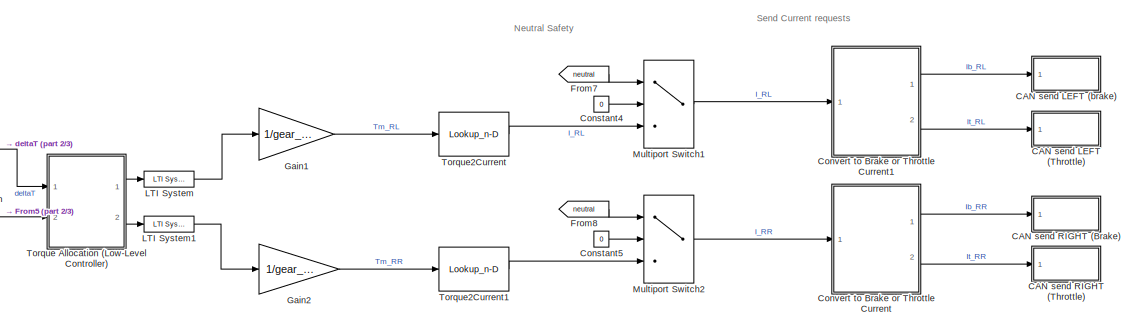
[diagram: root canvas - part 1/3, top right region]
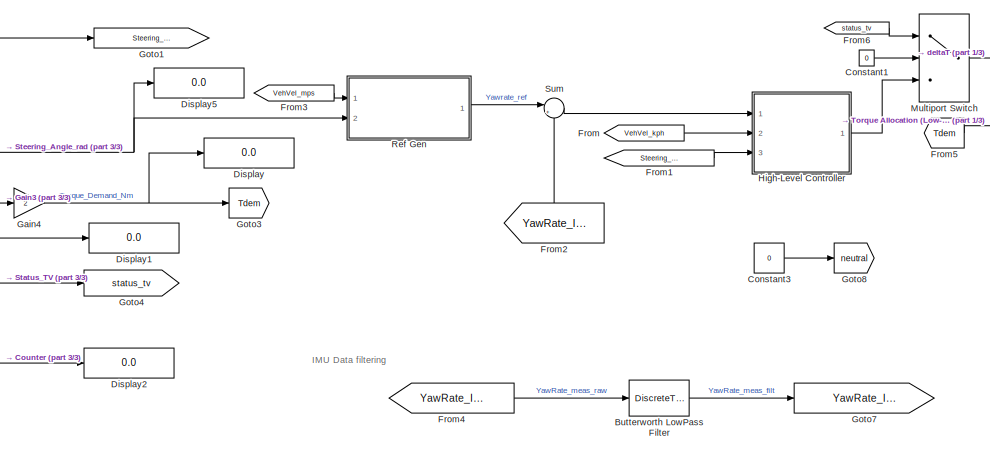
[diagram: root canvas - part 2/3, central region]
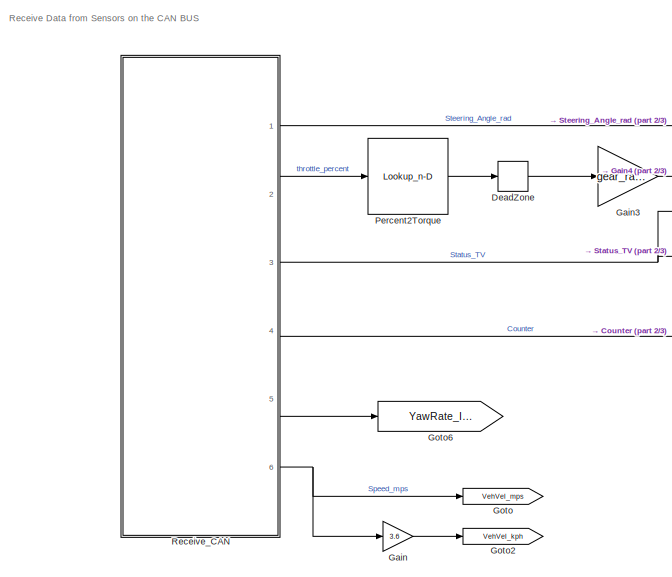
[diagram: root canvas - part 3/3, left side, full height]
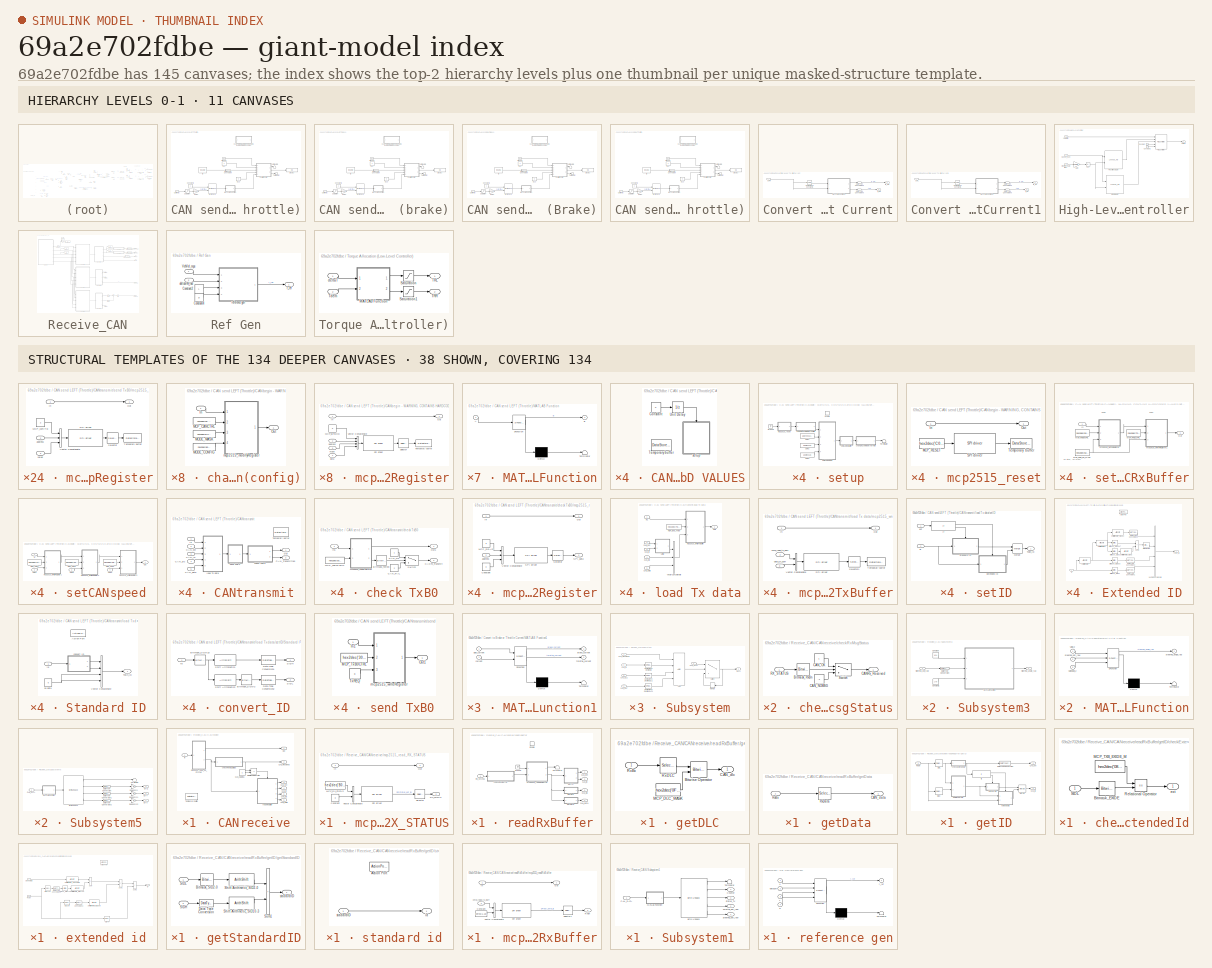
[diagram: thumbnail index - top-2 hierarchy levels (11 canvases) + 38 structural-template representatives of the remaining 134 canvases]
MODEL slx_69a2e702fdbe
KIND model
CONFIG AbsTol = auto
CONFIG EnableMultiTasking = on
CONFIG FixedStep = Ts
CONFIG MaxStep = auto
CONFIG MinStep = auto
CONFIG RelTol = 1e-3
CONFIG SampleTimeConstraint = Unconstrained
CONFIG SolverName = FixedStepAuto
CONFIG StartTime = 0.0
CONFIG StopTime = inf
BLOCK [DiscreteTransferFcn] Butterworth LowPass Filter
  Denominator = a
  InputPortMap = u0
  Numerator = b
  Ports = [1, 1]
BLOCK [SubSystem] CAN send LEFT (Throttle)
  Ports = [1]
  RequestExecContextInheritance = off
BLOCK [Reference] CAN send LEFT (Throttle)/Byte Pack  REF=etargetslib/Byte Pack
  Ports = [2, 1]
  SourceBlock = etargetslib/Byte Pack
  SourceProductBaseCode = ME
  SourceType = Byte pack
BLOCK [SubSystem] CAN send LEFT (Throttle)/CANbegin - WARNING, CONTAINS HARDCODED VALUES
  Commented = on
  Ports = []
  RTWSystemCode = Nonreusable function
  RequestExecContextInheritance = off
  TreatAsAtomicUnit = on
BLOCK [Constant] CAN send LEFT (Throttle)/CANbegin - WARNING, CONTAINS HARDCODED VALUES/Constant
  OutDataTypeStr = boolean
  SampleTime = -1
  Value = 0
BLOCK [DataStoreMemory] CAN send LEFT (Throttle)/CANbegin - WARNING, CONTAINS HARDCODED VALUES/Temporary buffer
  DataStoreName = temp_1byte
  OutDataTypeStr = uint8
  ReadBeforeWriteMsg = warning
  ShowAdditionalParam = off
  SignalType = real
  WriteAfterReadMsg = warning
  WriteAfterWriteMsg = warning
BLOCK [UnitDelay] CAN send LEFT (Throttle)/CANbegin - WARNING, CONTAINS HARDCODED VALUES/Unit Delay
  HasFrameUpgradeWarning = on
  InitialCondition = 1
  SampleTime = -1
BLOCK [SubSystem] CAN send LEFT (Throttle)/CANbegin - WARNING, CONTAINS HARDCODED VALUES/setup
  Ports = [0, 0, 1]
  RTWFileNameOpts = Use subsystem name
  RTWSystemCode = Nonreusable function
  RequestExecContextInheritance = off
  TreatAsAtomicUnit = on
BLOCK [Constant] CAN send LEFT (Throttle)/CANbegin - WARNING, CONTAINS HARDCODED VALUES/setup/CNF1
  OutDataTypeStr = uint8
  Value = address2A
BLOCK [Constant] CAN send LEFT (Throttle)/CANbegin - WARNING, CONTAINS HARDCODED VALUES/setup/CNF2
  OutDataTypeStr = uint8
  Value = address29
BLOCK [Constant] CAN send LEFT (Throttle)/CANbegin - WARNING, CONTAINS HARDCODED VALUES/setup/CNF3
  OutDataTypeStr = uint8
  Value = address28
BLOCK [EnablePort] CAN send LEFT (Throttle)/CANbegin - WARNING, CONTAINS HARDCODED VALUES/setup/Enable
  Ports = []
BLOCK [Ground] CAN send LEFT (Throttle)/CANbegin - WARNING, CONTAINS HARDCODED VALUES/setup/Ground
BLOCK [Terminator] CAN send LEFT (Throttle)/CANbegin - WARNING, CONTAINS HARDCODED VALUES/setup/Terminator
BLOCK [SubSystem] CAN send LEFT (Throttle)/CANbegin - WARNING, CONTAINS HARDCODED VALUES/setup/changeCANmode(config)
  Ports = [1, 1]
  RequestExecContextInheritance = off
  TreatAsAtomicUnit = on
BLOCK [Inport] CAN send LEFT (Throttle)/CANbegin - WARNING, CONTAINS HARDCODED VALUES/setup/changeCANmode(config)/In
BLOCK [Constant] CAN send LEFT (Throttle)/CANbegin - WARNING, CONTAINS HARDCODED VALUES/setup/changeCANmode(config)/MCP_CANCTRL
  OutDataTypeStr = uint8
  Value = hex2dec('0F')
BLOCK [Constant] CAN send LEFT (Throttle)/CANbegin - WARNING, CONTAINS HARDCODED VALUES/setup/changeCANmode(config)/MODE_CONFIG
  OutDataTypeStr = uint8
  Value = hex2dec('80')
BLOCK [Constant] CAN send LEFT (Throttle)/CANbegin - WARNING, CONTAINS HARDCODED VALUES/setup/changeCANmode(config)/MODE_MASK
  OutDataTypeStr = uint8
  Value = hex2dec('E0')
BLOCK [Outport] CAN send LEFT (Throttle)/CANbegin - WARNING, CONTAINS HARDCODED VALUES/setup/changeCANmode(config)/Out
  VectorParamsAs1DForOutWhenUnconnected = off
BLOCK [SubSystem] CAN send LEFT (Throttle)/CANbegin - WARNING, CONTAINS HARDCODED VALUES/setup/changeCANmode(config)/mcp2515_modifyRegister
  Ports = [4, 1]
  RequestExecContextInheritance = off
  TreatAsAtomicUnit = on
BLOCK [Inport] CAN send LEFT (Throttle)/CANbegin - WARNING, CONTAINS HARDCODED VALUES/setup/changeCANmode(config)/mcp2515_modifyRegister/In
BLOCK [Constant] CAN send LEFT (Throttle)/CANbegin - WARNING, CONTAINS HARDCODED VALUES/setup/changeCANmode(config)/mcp2515_modifyRegister/MCP_BITMOD
  OutDataTypeStr = uint8
  Value = 5
BLOCK [Outport] CAN send LEFT (Throttle)/CANbegin - WARNING, CONTAINS HARDCODED VALUES/setup/changeCANmode(config)/mcp2515_modifyRegister/Out
  VectorParamsAs1DForOutWhenUnconnected = off
BLOCK [Reference] CAN send LEFT (Throttle)/CANbegin - WARNING, CONTAINS HARDCODED VALUES/setup/changeCANmode(config)/mcp2515_modifyRegister/SPI driver  REF=mcp2515lib/CAN application/mcp2515 driver/SPI driver
  Ports = [1, 1]
  SourceBlock = mcp2515lib/CAN application/mcp2515 driver/SPI driver
  SourceProductName = CAN device driver for mcp2515
  SourceType = SubSystem
BLOCK [Selector] CAN send LEFT (Throttle)/CANbegin - WARNING, CONTAINS HARDCODED VALUES/setup/changeCANmode(config)/mcp2515_modifyRegister/Selector
  IndexMode = Zero-based
  IndexOptions = Index vector (dialog)
  Indices = 0
  InputPortWidth = 4
  OutputSizes = 1
  Ports = [1, 1]
BLOCK [DataStoreWrite] CAN send LEFT (Throttle)/CANbegin - WARNING, CONTAINS HARDCODED VALUES/setup/changeCANmode(config)/mcp2515_modifyRegister/Temporary buffer
  DataStoreName = temp_1byte
  IndexOptions = Index vector (dialog)
  Indices = 1
  OutputSizes = 1
  Ports = [1]
BLOCK [Concatenate] CAN send LEFT (Throttle)/CANbegin - WARNING, CONTAINS HARDCODED VALUES/setup/changeCANmode(config)/mcp2515_modifyRegister/Vector Concatenate
  NumInputs = 4
  Ports = [4, 1]
BLOCK [Inport] CAN send LEFT (Throttle)/CANbegin - WARNING, CONTAINS HARDCODED VALUES/setup/changeCANmode(config)/mcp2515_modifyRegister/address
  Port = 2
BLOCK [Inport] CAN send LEFT (Throttle)/CANbegin - WARNING, CONTAINS HARDCODED VALUES/setup/changeCANmode(config)/mcp2515_modifyRegister/data
  Port = 4
BLOCK [Inport] CAN send LEFT (Throttle)/CANbegin - WARNING, CONTAINS HARDCODED VALUES/setup/changeCANmode(config)/mcp2515_modifyRegister/mask
  Port = 3
BLOCK [SubSystem] CAN send LEFT (Throttle)/CANbegin - WARNING, CONTAINS HARDCODED VALUES/setup/changeCANmode(normal)
  Ports = [1, 1]
  RequestExecContextInheritance = off
  TreatAsAtomicUnit = on
BLOCK [Inport] CAN send LEFT (Throttle)/CANbegin - WARNING, CONTAINS HARDCODED VALUES/setup/changeCANmode(normal)/In
BLOCK [Constant] CAN send LEFT (Throttle)/CANbegin - WARNING, CONTAINS HARDCODED VALUES/setup/changeCANmode(normal)/MCP_CANCTRL
  OutDataTypeStr = uint8
  Value = hex2dec('0F')
BLOCK [Constant] CAN send LEFT (Throttle)/CANbegin - WARNING, CONTAINS HARDCODED VALUES/setup/changeCANmode(normal)/MODE_MASK
  OutDataTypeStr = uint8
  Value = hex2dec('E0')
BLOCK [Constant] CAN send LEFT (Throttle)/CANbegin - WARNING, CONTAINS HARDCODED VALUES/setup/changeCANmode(normal)/MODE_NORMAL
  OutDataTypeStr = uint8
  Value = 0
BLOCK [Outport] CAN send LEFT (Throttle)/CANbegin - WARNING, CONTAINS HARDCODED VALUES/setup/changeCANmode(normal)/Out
  VectorParamsAs1DForOutWhenUnconnected = off
BLOCK [SubSystem] CAN send LEFT (Throttle)/CANbegin - WARNING, CONTAINS HARDCODED VALUES/setup/changeCANmode(normal)/mcp2515_modifyRegister
  Ports = [4, 1]
  RequestExecContextInheritance = off
  TreatAsAtomicUnit = on
BLOCK [Inport] CAN send LEFT (Throttle)/CANbegin - WARNING, CONTAINS HARDCODED VALUES/setup/changeCANmode(normal)/mcp2515_modifyRegister/In
BLOCK [Constant] CAN send LEFT (Throttle)/CANbegin - WARNING, CONTAINS HARDCODED VALUES/setup/changeCANmode(normal)/mcp2515_modifyRegister/MCP_BITMOD
  OutDataTypeStr = uint8
  Value = 5
BLOCK [Outport] CAN send LEFT (Throttle)/CANbegin - WARNING, CONTAINS HARDCODED VALUES/setup/changeCANmode(normal)/mcp2515_modifyRegister/Out
  VectorParamsAs1DForOutWhenUnconnected = off
BLOCK [Reference] CAN send LEFT (Throttle)/CANbegin - WARNING, CONTAINS HARDCODED VALUES/setup/changeCANmode(normal)/mcp2515_modifyRegister/SPI driver  REF=mcp2515lib/CAN application/mcp2515 driver/SPI driver
  Ports = [1, 1]
  SourceBlock = mcp2515lib/CAN application/mcp2515 driver/SPI driver
  SourceProductName = CAN device driver for mcp2515
  SourceType = SubSystem
BLOCK [Selector] CAN send LEFT (Throttle)/CANbegin - WARNING, CONTAINS HARDCODED VALUES/setup/changeCANmode(normal)/mcp2515_modifyRegister/Selector
  IndexMode = Zero-based
  IndexOptions = Index vector (dialog)
  Indices = 0
  InputPortWidth = 4
  OutputSizes = 1
  Ports = [1, 1]
BLOCK [DataStoreWrite] CAN send LEFT (Throttle)/CANbegin - WARNING, CONTAINS HARDCODED VALUES/setup/changeCANmode(normal)/mcp2515_modifyRegister/Temporary buffer
  DataStoreName = temp_1byte
  IndexOptions = Index vector (dialog)
  Indices = 1
  OutputSizes = 1
  Ports = [1]
BLOCK [Concatenate] CAN send LEFT (Throttle)/CANbegin - WARNING, CONTAINS HARDCODED VALUES/setup/changeCANmode(normal)/mcp2515_modifyRegister/Vector Concatenate
  NumInputs = 4
  Ports = [4, 1]
BLOCK [Inport] CAN send LEFT (Throttle)/CANbegin - WARNING, CONTAINS HARDCODED VALUES/setup/changeCANmode(normal)/mcp2515_modifyRegister/address
  Port = 2
BLOCK [Inport] CAN send LEFT (Throttle)/CANbegin - WARNING, CONTAINS HARDCODED VALUES/setup/changeCANmode(normal)/mcp2515_modifyRegister/data
  Port = 4
BLOCK [Inport] CAN send LEFT (Throttle)/CANbegin - WARNING, CONTAINS HARDCODED VALUES/setup/changeCANmode(normal)/mcp2515_modifyRegister/mask
  Port = 3
BLOCK [SubSystem] CAN send LEFT (Throttle)/CANbegin - WARNING, CONTAINS HARDCODED VALUES/setup/mcp2515_reset
  Ports = [1, 1]
  RequestExecContextInheritance = off
  TreatAsAtomicUnit = on
BLOCK [Inport] CAN send LEFT (Throttle)/CANbegin - WARNING, CONTAINS HARDCODED VALUES/setup/mcp2515_reset/In
BLOCK [Constant] CAN send LEFT (Throttle)/CANbegin - WARNING, CONTAINS HARDCODED VALUES/setup/mcp2515_reset/MCP_RESET
  OutDataTypeStr = uint8
  Value = hex2dec('C0')
BLOCK [Outport] CAN send LEFT (Throttle)/CANbegin - WARNING, CONTAINS HARDCODED VALUES/setup/mcp2515_reset/Out
  VectorParamsAs1DForOutWhenUnconnected = off
BLOCK [Reference] CAN send LEFT (Throttle)/CANbegin - WARNING, CONTAINS HARDCODED VALUES/setup/mcp2515_reset/SPI driver  REF=mcp2515lib/CAN application/mcp2515 driver/SPI driver
  Ports = [1, 1]
  SourceBlock = mcp2515lib/CAN application/mcp2515 driver/SPI driver
  SourceProductName = CAN device driver for mcp2515
  SourceType = SubSystem
BLOCK [DataStoreWrite] CAN send LEFT (Throttle)/CANbegin - WARNING, CONTAINS HARDCODED VALUES/setup/mcp2515_reset/Temporary buffer
  DataStoreName = temp_1byte
  IndexOptions = Index vector (dialog)
  Indices = 1
  OutputSizes = 1
  Ports = [1]
BLOCK [SubSystem] CAN send LEFT (Throttle)/CANbegin - WARNING, CONTAINS HARDCODED VALUES/setup/setCANRxBuffer
  Ports = [1, 1]
  RequestExecContextInheritance = off
  TreatAsAtomicUnit = on
BLOCK [Inport] CAN send LEFT (Throttle)/CANbegin - WARNING, CONTAINS HARDCODED VALUES/setup/setCANRxBuffer/In
BLOCK [Constant] CAN send LEFT (Throttle)/CANbegin - WARNING, CONTAINS HARDCODED VALUES/setup/setCANRxBuffer/MCP_RXB0CTRL
  OutDataTypeStr = uint8
  Value = hex2dec('60')
BLOCK [Constant] CAN send LEFT (Throttle)/CANbegin - WARNING, CONTAINS HARDCODED VALUES/setup/setCANRxBuffer/MCP_RXB1CTRL
  OutDataTypeStr = uint8
  Value = hex2dec('70')
BLOCK [Constant] CAN send LEFT (Throttle)/CANbegin - WARNING, CONTAINS HARDCODED VALUES/setup/setCANRxBuffer/MCP_RXB_RX_MASK
  OutDataTypeStr = uint8
  Value = hex2dec('60')
BLOCK [Outport] CAN send LEFT (Throttle)/CANbegin - WARNING, CONTAINS HARDCODED VALUES/setup/setCANRxBuffer/Out
  VectorParamsAs1DForOutWhenUnconnected = off
BLOCK [SubSystem] CAN send LEFT (Throttle)/CANbegin - WARNING, CONTAINS HARDCODED VALUES/setup/setCANRxBuffer/mcp2515_writeRegister
  Ports = [3, 1]
  RequestExecContextInheritance = off
  TreatAsAtomicUnit = on
BLOCK [Inport] CAN send LEFT (Throttle)/CANbegin - WARNING, CONTAINS HARDCODED VALUES/setup/setCANRxBuffer/mcp2515_writeRegister/In
BLOCK [Constant] CAN send LEFT (Throttle)/CANbegin - WARNING, CONTAINS HARDCODED VALUES/setup/setCANRxBuffer/mcp2515_writeRegister/MCP_WRITE
  OutDataTypeStr = uint8
  Value = 2
BLOCK [Outport] CAN send LEFT (Throttle)/CANbegin - WARNING, CONTAINS HARDCODED VALUES/setup/setCANRxBuffer/mcp2515_writeRegister/Out
  VectorParamsAs1DForOutWhenUnconnected = off
BLOCK [Reference] CAN send LEFT (Throttle)/CANbegin - WARNING, CONTAINS HARDCODED VALUES/setup/setCANRxBuffer/mcp2515_writeRegister/SPI driver  REF=mcp2515lib/CAN application/mcp2515 driver/SPI driver
  Ports = [1, 1]
  SourceBlock = mcp2515lib/CAN application/mcp2515 driver/SPI driver
  SourceProductName = CAN device driver for mcp2515
  SourceType = SubSystem
BLOCK [Selector] CAN send LEFT (Throttle)/CANbegin - WARNING, CONTAINS HARDCODED VALUES/setup/setCANRxBuffer/mcp2515_writeRegister/Selector
  IndexMode = Zero-based
  IndexOptions = Index vector (dialog)
  Indices = 0
  InputPortWidth = 3
  OutputSizes = 1
  Ports = [1, 1]
BLOCK [DataStoreWrite] CAN send LEFT (Throttle)/CANbegin - WARNING, CONTAINS HARDCODED VALUES/setup/setCANRxBuffer/mcp2515_writeRegister/Temporary buffer
  DataStoreName = temp_1byte
  IndexOptions = Index vector (dialog)
  Indices = 1
  OutputSizes = 1
  Ports = [1]
BLOCK [Concatenate] CAN send LEFT (Throttle)/CANbegin - WARNING, CONTAINS HARDCODED VALUES/setup/setCANRxBuffer/mcp2515_writeRegister/Vector Concatenate
  NumInputs = 3
  Ports = [3, 1]
BLOCK [Inport] CAN send LEFT (Throttle)/CANbegin - WARNING, CONTAINS HARDCODED VALUES/setup/setCANRxBuffer/mcp2515_writeRegister/address
  OutDataTypeStr = uint8
  Port = 2
BLOCK [Inport] CAN send LEFT (Throttle)/CANbegin - WARNING, CONTAINS HARDCODED VALUES/setup/setCANRxBuffer/mcp2515_writeRegister/value
  OutDataTypeStr = uint8
  Port = 3
BLOCK [SubSystem] CAN send LEFT (Throttle)/CANbegin - WARNING, CONTAINS HARDCODED VALUES/setup/setCANRxBuffer/mcp2515_writeRegister1
  Ports = [3, 1]
  RequestExecContextInheritance = off
  TreatAsAtomicUnit = on
BLOCK [Inport] CAN send LEFT (Throttle)/CANbegin - WARNING, CONTAINS HARDCODED VALUES/setup/setCANRxBuffer/mcp2515_writeRegister1/In
BLOCK [Constant] CAN send LEFT (Throttle)/CANbegin - WARNING, CONTAINS HARDCODED VALUES/setup/setCANRxBuffer/mcp2515_writeRegister1/MCP_WRITE
  OutDataTypeStr = uint8
  Value = 2
BLOCK [Outport] CAN send LEFT (Throttle)/CANbegin - WARNING, CONTAINS HARDCODED VALUES/setup/setCANRxBuffer/mcp2515_writeRegister1/Out
  VectorParamsAs1DForOutWhenUnconnected = off
BLOCK [Reference] CAN send LEFT (Throttle)/CANbegin - WARNING, CONTAINS HARDCODED VALUES/setup/setCANRxBuffer/mcp2515_writeRegister1/SPI driver  REF=mcp2515lib/CAN application/mcp2515 driver/SPI driver
  Ports = [1, 1]
  SourceBlock = mcp2515lib/CAN application/mcp2515 driver/SPI driver
  SourceProductName = CAN device driver for mcp2515
  SourceType = SubSystem
BLOCK [Selector] CAN send LEFT (Throttle)/CANbegin - WARNING, CONTAINS HARDCODED VALUES/setup/setCANRxBuffer/mcp2515_writeRegister1/Selector
  IndexMode = Zero-based
  IndexOptions = Index vector (dialog)
  Indices = 0
  InputPortWidth = 3
  OutputSizes = 1
  Ports = [1, 1]
BLOCK [DataStoreWrite] CAN send LEFT (Throttle)/CANbegin - WARNING, CONTAINS HARDCODED VALUES/setup/setCANRxBuffer/mcp2515_writeRegister1/Temporary buffer
  DataStoreName = temp_1byte
  IndexOptions = Index vector (dialog)
  Indices = 1
  OutputSizes = 1
  Ports = [1]
BLOCK [Concatenate] CAN send LEFT (Throttle)/CANbegin - WARNING, CONTAINS HARDCODED VALUES/setup/setCANRxBuffer/mcp2515_writeRegister1/Vector Concatenate
  NumInputs = 3
  Ports = [3, 1]
BLOCK [Inport] CAN send LEFT (Throttle)/CANbegin - WARNING, CONTAINS HARDCODED VALUES/setup/setCANRxBuffer/mcp2515_writeRegister1/address
  OutDataTypeStr = uint8
  Port = 2
BLOCK [Inport] CAN send LEFT (Throttle)/CANbegin - WARNING, CONTAINS HARDCODED VALUES/setup/setCANRxBuffer/mcp2515_writeRegister1/value
  OutDataTypeStr = uint8
  Port = 3
BLOCK [SubSystem] CAN send LEFT (Throttle)/CANbegin - WARNING, CONTAINS HARDCODED VALUES/setup/setCANspeed
  Ports = [4, 1]
  RequestExecContextInheritance = off
  TreatAsAtomicUnit = on
BLOCK [Inport] CAN send LEFT (Throttle)/CANbegin - WARNING, CONTAINS HARDCODED VALUES/setup/setCANspeed/CNF1
  Port = 2
BLOCK [Inport] CAN send LEFT (Throttle)/CANbegin - WARNING, CONTAINS HARDCODED VALUES/setup/setCANspeed/CNF2
  Port = 3
BLOCK [Inport] CAN send LEFT (Throttle)/CANbegin - WARNING, CONTAINS HARDCODED VALUES/setup/setCANspeed/CNF3
  Port = 4
BLOCK [Inport] CAN send LEFT (Throttle)/CANbegin - WARNING, CONTAINS HARDCODED VALUES/setup/setCANspeed/In
BLOCK [Constant] CAN send LEFT (Throttle)/CANbegin - WARNING, CONTAINS HARDCODED VALUES/setup/setCANspeed/MCP_CNF1
  OutDataTypeStr = uint8
  Value = hex2dec('2A')
BLOCK [Constant] CAN send LEFT (Throttle)/CANbegin - WARNING, CONTAINS HARDCODED VALUES/setup/setCANspeed/MCP_CNF2
  OutDataTypeStr = uint8
  Value = hex2dec('29')
BLOCK [Constant] CAN send LEFT (Throttle)/CANbegin - WARNING, CONTAINS HARDCODED VALUES/setup/setCANspeed/MCP_CNF3
  OutDataTypeStr = uint8
  Value = hex2dec('28')
BLOCK [Outport] CAN send LEFT (Throttle)/CANbegin - WARNING, CONTAINS HARDCODED VALUES/setup/setCANspeed/Out
  VectorParamsAs1DForOutWhenUnconnected = off
BLOCK [SubSystem] CAN send LEFT (Throttle)/CANbegin - WARNING, CONTAINS HARDCODED VALUES/setup/setCANspeed/mcp2515_writeRegister1
  Ports = [3, 1]
  RequestExecContextInheritance = off
  TreatAsAtomicUnit = on
BLOCK [Inport] CAN send LEFT (Throttle)/CANbegin - WARNING, CONTAINS HARDCODED VALUES/setup/setCANspeed/mcp2515_writeRegister1/In
BLOCK [Constant] CAN send LEFT (Throttle)/CANbegin - WARNING, CONTAINS HARDCODED VALUES/setup/setCANspeed/mcp2515_writeRegister1/MCP_WRITE
  OutDataTypeStr = uint8
  Value = 2
BLOCK [Outport] CAN send LEFT (Throttle)/CANbegin - WARNING, CONTAINS HARDCODED VALUES/setup/setCANspeed/mcp2515_writeRegister1/Out
  VectorParamsAs1DForOutWhenUnconnected = off
BLOCK [Reference] CAN send LEFT (Throttle)/CANbegin - WARNING, CONTAINS HARDCODED VALUES/setup/setCANspeed/mcp2515_writeRegister1/SPI driver  REF=mcp2515lib/CAN application/mcp2515 driver/SPI driver
  Ports = [1, 1]
  SourceBlock = mcp2515lib/CAN application/mcp2515 driver/SPI driver
  SourceProductName = CAN device driver for mcp2515
  SourceType = SubSystem
BLOCK [Selector] CAN send LEFT (Throttle)/CANbegin - WARNING, CONTAINS HARDCODED VALUES/setup/setCANspeed/mcp2515_writeRegister1/Selector
  IndexMode = Zero-based
  IndexOptions = Index vector (dialog)
  Indices = 0
  InputPortWidth = 3
  OutputSizes = 1
  Ports = [1, 1]
BLOCK [DataStoreWrite] CAN send LEFT (Throttle)/CANbegin - WARNING, CONTAINS HARDCODED VALUES/setup/setCANspeed/mcp2515_writeRegister1/Temporary buffer
  DataStoreName = temp_1byte
  IndexOptions = Index vector (dialog)
  Indices = 1
  OutputSizes = 1
  Ports = [1]
BLOCK [Concatenate] CAN send LEFT (Throttle)/CANbegin - WARNING, CONTAINS HARDCODED VALUES/setup/setCANspeed/mcp2515_writeRegister1/Vector Concatenate
  NumInputs = 3
  Ports = [3, 1]
BLOCK [Inport] CAN send LEFT (Throttle)/CANbegin - WARNING, CONTAINS HARDCODED VALUES/setup/setCANspeed/mcp2515_writeRegister1/address
  OutDataTypeStr = uint8
  Port = 2
BLOCK [Inport] CAN send LEFT (Throttle)/CANbegin - WARNING, CONTAINS HARDCODED VALUES/setup/setCANspeed/mcp2515_writeRegister1/value
  OutDataTypeStr = uint8
  Port = 3
BLOCK [SubSystem] CAN send LEFT (Throttle)/CANbegin - WARNING, CONTAINS HARDCODED VALUES/setup/setCANspeed/mcp2515_writeRegister2
  Ports = [3, 1]
  RequestExecContextInheritance = off
  TreatAsAtomicUnit = on
BLOCK [Inport] CAN send LEFT (Throttle)/CANbegin - WARNING, CONTAINS HARDCODED VALUES/setup/setCANspeed/mcp2515_writeRegister2/In
BLOCK [Constant] CAN send LEFT (Throttle)/CANbegin - WARNING, CONTAINS HARDCODED VALUES/setup/setCANspeed/mcp2515_writeRegister2/MCP_WRITE
  OutDataTypeStr = uint8
  Value = 2
BLOCK [Outport] CAN send LEFT (Throttle)/CANbegin - WARNING, CONTAINS HARDCODED VALUES/setup/setCANspeed/mcp2515_writeRegister2/Out
  VectorParamsAs1DForOutWhenUnconnected = off
BLOCK [Reference] CAN send LEFT (Throttle)/CANbegin - WARNING, CONTAINS HARDCODED VALUES/setup/setCANspeed/mcp2515_writeRegister2/SPI driver  REF=mcp2515lib/CAN application/mcp2515 driver/SPI driver
  Ports = [1, 1]
  SourceBlock = mcp2515lib/CAN application/mcp2515 driver/SPI driver
  SourceProductName = CAN device driver for mcp2515
  SourceType = SubSystem
BLOCK [Selector] CAN send LEFT (Throttle)/CANbegin - WARNING, CONTAINS HARDCODED VALUES/setup/setCANspeed/mcp2515_writeRegister2/Selector
  IndexMode = Zero-based
  IndexOptions = Index vector (dialog)
  Indices = 0
  InputPortWidth = 3
  OutputSizes = 1
  Ports = [1, 1]
BLOCK [DataStoreWrite] CAN send LEFT (Throttle)/CANbegin - WARNING, CONTAINS HARDCODED VALUES/setup/setCANspeed/mcp2515_writeRegister2/Temporary buffer
  DataStoreName = temp_1byte
  IndexOptions = Index vector (dialog)
  Indices = 1
  OutputSizes = 1
  Ports = [1]
BLOCK [Concatenate] CAN send LEFT (Throttle)/CANbegin - WARNING, CONTAINS HARDCODED VALUES/setup/setCANspeed/mcp2515_writeRegister2/Vector Concatenate
  NumInputs = 3
  Ports = [3, 1]
BLOCK [Inport] CAN send LEFT (Throttle)/CANbegin - WARNING, CONTAINS HARDCODED VALUES/setup/setCANspeed/mcp2515_writeRegister2/address
  OutDataTypeStr = uint8
  Port = 2
BLOCK [Inport] CAN send LEFT (Throttle)/CANbegin - WARNING, CONTAINS HARDCODED VALUES/setup/setCANspeed/mcp2515_writeRegister2/value
  OutDataTypeStr = uint8
  Port = 3
BLOCK [SubSystem] CAN send LEFT (Throttle)/CANbegin - WARNING, CONTAINS HARDCODED VALUES/setup/setCANspeed/mcp2515_writeRegister3
  Ports = [3, 1]
  RequestExecContextInheritance = off
  TreatAsAtomicUnit = on
BLOCK [Inport] CAN send LEFT (Throttle)/CANbegin - WARNING, CONTAINS HARDCODED VALUES/setup/setCANspeed/mcp2515_writeRegister3/In
BLOCK [Constant] CAN send LEFT (Throttle)/CANbegin - WARNING, CONTAINS HARDCODED VALUES/setup/setCANspeed/mcp2515_writeRegister3/MCP_WRITE
  OutDataTypeStr = uint8
  Value = 2
BLOCK [Outport] CAN send LEFT (Throttle)/CANbegin - WARNING, CONTAINS HARDCODED VALUES/setup/setCANspeed/mcp2515_writeRegister3/Out
  VectorParamsAs1DForOutWhenUnconnected = off
BLOCK [Reference] CAN send LEFT (Throttle)/CANbegin - WARNING, CONTAINS HARDCODED VALUES/setup/setCANspeed/mcp2515_writeRegister3/SPI driver  REF=mcp2515lib/CAN application/mcp2515 driver/SPI driver
  Ports = [1, 1]
  SourceBlock = mcp2515lib/CAN application/mcp2515 driver/SPI driver
  SourceProductName = CAN device driver for mcp2515
  SourceType = SubSystem
BLOCK [Selector] CAN send LEFT (Throttle)/CANbegin - WARNING, CONTAINS HARDCODED VALUES/setup/setCANspeed/mcp2515_writeRegister3/Selector
  IndexMode = Zero-based
  IndexOptions = Index vector (dialog)
  Indices = 0
  InputPortWidth = 3
  OutputSizes = 1
  Ports = [1, 1]
BLOCK [DataStoreWrite] CAN send LEFT (Throttle)/CANbegin - WARNING, CONTAINS HARDCODED VALUES/setup/setCANspeed/mcp2515_writeRegister3/Temporary buffer
  DataStoreName = temp_1byte
  IndexOptions = Index vector (dialog)
  Indices = 1
  OutputSizes = 1
  Ports = [1]
BLOCK [Concatenate] CAN send LEFT (Throttle)/CANbegin - WARNING, CONTAINS HARDCODED VALUES/setup/setCANspeed/mcp2515_writeRegister3/Vector Concatenate
  NumInputs = 3
  Ports = [3, 1]
BLOCK [Inport] CAN send LEFT (Throttle)/CANbegin - WARNING, CONTAINS HARDCODED VALUES/setup/setCANspeed/mcp2515_writeRegister3/address
  OutDataTypeStr = uint8
  Port = 2
BLOCK [Inport] CAN send LEFT (Throttle)/CANbegin - WARNING, CONTAINS HARDCODED VALUES/setup/setCANspeed/mcp2515_writeRegister3/value
  OutDataTypeStr = uint8
  Port = 3
BLOCK [SubSystem] CAN send LEFT (Throttle)/CANtransmit
  Ports = [5, 2]
  RTWSystemCode = Reusable function
  RequestExecContextInheritance = off
  TreatAsAtomicUnit = on
BLOCK [Outport] CAN send LEFT (Throttle)/CANtransmit/CAN_Transmitted
  Port = 2
  VectorParamsAs1DForOutWhenUnconnected = off
BLOCK [Inport] CAN send LEFT (Throttle)/CANtransmit/CAN_data
  Port = 5
BLOCK [Inport] CAN send LEFT (Throttle)/CANtransmit/CAN_dlc
  Port = 4
BLOCK [Inport] CAN send LEFT (Throttle)/CANtransmit/CAN_ext
  Port = 2
BLOCK [Inport] CAN send LEFT (Throttle)/CANtransmit/CAN_id
  Port = 3
BLOCK [Inport] CAN send LEFT (Throttle)/CANtransmit/In
BLOCK [Outport] CAN send LEFT (Throttle)/CANtransmit/Out
  VectorParamsAs1DForOutWhenUnconnected = off
BLOCK [DataStoreMemory] CAN send LEFT (Throttle)/CANtransmit/Temporary buffer
  DataStoreName = temp_1byte
  OutDataTypeStr = uint8
  ReadBeforeWriteMsg = warning
  ShowAdditionalParam = off
  SignalType = real
  WriteAfterReadMsg = warning
  WriteAfterWriteMsg = warning
BLOCK [SubSystem] CAN send LEFT (Throttle)/CANtransmit/check TxB0
  Ports = [1, 2]
  RequestExecContextInheritance = off
  TreatAsAtomicUnit = on
BLOCK [Reference] CAN send LEFT (Throttle)/CANtransmit/check TxB0/Bitmask_TxReq  REF=simulink/Logic and Bit
Operations/Bitwise
Operator
  Ports = [1, 1]
  SourceBlock = simulink/Logic and Bit\nOperations/Bitwise\nOperator
  SourceProductBaseCode = SL
  SourceType = Bitwise Operator
BLOCK [Outport] CAN send LEFT (Throttle)/CANtransmit/check TxB0/CANTx_Transmit
  Port = 2
  VectorParamsAs1DForOutWhenUnconnected = off
BLOCK [Constant] CAN send LEFT (Throttle)/CANtransmit/check TxB0/CAN_FAIL
  OutDataTypeStr = int8
  Value = 2
BLOCK [Constant] CAN send LEFT (Throttle)/CANtransmit/check TxB0/CAN_OK
  OutDataTypeStr = int8
BLOCK [Inport] CAN send LEFT (Throttle)/CANtransmit/check TxB0/In1
BLOCK [Constant] CAN send LEFT (Throttle)/CANtransmit/check TxB0/MCP_TxB0CTRL1
  OutDataTypeStr = uint8
  Value = hex2dec('30')
BLOCK [Outport] CAN send LEFT (Throttle)/CANtransmit/check TxB0/Out1
  VectorParamsAs1DForOutWhenUnconnected = off
BLOCK [Switch] CAN send LEFT (Throttle)/CANtransmit/check TxB0/Switch
  Criteria = u2 > Threshold
  InputSameDT = off
  SaturateOnIntegerOverflow = off
BLOCK [SubSystem] CAN send LEFT (Throttle)/CANtransmit/check TxB0/mcp2515_readRegister
  Ports = [2, 2]
  RequestExecContextInheritance = off
  TreatAsAtomicUnit = on
BLOCK [Constant] CAN send LEFT (Throttle)/CANtransmit/check TxB0/mcp2515_readRegister/Constant
  OutDataTypeStr = uint8
  Value = 0
BLOCK [Inport] CAN send LEFT (Throttle)/CANtransmit/check TxB0/mcp2515_readRegister/In
BLOCK [Constant] CAN send LEFT (Throttle)/CANtransmit/check TxB0/mcp2515_readRegister/MCP_READ
  OutDataTypeStr = uint8
  Value = 3
BLOCK [Outport] CAN send LEFT (Throttle)/CANtransmit/check TxB0/mcp2515_readRegister/Out
  VectorParamsAs1DForOutWhenUnconnected = off
BLOCK [Reference] CAN send LEFT (Throttle)/CANtransmit/check TxB0/mcp2515_readRegister/SPI driver  REF=mcp2515lib/CAN application/mcp2515 driver/SPI driver
  Ports = [1, 1]
  SourceBlock = mcp2515lib/CAN application/mcp2515 driver/SPI driver
  SourceProductName = CAN device driver for mcp2515
  SourceType = SubSystem
BLOCK [Outport] CAN send LEFT (Throttle)/CANtransmit/check TxB0/mcp2515_readRegister/SPI_data
  Port = 2
  VectorParamsAs1DForOutWhenUnconnected = off
BLOCK [Selector] CAN send LEFT (Throttle)/CANtransmit/check TxB0/mcp2515_readRegister/Selector
  IndexMode = Zero-based
  IndexOptions = Index vector (dialog)
  Indices = 2
  InputPortWidth = 3
  OutputSizes = 1
  Ports = [1, 1]
BLOCK [Concatenate] CAN send LEFT (Throttle)/CANtransmit/check TxB0/mcp2515_readRegister/Vector Concatenate
  NumInputs = 3
  Ports = [3, 1]
BLOCK [Inport] CAN send LEFT (Throttle)/CANtransmit/check TxB0/mcp2515_readRegister/address
  OutDataTypeStr = uint8
  Port = 2
BLOCK [SubSystem] CAN send LEFT (Throttle)/CANtransmit/load Tx data
  Ports = [5, 1]
  RequestExecContextInheritance = off
  TreatAsAtomicUnit = on
BLOCK [Inport] CAN send LEFT (Throttle)/CANtransmit/load Tx data/CAN_data
  Port = 5
BLOCK [Inport] CAN send LEFT (Throttle)/CANtransmit/load Tx data/CAN_dlc
  Port = 4
BLOCK [Inport] CAN send LEFT (Throttle)/CANtransmit/load Tx data/CAN_ext
  Port = 2
BLOCK [Inport] CAN send LEFT (Throttle)/CANtransmit/load Tx data/CAN_id
  Port = 3
BLOCK [Inport] CAN send LEFT (Throttle)/CANtransmit/load Tx data/In1
BLOCK [Constant] CAN send LEFT (Throttle)/CANtransmit/load Tx data/MCP_load_TxB0
  OutDataTypeStr = uint8
  Value = hex2dec('40')
BLOCK [Outport] CAN send LEFT (Throttle)/CANtransmit/load Tx data/Out1
  VectorParamsAs1DForOutWhenUnconnected = off
BLOCK [Concatenate] CAN send LEFT (Throttle)/CANtransmit/load Tx data/Vector Concatenate
  NumInputs = 3
  Ports = [3, 1]
BLOCK [SubSystem] CAN send LEFT (Throttle)/CANtransmit/load Tx data/mcp2515_writeTxBuffer
  Ports = [3, 1]
  RequestExecContextInheritance = off
  TreatAsAtomicUnit = on
BLOCK [Inport] CAN send LEFT (Throttle)/CANtransmit/load Tx data/mcp2515_writeTxBuffer/In
BLOCK [Outport] CAN send LEFT (Throttle)/CANtransmit/load Tx data/mcp2515_writeTxBuffer/Out
  VectorParamsAs1DForOutWhenUnconnected = off
BLOCK [Reference] CAN send LEFT (Throttle)/CANtransmit/load Tx data/mcp2515_writeTxBuffer/SPI driver  REF=mcp2515lib/CAN application/mcp2515 driver/SPI driver
  Ports = [1, 1]
  SourceBlock = mcp2515lib/CAN application/mcp2515 driver/SPI driver
  SourceProductName = CAN device driver for mcp2515
  SourceType = SubSystem
BLOCK [Selector] CAN send LEFT (Throttle)/CANtransmit/load Tx data/mcp2515_writeTxBuffer/Selector1
  IndexMode = Zero-based
  IndexOptions = Index vector (dialog)
  Indices = 0
  InputPortWidth = 14
  OutputSizes = 1
  Ports = [1, 1]
BLOCK [DataStoreWrite] CAN send LEFT (Throttle)/CANtransmit/load Tx data/mcp2515_writeTxBuffer/Temporary buffer
  DataStoreName = temp_1byte
  IndexOptions = Index vector (dialog)
  Indices = 1
  OutputSizes = 1
  Ports = [1]
BLOCK [Concatenate] CAN send LEFT (Throttle)/CANtransmit/load Tx data/mcp2515_writeTxBuffer/Vector Concatenate
  Ports = [2, 1]
BLOCK [Inport] CAN send LEFT (Throttle)/CANtransmit/load Tx data/mcp2515_writeTxBuffer/cmd_load_tx_buff
  Port = 2
BLOCK [Inport] CAN send LEFT (Throttle)/CANtransmit/load Tx data/mcp2515_writeTxBuffer/data_tx_buff
  Port = 3
BLOCK [SubSystem] CAN send LEFT (Throttle)/CANtransmit/load Tx data/setID
  Ports = [2, 1]
  RTWSystemCode = Inline
  RequestExecContextInheritance = off
  TreatAsAtomicUnit = on
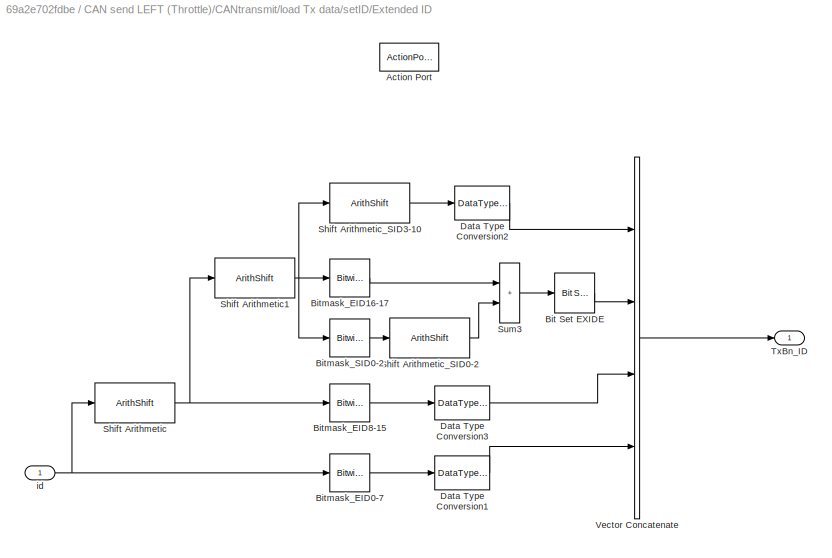
BLOCK [SubSystem] CAN send LEFT (Throttle)/CANtransmit/load Tx data/setID/Extended ID
  Ports = [1, 1, 0, 0, 0, 0, 0, 1]
  RequestExecContextInheritance = off
  TreatAsAtomicUnit = on
BLOCK [ActionPort] CAN send LEFT (Throttle)/CANtransmit/load Tx data/setID/Extended ID/Action Port
  ActionPortLabel = if(u1 > 0)
BLOCK [Reference] CAN send LEFT (Throttle)/CANtransmit/load Tx data/setID/Extended ID/Bit Set EXIDE  REF=simulink/Logic and Bit
Operations/Bit Set
  Ports = [1, 1]
  SourceBlock = simulink/Logic and Bit\nOperations/Bit Set
  SourceProductBaseCode = SL
  SourceType = Bit Set
BLOCK [Reference] CAN send LEFT (Throttle)/CANtransmit/load Tx data/setID/Extended ID/Bitmask_EID0-7  REF=simulink/Logic and Bit
Operations/Bitwise
Operator
  Ports = [1, 1]
  SourceBlock = simulink/Logic and Bit\nOperations/Bitwise\nOperator
  SourceProductBaseCode = SL
  SourceType = Bitwise Operator
BLOCK [Reference] CAN send LEFT (Throttle)/CANtransmit/load Tx data/setID/Extended ID/Bitmask_EID16-17  REF=simulink/Logic and Bit
Operations/Bitwise
Operator
  Ports = [1, 1]
  SourceBlock = simulink/Logic and Bit\nOperations/Bitwise\nOperator
  SourceProductBaseCode = SL
  SourceType = Bitwise Operator
BLOCK [Reference] CAN send LEFT (Throttle)/CANtransmit/load Tx data/setID/Extended ID/Bitmask_EID8-15  REF=simulink/Logic and Bit
Operations/Bitwise
Operator
  Ports = [1, 1]
  SourceBlock = simulink/Logic and Bit\nOperations/Bitwise\nOperator
  SourceProductBaseCode = SL
  SourceType = Bitwise Operator
BLOCK [Reference] CAN send LEFT (Throttle)/CANtransmit/load Tx data/setID/Extended ID/Bitmask_SID0-2  REF=simulink/Logic and Bit
Operations/Bitwise
Operator
  Ports = [1, 1]
  SourceBlock = simulink/Logic and Bit\nOperations/Bitwise\nOperator
  SourceProductBaseCode = SL
  SourceType = Bitwise Operator
BLOCK [DataTypeConversion] CAN send LEFT (Throttle)/CANtransmit/load Tx data/setID/Extended ID/Data Type Conversion1
  OutDataTypeStr = uint8
  RndMeth = Simplest
  SaturateOnIntegerOverflow = off
BLOCK [DataTypeConversion] CAN send LEFT (Throttle)/CANtransmit/load Tx data/setID/Extended ID/Data Type Conversion2
  OutDataTypeStr = uint8
  RndMeth = Simplest
  SaturateOnIntegerOverflow = off
BLOCK [DataTypeConversion] CAN send LEFT (Throttle)/CANtransmit/load Tx data/setID/Extended ID/Data Type Conversion3
  OutDataTypeStr = uint8
  RndMeth = Simplest
  SaturateOnIntegerOverflow = off
BLOCK [ArithShift] CAN send LEFT (Throttle)/CANtransmit/load Tx data/setID/Extended ID/Shift Arithmetic
  BitShiftDirection = Right
  BitShiftNumber = 8
  InputPortMap = u0
  Ports = [1, 1]
BLOCK [ArithShift] CAN send LEFT (Throttle)/CANtransmit/load Tx data/setID/Extended ID/Shift Arithmetic1
  BitShiftDirection = Right
  BitShiftNumber = 8
  InputPortMap = u0
  Ports = [1, 1]
BLOCK [ArithShift] CAN send LEFT (Throttle)/CANtransmit/load Tx data/setID/Extended ID/Shift Arithmetic_SID0-2
  BitShiftDirection = Left
  BitShiftNumber = 3
  InputPortMap = u0
  Ports = [1, 1]
BLOCK [ArithShift] CAN send LEFT (Throttle)/CANtransmit/load Tx data/setID/Extended ID/Shift Arithmetic_SID3-10
  BitShiftDirection = Right
  BitShiftNumber = 5
  InputPortMap = u0
  Ports = [1, 1]
BLOCK [Sum] CAN send LEFT (Throttle)/CANtransmit/load Tx data/setID/Extended ID/Sum3
  IconShape = rectangular
  OutDataTypeStr = uint8
  Ports = [2, 1]
BLOCK [Outport] CAN send LEFT (Throttle)/CANtransmit/load Tx data/setID/Extended ID/TxBn_ID
  VectorParamsAs1DForOutWhenUnconnected = off
BLOCK [Concatenate] CAN send LEFT (Throttle)/CANtransmit/load Tx data/setID/Extended ID/Vector Concatenate
  NumInputs = 4
  Ports = [4, 1]
BLOCK [Inport] CAN send LEFT (Throttle)/CANtransmit/load Tx data/setID/Extended ID/id
BLOCK [If] CAN send LEFT (Throttle)/CANtransmit/load Tx data/setID/If
  Ports = [1, 2]
BLOCK [Merge] CAN send LEFT (Throttle)/CANtransmit/load Tx data/setID/Merge
  Ports = [2, 1]
BLOCK [SubSystem] CAN send LEFT (Throttle)/CANtransmit/load Tx data/setID/Standard ID
  Ports = [1, 1, 0, 0, 0, 0, 0, 1]
  RequestExecContextInheritance = off
  TreatAsAtomicUnit = on
BLOCK [ActionPort] CAN send LEFT (Throttle)/CANtransmit/load Tx data/setID/Standard ID/Action Port
  ActionPortLabel = else
BLOCK [Outport] CAN send LEFT (Throttle)/CANtransmit/load Tx data/setID/Standard ID/TxBn_ID
  VectorParamsAs1DForOutWhenUnconnected = off
BLOCK [Concatenate] CAN send LEFT (Throttle)/CANtransmit/load Tx data/setID/Standard ID/Vector Concatenate
  NumInputs = 4
  Ports = [4, 1]
BLOCK [SubSystem] CAN send LEFT (Throttle)/CANtransmit/load Tx data/setID/Standard ID/convert_ID
  Ports = [1, 2]
  RequestExecContextInheritance = off
  TreatAsAtomicUnit = on
BLOCK [Reference] CAN send LEFT (Throttle)/CANtransmit/load Tx data/setID/Standard ID/convert_ID/Bitmask_SID0-10  REF=simulink/Logic and Bit
Operations/Bitwise
Operator
  Ports = [1, 1]
  SourceBlock = simulink/Logic and Bit\nOperations/Bitwise\nOperator
  SourceProductBaseCode = SL
  SourceType = Bitwise Operator
BLOCK [Reference] CAN send LEFT (Throttle)/CANtransmit/load Tx data/setID/Standard ID/convert_ID/Bitmask_SID0-2  REF=simulink/Logic and Bit
Operations/Bitwise
Operator
  Ports = [1, 1]
  SourceBlock = simulink/Logic and Bit\nOperations/Bitwise\nOperator
  SourceProductBaseCode = SL
  SourceType = Bitwise Operator
BLOCK [DataTypeConversion] CAN send LEFT (Throttle)/CANtransmit/load Tx data/setID/Standard ID/convert_ID/Data Type Conversion1
  OutDataTypeStr = uint8
  RndMeth = Simplest
  SaturateOnIntegerOverflow = off
BLOCK [DataTypeConversion] CAN send LEFT (Throttle)/CANtransmit/load Tx data/setID/Standard ID/convert_ID/Data Type Conversion2
  OutDataTypeStr = uint8
  RndMeth = Simplest
  SaturateOnIntegerOverflow = off
BLOCK [Outport] CAN send LEFT (Throttle)/CANtransmit/load Tx data/setID/Standard ID/convert_ID/SIDH
  VectorParamsAs1DForOutWhenUnconnected = off
BLOCK [Outport] CAN send LEFT (Throttle)/CANtransmit/load Tx data/setID/Standard ID/convert_ID/SIDL
  Port = 2
  VectorParamsAs1DForOutWhenUnconnected = off
BLOCK [ArithShift] CAN send LEFT (Throttle)/CANtransmit/load Tx data/setID/Standard ID/convert_ID/Shift Arithmetic1
  BitShiftDirection = Right
  BitShiftNumber = 3
  InputPortMap = u0
  Ports = [1, 1]
BLOCK [ArithShift] CAN send LEFT (Throttle)/CANtransmit/load Tx data/setID/Standard ID/convert_ID/Shift Arithmetic2
  BitShiftDirection = Left
  BitShiftNumber = 5
  InputPortMap = u0
  Ports = [1, 1]
BLOCK [Inport] CAN send LEFT (Throttle)/CANtransmit/load Tx data/setID/Standard ID/convert_ID/id
BLOCK [Inport] CAN send LEFT (Throttle)/CANtransmit/load Tx data/setID/Standard ID/id
BLOCK [Constant] CAN send LEFT (Throttle)/CANtransmit/load Tx data/setID/Standard ID/no data
  OutDataTypeStr = uint8
  Value = 0
BLOCK [Outport] CAN send LEFT (Throttle)/CANtransmit/load Tx data/setID/TxBn_ID
  VectorParamsAs1DForOutWhenUnconnected = off
BLOCK [Inport] CAN send LEFT (Throttle)/CANtransmit/load Tx data/setID/ext
BLOCK [Inport] CAN send LEFT (Throttle)/CANtransmit/load Tx data/setID/id
  Port = 2
BLOCK [SubSystem] CAN send LEFT (Throttle)/CANtransmit/send TxB0
  Ports = [1, 1]
  RequestExecContextInheritance = off
  TreatAsAtomicUnit = on
BLOCK [Inport] CAN send LEFT (Throttle)/CANtransmit/send TxB0/In1
BLOCK [Constant] CAN send LEFT (Throttle)/CANtransmit/send TxB0/MCP_TxB0CTRL
  OutDataTypeStr = uint8
  Value = hex2dec('30')
BLOCK [Outport] CAN send LEFT (Throttle)/CANtransmit/send TxB0/Out1
  VectorParamsAs1DForOutWhenUnconnected = off
BLOCK [Constant] CAN send LEFT (Throttle)/CANtransmit/send TxB0/TxREQ
  OutDataTypeStr = uint8
  Value = 8
BLOCK [SubSystem] CAN send LEFT (Throttle)/CANtransmit/send TxB0/mcp2515_writeRegister
  Ports = [3, 1]
  RequestExecContextInheritance = off
  TreatAsAtomicUnit = on
BLOCK [Inport] CAN send LEFT (Throttle)/CANtransmit/send TxB0/mcp2515_writeRegister/In
BLOCK [Constant] CAN send LEFT (Throttle)/CANtransmit/send TxB0/mcp2515_writeRegister/MCP_WRITE
  OutDataTypeStr = uint8
  Value = 2
BLOCK [Outport] CAN send LEFT (Throttle)/CANtransmit/send TxB0/mcp2515_writeRegister/Out
  VectorParamsAs1DForOutWhenUnconnected = off
BLOCK [Reference] CAN send LEFT (Throttle)/CANtransmit/send TxB0/mcp2515_writeRegister/SPI driver  REF=mcp2515lib/CAN application/mcp2515 driver/SPI driver
  Ports = [1, 1]
  SourceBlock = mcp2515lib/CAN application/mcp2515 driver/SPI driver
  SourceProductName = CAN device driver for mcp2515
  SourceType = SubSystem
BLOCK [Selector] CAN send LEFT (Throttle)/CANtransmit/send TxB0/mcp2515_writeRegister/Selector
  IndexMode = Zero-based
  IndexOptions = Index vector (dialog)
  Indices = 0
  InputPortWidth = 3
  OutputSizes = 1
  Ports = [1, 1]
BLOCK [DataStoreWrite] CAN send LEFT (Throttle)/CANtransmit/send TxB0/mcp2515_writeRegister/Temporary buffer
  DataStoreName = temp_1byte
  IndexOptions = Index vector (dialog)
  Indices = 1
  OutputSizes = 1
  Ports = [1]
BLOCK [Concatenate] CAN send LEFT (Throttle)/CANtransmit/send TxB0/mcp2515_writeRegister/Vector Concatenate
  NumInputs = 3
  Ports = [3, 1]
BLOCK [Inport] CAN send LEFT (Throttle)/CANtransmit/send TxB0/mcp2515_writeRegister/address
  OutDataTypeStr = uint8
  Port = 2
BLOCK [Inport] CAN send LEFT (Throttle)/CANtransmit/send TxB0/mcp2515_writeRegister/value
  OutDataTypeStr = uint8
  Port = 3
BLOCK [Constant] CAN send LEFT (Throttle)/Constant1
  OutDataTypeStr = int32
  Value = 0
BLOCK [Inport] CAN send LEFT (Throttle)/Current (A)
  OutDataTypeStr = int32
  PortDimensions = 1
BLOCK [Constant] CAN send LEFT (Throttle)/DLC
  OutDataTypeStr = uint8
  Value = 4
BLOCK [DataTypeConversion] CAN send LEFT (Throttle)/Data Type Conversion
  OutDataTypeStr = uint32
  RndMeth = Floor
  SaturateOnIntegerOverflow = off
BLOCK [Display] CAN send LEFT (Throttle)/Display
  Decimation = 1
  Ports = [1]
BLOCK [Gain] CAN send LEFT (Throttle)/Gain2
  Gain = 1000
  OutDataTypeStr = int32
BLOCK [Ground] CAN send LEFT (Throttle)/Ground
BLOCK [Constant] CAN send LEFT (Throttle)/ID
  OutDataTypeStr = uint32
  Value = 0x108
BLOCK [SubSystem] CAN send LEFT (Throttle)/MATLAB Function
  ErrorFcn = Stateflow.Translate.translate
  PermitHierarchicalResolution = ExplicitOnly
  Ports = [1, 1]
  RequestExecContextInheritance = off
  SFBlockType = MATLAB Function
  TreatAsAtomicUnit = on
BLOCK [Demux] CAN send LEFT (Throttle)/MATLAB Function/ Demux 
  Outputs = 1
  Ports = [1, 1]
BLOCK [S-Function] CAN send LEFT (Throttle)/MATLAB Function/ SFunction 
  EnableBusSupport = on
  FunctionName = sf_sfun
  PortCounts = [1 2]
  Ports = [1, 2]
  SFcnIsStateOwnerBlock = off
  SFunctionDeploymentMode = off
  Tag = Stateflow S-Function 11
BLOCK [Terminator] CAN send LEFT (Throttle)/MATLAB Function/ Terminator 
BLOCK [Inport] CAN send LEFT (Throttle)/MATLAB Function/A
BLOCK [Outport] CAN send LEFT (Throttle)/MATLAB Function/B
BLOCK [Saturate] CAN send LEFT (Throttle)/Saturation
  LowerLimit = 0
  OutDataTypeStr = int32
  UpperLimit = 180
BLOCK [Terminator] CAN send LEFT (Throttle)/Terminator
BLOCK [Terminator] CAN send LEFT (Throttle)/Terminator1
BLOCK [Constant] CAN send LEFT (Throttle)/ext
  OutDataTypeStr = uint8
BLOCK [SubSystem] CAN send LEFT (brake)
  Commented = on
  Ports = [1]
  RequestExecContextInheritance = off
BLOCK [Reference] CAN send LEFT (brake)/Byte Pack  REF=etargetslib/Byte Pack
  Ports = [2, 1]
  SourceBlock = etargetslib/Byte Pack
  SourceProductBaseCode = ME
  SourceType = Byte pack
BLOCK [SubSystem] CAN send LEFT (brake)/CANbegin - WARNING, CONTAINS HARDCODED VALUES
  Commented = on
  Ports = []
  RTWSystemCode = Nonreusable function
  RequestExecContextInheritance = off
  TreatAsAtomicUnit = on
BLOCK [Constant] CAN send LEFT (brake)/CANbegin - WARNING, CONTAINS HARDCODED VALUES/Constant
  OutDataTypeStr = boolean
  SampleTime = -1
  Value = 0
BLOCK [DataStoreMemory] CAN send LEFT (brake)/CANbegin - WARNING, CONTAINS HARDCODED VALUES/Temporary buffer
  DataStoreName = temp_1byte
  OutDataTypeStr = uint8
  ReadBeforeWriteMsg = warning
  ShowAdditionalParam = off
  SignalType = real
  WriteAfterReadMsg = warning
  WriteAfterWriteMsg = warning
BLOCK [UnitDelay] CAN send LEFT (brake)/CANbegin - WARNING, CONTAINS HARDCODED VALUES/Unit Delay
  HasFrameUpgradeWarning = on
  InitialCondition = 1
  SampleTime = -1
BLOCK [SubSystem] CAN send LEFT (brake)/CANbegin - WARNING, CONTAINS HARDCODED VALUES/setup
  Ports = [0, 0, 1]
  RTWFileNameOpts = Use subsystem name
  RTWSystemCode = Nonreusable function
  RequestExecContextInheritance = off
  TreatAsAtomicUnit = on
BLOCK [Constant] CAN send LEFT (brake)/CANbegin - WARNING, CONTAINS HARDCODED VALUES/setup/CNF1
  OutDataTypeStr = uint8
  Value = address2A
BLOCK [Constant] CAN send LEFT (brake)/CANbegin - WARNING, CONTAINS HARDCODED VALUES/setup/CNF2
  OutDataTypeStr = uint8
  Value = address29
BLOCK [Constant] CAN send LEFT (brake)/CANbegin - WARNING, CONTAINS HARDCODED VALUES/setup/CNF3
  OutDataTypeStr = uint8
  Value = address28
BLOCK [EnablePort] CAN send LEFT (brake)/CANbegin - WARNING, CONTAINS HARDCODED VALUES/setup/Enable
  Ports = []
BLOCK [Ground] CAN send LEFT (brake)/CANbegin - WARNING, CONTAINS HARDCODED VALUES/setup/Ground
BLOCK [Terminator] CAN send LEFT (brake)/CANbegin - WARNING, CONTAINS HARDCODED VALUES/setup/Terminator
BLOCK [SubSystem] CAN send LEFT (brake)/CANbegin - WARNING, CONTAINS HARDCODED VALUES/setup/changeCANmode(config)
  Ports = [1, 1]
  RequestExecContextInheritance = off
  TreatAsAtomicUnit = on
BLOCK [Inport] CAN send LEFT (brake)/CANbegin - WARNING, CONTAINS HARDCODED VALUES/setup/changeCANmode(config)/In
BLOCK [Constant] CAN send LEFT (brake)/CANbegin - WARNING, CONTAINS HARDCODED VALUES/setup/changeCANmode(config)/MCP_CANCTRL
  OutDataTypeStr = uint8
  Value = hex2dec('0F')
BLOCK [Constant] CAN send LEFT (brake)/CANbegin - WARNING, CONTAINS HARDCODED VALUES/setup/changeCANmode(config)/MODE_CONFIG
  OutDataTypeStr = uint8
  Value = hex2dec('80')
BLOCK [Constant] CAN send LEFT (brake)/CANbegin - WARNING, CONTAINS HARDCODED VALUES/setup/changeCANmode(config)/MODE_MASK
  OutDataTypeStr = uint8
  Value = hex2dec('E0')
BLOCK [Outport] CAN send LEFT (brake)/CANbegin - WARNING, CONTAINS HARDCODED VALUES/setup/changeCANmode(config)/Out
  VectorParamsAs1DForOutWhenUnconnected = off
BLOCK [SubSystem] CAN send LEFT (brake)/CANbegin - WARNING, CONTAINS HARDCODED VALUES/setup/changeCANmode(config)/mcp2515_modifyRegister
  Ports = [4, 1]
  RequestExecContextInheritance = off
  TreatAsAtomicUnit = on
BLOCK [Inport] CAN send LEFT (brake)/CANbegin - WARNING, CONTAINS HARDCODED VALUES/setup/changeCANmode(config)/mcp2515_modifyRegister/In
BLOCK [Constant] CAN send LEFT (brake)/CANbegin - WARNING, CONTAINS HARDCODED VALUES/setup/changeCANmode(config)/mcp2515_modifyRegister/MCP_BITMOD
  OutDataTypeStr = uint8
  Value = 5
BLOCK [Outport] CAN send LEFT (brake)/CANbegin - WARNING, CONTAINS HARDCODED VALUES/setup/changeCANmode(config)/mcp2515_modifyRegister/Out
  VectorParamsAs1DForOutWhenUnconnected = off
BLOCK [Reference] CAN send LEFT (brake)/CANbegin - WARNING, CONTAINS HARDCODED VALUES/setup/changeCANmode(config)/mcp2515_modifyRegister/SPI driver  REF=mcp2515lib/CAN application/mcp2515 driver/SPI driver
  Ports = [1, 1]
  SourceBlock = mcp2515lib/CAN application/mcp2515 driver/SPI driver
  SourceProductName = CAN device driver for mcp2515
  SourceType = SubSystem
BLOCK [Selector] CAN send LEFT (brake)/CANbegin - WARNING, CONTAINS HARDCODED VALUES/setup/changeCANmode(config)/mcp2515_modifyRegister/Selector
  IndexMode = Zero-based
  IndexOptions = Index vector (dialog)
  Indices = 0
  InputPortWidth = 4
  OutputSizes = 1
  Ports = [1, 1]
BLOCK [DataStoreWrite] CAN send LEFT (brake)/CANbegin - WARNING, CONTAINS HARDCODED VALUES/setup/changeCANmode(config)/mcp2515_modifyRegister/Temporary buffer
  DataStoreName = temp_1byte
  IndexOptions = Index vector (dialog)
  Indices = 1
  OutputSizes = 1
  Ports = [1]
BLOCK [Concatenate] CAN send LEFT (brake)/CANbegin - WARNING, CONTAINS HARDCODED VALUES/setup/changeCANmode(config)/mcp2515_modifyRegister/Vector Concatenate
  NumInputs = 4
  Ports = [4, 1]
BLOCK [Inport] CAN send LEFT (brake)/CANbegin - WARNING, CONTAINS HARDCODED VALUES/setup/changeCANmode(config)/mcp2515_modifyRegister/address
  Port = 2
BLOCK [Inport] CAN send LEFT (brake)/CANbegin - WARNING, CONTAINS HARDCODED VALUES/setup/changeCANmode(config)/mcp2515_modifyRegister/data
  Port = 4
BLOCK [Inport] CAN send LEFT (brake)/CANbegin - WARNING, CONTAINS HARDCODED VALUES/setup/changeCANmode(config)/mcp2515_modifyRegister/mask
  Port = 3
BLOCK [SubSystem] CAN send LEFT (brake)/CANbegin - WARNING, CONTAINS HARDCODED VALUES/setup/changeCANmode(normal)
  Ports = [1, 1]
  RequestExecContextInheritance = off
  TreatAsAtomicUnit = on
BLOCK [Inport] CAN send LEFT (brake)/CANbegin - WARNING, CONTAINS HARDCODED VALUES/setup/changeCANmode(normal)/In
BLOCK [Constant] CAN send LEFT (brake)/CANbegin - WARNING, CONTAINS HARDCODED VALUES/setup/changeCANmode(normal)/MCP_CANCTRL
  OutDataTypeStr = uint8
  Value = hex2dec('0F')
BLOCK [Constant] CAN send LEFT (brake)/CANbegin - WARNING, CONTAINS HARDCODED VALUES/setup/changeCANmode(normal)/MODE_MASK
  OutDataTypeStr = uint8
  Value = hex2dec('E0')
BLOCK [Constant] CAN send LEFT (brake)/CANbegin - WARNING, CONTAINS HARDCODED VALUES/setup/changeCANmode(normal)/MODE_NORMAL
  OutDataTypeStr = uint8
  Value = 0
BLOCK [Outport] CAN send LEFT (brake)/CANbegin - WARNING, CONTAINS HARDCODED VALUES/setup/changeCANmode(normal)/Out
  VectorParamsAs1DForOutWhenUnconnected = off
BLOCK [SubSystem] CAN send LEFT (brake)/CANbegin - WARNING, CONTAINS HARDCODED VALUES/setup/changeCANmode(normal)/mcp2515_modifyRegister
  Ports = [4, 1]
  RequestExecContextInheritance = off
  TreatAsAtomicUnit = on
BLOCK [Inport] CAN send LEFT (brake)/CANbegin - WARNING, CONTAINS HARDCODED VALUES/setup/changeCANmode(normal)/mcp2515_modifyRegister/In
BLOCK [Constant] CAN send LEFT (brake)/CANbegin - WARNING, CONTAINS HARDCODED VALUES/setup/changeCANmode(normal)/mcp2515_modifyRegister/MCP_BITMOD
  OutDataTypeStr = uint8
  Value = 5
BLOCK [Outport] CAN send LEFT (brake)/CANbegin - WARNING, CONTAINS HARDCODED VALUES/setup/changeCANmode(normal)/mcp2515_modifyRegister/Out
  VectorParamsAs1DForOutWhenUnconnected = off
BLOCK [Reference] CAN send LEFT (brake)/CANbegin - WARNING, CONTAINS HARDCODED VALUES/setup/changeCANmode(normal)/mcp2515_modifyRegister/SPI driver  REF=mcp2515lib/CAN application/mcp2515 driver/SPI driver
  Ports = [1, 1]
  SourceBlock = mcp2515lib/CAN application/mcp2515 driver/SPI driver
  SourceProductName = CAN device driver for mcp2515
  SourceType = SubSystem
BLOCK [Selector] CAN send LEFT (brake)/CANbegin - WARNING, CONTAINS HARDCODED VALUES/setup/changeCANmode(normal)/mcp2515_modifyRegister/Selector
  IndexMode = Zero-based
  IndexOptions = Index vector (dialog)
  Indices = 0
  InputPortWidth = 4
  OutputSizes = 1
  Ports = [1, 1]
BLOCK [DataStoreWrite] CAN send LEFT (brake)/CANbegin - WARNING, CONTAINS HARDCODED VALUES/setup/changeCANmode(normal)/mcp2515_modifyRegister/Temporary buffer
  DataStoreName = temp_1byte
  IndexOptions = Index vector (dialog)
  Indices = 1
  OutputSizes = 1
  Ports = [1]
BLOCK [Concatenate] CAN send LEFT (brake)/CANbegin - WARNING, CONTAINS HARDCODED VALUES/setup/changeCANmode(normal)/mcp2515_modifyRegister/Vector Concatenate
  NumInputs = 4
  Ports = [4, 1]
BLOCK [Inport] CAN send LEFT (brake)/CANbegin - WARNING, CONTAINS HARDCODED VALUES/setup/changeCANmode(normal)/mcp2515_modifyRegister/address
  Port = 2
BLOCK [Inport] CAN send LEFT (brake)/CANbegin - WARNING, CONTAINS HARDCODED VALUES/setup/changeCANmode(normal)/mcp2515_modifyRegister/data
  Port = 4
BLOCK [Inport] CAN send LEFT (brake)/CANbegin - WARNING, CONTAINS HARDCODED VALUES/setup/changeCANmode(normal)/mcp2515_modifyRegister/mask
  Port = 3
BLOCK [SubSystem] CAN send LEFT (brake)/CANbegin - WARNING, CONTAINS HARDCODED VALUES/setup/mcp2515_reset
  Ports = [1, 1]
  RequestExecContextInheritance = off
  TreatAsAtomicUnit = on
BLOCK [Inport] CAN send LEFT (brake)/CANbegin - WARNING, CONTAINS HARDCODED VALUES/setup/mcp2515_reset/In
BLOCK [Constant] CAN send LEFT (brake)/CANbegin - WARNING, CONTAINS HARDCODED VALUES/setup/mcp2515_reset/MCP_RESET
  OutDataTypeStr = uint8
  Value = hex2dec('C0')
BLOCK [Outport] CAN send LEFT (brake)/CANbegin - WARNING, CONTAINS HARDCODED VALUES/setup/mcp2515_reset/Out
  VectorParamsAs1DForOutWhenUnconnected = off
BLOCK [Reference] CAN send LEFT (brake)/CANbegin - WARNING, CONTAINS HARDCODED VALUES/setup/mcp2515_reset/SPI driver  REF=mcp2515lib/CAN application/mcp2515 driver/SPI driver
  Ports = [1, 1]
  SourceBlock = mcp2515lib/CAN application/mcp2515 driver/SPI driver
  SourceProductName = CAN device driver for mcp2515
  SourceType = SubSystem
BLOCK [DataStoreWrite] CAN send LEFT (brake)/CANbegin - WARNING, CONTAINS HARDCODED VALUES/setup/mcp2515_reset/Temporary buffer
  DataStoreName = temp_1byte
  IndexOptions = Index vector (dialog)
  Indices = 1
  OutputSizes = 1
  Ports = [1]
BLOCK [SubSystem] CAN send LEFT (brake)/CANbegin - WARNING, CONTAINS HARDCODED VALUES/setup/setCANRxBuffer
  Ports = [1, 1]
  RequestExecContextInheritance = off
  TreatAsAtomicUnit = on
BLOCK [Inport] CAN send LEFT (brake)/CANbegin - WARNING, CONTAINS HARDCODED VALUES/setup/setCANRxBuffer/In
BLOCK [Constant] CAN send LEFT (brake)/CANbegin - WARNING, CONTAINS HARDCODED VALUES/setup/setCANRxBuffer/MCP_RXB0CTRL
  OutDataTypeStr = uint8
  Value = hex2dec('60')
BLOCK [Constant] CAN send LEFT (brake)/CANbegin - WARNING, CONTAINS HARDCODED VALUES/setup/setCANRxBuffer/MCP_RXB1CTRL
  OutDataTypeStr = uint8
  Value = hex2dec('70')
BLOCK [Constant] CAN send LEFT (brake)/CANbegin - WARNING, CONTAINS HARDCODED VALUES/setup/setCANRxBuffer/MCP_RXB_RX_MASK
  OutDataTypeStr = uint8
  Value = hex2dec('60')
BLOCK [Outport] CAN send LEFT (brake)/CANbegin - WARNING, CONTAINS HARDCODED VALUES/setup/setCANRxBuffer/Out
  VectorParamsAs1DForOutWhenUnconnected = off
BLOCK [SubSystem] CAN send LEFT (brake)/CANbegin - WARNING, CONTAINS HARDCODED VALUES/setup/setCANRxBuffer/mcp2515_writeRegister
  Ports = [3, 1]
  RequestExecContextInheritance = off
  TreatAsAtomicUnit = on
BLOCK [Inport] CAN send LEFT (brake)/CANbegin - WARNING, CONTAINS HARDCODED VALUES/setup/setCANRxBuffer/mcp2515_writeRegister/In
BLOCK [Constant] CAN send LEFT (brake)/CANbegin - WARNING, CONTAINS HARDCODED VALUES/setup/setCANRxBuffer/mcp2515_writeRegister/MCP_WRITE
  OutDataTypeStr = uint8
  Value = 2
BLOCK [Outport] CAN send LEFT (brake)/CANbegin - WARNING, CONTAINS HARDCODED VALUES/setup/setCANRxBuffer/mcp2515_writeRegister/Out
  VectorParamsAs1DForOutWhenUnconnected = off
BLOCK [Reference] CAN send LEFT (brake)/CANbegin - WARNING, CONTAINS HARDCODED VALUES/setup/setCANRxBuffer/mcp2515_writeRegister/SPI driver  REF=mcp2515lib/CAN application/mcp2515 driver/SPI driver
  Ports = [1, 1]
  SourceBlock = mcp2515lib/CAN application/mcp2515 driver/SPI driver
  SourceProductName = CAN device driver for mcp2515
  SourceType = SubSystem
BLOCK [Selector] CAN send LEFT (brake)/CANbegin - WARNING, CONTAINS HARDCODED VALUES/setup/setCANRxBuffer/mcp2515_writeRegister/Selector
  IndexMode = Zero-based
  IndexOptions = Index vector (dialog)
  Indices = 0
  InputPortWidth = 3
  OutputSizes = 1
  Ports = [1, 1]
BLOCK [DataStoreWrite] CAN send LEFT (brake)/CANbegin - WARNING, CONTAINS HARDCODED VALUES/setup/setCANRxBuffer/mcp2515_writeRegister/Temporary buffer
  DataStoreName = temp_1byte
  IndexOptions = Index vector (dialog)
  Indices = 1
  OutputSizes = 1
  Ports = [1]
BLOCK [Concatenate] CAN send LEFT (brake)/CANbegin - WARNING, CONTAINS HARDCODED VALUES/setup/setCANRxBuffer/mcp2515_writeRegister/Vector Concatenate
  NumInputs = 3
  Ports = [3, 1]
BLOCK [Inport] CAN send LEFT (brake)/CANbegin - WARNING, CONTAINS HARDCODED VALUES/setup/setCANRxBuffer/mcp2515_writeRegister/address
  OutDataTypeStr = uint8
  Port = 2
BLOCK [Inport] CAN send LEFT (brake)/CANbegin - WARNING, CONTAINS HARDCODED VALUES/setup/setCANRxBuffer/mcp2515_writeRegister/value
  OutDataTypeStr = uint8
  Port = 3
BLOCK [SubSystem] CAN send LEFT (brake)/CANbegin - WARNING, CONTAINS HARDCODED VALUES/setup/setCANRxBuffer/mcp2515_writeRegister1
  Ports = [3, 1]
  RequestExecContextInheritance = off
  TreatAsAtomicUnit = on
BLOCK [Inport] CAN send LEFT (brake)/CANbegin - WARNING, CONTAINS HARDCODED VALUES/setup/setCANRxBuffer/mcp2515_writeRegister1/In
BLOCK [Constant] CAN send LEFT (brake)/CANbegin - WARNING, CONTAINS HARDCODED VALUES/setup/setCANRxBuffer/mcp2515_writeRegister1/MCP_WRITE
  OutDataTypeStr = uint8
  Value = 2
BLOCK [Outport] CAN send LEFT (brake)/CANbegin - WARNING, CONTAINS HARDCODED VALUES/setup/setCANRxBuffer/mcp2515_writeRegister1/Out
  VectorParamsAs1DForOutWhenUnconnected = off
BLOCK [Reference] CAN send LEFT (brake)/CANbegin - WARNING, CONTAINS HARDCODED VALUES/setup/setCANRxBuffer/mcp2515_writeRegister1/SPI driver  REF=mcp2515lib/CAN application/mcp2515 driver/SPI driver
  Ports = [1, 1]
  SourceBlock = mcp2515lib/CAN application/mcp2515 driver/SPI driver
  SourceProductName = CAN device driver for mcp2515
  SourceType = SubSystem
BLOCK [Selector] CAN send LEFT (brake)/CANbegin - WARNING, CONTAINS HARDCODED VALUES/setup/setCANRxBuffer/mcp2515_writeRegister1/Selector
  IndexMode = Zero-based
  IndexOptions = Index vector (dialog)
  Indices = 0
  InputPortWidth = 3
  OutputSizes = 1
  Ports = [1, 1]
BLOCK [DataStoreWrite] CAN send LEFT (brake)/CANbegin - WARNING, CONTAINS HARDCODED VALUES/setup/setCANRxBuffer/mcp2515_writeRegister1/Temporary buffer
  DataStoreName = temp_1byte
  IndexOptions = Index vector (dialog)
  Indices = 1
  OutputSizes = 1
  Ports = [1]
BLOCK [Concatenate] CAN send LEFT (brake)/CANbegin - WARNING, CONTAINS HARDCODED VALUES/setup/setCANRxBuffer/mcp2515_writeRegister1/Vector Concatenate
  NumInputs = 3
  Ports = [3, 1]
BLOCK [Inport] CAN send LEFT (brake)/CANbegin - WARNING, CONTAINS HARDCODED VALUES/setup/setCANRxBuffer/mcp2515_writeRegister1/address
  OutDataTypeStr = uint8
  Port = 2
BLOCK [Inport] CAN send LEFT (brake)/CANbegin - WARNING, CONTAINS HARDCODED VALUES/setup/setCANRxBuffer/mcp2515_writeRegister1/value
  OutDataTypeStr = uint8
  Port = 3
BLOCK [SubSystem] CAN send LEFT (brake)/CANbegin - WARNING, CONTAINS HARDCODED VALUES/setup/setCANspeed
  Ports = [4, 1]
  RequestExecContextInheritance = off
  TreatAsAtomicUnit = on
BLOCK [Inport] CAN send LEFT (brake)/CANbegin - WARNING, CONTAINS HARDCODED VALUES/setup/setCANspeed/CNF1
  Port = 2
BLOCK [Inport] CAN send LEFT (brake)/CANbegin - WARNING, CONTAINS HARDCODED VALUES/setup/setCANspeed/CNF2
  Port = 3
BLOCK [Inport] CAN send LEFT (brake)/CANbegin - WARNING, CONTAINS HARDCODED VALUES/setup/setCANspeed/CNF3
  Port = 4
BLOCK [Inport] CAN send LEFT (brake)/CANbegin - WARNING, CONTAINS HARDCODED VALUES/setup/setCANspeed/In
BLOCK [Constant] CAN send LEFT (brake)/CANbegin - WARNING, CONTAINS HARDCODED VALUES/setup/setCANspeed/MCP_CNF1
  OutDataTypeStr = uint8
  Value = hex2dec('2A')
BLOCK [Constant] CAN send LEFT (brake)/CANbegin - WARNING, CONTAINS HARDCODED VALUES/setup/setCANspeed/MCP_CNF2
  OutDataTypeStr = uint8
  Value = hex2dec('29')
BLOCK [Constant] CAN send LEFT (brake)/CANbegin - WARNING, CONTAINS HARDCODED VALUES/setup/setCANspeed/MCP_CNF3
  OutDataTypeStr = uint8
  Value = hex2dec('28')
BLOCK [Outport] CAN send LEFT (brake)/CANbegin - WARNING, CONTAINS HARDCODED VALUES/setup/setCANspeed/Out
  VectorParamsAs1DForOutWhenUnconnected = off
BLOCK [SubSystem] CAN send LEFT (brake)/CANbegin - WARNING, CONTAINS HARDCODED VALUES/setup/setCANspeed/mcp2515_writeRegister1
  Ports = [3, 1]
  RequestExecContextInheritance = off
  TreatAsAtomicUnit = on
BLOCK [Inport] CAN send LEFT (brake)/CANbegin - WARNING, CONTAINS HARDCODED VALUES/setup/setCANspeed/mcp2515_writeRegister1/In
BLOCK [Constant] CAN send LEFT (brake)/CANbegin - WARNING, CONTAINS HARDCODED VALUES/setup/setCANspeed/mcp2515_writeRegister1/MCP_WRITE
  OutDataTypeStr = uint8
  Value = 2
BLOCK [Outport] CAN send LEFT (brake)/CANbegin - WARNING, CONTAINS HARDCODED VALUES/setup/setCANspeed/mcp2515_writeRegister1/Out
  VectorParamsAs1DForOutWhenUnconnected = off
BLOCK [Reference] CAN send LEFT (brake)/CANbegin - WARNING, CONTAINS HARDCODED VALUES/setup/setCANspeed/mcp2515_writeRegister1/SPI driver  REF=mcp2515lib/CAN application/mcp2515 driver/SPI driver
  Ports = [1, 1]
  SourceBlock = mcp2515lib/CAN application/mcp2515 driver/SPI driver
  SourceProductName = CAN device driver for mcp2515
  SourceType = SubSystem
BLOCK [Selector] CAN send LEFT (brake)/CANbegin - WARNING, CONTAINS HARDCODED VALUES/setup/setCANspeed/mcp2515_writeRegister1/Selector
  IndexMode = Zero-based
  IndexOptions = Index vector (dialog)
  Indices = 0
  InputPortWidth = 3
  OutputSizes = 1
  Ports = [1, 1]
BLOCK [DataStoreWrite] CAN send LEFT (brake)/CANbegin - WARNING, CONTAINS HARDCODED VALUES/setup/setCANspeed/mcp2515_writeRegister1/Temporary buffer
  DataStoreName = temp_1byte
  IndexOptions = Index vector (dialog)
  Indices = 1
  OutputSizes = 1
  Ports = [1]
BLOCK [Concatenate] CAN send LEFT (brake)/CANbegin - WARNING, CONTAINS HARDCODED VALUES/setup/setCANspeed/mcp2515_writeRegister1/Vector Concatenate
  NumInputs = 3
  Ports = [3, 1]
BLOCK [Inport] CAN send LEFT (brake)/CANbegin - WARNING, CONTAINS HARDCODED VALUES/setup/setCANspeed/mcp2515_writeRegister1/address
  OutDataTypeStr = uint8
  Port = 2
BLOCK [Inport] CAN send LEFT (brake)/CANbegin - WARNING, CONTAINS HARDCODED VALUES/setup/setCANspeed/mcp2515_writeRegister1/value
  OutDataTypeStr = uint8
  Port = 3
BLOCK [SubSystem] CAN send LEFT (brake)/CANbegin - WARNING, CONTAINS HARDCODED VALUES/setup/setCANspeed/mcp2515_writeRegister2
  Ports = [3, 1]
  RequestExecContextInheritance = off
  TreatAsAtomicUnit = on
BLOCK [Inport] CAN send LEFT (brake)/CANbegin - WARNING, CONTAINS HARDCODED VALUES/setup/setCANspeed/mcp2515_writeRegister2/In
BLOCK [Constant] CAN send LEFT (brake)/CANbegin - WARNING, CONTAINS HARDCODED VALUES/setup/setCANspeed/mcp2515_writeRegister2/MCP_WRITE
  OutDataTypeStr = uint8
  Value = 2
BLOCK [Outport] CAN send LEFT (brake)/CANbegin - WARNING, CONTAINS HARDCODED VALUES/setup/setCANspeed/mcp2515_writeRegister2/Out
  VectorParamsAs1DForOutWhenUnconnected = off
BLOCK [Reference] CAN send LEFT (brake)/CANbegin - WARNING, CONTAINS HARDCODED VALUES/setup/setCANspeed/mcp2515_writeRegister2/SPI driver  REF=mcp2515lib/CAN application/mcp2515 driver/SPI driver
  Ports = [1, 1]
  SourceBlock = mcp2515lib/CAN application/mcp2515 driver/SPI driver
  SourceProductName = CAN device driver for mcp2515
  SourceType = SubSystem
BLOCK [Selector] CAN send LEFT (brake)/CANbegin - WARNING, CONTAINS HARDCODED VALUES/setup/setCANspeed/mcp2515_writeRegister2/Selector
  IndexMode = Zero-based
  IndexOptions = Index vector (dialog)
  Indices = 0
  InputPortWidth = 3
  OutputSizes = 1
  Ports = [1, 1]
BLOCK [DataStoreWrite] CAN send LEFT (brake)/CANbegin - WARNING, CONTAINS HARDCODED VALUES/setup/setCANspeed/mcp2515_writeRegister2/Temporary buffer
  DataStoreName = temp_1byte
  IndexOptions = Index vector (dialog)
  Indices = 1
  OutputSizes = 1
  Ports = [1]
BLOCK [Concatenate] CAN send LEFT (brake)/CANbegin - WARNING, CONTAINS HARDCODED VALUES/setup/setCANspeed/mcp2515_writeRegister2/Vector Concatenate
  NumInputs = 3
  Ports = [3, 1]
BLOCK [Inport] CAN send LEFT (brake)/CANbegin - WARNING, CONTAINS HARDCODED VALUES/setup/setCANspeed/mcp2515_writeRegister2/address
  OutDataTypeStr = uint8
  Port = 2
BLOCK [Inport] CAN send LEFT (brake)/CANbegin - WARNING, CONTAINS HARDCODED VALUES/setup/setCANspeed/mcp2515_writeRegister2/value
  OutDataTypeStr = uint8
  Port = 3
BLOCK [SubSystem] CAN send LEFT (brake)/CANbegin - WARNING, CONTAINS HARDCODED VALUES/setup/setCANspeed/mcp2515_writeRegister3
  Ports = [3, 1]
  RequestExecContextInheritance = off
  TreatAsAtomicUnit = on
BLOCK [Inport] CAN send LEFT (brake)/CANbegin - WARNING, CONTAINS HARDCODED VALUES/setup/setCANspeed/mcp2515_writeRegister3/In
BLOCK [Constant] CAN send LEFT (brake)/CANbegin - WARNING, CONTAINS HARDCODED VALUES/setup/setCANspeed/mcp2515_writeRegister3/MCP_WRITE
  OutDataTypeStr = uint8
  Value = 2
BLOCK [Outport] CAN send LEFT (brake)/CANbegin - WARNING, CONTAINS HARDCODED VALUES/setup/setCANspeed/mcp2515_writeRegister3/Out
  VectorParamsAs1DForOutWhenUnconnected = off
BLOCK [Reference] CAN send LEFT (brake)/CANbegin - WARNING, CONTAINS HARDCODED VALUES/setup/setCANspeed/mcp2515_writeRegister3/SPI driver  REF=mcp2515lib/CAN application/mcp2515 driver/SPI driver
  Ports = [1, 1]
  SourceBlock = mcp2515lib/CAN application/mcp2515 driver/SPI driver
  SourceProductName = CAN device driver for mcp2515
  SourceType = SubSystem
BLOCK [Selector] CAN send LEFT (brake)/CANbegin - WARNING, CONTAINS HARDCODED VALUES/setup/setCANspeed/mcp2515_writeRegister3/Selector
  IndexMode = Zero-based
  IndexOptions = Index vector (dialog)
  Indices = 0
  InputPortWidth = 3
  OutputSizes = 1
  Ports = [1, 1]
BLOCK [DataStoreWrite] CAN send LEFT (brake)/CANbegin - WARNING, CONTAINS HARDCODED VALUES/setup/setCANspeed/mcp2515_writeRegister3/Temporary buffer
  DataStoreName = temp_1byte
  IndexOptions = Index vector (dialog)
  Indices = 1
  OutputSizes = 1
  Ports = [1]
BLOCK [Concatenate] CAN send LEFT (brake)/CANbegin - WARNING, CONTAINS HARDCODED VALUES/setup/setCANspeed/mcp2515_writeRegister3/Vector Concatenate
  NumInputs = 3
  Ports = [3, 1]
BLOCK [Inport] CAN send LEFT (brake)/CANbegin - WARNING, CONTAINS HARDCODED VALUES/setup/setCANspeed/mcp2515_writeRegister3/address
  OutDataTypeStr = uint8
  Port = 2
BLOCK [Inport] CAN send LEFT (brake)/CANbegin - WARNING, CONTAINS HARDCODED VALUES/setup/setCANspeed/mcp2515_writeRegister3/value
  OutDataTypeStr = uint8
  Port = 3
BLOCK [SubSystem] CAN send LEFT (brake)/CANtransmit
  Ports = [5, 2]
  RTWSystemCode = Reusable function
  RequestExecContextInheritance = off
  TreatAsAtomicUnit = on
BLOCK [Outport] CAN send LEFT (brake)/CANtransmit/CAN_Transmitted
  Port = 2
  VectorParamsAs1DForOutWhenUnconnected = off
BLOCK [Inport] CAN send LEFT (brake)/CANtransmit/CAN_data
  Port = 5
BLOCK [Inport] CAN send LEFT (brake)/CANtransmit/CAN_dlc
  Port = 4
BLOCK [Inport] CAN send LEFT (brake)/CANtransmit/CAN_ext
  Port = 2
BLOCK [Inport] CAN send LEFT (brake)/CANtransmit/CAN_id
  Port = 3
BLOCK [Inport] CAN send LEFT (brake)/CANtransmit/In
BLOCK [Outport] CAN send LEFT (brake)/CANtransmit/Out
  VectorParamsAs1DForOutWhenUnconnected = off
BLOCK [DataStoreMemory] CAN send LEFT (brake)/CANtransmit/Temporary buffer
  DataStoreName = temp_1byte
  OutDataTypeStr = uint8
  ReadBeforeWriteMsg = warning
  ShowAdditionalParam = off
  SignalType = real
  WriteAfterReadMsg = warning
  WriteAfterWriteMsg = warning
BLOCK [SubSystem] CAN send LEFT (brake)/CANtransmit/check TxB0
  Ports = [1, 2]
  RequestExecContextInheritance = off
  TreatAsAtomicUnit = on
BLOCK [Reference] CAN send LEFT (brake)/CANtransmit/check TxB0/Bitmask_TxReq  REF=simulink/Logic and Bit
Operations/Bitwise
Operator
  Ports = [1, 1]
  SourceBlock = simulink/Logic and Bit\nOperations/Bitwise\nOperator
  SourceProductBaseCode = SL
  SourceType = Bitwise Operator
BLOCK [Outport] CAN send LEFT (brake)/CANtransmit/check TxB0/CANTx_Transmit
  Port = 2
  VectorParamsAs1DForOutWhenUnconnected = off
BLOCK [Constant] CAN send LEFT (brake)/CANtransmit/check TxB0/CAN_FAIL
  OutDataTypeStr = int8
  Value = 2
BLOCK [Constant] CAN send LEFT (brake)/CANtransmit/check TxB0/CAN_OK
  OutDataTypeStr = int8
BLOCK [Inport] CAN send LEFT (brake)/CANtransmit/check TxB0/In1
BLOCK [Constant] CAN send LEFT (brake)/CANtransmit/check TxB0/MCP_TxB0CTRL1
  OutDataTypeStr = uint8
  Value = hex2dec('30')
BLOCK [Outport] CAN send LEFT (brake)/CANtransmit/check TxB0/Out1
  VectorParamsAs1DForOutWhenUnconnected = off
BLOCK [Switch] CAN send LEFT (brake)/CANtransmit/check TxB0/Switch
  Criteria = u2 > Threshold
  InputSameDT = off
  SaturateOnIntegerOverflow = off
BLOCK [SubSystem] CAN send LEFT (brake)/CANtransmit/check TxB0/mcp2515_readRegister
  Ports = [2, 2]
  RequestExecContextInheritance = off
  TreatAsAtomicUnit = on
BLOCK [Constant] CAN send LEFT (brake)/CANtransmit/check TxB0/mcp2515_readRegister/Constant
  OutDataTypeStr = uint8
  Value = 0
BLOCK [Inport] CAN send LEFT (brake)/CANtransmit/check TxB0/mcp2515_readRegister/In
BLOCK [Constant] CAN send LEFT (brake)/CANtransmit/check TxB0/mcp2515_readRegister/MCP_READ
  OutDataTypeStr = uint8
  Value = 3
BLOCK [Outport] CAN send LEFT (brake)/CANtransmit/check TxB0/mcp2515_readRegister/Out
  VectorParamsAs1DForOutWhenUnconnected = off
BLOCK [Reference] CAN send LEFT (brake)/CANtransmit/check TxB0/mcp2515_readRegister/SPI driver  REF=mcp2515lib/CAN application/mcp2515 driver/SPI driver
  Ports = [1, 1]
  SourceBlock = mcp2515lib/CAN application/mcp2515 driver/SPI driver
  SourceProductName = CAN device driver for mcp2515
  SourceType = SubSystem
BLOCK [Outport] CAN send LEFT (brake)/CANtransmit/check TxB0/mcp2515_readRegister/SPI_data
  Port = 2
  VectorParamsAs1DForOutWhenUnconnected = off
BLOCK [Selector] CAN send LEFT (brake)/CANtransmit/check TxB0/mcp2515_readRegister/Selector
  IndexMode = Zero-based
  IndexOptions = Index vector (dialog)
  Indices = 2
  InputPortWidth = 3
  OutputSizes = 1
  Ports = [1, 1]
BLOCK [Concatenate] CAN send LEFT (brake)/CANtransmit/check TxB0/mcp2515_readRegister/Vector Concatenate
  NumInputs = 3
  Ports = [3, 1]
BLOCK [Inport] CAN send LEFT (brake)/CANtransmit/check TxB0/mcp2515_readRegister/address
  OutDataTypeStr = uint8
  Port = 2
BLOCK [SubSystem] CAN send LEFT (brake)/CANtransmit/load Tx data
  Ports = [5, 1]
  RequestExecContextInheritance = off
  TreatAsAtomicUnit = on
BLOCK [Inport] CAN send LEFT (brake)/CANtransmit/load Tx data/CAN_data
  Port = 5
BLOCK [Inport] CAN send LEFT (brake)/CANtransmit/load Tx data/CAN_dlc
  Port = 4
BLOCK [Inport] CAN send LEFT (brake)/CANtransmit/load Tx data/CAN_ext
  Port = 2
BLOCK [Inport] CAN send LEFT (brake)/CANtransmit/load Tx data/CAN_id
  Port = 3
BLOCK [Inport] CAN send LEFT (brake)/CANtransmit/load Tx data/In1
BLOCK [Constant] CAN send LEFT (brake)/CANtransmit/load Tx data/MCP_load_TxB0
  OutDataTypeStr = uint8
  Value = hex2dec('40')
BLOCK [Outport] CAN send LEFT (brake)/CANtransmit/load Tx data/Out1
  VectorParamsAs1DForOutWhenUnconnected = off
BLOCK [Concatenate] CAN send LEFT (brake)/CANtransmit/load Tx data/Vector Concatenate
  NumInputs = 3
  Ports = [3, 1]
BLOCK [SubSystem] CAN send LEFT (brake)/CANtransmit/load Tx data/mcp2515_writeTxBuffer
  Ports = [3, 1]
  RequestExecContextInheritance = off
  TreatAsAtomicUnit = on
BLOCK [Inport] CAN send LEFT (brake)/CANtransmit/load Tx data/mcp2515_writeTxBuffer/In
BLOCK [Outport] CAN send LEFT (brake)/CANtransmit/load Tx data/mcp2515_writeTxBuffer/Out
  VectorParamsAs1DForOutWhenUnconnected = off
BLOCK [Reference] CAN send LEFT (brake)/CANtransmit/load Tx data/mcp2515_writeTxBuffer/SPI driver  REF=mcp2515lib/CAN application/mcp2515 driver/SPI driver
  Ports = [1, 1]
  SourceBlock = mcp2515lib/CAN application/mcp2515 driver/SPI driver
  SourceProductName = CAN device driver for mcp2515
  SourceType = SubSystem
BLOCK [Selector] CAN send LEFT (brake)/CANtransmit/load Tx data/mcp2515_writeTxBuffer/Selector1
  IndexMode = Zero-based
  IndexOptions = Index vector (dialog)
  Indices = 0
  InputPortWidth = 14
  OutputSizes = 1
  Ports = [1, 1]
BLOCK [DataStoreWrite] CAN send LEFT (brake)/CANtransmit/load Tx data/mcp2515_writeTxBuffer/Temporary buffer
  DataStoreName = temp_1byte
  IndexOptions = Index vector (dialog)
  Indices = 1
  OutputSizes = 1
  Ports = [1]
BLOCK [Concatenate] CAN send LEFT (brake)/CANtransmit/load Tx data/mcp2515_writeTxBuffer/Vector Concatenate
  Ports = [2, 1]
BLOCK [Inport] CAN send LEFT (brake)/CANtransmit/load Tx data/mcp2515_writeTxBuffer/cmd_load_tx_buff
  Port = 2
BLOCK [Inport] CAN send LEFT (brake)/CANtransmit/load Tx data/mcp2515_writeTxBuffer/data_tx_buff
  Port = 3
BLOCK [SubSystem] CAN send LEFT (brake)/CANtransmit/load Tx data/setID
  Ports = [2, 1]
  RTWSystemCode = Inline
  RequestExecContextInheritance = off
  TreatAsAtomicUnit = on
BLOCK [SubSystem] CAN send LEFT (brake)/CANtransmit/load Tx data/setID/Extended ID
  Ports = [1, 1, 0, 0, 0, 0, 0, 1]
  RequestExecContextInheritance = off
  TreatAsAtomicUnit = on
BLOCK [ActionPort] CAN send LEFT (brake)/CANtransmit/load Tx data/setID/Extended ID/Action Port
  ActionPortLabel = if(u1 > 0)
BLOCK [Reference] CAN send LEFT (brake)/CANtransmit/load Tx data/setID/Extended ID/Bit Set EXIDE  REF=simulink/Logic and Bit
Operations/Bit Set
  Ports = [1, 1]
  SourceBlock = simulink/Logic and Bit\nOperations/Bit Set
  SourceProductBaseCode = SL
  SourceType = Bit Set
BLOCK [Reference] CAN send LEFT (brake)/CANtransmit/load Tx data/setID/Extended ID/Bitmask_EID0-7  REF=simulink/Logic and Bit
Operations/Bitwise
Operator
  Ports = [1, 1]
  SourceBlock = simulink/Logic and Bit\nOperations/Bitwise\nOperator
  SourceProductBaseCode = SL
  SourceType = Bitwise Operator
BLOCK [Reference] CAN send LEFT (brake)/CANtransmit/load Tx data/setID/Extended ID/Bitmask_EID16-17  REF=simulink/Logic and Bit
Operations/Bitwise
Operator
  Ports = [1, 1]
  SourceBlock = simulink/Logic and Bit\nOperations/Bitwise\nOperator
  SourceProductBaseCode = SL
  SourceType = Bitwise Operator
BLOCK [Reference] CAN send LEFT (brake)/CANtransmit/load Tx data/setID/Extended ID/Bitmask_EID8-15  REF=simulink/Logic and Bit
Operations/Bitwise
Operator
  Ports = [1, 1]
  SourceBlock = simulink/Logic and Bit\nOperations/Bitwise\nOperator
  SourceProductBaseCode = SL
  SourceType = Bitwise Operator
BLOCK [Reference] CAN send LEFT (brake)/CANtransmit/load Tx data/setID/Extended ID/Bitmask_SID0-2  REF=simulink/Logic and Bit
Operations/Bitwise
Operator
  Ports = [1, 1]
  SourceBlock = simulink/Logic and Bit\nOperations/Bitwise\nOperator
  SourceProductBaseCode = SL
  SourceType = Bitwise Operator
BLOCK [DataTypeConversion] CAN send LEFT (brake)/CANtransmit/load Tx data/setID/Extended ID/Data Type Conversion1
  OutDataTypeStr = uint8
  RndMeth = Simplest
  SaturateOnIntegerOverflow = off
BLOCK [DataTypeConversion] CAN send LEFT (brake)/CANtransmit/load Tx data/setID/Extended ID/Data Type Conversion2
  OutDataTypeStr = uint8
  RndMeth = Simplest
  SaturateOnIntegerOverflow = off
BLOCK [DataTypeConversion] CAN send LEFT (brake)/CANtransmit/load Tx data/setID/Extended ID/Data Type Conversion3
  OutDataTypeStr = uint8
  RndMeth = Simplest
  SaturateOnIntegerOverflow = off
BLOCK [ArithShift] CAN send LEFT (brake)/CANtransmit/load Tx data/setID/Extended ID/Shift Arithmetic
  BitShiftDirection = Right
  BitShiftNumber = 8
  InputPortMap = u0
  Ports = [1, 1]
BLOCK [ArithShift] CAN send LEFT (brake)/CANtransmit/load Tx data/setID/Extended ID/Shift Arithmetic1
  BitShiftDirection = Right
  BitShiftNumber = 8
  InputPortMap = u0
  Ports = [1, 1]
BLOCK [ArithShift] CAN send LEFT (brake)/CANtransmit/load Tx data/setID/Extended ID/Shift Arithmetic_SID0-2
  BitShiftDirection = Left
  BitShiftNumber = 3
  InputPortMap = u0
  Ports = [1, 1]
BLOCK [ArithShift] CAN send LEFT (brake)/CANtransmit/load Tx data/setID/Extended ID/Shift Arithmetic_SID3-10
  BitShiftDirection = Right
  BitShiftNumber = 5
  InputPortMap = u0
  Ports = [1, 1]
BLOCK [Sum] CAN send LEFT (brake)/CANtransmit/load Tx data/setID/Extended ID/Sum3
  IconShape = rectangular
  OutDataTypeStr = uint8
  Ports = [2, 1]
BLOCK [Outport] CAN send LEFT (brake)/CANtransmit/load Tx data/setID/Extended ID/TxBn_ID
  VectorParamsAs1DForOutWhenUnconnected = off
BLOCK [Concatenate] CAN send LEFT (brake)/CANtransmit/load Tx data/setID/Extended ID/Vector Concatenate
  NumInputs = 4
  Ports = [4, 1]
BLOCK [Inport] CAN send LEFT (brake)/CANtransmit/load Tx data/setID/Extended ID/id
BLOCK [If] CAN send LEFT (brake)/CANtransmit/load Tx data/setID/If
  Ports = [1, 2]
BLOCK [Merge] CAN send LEFT (brake)/CANtransmit/load Tx data/setID/Merge
  Ports = [2, 1]
BLOCK [SubSystem] CAN send LEFT (brake)/CANtransmit/load Tx data/setID/Standard ID
  Ports = [1, 1, 0, 0, 0, 0, 0, 1]
  RequestExecContextInheritance = off
  TreatAsAtomicUnit = on
BLOCK [ActionPort] CAN send LEFT (brake)/CANtransmit/load Tx data/setID/Standard ID/Action Port
  ActionPortLabel = else
BLOCK [Outport] CAN send LEFT (brake)/CANtransmit/load Tx data/setID/Standard ID/TxBn_ID
  VectorParamsAs1DForOutWhenUnconnected = off
BLOCK [Concatenate] CAN send LEFT (brake)/CANtransmit/load Tx data/setID/Standard ID/Vector Concatenate
  NumInputs = 4
  Ports = [4, 1]
BLOCK [SubSystem] CAN send LEFT (brake)/CANtransmit/load Tx data/setID/Standard ID/convert_ID
  Ports = [1, 2]
  RequestExecContextInheritance = off
  TreatAsAtomicUnit = on
BLOCK [Reference] CAN send LEFT (brake)/CANtransmit/load Tx data/setID/Standard ID/convert_ID/Bitmask_SID0-10  REF=simulink/Logic and Bit
Operations/Bitwise
Operator
  Ports = [1, 1]
  SourceBlock = simulink/Logic and Bit\nOperations/Bitwise\nOperator
  SourceProductBaseCode = SL
  SourceType = Bitwise Operator
BLOCK [Reference] CAN send LEFT (brake)/CANtransmit/load Tx data/setID/Standard ID/convert_ID/Bitmask_SID0-2  REF=simulink/Logic and Bit
Operations/Bitwise
Operator
  Ports = [1, 1]
  SourceBlock = simulink/Logic and Bit\nOperations/Bitwise\nOperator
  SourceProductBaseCode = SL
  SourceType = Bitwise Operator
BLOCK [DataTypeConversion] CAN send LEFT (brake)/CANtransmit/load Tx data/setID/Standard ID/convert_ID/Data Type Conversion1
  OutDataTypeStr = uint8
  RndMeth = Simplest
  SaturateOnIntegerOverflow = off
BLOCK [DataTypeConversion] CAN send LEFT (brake)/CANtransmit/load Tx data/setID/Standard ID/convert_ID/Data Type Conversion2
  OutDataTypeStr = uint8
  RndMeth = Simplest
  SaturateOnIntegerOverflow = off
BLOCK [Outport] CAN send LEFT (brake)/CANtransmit/load Tx data/setID/Standard ID/convert_ID/SIDH
  VectorParamsAs1DForOutWhenUnconnected = off
BLOCK [Outport] CAN send LEFT (brake)/CANtransmit/load Tx data/setID/Standard ID/convert_ID/SIDL
  Port = 2
  VectorParamsAs1DForOutWhenUnconnected = off
BLOCK [ArithShift] CAN send LEFT (brake)/CANtransmit/load Tx data/setID/Standard ID/convert_ID/Shift Arithmetic1
  BitShiftDirection = Right
  BitShiftNumber = 3
  InputPortMap = u0
  Ports = [1, 1]
BLOCK [ArithShift] CAN send LEFT (brake)/CANtransmit/load Tx data/setID/Standard ID/convert_ID/Shift Arithmetic2
  BitShiftDirection = Left
  BitShiftNumber = 5
  InputPortMap = u0
  Ports = [1, 1]
BLOCK [Inport] CAN send LEFT (brake)/CANtransmit/load Tx data/setID/Standard ID/convert_ID/id
BLOCK [Inport] CAN send LEFT (brake)/CANtransmit/load Tx data/setID/Standard ID/id
BLOCK [Constant] CAN send LEFT (brake)/CANtransmit/load Tx data/setID/Standard ID/no data
  OutDataTypeStr = uint8
  Value = 0
BLOCK [Outport] CAN send LEFT (brake)/CANtransmit/load Tx data/setID/TxBn_ID
  VectorParamsAs1DForOutWhenUnconnected = off
BLOCK [Inport] CAN send LEFT (brake)/CANtransmit/load Tx data/setID/ext
BLOCK [Inport] CAN send LEFT (brake)/CANtransmit/load Tx data/setID/id
  Port = 2
BLOCK [SubSystem] CAN send LEFT (brake)/CANtransmit/send TxB0
  Ports = [1, 1]
  RequestExecContextInheritance = off
  TreatAsAtomicUnit = on
BLOCK [Inport] CAN send LEFT (brake)/CANtransmit/send TxB0/In1
BLOCK [Constant] CAN send LEFT (brake)/CANtransmit/send TxB0/MCP_TxB0CTRL
  OutDataTypeStr = uint8
  Value = hex2dec('30')
BLOCK [Outport] CAN send LEFT (brake)/CANtransmit/send TxB0/Out1
  VectorParamsAs1DForOutWhenUnconnected = off
BLOCK [Constant] CAN send LEFT (brake)/CANtransmit/send TxB0/TxREQ
  OutDataTypeStr = uint8
  Value = 8
BLOCK [SubSystem] CAN send LEFT (brake)/CANtransmit/send TxB0/mcp2515_writeRegister
  Ports = [3, 1]
  RequestExecContextInheritance = off
  TreatAsAtomicUnit = on
BLOCK [Inport] CAN send LEFT (brake)/CANtransmit/send TxB0/mcp2515_writeRegister/In
BLOCK [Constant] CAN send LEFT (brake)/CANtransmit/send TxB0/mcp2515_writeRegister/MCP_WRITE
  OutDataTypeStr = uint8
  Value = 2
BLOCK [Outport] CAN send LEFT (brake)/CANtransmit/send TxB0/mcp2515_writeRegister/Out
  VectorParamsAs1DForOutWhenUnconnected = off
BLOCK [Reference] CAN send LEFT (brake)/CANtransmit/send TxB0/mcp2515_writeRegister/SPI driver  REF=mcp2515lib/CAN application/mcp2515 driver/SPI driver
  Ports = [1, 1]
  SourceBlock = mcp2515lib/CAN application/mcp2515 driver/SPI driver
  SourceProductName = CAN device driver for mcp2515
  SourceType = SubSystem
BLOCK [Selector] CAN send LEFT (brake)/CANtransmit/send TxB0/mcp2515_writeRegister/Selector
  IndexMode = Zero-based
  IndexOptions = Index vector (dialog)
  Indices = 0
  InputPortWidth = 3
  OutputSizes = 1
  Ports = [1, 1]
BLOCK [DataStoreWrite] CAN send LEFT (brake)/CANtransmit/send TxB0/mcp2515_writeRegister/Temporary buffer
  DataStoreName = temp_1byte
  IndexOptions = Index vector (dialog)
  Indices = 1
  OutputSizes = 1
  Ports = [1]
BLOCK [Concatenate] CAN send LEFT (brake)/CANtransmit/send TxB0/mcp2515_writeRegister/Vector Concatenate
  NumInputs = 3
  Ports = [3, 1]
BLOCK [Inport] CAN send LEFT (brake)/CANtransmit/send TxB0/mcp2515_writeRegister/address
  OutDataTypeStr = uint8
  Port = 2
BLOCK [Inport] CAN send LEFT (brake)/CANtransmit/send TxB0/mcp2515_writeRegister/value
  OutDataTypeStr = uint8
  Port = 3
BLOCK [Constant] CAN send LEFT (brake)/Constant1
  OutDataTypeStr = int32
  Value = 0
BLOCK [Inport] CAN send LEFT (brake)/Current (A)
  OutDataTypeStr = int32
  PortDimensions = 1
BLOCK [Constant] CAN send LEFT (brake)/DLC
  OutDataTypeStr = uint8
  Value = 4
BLOCK [DataTypeConversion] CAN send LEFT (brake)/Data Type Conversion
  OutDataTypeStr = uint32
  RndMeth = Floor
  SaturateOnIntegerOverflow = off
BLOCK [Display] CAN send LEFT (brake)/Display
  Decimation = 1
  Ports = [1]
BLOCK [Gain] CAN send LEFT (brake)/Gain2
  Gain = 1000
  OutDataTypeStr = int32
BLOCK [Ground] CAN send LEFT (brake)/Ground
BLOCK [Constant] CAN send LEFT (brake)/ID
  OutDataTypeStr = uint32
  Value = 0x208
BLOCK [SubSystem] CAN send LEFT (brake)/MATLAB Function
  ErrorFcn = Stateflow.Translate.translate
  PermitHierarchicalResolution = ExplicitOnly
  Ports = [1, 1]
  RequestExecContextInheritance = off
  SFBlockType = MATLAB Function
  TreatAsAtomicUnit = on
BLOCK [Demux] CAN send LEFT (brake)/MATLAB Function/ Demux 
  Outputs = 1
  Ports = [1, 1]
BLOCK [S-Function] CAN send LEFT (brake)/MATLAB Function/ SFunction 
  EnableBusSupport = on
  FunctionName = sf_sfun
  PortCounts = [1 2]
  Ports = [1, 2]
  SFcnIsStateOwnerBlock = off
  SFunctionDeploymentMode = off
  Tag = Stateflow S-Function 8
BLOCK [Terminator] CAN send LEFT (brake)/MATLAB Function/ Terminator 
BLOCK [Inport] CAN send LEFT (brake)/MATLAB Function/A
BLOCK [Outport] CAN send LEFT (brake)/MATLAB Function/B
BLOCK [Saturate] CAN send LEFT (brake)/Saturation
  LowerLimit = 0
  OutDataTypeStr = int32
  UpperLimit = 180
BLOCK [Terminator] CAN send LEFT (brake)/Terminator
BLOCK [Terminator] CAN send LEFT (brake)/Terminator1
BLOCK [Constant] CAN send LEFT (brake)/ext
  OutDataTypeStr = uint8
BLOCK [SubSystem] CAN send RIGHT (Brake)
  Commented = on
  Ports = [1]
  RequestExecContextInheritance = off
BLOCK [Reference] CAN send RIGHT (Brake)/Byte Pack  REF=etargetslib/Byte Pack
  Ports = [2, 1]
  SourceBlock = etargetslib/Byte Pack
  SourceProductBaseCode = ME
  SourceType = Byte pack
BLOCK [SubSystem] CAN send RIGHT (Brake)/CANbegin - WARNING, CONTAINS HARDCODED VALUES
  Commented = on
  Ports = []
  RTWSystemCode = Nonreusable function
  RequestExecContextInheritance = off
  TreatAsAtomicUnit = on
BLOCK [Constant] CAN send RIGHT (Brake)/CANbegin - WARNING, CONTAINS HARDCODED VALUES/Constant
  OutDataTypeStr = boolean
  SampleTime = -1
  Value = 0
BLOCK [DataStoreMemory] CAN send RIGHT (Brake)/CANbegin - WARNING, CONTAINS HARDCODED VALUES/Temporary buffer
  DataStoreName = temp_1byte
  OutDataTypeStr = uint8
  ReadBeforeWriteMsg = warning
  ShowAdditionalParam = off
  SignalType = real
  WriteAfterReadMsg = warning
  WriteAfterWriteMsg = warning
BLOCK [UnitDelay] CAN send RIGHT (Brake)/CANbegin - WARNING, CONTAINS HARDCODED VALUES/Unit Delay
  HasFrameUpgradeWarning = on
  InitialCondition = 1
  SampleTime = -1
BLOCK [SubSystem] CAN send RIGHT (Brake)/CANbegin - WARNING, CONTAINS HARDCODED VALUES/setup
  Ports = [0, 0, 1]
  RTWFileNameOpts = Use subsystem name
  RTWSystemCode = Nonreusable function
  RequestExecContextInheritance = off
  TreatAsAtomicUnit = on
BLOCK [Constant] CAN send RIGHT (Brake)/CANbegin - WARNING, CONTAINS HARDCODED VALUES/setup/CNF1
  OutDataTypeStr = uint8
  Value = address2A
BLOCK [Constant] CAN send RIGHT (Brake)/CANbegin - WARNING, CONTAINS HARDCODED VALUES/setup/CNF2
  OutDataTypeStr = uint8
  Value = address29
BLOCK [Constant] CAN send RIGHT (Brake)/CANbegin - WARNING, CONTAINS HARDCODED VALUES/setup/CNF3
  OutDataTypeStr = uint8
  Value = address28
BLOCK [EnablePort] CAN send RIGHT (Brake)/CANbegin - WARNING, CONTAINS HARDCODED VALUES/setup/Enable
  Ports = []
BLOCK [Ground] CAN send RIGHT (Brake)/CANbegin - WARNING, CONTAINS HARDCODED VALUES/setup/Ground
BLOCK [Terminator] CAN send RIGHT (Brake)/CANbegin - WARNING, CONTAINS HARDCODED VALUES/setup/Terminator
BLOCK [SubSystem] CAN send RIGHT (Brake)/CANbegin - WARNING, CONTAINS HARDCODED VALUES/setup/changeCANmode(config)
  Ports = [1, 1]
  RequestExecContextInheritance = off
  TreatAsAtomicUnit = on
BLOCK [Inport] CAN send RIGHT (Brake)/CANbegin - WARNING, CONTAINS HARDCODED VALUES/setup/changeCANmode(config)/In
BLOCK [Constant] CAN send RIGHT (Brake)/CANbegin - WARNING, CONTAINS HARDCODED VALUES/setup/changeCANmode(config)/MCP_CANCTRL
  OutDataTypeStr = uint8
  Value = hex2dec('0F')
BLOCK [Constant] CAN send RIGHT (Brake)/CANbegin - WARNING, CONTAINS HARDCODED VALUES/setup/changeCANmode(config)/MODE_CONFIG
  OutDataTypeStr = uint8
  Value = hex2dec('80')
BLOCK [Constant] CAN send RIGHT (Brake)/CANbegin - WARNING, CONTAINS HARDCODED VALUES/setup/changeCANmode(config)/MODE_MASK
  OutDataTypeStr = uint8
  Value = hex2dec('E0')
BLOCK [Outport] CAN send RIGHT (Brake)/CANbegin - WARNING, CONTAINS HARDCODED VALUES/setup/changeCANmode(config)/Out
  VectorParamsAs1DForOutWhenUnconnected = off
BLOCK [SubSystem] CAN send RIGHT (Brake)/CANbegin - WARNING, CONTAINS HARDCODED VALUES/setup/changeCANmode(config)/mcp2515_modifyRegister
  Ports = [4, 1]
  RequestExecContextInheritance = off
  TreatAsAtomicUnit = on
BLOCK [Inport] CAN send RIGHT (Brake)/CANbegin - WARNING, CONTAINS HARDCODED VALUES/setup/changeCANmode(config)/mcp2515_modifyRegister/In
BLOCK [Constant] CAN send RIGHT (Brake)/CANbegin - WARNING, CONTAINS HARDCODED VALUES/setup/changeCANmode(config)/mcp2515_modifyRegister/MCP_BITMOD
  OutDataTypeStr = uint8
  Value = 5
BLOCK [Outport] CAN send RIGHT (Brake)/CANbegin - WARNING, CONTAINS HARDCODED VALUES/setup/changeCANmode(config)/mcp2515_modifyRegister/Out
  VectorParamsAs1DForOutWhenUnconnected = off
BLOCK [Reference] CAN send RIGHT (Brake)/CANbegin - WARNING, CONTAINS HARDCODED VALUES/setup/changeCANmode(config)/mcp2515_modifyRegister/SPI driver  REF=mcp2515lib/CAN application/mcp2515 driver/SPI driver
  Ports = [1, 1]
  SourceBlock = mcp2515lib/CAN application/mcp2515 driver/SPI driver
  SourceProductName = CAN device driver for mcp2515
  SourceType = SubSystem
BLOCK [Selector] CAN send RIGHT (Brake)/CANbegin - WARNING, CONTAINS HARDCODED VALUES/setup/changeCANmode(config)/mcp2515_modifyRegister/Selector
  IndexMode = Zero-based
  IndexOptions = Index vector (dialog)
  Indices = 0
  InputPortWidth = 4
  OutputSizes = 1
  Ports = [1, 1]
BLOCK [DataStoreWrite] CAN send RIGHT (Brake)/CANbegin - WARNING, CONTAINS HARDCODED VALUES/setup/changeCANmode(config)/mcp2515_modifyRegister/Temporary buffer
  DataStoreName = temp_1byte
  IndexOptions = Index vector (dialog)
  Indices = 1
  OutputSizes = 1
  Ports = [1]
BLOCK [Concatenate] CAN send RIGHT (Brake)/CANbegin - WARNING, CONTAINS HARDCODED VALUES/setup/changeCANmode(config)/mcp2515_modifyRegister/Vector Concatenate
  NumInputs = 4
  Ports = [4, 1]
BLOCK [Inport] CAN send RIGHT (Brake)/CANbegin - WARNING, CONTAINS HARDCODED VALUES/setup/changeCANmode(config)/mcp2515_modifyRegister/address
  Port = 2
BLOCK [Inport] CAN send RIGHT (Brake)/CANbegin - WARNING, CONTAINS HARDCODED VALUES/setup/changeCANmode(config)/mcp2515_modifyRegister/data
  Port = 4
BLOCK [Inport] CAN send RIGHT (Brake)/CANbegin - WARNING, CONTAINS HARDCODED VALUES/setup/changeCANmode(config)/mcp2515_modifyRegister/mask
  Port = 3
BLOCK [SubSystem] CAN send RIGHT (Brake)/CANbegin - WARNING, CONTAINS HARDCODED VALUES/setup/changeCANmode(normal)
  Ports = [1, 1]
  RequestExecContextInheritance = off
  TreatAsAtomicUnit = on
BLOCK [Inport] CAN send RIGHT (Brake)/CANbegin - WARNING, CONTAINS HARDCODED VALUES/setup/changeCANmode(normal)/In
BLOCK [Constant] CAN send RIGHT (Brake)/CANbegin - WARNING, CONTAINS HARDCODED VALUES/setup/changeCANmode(normal)/MCP_CANCTRL
  OutDataTypeStr = uint8
  Value = hex2dec('0F')
BLOCK [Constant] CAN send RIGHT (Brake)/CANbegin - WARNING, CONTAINS HARDCODED VALUES/setup/changeCANmode(normal)/MODE_MASK
  OutDataTypeStr = uint8
  Value = hex2dec('E0')
BLOCK [Constant] CAN send RIGHT (Brake)/CANbegin - WARNING, CONTAINS HARDCODED VALUES/setup/changeCANmode(normal)/MODE_NORMAL
  OutDataTypeStr = uint8
  Value = 0
BLOCK [Outport] CAN send RIGHT (Brake)/CANbegin - WARNING, CONTAINS HARDCODED VALUES/setup/changeCANmode(normal)/Out
  VectorParamsAs1DForOutWhenUnconnected = off
BLOCK [SubSystem] CAN send RIGHT (Brake)/CANbegin - WARNING, CONTAINS HARDCODED VALUES/setup/changeCANmode(normal)/mcp2515_modifyRegister
  Ports = [4, 1]
  RequestExecContextInheritance = off
  TreatAsAtomicUnit = on
BLOCK [Inport] CAN send RIGHT (Brake)/CANbegin - WARNING, CONTAINS HARDCODED VALUES/setup/changeCANmode(normal)/mcp2515_modifyRegister/In
BLOCK [Constant] CAN send RIGHT (Brake)/CANbegin - WARNING, CONTAINS HARDCODED VALUES/setup/changeCANmode(normal)/mcp2515_modifyRegister/MCP_BITMOD
  OutDataTypeStr = uint8
  Value = 5
BLOCK [Outport] CAN send RIGHT (Brake)/CANbegin - WARNING, CONTAINS HARDCODED VALUES/setup/changeCANmode(normal)/mcp2515_modifyRegister/Out
  VectorParamsAs1DForOutWhenUnconnected = off
BLOCK [Reference] CAN send RIGHT (Brake)/CANbegin - WARNING, CONTAINS HARDCODED VALUES/setup/changeCANmode(normal)/mcp2515_modifyRegister/SPI driver  REF=mcp2515lib/CAN application/mcp2515 driver/SPI driver
  Ports = [1, 1]
  SourceBlock = mcp2515lib/CAN application/mcp2515 driver/SPI driver
  SourceProductName = CAN device driver for mcp2515
  SourceType = SubSystem
BLOCK [Selector] CAN send RIGHT (Brake)/CANbegin - WARNING, CONTAINS HARDCODED VALUES/setup/changeCANmode(normal)/mcp2515_modifyRegister/Selector
  IndexMode = Zero-based
  IndexOptions = Index vector (dialog)
  Indices = 0
  InputPortWidth = 4
  OutputSizes = 1
  Ports = [1, 1]
BLOCK [DataStoreWrite] CAN send RIGHT (Brake)/CANbegin - WARNING, CONTAINS HARDCODED VALUES/setup/changeCANmode(normal)/mcp2515_modifyRegister/Temporary buffer
  DataStoreName = temp_1byte
  IndexOptions = Index vector (dialog)
  Indices = 1
  OutputSizes = 1
  Ports = [1]
BLOCK [Concatenate] CAN send RIGHT (Brake)/CANbegin - WARNING, CONTAINS HARDCODED VALUES/setup/changeCANmode(normal)/mcp2515_modifyRegister/Vector Concatenate
  NumInputs = 4
  Ports = [4, 1]
BLOCK [Inport] CAN send RIGHT (Brake)/CANbegin - WARNING, CONTAINS HARDCODED VALUES/setup/changeCANmode(normal)/mcp2515_modifyRegister/address
  Port = 2
BLOCK [Inport] CAN send RIGHT (Brake)/CANbegin - WARNING, CONTAINS HARDCODED VALUES/setup/changeCANmode(normal)/mcp2515_modifyRegister/data
  Port = 4
BLOCK [Inport] CAN send RIGHT (Brake)/CANbegin - WARNING, CONTAINS HARDCODED VALUES/setup/changeCANmode(normal)/mcp2515_modifyRegister/mask
  Port = 3
BLOCK [SubSystem] CAN send RIGHT (Brake)/CANbegin - WARNING, CONTAINS HARDCODED VALUES/setup/mcp2515_reset
  Ports = [1, 1]
  RequestExecContextInheritance = off
  TreatAsAtomicUnit = on
BLOCK [Inport] CAN send RIGHT (Brake)/CANbegin - WARNING, CONTAINS HARDCODED VALUES/setup/mcp2515_reset/In
BLOCK [Constant] CAN send RIGHT (Brake)/CANbegin - WARNING, CONTAINS HARDCODED VALUES/setup/mcp2515_reset/MCP_RESET
  OutDataTypeStr = uint8
  Value = hex2dec('C0')
BLOCK [Outport] CAN send RIGHT (Brake)/CANbegin - WARNING, CONTAINS HARDCODED VALUES/setup/mcp2515_reset/Out
  VectorParamsAs1DForOutWhenUnconnected = off
BLOCK [Reference] CAN send RIGHT (Brake)/CANbegin - WARNING, CONTAINS HARDCODED VALUES/setup/mcp2515_reset/SPI driver  REF=mcp2515lib/CAN application/mcp2515 driver/SPI driver
  Ports = [1, 1]
  SourceBlock = mcp2515lib/CAN application/mcp2515 driver/SPI driver
  SourceProductName = CAN device driver for mcp2515
  SourceType = SubSystem
BLOCK [DataStoreWrite] CAN send RIGHT (Brake)/CANbegin - WARNING, CONTAINS HARDCODED VALUES/setup/mcp2515_reset/Temporary buffer
  DataStoreName = temp_1byte
  IndexOptions = Index vector (dialog)
  Indices = 1
  OutputSizes = 1
  Ports = [1]
BLOCK [SubSystem] CAN send RIGHT (Brake)/CANbegin - WARNING, CONTAINS HARDCODED VALUES/setup/setCANRxBuffer
  Ports = [1, 1]
  RequestExecContextInheritance = off
  TreatAsAtomicUnit = on
BLOCK [Inport] CAN send RIGHT (Brake)/CANbegin - WARNING, CONTAINS HARDCODED VALUES/setup/setCANRxBuffer/In
BLOCK [Constant] CAN send RIGHT (Brake)/CANbegin - WARNING, CONTAINS HARDCODED VALUES/setup/setCANRxBuffer/MCP_RXB0CTRL
  OutDataTypeStr = uint8
  Value = hex2dec('60')
BLOCK [Constant] CAN send RIGHT (Brake)/CANbegin - WARNING, CONTAINS HARDCODED VALUES/setup/setCANRxBuffer/MCP_RXB1CTRL
  OutDataTypeStr = uint8
  Value = hex2dec('70')
BLOCK [Constant] CAN send RIGHT (Brake)/CANbegin - WARNING, CONTAINS HARDCODED VALUES/setup/setCANRxBuffer/MCP_RXB_RX_MASK
  OutDataTypeStr = uint8
  Value = hex2dec('60')
BLOCK [Outport] CAN send RIGHT (Brake)/CANbegin - WARNING, CONTAINS HARDCODED VALUES/setup/setCANRxBuffer/Out
  VectorParamsAs1DForOutWhenUnconnected = off
BLOCK [SubSystem] CAN send RIGHT (Brake)/CANbegin - WARNING, CONTAINS HARDCODED VALUES/setup/setCANRxBuffer/mcp2515_writeRegister
  Ports = [3, 1]
  RequestExecContextInheritance = off
  TreatAsAtomicUnit = on
BLOCK [Inport] CAN send RIGHT (Brake)/CANbegin - WARNING, CONTAINS HARDCODED VALUES/setup/setCANRxBuffer/mcp2515_writeRegister/In
BLOCK [Constant] CAN send RIGHT (Brake)/CANbegin - WARNING, CONTAINS HARDCODED VALUES/setup/setCANRxBuffer/mcp2515_writeRegister/MCP_WRITE
  OutDataTypeStr = uint8
  Value = 2
BLOCK [Outport] CAN send RIGHT (Brake)/CANbegin - WARNING, CONTAINS HARDCODED VALUES/setup/setCANRxBuffer/mcp2515_writeRegister/Out
  VectorParamsAs1DForOutWhenUnconnected = off
BLOCK [Reference] CAN send RIGHT (Brake)/CANbegin - WARNING, CONTAINS HARDCODED VALUES/setup/setCANRxBuffer/mcp2515_writeRegister/SPI driver  REF=mcp2515lib/CAN application/mcp2515 driver/SPI driver
  Ports = [1, 1]
  SourceBlock = mcp2515lib/CAN application/mcp2515 driver/SPI driver
  SourceProductName = CAN device driver for mcp2515
  SourceType = SubSystem
BLOCK [Selector] CAN send RIGHT (Brake)/CANbegin - WARNING, CONTAINS HARDCODED VALUES/setup/setCANRxBuffer/mcp2515_writeRegister/Selector
  IndexMode = Zero-based
  IndexOptions = Index vector (dialog)
  Indices = 0
  InputPortWidth = 3
  OutputSizes = 1
  Ports = [1, 1]
BLOCK [DataStoreWrite] CAN send RIGHT (Brake)/CANbegin - WARNING, CONTAINS HARDCODED VALUES/setup/setCANRxBuffer/mcp2515_writeRegister/Temporary buffer
  DataStoreName = temp_1byte
  IndexOptions = Index vector (dialog)
  Indices = 1
  OutputSizes = 1
  Ports = [1]
BLOCK [Concatenate] CAN send RIGHT (Brake)/CANbegin - WARNING, CONTAINS HARDCODED VALUES/setup/setCANRxBuffer/mcp2515_writeRegister/Vector Concatenate
  NumInputs = 3
  Ports = [3, 1]
BLOCK [Inport] CAN send RIGHT (Brake)/CANbegin - WARNING, CONTAINS HARDCODED VALUES/setup/setCANRxBuffer/mcp2515_writeRegister/address
  OutDataTypeStr = uint8
  Port = 2
BLOCK [Inport] CAN send RIGHT (Brake)/CANbegin - WARNING, CONTAINS HARDCODED VALUES/setup/setCANRxBuffer/mcp2515_writeRegister/value
  OutDataTypeStr = uint8
  Port = 3
BLOCK [SubSystem] CAN send RIGHT (Brake)/CANbegin - WARNING, CONTAINS HARDCODED VALUES/setup/setCANRxBuffer/mcp2515_writeRegister1
  Ports = [3, 1]
  RequestExecContextInheritance = off
  TreatAsAtomicUnit = on
BLOCK [Inport] CAN send RIGHT (Brake)/CANbegin - WARNING, CONTAINS HARDCODED VALUES/setup/setCANRxBuffer/mcp2515_writeRegister1/In
BLOCK [Constant] CAN send RIGHT (Brake)/CANbegin - WARNING, CONTAINS HARDCODED VALUES/setup/setCANRxBuffer/mcp2515_writeRegister1/MCP_WRITE
  OutDataTypeStr = uint8
  Value = 2
BLOCK [Outport] CAN send RIGHT (Brake)/CANbegin - WARNING, CONTAINS HARDCODED VALUES/setup/setCANRxBuffer/mcp2515_writeRegister1/Out
  VectorParamsAs1DForOutWhenUnconnected = off
BLOCK [Reference] CAN send RIGHT (Brake)/CANbegin - WARNING, CONTAINS HARDCODED VALUES/setup/setCANRxBuffer/mcp2515_writeRegister1/SPI driver  REF=mcp2515lib/CAN application/mcp2515 driver/SPI driver
  Ports = [1, 1]
  SourceBlock = mcp2515lib/CAN application/mcp2515 driver/SPI driver
  SourceProductName = CAN device driver for mcp2515
  SourceType = SubSystem
BLOCK [Selector] CAN send RIGHT (Brake)/CANbegin - WARNING, CONTAINS HARDCODED VALUES/setup/setCANRxBuffer/mcp2515_writeRegister1/Selector
  IndexMode = Zero-based
  IndexOptions = Index vector (dialog)
  Indices = 0
  InputPortWidth = 3
  OutputSizes = 1
  Ports = [1, 1]
BLOCK [DataStoreWrite] CAN send RIGHT (Brake)/CANbegin - WARNING, CONTAINS HARDCODED VALUES/setup/setCANRxBuffer/mcp2515_writeRegister1/Temporary buffer
  DataStoreName = temp_1byte
  IndexOptions = Index vector (dialog)
  Indices = 1
  OutputSizes = 1
  Ports = [1]
BLOCK [Concatenate] CAN send RIGHT (Brake)/CANbegin - WARNING, CONTAINS HARDCODED VALUES/setup/setCANRxBuffer/mcp2515_writeRegister1/Vector Concatenate
  NumInputs = 3
  Ports = [3, 1]
BLOCK [Inport] CAN send RIGHT (Brake)/CANbegin - WARNING, CONTAINS HARDCODED VALUES/setup/setCANRxBuffer/mcp2515_writeRegister1/address
  OutDataTypeStr = uint8
  Port = 2
BLOCK [Inport] CAN send RIGHT (Brake)/CANbegin - WARNING, CONTAINS HARDCODED VALUES/setup/setCANRxBuffer/mcp2515_writeRegister1/value
  OutDataTypeStr = uint8
  Port = 3
BLOCK [SubSystem] CAN send RIGHT (Brake)/CANbegin - WARNING, CONTAINS HARDCODED VALUES/setup/setCANspeed
  Ports = [4, 1]
  RequestExecContextInheritance = off
  TreatAsAtomicUnit = on
BLOCK [Inport] CAN send RIGHT (Brake)/CANbegin - WARNING, CONTAINS HARDCODED VALUES/setup/setCANspeed/CNF1
  Port = 2
BLOCK [Inport] CAN send RIGHT (Brake)/CANbegin - WARNING, CONTAINS HARDCODED VALUES/setup/setCANspeed/CNF2
  Port = 3
BLOCK [Inport] CAN send RIGHT (Brake)/CANbegin - WARNING, CONTAINS HARDCODED VALUES/setup/setCANspeed/CNF3
  Port = 4
BLOCK [Inport] CAN send RIGHT (Brake)/CANbegin - WARNING, CONTAINS HARDCODED VALUES/setup/setCANspeed/In
BLOCK [Constant] CAN send RIGHT (Brake)/CANbegin - WARNING, CONTAINS HARDCODED VALUES/setup/setCANspeed/MCP_CNF1
  OutDataTypeStr = uint8
  Value = hex2dec('2A')
BLOCK [Constant] CAN send RIGHT (Brake)/CANbegin - WARNING, CONTAINS HARDCODED VALUES/setup/setCANspeed/MCP_CNF2
  OutDataTypeStr = uint8
  Value = hex2dec('29')
BLOCK [Constant] CAN send RIGHT (Brake)/CANbegin - WARNING, CONTAINS HARDCODED VALUES/setup/setCANspeed/MCP_CNF3
  OutDataTypeStr = uint8
  Value = hex2dec('28')
BLOCK [Outport] CAN send RIGHT (Brake)/CANbegin - WARNING, CONTAINS HARDCODED VALUES/setup/setCANspeed/Out
  VectorParamsAs1DForOutWhenUnconnected = off
BLOCK [SubSystem] CAN send RIGHT (Brake)/CANbegin - WARNING, CONTAINS HARDCODED VALUES/setup/setCANspeed/mcp2515_writeRegister1
  Ports = [3, 1]
  RequestExecContextInheritance = off
  TreatAsAtomicUnit = on
BLOCK [Inport] CAN send RIGHT (Brake)/CANbegin - WARNING, CONTAINS HARDCODED VALUES/setup/setCANspeed/mcp2515_writeRegister1/In
BLOCK [Constant] CAN send RIGHT (Brake)/CANbegin - WARNING, CONTAINS HARDCODED VALUES/setup/setCANspeed/mcp2515_writeRegister1/MCP_WRITE
  OutDataTypeStr = uint8
  Value = 2
BLOCK [Outport] CAN send RIGHT (Brake)/CANbegin - WARNING, CONTAINS HARDCODED VALUES/setup/setCANspeed/mcp2515_writeRegister1/Out
  VectorParamsAs1DForOutWhenUnconnected = off
BLOCK [Reference] CAN send RIGHT (Brake)/CANbegin - WARNING, CONTAINS HARDCODED VALUES/setup/setCANspeed/mcp2515_writeRegister1/SPI driver  REF=mcp2515lib/CAN application/mcp2515 driver/SPI driver
  Ports = [1, 1]
  SourceBlock = mcp2515lib/CAN application/mcp2515 driver/SPI driver
  SourceProductName = CAN device driver for mcp2515
  SourceType = SubSystem
BLOCK [Selector] CAN send RIGHT (Brake)/CANbegin - WARNING, CONTAINS HARDCODED VALUES/setup/setCANspeed/mcp2515_writeRegister1/Selector
  IndexMode = Zero-based
  IndexOptions = Index vector (dialog)
  Indices = 0
  InputPortWidth = 3
  OutputSizes = 1
  Ports = [1, 1]
BLOCK [DataStoreWrite] CAN send RIGHT (Brake)/CANbegin - WARNING, CONTAINS HARDCODED VALUES/setup/setCANspeed/mcp2515_writeRegister1/Temporary buffer
  DataStoreName = temp_1byte
  IndexOptions = Index vector (dialog)
  Indices = 1
  OutputSizes = 1
  Ports = [1]
BLOCK [Concatenate] CAN send RIGHT (Brake)/CANbegin - WARNING, CONTAINS HARDCODED VALUES/setup/setCANspeed/mcp2515_writeRegister1/Vector Concatenate
  NumInputs = 3
  Ports = [3, 1]
BLOCK [Inport] CAN send RIGHT (Brake)/CANbegin - WARNING, CONTAINS HARDCODED VALUES/setup/setCANspeed/mcp2515_writeRegister1/address
  OutDataTypeStr = uint8
  Port = 2
BLOCK [Inport] CAN send RIGHT (Brake)/CANbegin - WARNING, CONTAINS HARDCODED VALUES/setup/setCANspeed/mcp2515_writeRegister1/value
  OutDataTypeStr = uint8
  Port = 3
BLOCK [SubSystem] CAN send RIGHT (Brake)/CANbegin - WARNING, CONTAINS HARDCODED VALUES/setup/setCANspeed/mcp2515_writeRegister2
  Ports = [3, 1]
  RequestExecContextInheritance = off
  TreatAsAtomicUnit = on
BLOCK [Inport] CAN send RIGHT (Brake)/CANbegin - WARNING, CONTAINS HARDCODED VALUES/setup/setCANspeed/mcp2515_writeRegister2/In
BLOCK [Constant] CAN send RIGHT (Brake)/CANbegin - WARNING, CONTAINS HARDCODED VALUES/setup/setCANspeed/mcp2515_writeRegister2/MCP_WRITE
  OutDataTypeStr = uint8
  Value = 2
BLOCK [Outport] CAN send RIGHT (Brake)/CANbegin - WARNING, CONTAINS HARDCODED VALUES/setup/setCANspeed/mcp2515_writeRegister2/Out
  VectorParamsAs1DForOutWhenUnconnected = off
BLOCK [Reference] CAN send RIGHT (Brake)/CANbegin - WARNING, CONTAINS HARDCODED VALUES/setup/setCANspeed/mcp2515_writeRegister2/SPI driver  REF=mcp2515lib/CAN application/mcp2515 driver/SPI driver
  Ports = [1, 1]
  SourceBlock = mcp2515lib/CAN application/mcp2515 driver/SPI driver
  SourceProductName = CAN device driver for mcp2515
  SourceType = SubSystem
BLOCK [Selector] CAN send RIGHT (Brake)/CANbegin - WARNING, CONTAINS HARDCODED VALUES/setup/setCANspeed/mcp2515_writeRegister2/Selector
  IndexMode = Zero-based
  IndexOptions = Index vector (dialog)
  Indices = 0
  InputPortWidth = 3
  OutputSizes = 1
  Ports = [1, 1]
BLOCK [DataStoreWrite] CAN send RIGHT (Brake)/CANbegin - WARNING, CONTAINS HARDCODED VALUES/setup/setCANspeed/mcp2515_writeRegister2/Temporary buffer
  DataStoreName = temp_1byte
  IndexOptions = Index vector (dialog)
  Indices = 1
  OutputSizes = 1
  Ports = [1]
BLOCK [Concatenate] CAN send RIGHT (Brake)/CANbegin - WARNING, CONTAINS HARDCODED VALUES/setup/setCANspeed/mcp2515_writeRegister2/Vector Concatenate
  NumInputs = 3
  Ports = [3, 1]
BLOCK [Inport] CAN send RIGHT (Brake)/CANbegin - WARNING, CONTAINS HARDCODED VALUES/setup/setCANspeed/mcp2515_writeRegister2/address
  OutDataTypeStr = uint8
  Port = 2
BLOCK [Inport] CAN send RIGHT (Brake)/CANbegin - WARNING, CONTAINS HARDCODED VALUES/setup/setCANspeed/mcp2515_writeRegister2/value
  OutDataTypeStr = uint8
  Port = 3
BLOCK [SubSystem] CAN send RIGHT (Brake)/CANbegin - WARNING, CONTAINS HARDCODED VALUES/setup/setCANspeed/mcp2515_writeRegister3
  Ports = [3, 1]
  RequestExecContextInheritance = off
  TreatAsAtomicUnit = on
BLOCK [Inport] CAN send RIGHT (Brake)/CANbegin - WARNING, CONTAINS HARDCODED VALUES/setup/setCANspeed/mcp2515_writeRegister3/In
BLOCK [Constant] CAN send RIGHT (Brake)/CANbegin - WARNING, CONTAINS HARDCODED VALUES/setup/setCANspeed/mcp2515_writeRegister3/MCP_WRITE
  OutDataTypeStr = uint8
  Value = 2
BLOCK [Outport] CAN send RIGHT (Brake)/CANbegin - WARNING, CONTAINS HARDCODED VALUES/setup/setCANspeed/mcp2515_writeRegister3/Out
  VectorParamsAs1DForOutWhenUnconnected = off
BLOCK [Reference] CAN send RIGHT (Brake)/CANbegin - WARNING, CONTAINS HARDCODED VALUES/setup/setCANspeed/mcp2515_writeRegister3/SPI driver  REF=mcp2515lib/CAN application/mcp2515 driver/SPI driver
  Ports = [1, 1]
  SourceBlock = mcp2515lib/CAN application/mcp2515 driver/SPI driver
  SourceProductName = CAN device driver for mcp2515
  SourceType = SubSystem
BLOCK [Selector] CAN send RIGHT (Brake)/CANbegin - WARNING, CONTAINS HARDCODED VALUES/setup/setCANspeed/mcp2515_writeRegister3/Selector
  IndexMode = Zero-based
  IndexOptions = Index vector (dialog)
  Indices = 0
  InputPortWidth = 3
  OutputSizes = 1
  Ports = [1, 1]
BLOCK [DataStoreWrite] CAN send RIGHT (Brake)/CANbegin - WARNING, CONTAINS HARDCODED VALUES/setup/setCANspeed/mcp2515_writeRegister3/Temporary buffer
  DataStoreName = temp_1byte
  IndexOptions = Index vector (dialog)
  Indices = 1
  OutputSizes = 1
  Ports = [1]
BLOCK [Concatenate] CAN send RIGHT (Brake)/CANbegin - WARNING, CONTAINS HARDCODED VALUES/setup/setCANspeed/mcp2515_writeRegister3/Vector Concatenate
  NumInputs = 3
  Ports = [3, 1]
BLOCK [Inport] CAN send RIGHT (Brake)/CANbegin - WARNING, CONTAINS HARDCODED VALUES/setup/setCANspeed/mcp2515_writeRegister3/address
  OutDataTypeStr = uint8
  Port = 2
BLOCK [Inport] CAN send RIGHT (Brake)/CANbegin - WARNING, CONTAINS HARDCODED VALUES/setup/setCANspeed/mcp2515_writeRegister3/value
  OutDataTypeStr = uint8
  Port = 3
BLOCK [SubSystem] CAN send RIGHT (Brake)/CANtransmit
  Ports = [5, 2]
  RTWSystemCode = Reusable function
  RequestExecContextInheritance = off
  TreatAsAtomicUnit = on
BLOCK [Outport] CAN send RIGHT (Brake)/CANtransmit/CAN_Transmitted
  Port = 2
  VectorParamsAs1DForOutWhenUnconnected = off
BLOCK [Inport] CAN send RIGHT (Brake)/CANtransmit/CAN_data
  Port = 5
BLOCK [Inport] CAN send RIGHT (Brake)/CANtransmit/CAN_dlc
  Port = 4
BLOCK [Inport] CAN send RIGHT (Brake)/CANtransmit/CAN_ext
  Port = 2
BLOCK [Inport] CAN send RIGHT (Brake)/CANtransmit/CAN_id
  Port = 3
BLOCK [Inport] CAN send RIGHT (Brake)/CANtransmit/In
BLOCK [Outport] CAN send RIGHT (Brake)/CANtransmit/Out
  VectorParamsAs1DForOutWhenUnconnected = off
BLOCK [DataStoreMemory] CAN send RIGHT (Brake)/CANtransmit/Temporary buffer
  DataStoreName = temp_1byte
  OutDataTypeStr = uint8
  ReadBeforeWriteMsg = warning
  ShowAdditionalParam = off
  SignalType = real
  WriteAfterReadMsg = warning
  WriteAfterWriteMsg = warning
BLOCK [SubSystem] CAN send RIGHT (Brake)/CANtransmit/check TxB0
  Ports = [1, 2]
  RequestExecContextInheritance = off
  TreatAsAtomicUnit = on
BLOCK [Reference] CAN send RIGHT (Brake)/CANtransmit/check TxB0/Bitmask_TxReq  REF=simulink/Logic and Bit
Operations/Bitwise
Operator
  Ports = [1, 1]
  SourceBlock = simulink/Logic and Bit\nOperations/Bitwise\nOperator
  SourceProductBaseCode = SL
  SourceType = Bitwise Operator
BLOCK [Outport] CAN send RIGHT (Brake)/CANtransmit/check TxB0/CANTx_Transmit
  Port = 2
  VectorParamsAs1DForOutWhenUnconnected = off
BLOCK [Constant] CAN send RIGHT (Brake)/CANtransmit/check TxB0/CAN_FAIL
  OutDataTypeStr = int8
  Value = 2
BLOCK [Constant] CAN send RIGHT (Brake)/CANtransmit/check TxB0/CAN_OK
  OutDataTypeStr = int8
BLOCK [Inport] CAN send RIGHT (Brake)/CANtransmit/check TxB0/In1
BLOCK [Constant] CAN send RIGHT (Brake)/CANtransmit/check TxB0/MCP_TxB0CTRL1
  OutDataTypeStr = uint8
  Value = hex2dec('30')
BLOCK [Outport] CAN send RIGHT (Brake)/CANtransmit/check TxB0/Out1
  VectorParamsAs1DForOutWhenUnconnected = off
BLOCK [Switch] CAN send RIGHT (Brake)/CANtransmit/check TxB0/Switch
  Criteria = u2 > Threshold
  InputSameDT = off
  SaturateOnIntegerOverflow = off
BLOCK [SubSystem] CAN send RIGHT (Brake)/CANtransmit/check TxB0/mcp2515_readRegister
  Ports = [2, 2]
  RequestExecContextInheritance = off
  TreatAsAtomicUnit = on
BLOCK [Constant] CAN send RIGHT (Brake)/CANtransmit/check TxB0/mcp2515_readRegister/Constant
  OutDataTypeStr = uint8
  Value = 0
BLOCK [Inport] CAN send RIGHT (Brake)/CANtransmit/check TxB0/mcp2515_readRegister/In
BLOCK [Constant] CAN send RIGHT (Brake)/CANtransmit/check TxB0/mcp2515_readRegister/MCP_READ
  OutDataTypeStr = uint8
  Value = 3
BLOCK [Outport] CAN send RIGHT (Brake)/CANtransmit/check TxB0/mcp2515_readRegister/Out
  VectorParamsAs1DForOutWhenUnconnected = off
BLOCK [Reference] CAN send RIGHT (Brake)/CANtransmit/check TxB0/mcp2515_readRegister/SPI driver  REF=mcp2515lib/CAN application/mcp2515 driver/SPI driver
  Ports = [1, 1]
  SourceBlock = mcp2515lib/CAN application/mcp2515 driver/SPI driver
  SourceProductName = CAN device driver for mcp2515
  SourceType = SubSystem
BLOCK [Outport] CAN send RIGHT (Brake)/CANtransmit/check TxB0/mcp2515_readRegister/SPI_data
  Port = 2
  VectorParamsAs1DForOutWhenUnconnected = off
BLOCK [Selector] CAN send RIGHT (Brake)/CANtransmit/check TxB0/mcp2515_readRegister/Selector
  IndexMode = Zero-based
  IndexOptions = Index vector (dialog)
  Indices = 2
  InputPortWidth = 3
  OutputSizes = 1
  Ports = [1, 1]
BLOCK [Concatenate] CAN send RIGHT (Brake)/CANtransmit/check TxB0/mcp2515_readRegister/Vector Concatenate
  NumInputs = 3
  Ports = [3, 1]
BLOCK [Inport] CAN send RIGHT (Brake)/CANtransmit/check TxB0/mcp2515_readRegister/address
  OutDataTypeStr = uint8
  Port = 2
BLOCK [SubSystem] CAN send RIGHT (Brake)/CANtransmit/load Tx data
  Ports = [5, 1]
  RequestExecContextInheritance = off
  TreatAsAtomicUnit = on
BLOCK [Inport] CAN send RIGHT (Brake)/CANtransmit/load Tx data/CAN_data
  Port = 5
BLOCK [Inport] CAN send RIGHT (Brake)/CANtransmit/load Tx data/CAN_dlc
  Port = 4
BLOCK [Inport] CAN send RIGHT (Brake)/CANtransmit/load Tx data/CAN_ext
  Port = 2
BLOCK [Inport] CAN send RIGHT (Brake)/CANtransmit/load Tx data/CAN_id
  Port = 3
BLOCK [Inport] CAN send RIGHT (Brake)/CANtransmit/load Tx data/In1
BLOCK [Constant] CAN send RIGHT (Brake)/CANtransmit/load Tx data/MCP_load_TxB0
  OutDataTypeStr = uint8
  Value = hex2dec('40')
BLOCK [Outport] CAN send RIGHT (Brake)/CANtransmit/load Tx data/Out1
  VectorParamsAs1DForOutWhenUnconnected = off
BLOCK [Concatenate] CAN send RIGHT (Brake)/CANtransmit/load Tx data/Vector Concatenate
  NumInputs = 3
  Ports = [3, 1]
BLOCK [SubSystem] CAN send RIGHT (Brake)/CANtransmit/load Tx data/mcp2515_writeTxBuffer
  Ports = [3, 1]
  RequestExecContextInheritance = off
  TreatAsAtomicUnit = on
BLOCK [Inport] CAN send RIGHT (Brake)/CANtransmit/load Tx data/mcp2515_writeTxBuffer/In
BLOCK [Outport] CAN send RIGHT (Brake)/CANtransmit/load Tx data/mcp2515_writeTxBuffer/Out
  VectorParamsAs1DForOutWhenUnconnected = off
BLOCK [Reference] CAN send RIGHT (Brake)/CANtransmit/load Tx data/mcp2515_writeTxBuffer/SPI driver  REF=mcp2515lib/CAN application/mcp2515 driver/SPI driver
  Ports = [1, 1]
  SourceBlock = mcp2515lib/CAN application/mcp2515 driver/SPI driver
  SourceProductName = CAN device driver for mcp2515
  SourceType = SubSystem
BLOCK [Selector] CAN send RIGHT (Brake)/CANtransmit/load Tx data/mcp2515_writeTxBuffer/Selector1
  IndexMode = Zero-based
  IndexOptions = Index vector (dialog)
  Indices = 0
  InputPortWidth = 14
  OutputSizes = 1
  Ports = [1, 1]
BLOCK [DataStoreWrite] CAN send RIGHT (Brake)/CANtransmit/load Tx data/mcp2515_writeTxBuffer/Temporary buffer
  DataStoreName = temp_1byte
  IndexOptions = Index vector (dialog)
  Indices = 1
  OutputSizes = 1
  Ports = [1]
BLOCK [Concatenate] CAN send RIGHT (Brake)/CANtransmit/load Tx data/mcp2515_writeTxBuffer/Vector Concatenate
  Ports = [2, 1]
BLOCK [Inport] CAN send RIGHT (Brake)/CANtransmit/load Tx data/mcp2515_writeTxBuffer/cmd_load_tx_buff
  Port = 2
BLOCK [Inport] CAN send RIGHT (Brake)/CANtransmit/load Tx data/mcp2515_writeTxBuffer/data_tx_buff
  Port = 3
BLOCK [SubSystem] CAN send RIGHT (Brake)/CANtransmit/load Tx data/setID
  Ports = [2, 1]
  RTWSystemCode = Inline
  RequestExecContextInheritance = off
  TreatAsAtomicUnit = on
BLOCK [SubSystem] CAN send RIGHT (Brake)/CANtransmit/load Tx data/setID/Extended ID
  Ports = [1, 1, 0, 0, 0, 0, 0, 1]
  RequestExecContextInheritance = off
  TreatAsAtomicUnit = on
BLOCK [ActionPort] CAN send RIGHT (Brake)/CANtransmit/load Tx data/setID/Extended ID/Action Port
  ActionPortLabel = if(u1 > 0)
BLOCK [Reference] CAN send RIGHT (Brake)/CANtransmit/load Tx data/setID/Extended ID/Bit Set EXIDE  REF=simulink/Logic and Bit
Operations/Bit Set
  Ports = [1, 1]
  SourceBlock = simulink/Logic and Bit\nOperations/Bit Set
  SourceProductBaseCode = SL
  SourceType = Bit Set
BLOCK [Reference] CAN send RIGHT (Brake)/CANtransmit/load Tx data/setID/Extended ID/Bitmask_EID0-7  REF=simulink/Logic and Bit
Operations/Bitwise
Operator
  Ports = [1, 1]
  SourceBlock = simulink/Logic and Bit\nOperations/Bitwise\nOperator
  SourceProductBaseCode = SL
  SourceType = Bitwise Operator
BLOCK [Reference] CAN send RIGHT (Brake)/CANtransmit/load Tx data/setID/Extended ID/Bitmask_EID16-17  REF=simulink/Logic and Bit
Operations/Bitwise
Operator
  Ports = [1, 1]
  SourceBlock = simulink/Logic and Bit\nOperations/Bitwise\nOperator
  SourceProductBaseCode = SL
  SourceType = Bitwise Operator
BLOCK [Reference] CAN send RIGHT (Brake)/CANtransmit/load Tx data/setID/Extended ID/Bitmask_EID8-15  REF=simulink/Logic and Bit
Operations/Bitwise
Operator
  Ports = [1, 1]
  SourceBlock = simulink/Logic and Bit\nOperations/Bitwise\nOperator
  SourceProductBaseCode = SL
  SourceType = Bitwise Operator
BLOCK [Reference] CAN send RIGHT (Brake)/CANtransmit/load Tx data/setID/Extended ID/Bitmask_SID0-2  REF=simulink/Logic and Bit
Operations/Bitwise
Operator
  Ports = [1, 1]
  SourceBlock = simulink/Logic and Bit\nOperations/Bitwise\nOperator
  SourceProductBaseCode = SL
  SourceType = Bitwise Operator
BLOCK [DataTypeConversion] CAN send RIGHT (Brake)/CANtransmit/load Tx data/setID/Extended ID/Data Type Conversion1
  OutDataTypeStr = uint8
  RndMeth = Simplest
  SaturateOnIntegerOverflow = off
BLOCK [DataTypeConversion] CAN send RIGHT (Brake)/CANtransmit/load Tx data/setID/Extended ID/Data Type Conversion2
  OutDataTypeStr = uint8
  RndMeth = Simplest
  SaturateOnIntegerOverflow = off
BLOCK [DataTypeConversion] CAN send RIGHT (Brake)/CANtransmit/load Tx data/setID/Extended ID/Data Type Conversion3
  OutDataTypeStr = uint8
  RndMeth = Simplest
  SaturateOnIntegerOverflow = off
BLOCK [ArithShift] CAN send RIGHT (Brake)/CANtransmit/load Tx data/setID/Extended ID/Shift Arithmetic
  BitShiftDirection = Right
  BitShiftNumber = 8
  InputPortMap = u0
  Ports = [1, 1]
BLOCK [ArithShift] CAN send RIGHT (Brake)/CANtransmit/load Tx data/setID/Extended ID/Shift Arithmetic1
  BitShiftDirection = Right
  BitShiftNumber = 8
  InputPortMap = u0
  Ports = [1, 1]
BLOCK [ArithShift] CAN send RIGHT (Brake)/CANtransmit/load Tx data/setID/Extended ID/Shift Arithmetic_SID0-2
  BitShiftDirection = Left
  BitShiftNumber = 3
  InputPortMap = u0
  Ports = [1, 1]
BLOCK [ArithShift] CAN send RIGHT (Brake)/CANtransmit/load Tx data/setID/Extended ID/Shift Arithmetic_SID3-10
  BitShiftDirection = Right
  BitShiftNumber = 5
  InputPortMap = u0
  Ports = [1, 1]
BLOCK [Sum] CAN send RIGHT (Brake)/CANtransmit/load Tx data/setID/Extended ID/Sum3
  IconShape = rectangular
  OutDataTypeStr = uint8
  Ports = [2, 1]
BLOCK [Outport] CAN send RIGHT (Brake)/CANtransmit/load Tx data/setID/Extended ID/TxBn_ID
  VectorParamsAs1DForOutWhenUnconnected = off
BLOCK [Concatenate] CAN send RIGHT (Brake)/CANtransmit/load Tx data/setID/Extended ID/Vector Concatenate
  NumInputs = 4
  Ports = [4, 1]
BLOCK [Inport] CAN send RIGHT (Brake)/CANtransmit/load Tx data/setID/Extended ID/id
BLOCK [If] CAN send RIGHT (Brake)/CANtransmit/load Tx data/setID/If
  Ports = [1, 2]
BLOCK [Merge] CAN send RIGHT (Brake)/CANtransmit/load Tx data/setID/Merge
  Ports = [2, 1]
BLOCK [SubSystem] CAN send RIGHT (Brake)/CANtransmit/load Tx data/setID/Standard ID
  Ports = [1, 1, 0, 0, 0, 0, 0, 1]
  RequestExecContextInheritance = off
  TreatAsAtomicUnit = on
BLOCK [ActionPort] CAN send RIGHT (Brake)/CANtransmit/load Tx data/setID/Standard ID/Action Port
  ActionPortLabel = else
BLOCK [Outport] CAN send RIGHT (Brake)/CANtransmit/load Tx data/setID/Standard ID/TxBn_ID
  VectorParamsAs1DForOutWhenUnconnected = off
BLOCK [Concatenate] CAN send RIGHT (Brake)/CANtransmit/load Tx data/setID/Standard ID/Vector Concatenate
  NumInputs = 4
  Ports = [4, 1]
BLOCK [SubSystem] CAN send RIGHT (Brake)/CANtransmit/load Tx data/setID/Standard ID/convert_ID
  Ports = [1, 2]
  RequestExecContextInheritance = off
  TreatAsAtomicUnit = on
BLOCK [Reference] CAN send RIGHT (Brake)/CANtransmit/load Tx data/setID/Standard ID/convert_ID/Bitmask_SID0-10  REF=simulink/Logic and Bit
Operations/Bitwise
Operator
  Ports = [1, 1]
  SourceBlock = simulink/Logic and Bit\nOperations/Bitwise\nOperator
  SourceProductBaseCode = SL
  SourceType = Bitwise Operator
BLOCK [Reference] CAN send RIGHT (Brake)/CANtransmit/load Tx data/setID/Standard ID/convert_ID/Bitmask_SID0-2  REF=simulink/Logic and Bit
Operations/Bitwise
Operator
  Ports = [1, 1]
  SourceBlock = simulink/Logic and Bit\nOperations/Bitwise\nOperator
  SourceProductBaseCode = SL
  SourceType = Bitwise Operator
BLOCK [DataTypeConversion] CAN send RIGHT (Brake)/CANtransmit/load Tx data/setID/Standard ID/convert_ID/Data Type Conversion1
  OutDataTypeStr = uint8
  RndMeth = Simplest
  SaturateOnIntegerOverflow = off
BLOCK [DataTypeConversion] CAN send RIGHT (Brake)/CANtransmit/load Tx data/setID/Standard ID/convert_ID/Data Type Conversion2
  OutDataTypeStr = uint8
  RndMeth = Simplest
  SaturateOnIntegerOverflow = off
BLOCK [Outport] CAN send RIGHT (Brake)/CANtransmit/load Tx data/setID/Standard ID/convert_ID/SIDH
  VectorParamsAs1DForOutWhenUnconnected = off
BLOCK [Outport] CAN send RIGHT (Brake)/CANtransmit/load Tx data/setID/Standard ID/convert_ID/SIDL
  Port = 2
  VectorParamsAs1DForOutWhenUnconnected = off
BLOCK [ArithShift] CAN send RIGHT (Brake)/CANtransmit/load Tx data/setID/Standard ID/convert_ID/Shift Arithmetic1
  BitShiftDirection = Right
  BitShiftNumber = 3
  InputPortMap = u0
  Ports = [1, 1]
BLOCK [ArithShift] CAN send RIGHT (Brake)/CANtransmit/load Tx data/setID/Standard ID/convert_ID/Shift Arithmetic2
  BitShiftDirection = Left
  BitShiftNumber = 5
  InputPortMap = u0
  Ports = [1, 1]
BLOCK [Inport] CAN send RIGHT (Brake)/CANtransmit/load Tx data/setID/Standard ID/convert_ID/id
BLOCK [Inport] CAN send RIGHT (Brake)/CANtransmit/load Tx data/setID/Standard ID/id
BLOCK [Constant] CAN send RIGHT (Brake)/CANtransmit/load Tx data/setID/Standard ID/no data
  OutDataTypeStr = uint8
  Value = 0
BLOCK [Outport] CAN send RIGHT (Brake)/CANtransmit/load Tx data/setID/TxBn_ID
  VectorParamsAs1DForOutWhenUnconnected = off
BLOCK [Inport] CAN send RIGHT (Brake)/CANtransmit/load Tx data/setID/ext
BLOCK [Inport] CAN send RIGHT (Brake)/CANtransmit/load Tx data/setID/id
  Port = 2
BLOCK [SubSystem] CAN send RIGHT (Brake)/CANtransmit/send TxB0
  Ports = [1, 1]
  RequestExecContextInheritance = off
  TreatAsAtomicUnit = on
BLOCK [Inport] CAN send RIGHT (Brake)/CANtransmit/send TxB0/In1
BLOCK [Constant] CAN send RIGHT (Brake)/CANtransmit/send TxB0/MCP_TxB0CTRL
  OutDataTypeStr = uint8
  Value = hex2dec('30')
BLOCK [Outport] CAN send RIGHT (Brake)/CANtransmit/send TxB0/Out1
  VectorParamsAs1DForOutWhenUnconnected = off
BLOCK [Constant] CAN send RIGHT (Brake)/CANtransmit/send TxB0/TxREQ
  OutDataTypeStr = uint8
  Value = 8
BLOCK [SubSystem] CAN send RIGHT (Brake)/CANtransmit/send TxB0/mcp2515_writeRegister
  Ports = [3, 1]
  RequestExecContextInheritance = off
  TreatAsAtomicUnit = on
BLOCK [Inport] CAN send RIGHT (Brake)/CANtransmit/send TxB0/mcp2515_writeRegister/In
BLOCK [Constant] CAN send RIGHT (Brake)/CANtransmit/send TxB0/mcp2515_writeRegister/MCP_WRITE
  OutDataTypeStr = uint8
  Value = 2
BLOCK [Outport] CAN send RIGHT (Brake)/CANtransmit/send TxB0/mcp2515_writeRegister/Out
  VectorParamsAs1DForOutWhenUnconnected = off
BLOCK [Reference] CAN send RIGHT (Brake)/CANtransmit/send TxB0/mcp2515_writeRegister/SPI driver  REF=mcp2515lib/CAN application/mcp2515 driver/SPI driver
  Ports = [1, 1]
  SourceBlock = mcp2515lib/CAN application/mcp2515 driver/SPI driver
  SourceProductName = CAN device driver for mcp2515
  SourceType = SubSystem
BLOCK [Selector] CAN send RIGHT (Brake)/CANtransmit/send TxB0/mcp2515_writeRegister/Selector
  IndexMode = Zero-based
  IndexOptions = Index vector (dialog)
  Indices = 0
  InputPortWidth = 3
  OutputSizes = 1
  Ports = [1, 1]
BLOCK [DataStoreWrite] CAN send RIGHT (Brake)/CANtransmit/send TxB0/mcp2515_writeRegister/Temporary buffer
  DataStoreName = temp_1byte
  IndexOptions = Index vector (dialog)
  Indices = 1
  OutputSizes = 1
  Ports = [1]
BLOCK [Concatenate] CAN send RIGHT (Brake)/CANtransmit/send TxB0/mcp2515_writeRegister/Vector Concatenate
  NumInputs = 3
  Ports = [3, 1]
BLOCK [Inport] CAN send RIGHT (Brake)/CANtransmit/send TxB0/mcp2515_writeRegister/address
  OutDataTypeStr = uint8
  Port = 2
BLOCK [Inport] CAN send RIGHT (Brake)/CANtransmit/send TxB0/mcp2515_writeRegister/value
  OutDataTypeStr = uint8
  Port = 3
BLOCK [Constant] CAN send RIGHT (Brake)/Constant1
  OutDataTypeStr = int32
  Value = 0
BLOCK [Inport] CAN send RIGHT (Brake)/Current (A)
  OutDataTypeStr = int32
  PortDimensions = 1
BLOCK [Constant] CAN send RIGHT (Brake)/DLC
  OutDataTypeStr = uint8
  Value = 4
BLOCK [DataTypeConversion] CAN send RIGHT (Brake)/Data Type Conversion
  OutDataTypeStr = uint32
  RndMeth = Floor
  SaturateOnIntegerOverflow = off
BLOCK [Display] CAN send RIGHT (Brake)/Display
  Decimation = 1
  Ports = [1]
BLOCK [Gain] CAN send RIGHT (Brake)/Gain2
  Gain = 1000
  OutDataTypeStr = int32
BLOCK [Ground] CAN send RIGHT (Brake)/Ground
BLOCK [Constant] CAN send RIGHT (Brake)/ID
  OutDataTypeStr = uint32
  Value = 0x201
BLOCK [SubSystem] CAN send RIGHT (Brake)/MATLAB Function
  ErrorFcn = Stateflow.Translate.translate
  PermitHierarchicalResolution = ExplicitOnly
  Ports = [1, 1]
  RequestExecContextInheritance = off
  SFBlockType = MATLAB Function
  TreatAsAtomicUnit = on
BLOCK [Demux] CAN send RIGHT (Brake)/MATLAB Function/ Demux 
  Outputs = 1
  Ports = [1, 1]
BLOCK [S-Function] CAN send RIGHT (Brake)/MATLAB Function/ SFunction 
  EnableBusSupport = on
  FunctionName = sf_sfun
  PortCounts = [1 2]
  Ports = [1, 2]
  SFcnIsStateOwnerBlock = off
  SFunctionDeploymentMode = off
  Tag = Stateflow S-Function 10
BLOCK [Terminator] CAN send RIGHT (Brake)/MATLAB Function/ Terminator 
BLOCK [Inport] CAN send RIGHT (Brake)/MATLAB Function/A
BLOCK [Outport] CAN send RIGHT (Brake)/MATLAB Function/B
BLOCK [Saturate] CAN send RIGHT (Brake)/Saturation
  LowerLimit = 0
  OutDataTypeStr = int32
  UpperLimit = 180
BLOCK [Terminator] CAN send RIGHT (Brake)/Terminator
BLOCK [Terminator] CAN send RIGHT (Brake)/Terminator1
BLOCK [Constant] CAN send RIGHT (Brake)/ext
  OutDataTypeStr = uint8
BLOCK [SubSystem] CAN send RIGHT (Throttle)
  Ports = [1]
  RequestExecContextInheritance = off
BLOCK [Reference] CAN send RIGHT (Throttle)/Byte Pack  REF=etargetslib/Byte Pack
  Ports = [2, 1]
  SourceBlock = etargetslib/Byte Pack
  SourceProductBaseCode = ME
  SourceType = Byte pack
BLOCK [SubSystem] CAN send RIGHT (Throttle)/CANbegin - WARNING, CONTAINS HARDCODED VALUES
  Commented = on
  Ports = []
  RTWSystemCode = Nonreusable function
  RequestExecContextInheritance = off
  TreatAsAtomicUnit = on
BLOCK [Constant] CAN send RIGHT (Throttle)/CANbegin - WARNING, CONTAINS HARDCODED VALUES/Constant
  OutDataTypeStr = boolean
  SampleTime = -1
  Value = 0
BLOCK [DataStoreMemory] CAN send RIGHT (Throttle)/CANbegin - WARNING, CONTAINS HARDCODED VALUES/Temporary buffer
  DataStoreName = temp_1byte
  OutDataTypeStr = uint8
  ReadBeforeWriteMsg = warning
  ShowAdditionalParam = off
  SignalType = real
  WriteAfterReadMsg = warning
  WriteAfterWriteMsg = warning
BLOCK [UnitDelay] CAN send RIGHT (Throttle)/CANbegin - WARNING, CONTAINS HARDCODED VALUES/Unit Delay
  HasFrameUpgradeWarning = on
  InitialCondition = 1
  SampleTime = -1
BLOCK [SubSystem] CAN send RIGHT (Throttle)/CANbegin - WARNING, CONTAINS HARDCODED VALUES/setup
  Ports = [0, 0, 1]
  RTWFileNameOpts = Use subsystem name
  RTWSystemCode = Nonreusable function
  RequestExecContextInheritance = off
  TreatAsAtomicUnit = on
BLOCK [Constant] CAN send RIGHT (Throttle)/CANbegin - WARNING, CONTAINS HARDCODED VALUES/setup/CNF1
  OutDataTypeStr = uint8
  Value = address2A
BLOCK [Constant] CAN send RIGHT (Throttle)/CANbegin - WARNING, CONTAINS HARDCODED VALUES/setup/CNF2
  OutDataTypeStr = uint8
  Value = address29
BLOCK [Constant] CAN send RIGHT (Throttle)/CANbegin - WARNING, CONTAINS HARDCODED VALUES/setup/CNF3
  OutDataTypeStr = uint8
  Value = address28
BLOCK [EnablePort] CAN send RIGHT (Throttle)/CANbegin - WARNING, CONTAINS HARDCODED VALUES/setup/Enable
  Ports = []
BLOCK [Ground] CAN send RIGHT (Throttle)/CANbegin - WARNING, CONTAINS HARDCODED VALUES/setup/Ground
BLOCK [Terminator] CAN send RIGHT (Throttle)/CANbegin - WARNING, CONTAINS HARDCODED VALUES/setup/Terminator
BLOCK [SubSystem] CAN send RIGHT (Throttle)/CANbegin - WARNING, CONTAINS HARDCODED VALUES/setup/changeCANmode(config)
  Ports = [1, 1]
  RequestExecContextInheritance = off
  TreatAsAtomicUnit = on
BLOCK [Inport] CAN send RIGHT (Throttle)/CANbegin - WARNING, CONTAINS HARDCODED VALUES/setup/changeCANmode(config)/In
BLOCK [Constant] CAN send RIGHT (Throttle)/CANbegin - WARNING, CONTAINS HARDCODED VALUES/setup/changeCANmode(config)/MCP_CANCTRL
  OutDataTypeStr = uint8
  Value = hex2dec('0F')
BLOCK [Constant] CAN send RIGHT (Throttle)/CANbegin - WARNING, CONTAINS HARDCODED VALUES/setup/changeCANmode(config)/MODE_CONFIG
  OutDataTypeStr = uint8
  Value = hex2dec('80')
BLOCK [Constant] CAN send RIGHT (Throttle)/CANbegin - WARNING, CONTAINS HARDCODED VALUES/setup/changeCANmode(config)/MODE_MASK
  OutDataTypeStr = uint8
  Value = hex2dec('E0')
BLOCK [Outport] CAN send RIGHT (Throttle)/CANbegin - WARNING, CONTAINS HARDCODED VALUES/setup/changeCANmode(config)/Out
  VectorParamsAs1DForOutWhenUnconnected = off
BLOCK [SubSystem] CAN send RIGHT (Throttle)/CANbegin - WARNING, CONTAINS HARDCODED VALUES/setup/changeCANmode(config)/mcp2515_modifyRegister
  Ports = [4, 1]
  RequestExecContextInheritance = off
  TreatAsAtomicUnit = on
BLOCK [Inport] CAN send RIGHT (Throttle)/CANbegin - WARNING, CONTAINS HARDCODED VALUES/setup/changeCANmode(config)/mcp2515_modifyRegister/In
BLOCK [Constant] CAN send RIGHT (Throttle)/CANbegin - WARNING, CONTAINS HARDCODED VALUES/setup/changeCANmode(config)/mcp2515_modifyRegister/MCP_BITMOD
  OutDataTypeStr = uint8
  Value = 5
BLOCK [Outport] CAN send RIGHT (Throttle)/CANbegin - WARNING, CONTAINS HARDCODED VALUES/setup/changeCANmode(config)/mcp2515_modifyRegister/Out
  VectorParamsAs1DForOutWhenUnconnected = off
BLOCK [Reference] CAN send RIGHT (Throttle)/CANbegin - WARNING, CONTAINS HARDCODED VALUES/setup/changeCANmode(config)/mcp2515_modifyRegister/SPI driver  REF=mcp2515lib/CAN application/mcp2515 driver/SPI driver
  Ports = [1, 1]
  SourceBlock = mcp2515lib/CAN application/mcp2515 driver/SPI driver
  SourceProductName = CAN device driver for mcp2515
  SourceType = SubSystem
BLOCK [Selector] CAN send RIGHT (Throttle)/CANbegin - WARNING, CONTAINS HARDCODED VALUES/setup/changeCANmode(config)/mcp2515_modifyRegister/Selector
  IndexMode = Zero-based
  IndexOptions = Index vector (dialog)
  Indices = 0
  InputPortWidth = 4
  OutputSizes = 1
  Ports = [1, 1]
BLOCK [DataStoreWrite] CAN send RIGHT (Throttle)/CANbegin - WARNING, CONTAINS HARDCODED VALUES/setup/changeCANmode(config)/mcp2515_modifyRegister/Temporary buffer
  DataStoreName = temp_1byte
  IndexOptions = Index vector (dialog)
  Indices = 1
  OutputSizes = 1
  Ports = [1]
BLOCK [Concatenate] CAN send RIGHT (Throttle)/CANbegin - WARNING, CONTAINS HARDCODED VALUES/setup/changeCANmode(config)/mcp2515_modifyRegister/Vector Concatenate
  NumInputs = 4
  Ports = [4, 1]
BLOCK [Inport] CAN send RIGHT (Throttle)/CANbegin - WARNING, CONTAINS HARDCODED VALUES/setup/changeCANmode(config)/mcp2515_modifyRegister/address
  Port = 2
BLOCK [Inport] CAN send RIGHT (Throttle)/CANbegin - WARNING, CONTAINS HARDCODED VALUES/setup/changeCANmode(config)/mcp2515_modifyRegister/data
  Port = 4
BLOCK [Inport] CAN send RIGHT (Throttle)/CANbegin - WARNING, CONTAINS HARDCODED VALUES/setup/changeCANmode(config)/mcp2515_modifyRegister/mask
  Port = 3
BLOCK [SubSystem] CAN send RIGHT (Throttle)/CANbegin - WARNING, CONTAINS HARDCODED VALUES/setup/changeCANmode(normal)
  Ports = [1, 1]
  RequestExecContextInheritance = off
  TreatAsAtomicUnit = on
BLOCK [Inport] CAN send RIGHT (Throttle)/CANbegin - WARNING, CONTAINS HARDCODED VALUES/setup/changeCANmode(normal)/In
BLOCK [Constant] CAN send RIGHT (Throttle)/CANbegin - WARNING, CONTAINS HARDCODED VALUES/setup/changeCANmode(normal)/MCP_CANCTRL
  OutDataTypeStr = uint8
  Value = hex2dec('0F')
BLOCK [Constant] CAN send RIGHT (Throttle)/CANbegin - WARNING, CONTAINS HARDCODED VALUES/setup/changeCANmode(normal)/MODE_MASK
  OutDataTypeStr = uint8
  Value = hex2dec('E0')
BLOCK [Constant] CAN send RIGHT (Throttle)/CANbegin - WARNING, CONTAINS HARDCODED VALUES/setup/changeCANmode(normal)/MODE_NORMAL
  OutDataTypeStr = uint8
  Value = 0
BLOCK [Outport] CAN send RIGHT (Throttle)/CANbegin - WARNING, CONTAINS HARDCODED VALUES/setup/changeCANmode(normal)/Out
  VectorParamsAs1DForOutWhenUnconnected = off
BLOCK [SubSystem] CAN send RIGHT (Throttle)/CANbegin - WARNING, CONTAINS HARDCODED VALUES/setup/changeCANmode(normal)/mcp2515_modifyRegister
  Ports = [4, 1]
  RequestExecContextInheritance = off
  TreatAsAtomicUnit = on
BLOCK [Inport] CAN send RIGHT (Throttle)/CANbegin - WARNING, CONTAINS HARDCODED VALUES/setup/changeCANmode(normal)/mcp2515_modifyRegister/In
BLOCK [Constant] CAN send RIGHT (Throttle)/CANbegin - WARNING, CONTAINS HARDCODED VALUES/setup/changeCANmode(normal)/mcp2515_modifyRegister/MCP_BITMOD
  OutDataTypeStr = uint8
  Value = 5
BLOCK [Outport] CAN send RIGHT (Throttle)/CANbegin - WARNING, CONTAINS HARDCODED VALUES/setup/changeCANmode(normal)/mcp2515_modifyRegister/Out
  VectorParamsAs1DForOutWhenUnconnected = off
BLOCK [Reference] CAN send RIGHT (Throttle)/CANbegin - WARNING, CONTAINS HARDCODED VALUES/setup/changeCANmode(normal)/mcp2515_modifyRegister/SPI driver  REF=mcp2515lib/CAN application/mcp2515 driver/SPI driver
  Ports = [1, 1]
  SourceBlock = mcp2515lib/CAN application/mcp2515 driver/SPI driver
  SourceProductName = CAN device driver for mcp2515
  SourceType = SubSystem
BLOCK [Selector] CAN send RIGHT (Throttle)/CANbegin - WARNING, CONTAINS HARDCODED VALUES/setup/changeCANmode(normal)/mcp2515_modifyRegister/Selector
  IndexMode = Zero-based
  IndexOptions = Index vector (dialog)
  Indices = 0
  InputPortWidth = 4
  OutputSizes = 1
  Ports = [1, 1]
BLOCK [DataStoreWrite] CAN send RIGHT (Throttle)/CANbegin - WARNING, CONTAINS HARDCODED VALUES/setup/changeCANmode(normal)/mcp2515_modifyRegister/Temporary buffer
  DataStoreName = temp_1byte
  IndexOptions = Index vector (dialog)
  Indices = 1
  OutputSizes = 1
  Ports = [1]
BLOCK [Concatenate] CAN send RIGHT (Throttle)/CANbegin - WARNING, CONTAINS HARDCODED VALUES/setup/changeCANmode(normal)/mcp2515_modifyRegister/Vector Concatenate
  NumInputs = 4
  Ports = [4, 1]
BLOCK [Inport] CAN send RIGHT (Throttle)/CANbegin - WARNING, CONTAINS HARDCODED VALUES/setup/changeCANmode(normal)/mcp2515_modifyRegister/address
  Port = 2
BLOCK [Inport] CAN send RIGHT (Throttle)/CANbegin - WARNING, CONTAINS HARDCODED VALUES/setup/changeCANmode(normal)/mcp2515_modifyRegister/data
  Port = 4
BLOCK [Inport] CAN send RIGHT (Throttle)/CANbegin - WARNING, CONTAINS HARDCODED VALUES/setup/changeCANmode(normal)/mcp2515_modifyRegister/mask
  Port = 3
BLOCK [SubSystem] CAN send RIGHT (Throttle)/CANbegin - WARNING, CONTAINS HARDCODED VALUES/setup/mcp2515_reset
  Ports = [1, 1]
  RequestExecContextInheritance = off
  TreatAsAtomicUnit = on
BLOCK [Inport] CAN send RIGHT (Throttle)/CANbegin - WARNING, CONTAINS HARDCODED VALUES/setup/mcp2515_reset/In
BLOCK [Constant] CAN send RIGHT (Throttle)/CANbegin - WARNING, CONTAINS HARDCODED VALUES/setup/mcp2515_reset/MCP_RESET
  OutDataTypeStr = uint8
  Value = hex2dec('C0')
BLOCK [Outport] CAN send RIGHT (Throttle)/CANbegin - WARNING, CONTAINS HARDCODED VALUES/setup/mcp2515_reset/Out
  VectorParamsAs1DForOutWhenUnconnected = off
BLOCK [Reference] CAN send RIGHT (Throttle)/CANbegin - WARNING, CONTAINS HARDCODED VALUES/setup/mcp2515_reset/SPI driver  REF=mcp2515lib/CAN application/mcp2515 driver/SPI driver
  Ports = [1, 1]
  SourceBlock = mcp2515lib/CAN application/mcp2515 driver/SPI driver
  SourceProductName = CAN device driver for mcp2515
  SourceType = SubSystem
BLOCK [DataStoreWrite] CAN send RIGHT (Throttle)/CANbegin - WARNING, CONTAINS HARDCODED VALUES/setup/mcp2515_reset/Temporary buffer
  DataStoreName = temp_1byte
  IndexOptions = Index vector (dialog)
  Indices = 1
  OutputSizes = 1
  Ports = [1]
BLOCK [SubSystem] CAN send RIGHT (Throttle)/CANbegin - WARNING, CONTAINS HARDCODED VALUES/setup/setCANRxBuffer
  Ports = [1, 1]
  RequestExecContextInheritance = off
  TreatAsAtomicUnit = on
BLOCK [Inport] CAN send RIGHT (Throttle)/CANbegin - WARNING, CONTAINS HARDCODED VALUES/setup/setCANRxBuffer/In
BLOCK [Constant] CAN send RIGHT (Throttle)/CANbegin - WARNING, CONTAINS HARDCODED VALUES/setup/setCANRxBuffer/MCP_RXB0CTRL
  OutDataTypeStr = uint8
  Value = hex2dec('60')
BLOCK [Constant] CAN send RIGHT (Throttle)/CANbegin - WARNING, CONTAINS HARDCODED VALUES/setup/setCANRxBuffer/MCP_RXB1CTRL
  OutDataTypeStr = uint8
  Value = hex2dec('70')
BLOCK [Constant] CAN send RIGHT (Throttle)/CANbegin - WARNING, CONTAINS HARDCODED VALUES/setup/setCANRxBuffer/MCP_RXB_RX_MASK
  OutDataTypeStr = uint8
  Value = hex2dec('60')
BLOCK [Outport] CAN send RIGHT (Throttle)/CANbegin - WARNING, CONTAINS HARDCODED VALUES/setup/setCANRxBuffer/Out
  VectorParamsAs1DForOutWhenUnconnected = off
BLOCK [SubSystem] CAN send RIGHT (Throttle)/CANbegin - WARNING, CONTAINS HARDCODED VALUES/setup/setCANRxBuffer/mcp2515_writeRegister
  Ports = [3, 1]
  RequestExecContextInheritance = off
  TreatAsAtomicUnit = on
BLOCK [Inport] CAN send RIGHT (Throttle)/CANbegin - WARNING, CONTAINS HARDCODED VALUES/setup/setCANRxBuffer/mcp2515_writeRegister/In
BLOCK [Constant] CAN send RIGHT (Throttle)/CANbegin - WARNING, CONTAINS HARDCODED VALUES/setup/setCANRxBuffer/mcp2515_writeRegister/MCP_WRITE
  OutDataTypeStr = uint8
  Value = 2
BLOCK [Outport] CAN send RIGHT (Throttle)/CANbegin - WARNING, CONTAINS HARDCODED VALUES/setup/setCANRxBuffer/mcp2515_writeRegister/Out
  VectorParamsAs1DForOutWhenUnconnected = off
BLOCK [Reference] CAN send RIGHT (Throttle)/CANbegin - WARNING, CONTAINS HARDCODED VALUES/setup/setCANRxBuffer/mcp2515_writeRegister/SPI driver  REF=mcp2515lib/CAN application/mcp2515 driver/SPI driver
  Ports = [1, 1]
  SourceBlock = mcp2515lib/CAN application/mcp2515 driver/SPI driver
  SourceProductName = CAN device driver for mcp2515
  SourceType = SubSystem
BLOCK [Selector] CAN send RIGHT (Throttle)/CANbegin - WARNING, CONTAINS HARDCODED VALUES/setup/setCANRxBuffer/mcp2515_writeRegister/Selector
  IndexMode = Zero-based
  IndexOptions = Index vector (dialog)
  Indices = 0
  InputPortWidth = 3
  OutputSizes = 1
  Ports = [1, 1]
BLOCK [DataStoreWrite] CAN send RIGHT (Throttle)/CANbegin - WARNING, CONTAINS HARDCODED VALUES/setup/setCANRxBuffer/mcp2515_writeRegister/Temporary buffer
  DataStoreName = temp_1byte
  IndexOptions = Index vector (dialog)
  Indices = 1
  OutputSizes = 1
  Ports = [1]
BLOCK [Concatenate] CAN send RIGHT (Throttle)/CANbegin - WARNING, CONTAINS HARDCODED VALUES/setup/setCANRxBuffer/mcp2515_writeRegister/Vector Concatenate
  NumInputs = 3
  Ports = [3, 1]
BLOCK [Inport] CAN send RIGHT (Throttle)/CANbegin - WARNING, CONTAINS HARDCODED VALUES/setup/setCANRxBuffer/mcp2515_writeRegister/address
  OutDataTypeStr = uint8
  Port = 2
BLOCK [Inport] CAN send RIGHT (Throttle)/CANbegin - WARNING, CONTAINS HARDCODED VALUES/setup/setCANRxBuffer/mcp2515_writeRegister/value
  OutDataTypeStr = uint8
  Port = 3
BLOCK [SubSystem] CAN send RIGHT (Throttle)/CANbegin - WARNING, CONTAINS HARDCODED VALUES/setup/setCANRxBuffer/mcp2515_writeRegister1
  Ports = [3, 1]
  RequestExecContextInheritance = off
  TreatAsAtomicUnit = on
BLOCK [Inport] CAN send RIGHT (Throttle)/CANbegin - WARNING, CONTAINS HARDCODED VALUES/setup/setCANRxBuffer/mcp2515_writeRegister1/In
BLOCK [Constant] CAN send RIGHT (Throttle)/CANbegin - WARNING, CONTAINS HARDCODED VALUES/setup/setCANRxBuffer/mcp2515_writeRegister1/MCP_WRITE
  OutDataTypeStr = uint8
  Value = 2
BLOCK [Outport] CAN send RIGHT (Throttle)/CANbegin - WARNING, CONTAINS HARDCODED VALUES/setup/setCANRxBuffer/mcp2515_writeRegister1/Out
  VectorParamsAs1DForOutWhenUnconnected = off
BLOCK [Reference] CAN send RIGHT (Throttle)/CANbegin - WARNING, CONTAINS HARDCODED VALUES/setup/setCANRxBuffer/mcp2515_writeRegister1/SPI driver  REF=mcp2515lib/CAN application/mcp2515 driver/SPI driver
  Ports = [1, 1]
  SourceBlock = mcp2515lib/CAN application/mcp2515 driver/SPI driver
  SourceProductName = CAN device driver for mcp2515
  SourceType = SubSystem
BLOCK [Selector] CAN send RIGHT (Throttle)/CANbegin - WARNING, CONTAINS HARDCODED VALUES/setup/setCANRxBuffer/mcp2515_writeRegister1/Selector
  IndexMode = Zero-based
  IndexOptions = Index vector (dialog)
  Indices = 0
  InputPortWidth = 3
  OutputSizes = 1
  Ports = [1, 1]
BLOCK [DataStoreWrite] CAN send RIGHT (Throttle)/CANbegin - WARNING, CONTAINS HARDCODED VALUES/setup/setCANRxBuffer/mcp2515_writeRegister1/Temporary buffer
  DataStoreName = temp_1byte
  IndexOptions = Index vector (dialog)
  Indices = 1
  OutputSizes = 1
  Ports = [1]
BLOCK [Concatenate] CAN send RIGHT (Throttle)/CANbegin - WARNING, CONTAINS HARDCODED VALUES/setup/setCANRxBuffer/mcp2515_writeRegister1/Vector Concatenate
  NumInputs = 3
  Ports = [3, 1]
BLOCK [Inport] CAN send RIGHT (Throttle)/CANbegin - WARNING, CONTAINS HARDCODED VALUES/setup/setCANRxBuffer/mcp2515_writeRegister1/address
  OutDataTypeStr = uint8
  Port = 2
BLOCK [Inport] CAN send RIGHT (Throttle)/CANbegin - WARNING, CONTAINS HARDCODED VALUES/setup/setCANRxBuffer/mcp2515_writeRegister1/value
  OutDataTypeStr = uint8
  Port = 3
BLOCK [SubSystem] CAN send RIGHT (Throttle)/CANbegin - WARNING, CONTAINS HARDCODED VALUES/setup/setCANspeed
  Ports = [4, 1]
  RequestExecContextInheritance = off
  TreatAsAtomicUnit = on
BLOCK [Inport] CAN send RIGHT (Throttle)/CANbegin - WARNING, CONTAINS HARDCODED VALUES/setup/setCANspeed/CNF1
  Port = 2
BLOCK [Inport] CAN send RIGHT (Throttle)/CANbegin - WARNING, CONTAINS HARDCODED VALUES/setup/setCANspeed/CNF2
  Port = 3
BLOCK [Inport] CAN send RIGHT (Throttle)/CANbegin - WARNING, CONTAINS HARDCODED VALUES/setup/setCANspeed/CNF3
  Port = 4
BLOCK [Inport] CAN send RIGHT (Throttle)/CANbegin - WARNING, CONTAINS HARDCODED VALUES/setup/setCANspeed/In
BLOCK [Constant] CAN send RIGHT (Throttle)/CANbegin - WARNING, CONTAINS HARDCODED VALUES/setup/setCANspeed/MCP_CNF1
  OutDataTypeStr = uint8
  Value = hex2dec('2A')
BLOCK [Constant] CAN send RIGHT (Throttle)/CANbegin - WARNING, CONTAINS HARDCODED VALUES/setup/setCANspeed/MCP_CNF2
  OutDataTypeStr = uint8
  Value = hex2dec('29')
BLOCK [Constant] CAN send RIGHT (Throttle)/CANbegin - WARNING, CONTAINS HARDCODED VALUES/setup/setCANspeed/MCP_CNF3
  OutDataTypeStr = uint8
  Value = hex2dec('28')
BLOCK [Outport] CAN send RIGHT (Throttle)/CANbegin - WARNING, CONTAINS HARDCODED VALUES/setup/setCANspeed/Out
  VectorParamsAs1DForOutWhenUnconnected = off
BLOCK [SubSystem] CAN send RIGHT (Throttle)/CANbegin - WARNING, CONTAINS HARDCODED VALUES/setup/setCANspeed/mcp2515_writeRegister1
  Ports = [3, 1]
  RequestExecContextInheritance = off
  TreatAsAtomicUnit = on
BLOCK [Inport] CAN send RIGHT (Throttle)/CANbegin - WARNING, CONTAINS HARDCODED VALUES/setup/setCANspeed/mcp2515_writeRegister1/In
BLOCK [Constant] CAN send RIGHT (Throttle)/CANbegin - WARNING, CONTAINS HARDCODED VALUES/setup/setCANspeed/mcp2515_writeRegister1/MCP_WRITE
  OutDataTypeStr = uint8
  Value = 2
BLOCK [Outport] CAN send RIGHT (Throttle)/CANbegin - WARNING, CONTAINS HARDCODED VALUES/setup/setCANspeed/mcp2515_writeRegister1/Out
  VectorParamsAs1DForOutWhenUnconnected = off
BLOCK [Reference] CAN send RIGHT (Throttle)/CANbegin - WARNING, CONTAINS HARDCODED VALUES/setup/setCANspeed/mcp2515_writeRegister1/SPI driver  REF=mcp2515lib/CAN application/mcp2515 driver/SPI driver
  Ports = [1, 1]
  SourceBlock = mcp2515lib/CAN application/mcp2515 driver/SPI driver
  SourceProductName = CAN device driver for mcp2515
  SourceType = SubSystem
BLOCK [Selector] CAN send RIGHT (Throttle)/CANbegin - WARNING, CONTAINS HARDCODED VALUES/setup/setCANspeed/mcp2515_writeRegister1/Selector
  IndexMode = Zero-based
  IndexOptions = Index vector (dialog)
  Indices = 0
  InputPortWidth = 3
  OutputSizes = 1
  Ports = [1, 1]
BLOCK [DataStoreWrite] CAN send RIGHT (Throttle)/CANbegin - WARNING, CONTAINS HARDCODED VALUES/setup/setCANspeed/mcp2515_writeRegister1/Temporary buffer
  DataStoreName = temp_1byte
  IndexOptions = Index vector (dialog)
  Indices = 1
  OutputSizes = 1
  Ports = [1]
BLOCK [Concatenate] CAN send RIGHT (Throttle)/CANbegin - WARNING, CONTAINS HARDCODED VALUES/setup/setCANspeed/mcp2515_writeRegister1/Vector Concatenate
  NumInputs = 3
  Ports = [3, 1]
BLOCK [Inport] CAN send RIGHT (Throttle)/CANbegin - WARNING, CONTAINS HARDCODED VALUES/setup/setCANspeed/mcp2515_writeRegister1/address
  OutDataTypeStr = uint8
  Port = 2
BLOCK [Inport] CAN send RIGHT (Throttle)/CANbegin - WARNING, CONTAINS HARDCODED VALUES/setup/setCANspeed/mcp2515_writeRegister1/value
  OutDataTypeStr = uint8
  Port = 3
BLOCK [SubSystem] CAN send RIGHT (Throttle)/CANbegin - WARNING, CONTAINS HARDCODED VALUES/setup/setCANspeed/mcp2515_writeRegister2
  Ports = [3, 1]
  RequestExecContextInheritance = off
  TreatAsAtomicUnit = on
BLOCK [Inport] CAN send RIGHT (Throttle)/CANbegin - WARNING, CONTAINS HARDCODED VALUES/setup/setCANspeed/mcp2515_writeRegister2/In
BLOCK [Constant] CAN send RIGHT (Throttle)/CANbegin - WARNING, CONTAINS HARDCODED VALUES/setup/setCANspeed/mcp2515_writeRegister2/MCP_WRITE
  OutDataTypeStr = uint8
  Value = 2
BLOCK [Outport] CAN send RIGHT (Throttle)/CANbegin - WARNING, CONTAINS HARDCODED VALUES/setup/setCANspeed/mcp2515_writeRegister2/Out
  VectorParamsAs1DForOutWhenUnconnected = off
BLOCK [Reference] CAN send RIGHT (Throttle)/CANbegin - WARNING, CONTAINS HARDCODED VALUES/setup/setCANspeed/mcp2515_writeRegister2/SPI driver  REF=mcp2515lib/CAN application/mcp2515 driver/SPI driver
  Ports = [1, 1]
  SourceBlock = mcp2515lib/CAN application/mcp2515 driver/SPI driver
  SourceProductName = CAN device driver for mcp2515
  SourceType = SubSystem
BLOCK [Selector] CAN send RIGHT (Throttle)/CANbegin - WARNING, CONTAINS HARDCODED VALUES/setup/setCANspeed/mcp2515_writeRegister2/Selector
  IndexMode = Zero-based
  IndexOptions = Index vector (dialog)
  Indices = 0
  InputPortWidth = 3
  OutputSizes = 1
  Ports = [1, 1]
BLOCK [DataStoreWrite] CAN send RIGHT (Throttle)/CANbegin - WARNING, CONTAINS HARDCODED VALUES/setup/setCANspeed/mcp2515_writeRegister2/Temporary buffer
  DataStoreName = temp_1byte
  IndexOptions = Index vector (dialog)
  Indices = 1
  OutputSizes = 1
  Ports = [1]
BLOCK [Concatenate] CAN send RIGHT (Throttle)/CANbegin - WARNING, CONTAINS HARDCODED VALUES/setup/setCANspeed/mcp2515_writeRegister2/Vector Concatenate
  NumInputs = 3
  Ports = [3, 1]
BLOCK [Inport] CAN send RIGHT (Throttle)/CANbegin - WARNING, CONTAINS HARDCODED VALUES/setup/setCANspeed/mcp2515_writeRegister2/address
  OutDataTypeStr = uint8
  Port = 2
BLOCK [Inport] CAN send RIGHT (Throttle)/CANbegin - WARNING, CONTAINS HARDCODED VALUES/setup/setCANspeed/mcp2515_writeRegister2/value
  OutDataTypeStr = uint8
  Port = 3
BLOCK [SubSystem] CAN send RIGHT (Throttle)/CANbegin - WARNING, CONTAINS HARDCODED VALUES/setup/setCANspeed/mcp2515_writeRegister3
  Ports = [3, 1]
  RequestExecContextInheritance = off
  TreatAsAtomicUnit = on
BLOCK [Inport] CAN send RIGHT (Throttle)/CANbegin - WARNING, CONTAINS HARDCODED VALUES/setup/setCANspeed/mcp2515_writeRegister3/In
BLOCK [Constant] CAN send RIGHT (Throttle)/CANbegin - WARNING, CONTAINS HARDCODED VALUES/setup/setCANspeed/mcp2515_writeRegister3/MCP_WRITE
  OutDataTypeStr = uint8
  Value = 2
BLOCK [Outport] CAN send RIGHT (Throttle)/CANbegin - WARNING, CONTAINS HARDCODED VALUES/setup/setCANspeed/mcp2515_writeRegister3/Out
  VectorParamsAs1DForOutWhenUnconnected = off
BLOCK [Reference] CAN send RIGHT (Throttle)/CANbegin - WARNING, CONTAINS HARDCODED VALUES/setup/setCANspeed/mcp2515_writeRegister3/SPI driver  REF=mcp2515lib/CAN application/mcp2515 driver/SPI driver
  Ports = [1, 1]
  SourceBlock = mcp2515lib/CAN application/mcp2515 driver/SPI driver
  SourceProductName = CAN device driver for mcp2515
  SourceType = SubSystem
BLOCK [Selector] CAN send RIGHT (Throttle)/CANbegin - WARNING, CONTAINS HARDCODED VALUES/setup/setCANspeed/mcp2515_writeRegister3/Selector
  IndexMode = Zero-based
  IndexOptions = Index vector (dialog)
  Indices = 0
  InputPortWidth = 3
  OutputSizes = 1
  Ports = [1, 1]
BLOCK [DataStoreWrite] CAN send RIGHT (Throttle)/CANbegin - WARNING, CONTAINS HARDCODED VALUES/setup/setCANspeed/mcp2515_writeRegister3/Temporary buffer
  DataStoreName = temp_1byte
  IndexOptions = Index vector (dialog)
  Indices = 1
  OutputSizes = 1
  Ports = [1]
BLOCK [Concatenate] CAN send RIGHT (Throttle)/CANbegin - WARNING, CONTAINS HARDCODED VALUES/setup/setCANspeed/mcp2515_writeRegister3/Vector Concatenate
  NumInputs = 3
  Ports = [3, 1]
BLOCK [Inport] CAN send RIGHT (Throttle)/CANbegin - WARNING, CONTAINS HARDCODED VALUES/setup/setCANspeed/mcp2515_writeRegister3/address
  OutDataTypeStr = uint8
  Port = 2
BLOCK [Inport] CAN send RIGHT (Throttle)/CANbegin - WARNING, CONTAINS HARDCODED VALUES/setup/setCANspeed/mcp2515_writeRegister3/value
  OutDataTypeStr = uint8
  Port = 3
BLOCK [SubSystem] CAN send RIGHT (Throttle)/CANtransmit
  Ports = [5, 2]
  RTWSystemCode = Reusable function
  RequestExecContextInheritance = off
  TreatAsAtomicUnit = on
BLOCK [Outport] CAN send RIGHT (Throttle)/CANtransmit/CAN_Transmitted
  Port = 2
  VectorParamsAs1DForOutWhenUnconnected = off
BLOCK [Inport] CAN send RIGHT (Throttle)/CANtransmit/CAN_data
  Port = 5
BLOCK [Inport] CAN send RIGHT (Throttle)/CANtransmit/CAN_dlc
  Port = 4
BLOCK [Inport] CAN send RIGHT (Throttle)/CANtransmit/CAN_ext
  Port = 2
BLOCK [Inport] CAN send RIGHT (Throttle)/CANtransmit/CAN_id
  Port = 3
BLOCK [Inport] CAN send RIGHT (Throttle)/CANtransmit/In
BLOCK [Outport] CAN send RIGHT (Throttle)/CANtransmit/Out
  VectorParamsAs1DForOutWhenUnconnected = off
BLOCK [DataStoreMemory] CAN send RIGHT (Throttle)/CANtransmit/Temporary buffer
  DataStoreName = temp_1byte
  OutDataTypeStr = uint8
  ReadBeforeWriteMsg = warning
  ShowAdditionalParam = off
  SignalType = real
  WriteAfterReadMsg = warning
  WriteAfterWriteMsg = warning
BLOCK [SubSystem] CAN send RIGHT (Throttle)/CANtransmit/check TxB0
  Ports = [1, 2]
  RequestExecContextInheritance = off
  TreatAsAtomicUnit = on
BLOCK [Reference] CAN send RIGHT (Throttle)/CANtransmit/check TxB0/Bitmask_TxReq  REF=simulink/Logic and Bit
Operations/Bitwise
Operator
  Ports = [1, 1]
  SourceBlock = simulink/Logic and Bit\nOperations/Bitwise\nOperator
  SourceProductBaseCode = SL
  SourceType = Bitwise Operator
BLOCK [Outport] CAN send RIGHT (Throttle)/CANtransmit/check TxB0/CANTx_Transmit
  Port = 2
  VectorParamsAs1DForOutWhenUnconnected = off
BLOCK [Constant] CAN send RIGHT (Throttle)/CANtransmit/check TxB0/CAN_FAIL
  OutDataTypeStr = int8
  Value = 2
BLOCK [Constant] CAN send RIGHT (Throttle)/CANtransmit/check TxB0/CAN_OK
  OutDataTypeStr = int8
BLOCK [Inport] CAN send RIGHT (Throttle)/CANtransmit/check TxB0/In1
BLOCK [Constant] CAN send RIGHT (Throttle)/CANtransmit/check TxB0/MCP_TxB0CTRL1
  OutDataTypeStr = uint8
  Value = hex2dec('30')
BLOCK [Outport] CAN send RIGHT (Throttle)/CANtransmit/check TxB0/Out1
  VectorParamsAs1DForOutWhenUnconnected = off
BLOCK [Switch] CAN send RIGHT (Throttle)/CANtransmit/check TxB0/Switch
  Criteria = u2 > Threshold
  InputSameDT = off
  SaturateOnIntegerOverflow = off
BLOCK [SubSystem] CAN send RIGHT (Throttle)/CANtransmit/check TxB0/mcp2515_readRegister
  Ports = [2, 2]
  RequestExecContextInheritance = off
  TreatAsAtomicUnit = on
BLOCK [Constant] CAN send RIGHT (Throttle)/CANtransmit/check TxB0/mcp2515_readRegister/Constant
  OutDataTypeStr = uint8
  Value = 0
BLOCK [Inport] CAN send RIGHT (Throttle)/CANtransmit/check TxB0/mcp2515_readRegister/In
BLOCK [Constant] CAN send RIGHT (Throttle)/CANtransmit/check TxB0/mcp2515_readRegister/MCP_READ
  OutDataTypeStr = uint8
  Value = 3
BLOCK [Outport] CAN send RIGHT (Throttle)/CANtransmit/check TxB0/mcp2515_readRegister/Out
  VectorParamsAs1DForOutWhenUnconnected = off
BLOCK [Reference] CAN send RIGHT (Throttle)/CANtransmit/check TxB0/mcp2515_readRegister/SPI driver  REF=mcp2515lib/CAN application/mcp2515 driver/SPI driver
  Ports = [1, 1]
  SourceBlock = mcp2515lib/CAN application/mcp2515 driver/SPI driver
  SourceProductName = CAN device driver for mcp2515
  SourceType = SubSystem
BLOCK [Outport] CAN send RIGHT (Throttle)/CANtransmit/check TxB0/mcp2515_readRegister/SPI_data
  Port = 2
  VectorParamsAs1DForOutWhenUnconnected = off
BLOCK [Selector] CAN send RIGHT (Throttle)/CANtransmit/check TxB0/mcp2515_readRegister/Selector
  IndexMode = Zero-based
  IndexOptions = Index vector (dialog)
  Indices = 2
  InputPortWidth = 3
  OutputSizes = 1
  Ports = [1, 1]
BLOCK [Concatenate] CAN send RIGHT (Throttle)/CANtransmit/check TxB0/mcp2515_readRegister/Vector Concatenate
  NumInputs = 3
  Ports = [3, 1]
BLOCK [Inport] CAN send RIGHT (Throttle)/CANtransmit/check TxB0/mcp2515_readRegister/address
  OutDataTypeStr = uint8
  Port = 2
BLOCK [SubSystem] CAN send RIGHT (Throttle)/CANtransmit/load Tx data
  Ports = [5, 1]
  RequestExecContextInheritance = off
  TreatAsAtomicUnit = on
BLOCK [Inport] CAN send RIGHT (Throttle)/CANtransmit/load Tx data/CAN_data
  Port = 5
BLOCK [Inport] CAN send RIGHT (Throttle)/CANtransmit/load Tx data/CAN_dlc
  Port = 4
BLOCK [Inport] CAN send RIGHT (Throttle)/CANtransmit/load Tx data/CAN_ext
  Port = 2
BLOCK [Inport] CAN send RIGHT (Throttle)/CANtransmit/load Tx data/CAN_id
  Port = 3
BLOCK [Inport] CAN send RIGHT (Throttle)/CANtransmit/load Tx data/In1
BLOCK [Constant] CAN send RIGHT (Throttle)/CANtransmit/load Tx data/MCP_load_TxB0
  OutDataTypeStr = uint8
  Value = hex2dec('40')
BLOCK [Outport] CAN send RIGHT (Throttle)/CANtransmit/load Tx data/Out1
  VectorParamsAs1DForOutWhenUnconnected = off
BLOCK [Concatenate] CAN send RIGHT (Throttle)/CANtransmit/load Tx data/Vector Concatenate
  NumInputs = 3
  Ports = [3, 1]
BLOCK [SubSystem] CAN send RIGHT (Throttle)/CANtransmit/load Tx data/mcp2515_writeTxBuffer
  Ports = [3, 1]
  RequestExecContextInheritance = off
  TreatAsAtomicUnit = on
BLOCK [Inport] CAN send RIGHT (Throttle)/CANtransmit/load Tx data/mcp2515_writeTxBuffer/In
BLOCK [Outport] CAN send RIGHT (Throttle)/CANtransmit/load Tx data/mcp2515_writeTxBuffer/Out
  VectorParamsAs1DForOutWhenUnconnected = off
BLOCK [Reference] CAN send RIGHT (Throttle)/CANtransmit/load Tx data/mcp2515_writeTxBuffer/SPI driver  REF=mcp2515lib/CAN application/mcp2515 driver/SPI driver
  Ports = [1, 1]
  SourceBlock = mcp2515lib/CAN application/mcp2515 driver/SPI driver
  SourceProductName = CAN device driver for mcp2515
  SourceType = SubSystem
BLOCK [Selector] CAN send RIGHT (Throttle)/CANtransmit/load Tx data/mcp2515_writeTxBuffer/Selector1
  IndexMode = Zero-based
  IndexOptions = Index vector (dialog)
  Indices = 0
  InputPortWidth = 14
  OutputSizes = 1
  Ports = [1, 1]
BLOCK [DataStoreWrite] CAN send RIGHT (Throttle)/CANtransmit/load Tx data/mcp2515_writeTxBuffer/Temporary buffer
  DataStoreName = temp_1byte
  IndexOptions = Index vector (dialog)
  Indices = 1
  OutputSizes = 1
  Ports = [1]
BLOCK [Concatenate] CAN send RIGHT (Throttle)/CANtransmit/load Tx data/mcp2515_writeTxBuffer/Vector Concatenate
  Ports = [2, 1]
BLOCK [Inport] CAN send RIGHT (Throttle)/CANtransmit/load Tx data/mcp2515_writeTxBuffer/cmd_load_tx_buff
  Port = 2
BLOCK [Inport] CAN send RIGHT (Throttle)/CANtransmit/load Tx data/mcp2515_writeTxBuffer/data_tx_buff
  Port = 3
BLOCK [SubSystem] CAN send RIGHT (Throttle)/CANtransmit/load Tx data/setID
  Ports = [2, 1]
  RTWSystemCode = Inline
  RequestExecContextInheritance = off
  TreatAsAtomicUnit = on
BLOCK [SubSystem] CAN send RIGHT (Throttle)/CANtransmit/load Tx data/setID/Extended ID
  Ports = [1, 1, 0, 0, 0, 0, 0, 1]
  RequestExecContextInheritance = off
  TreatAsAtomicUnit = on
BLOCK [ActionPort] CAN send RIGHT (Throttle)/CANtransmit/load Tx data/setID/Extended ID/Action Port
  ActionPortLabel = if(u1 > 0)
BLOCK [Reference] CAN send RIGHT (Throttle)/CANtransmit/load Tx data/setID/Extended ID/Bit Set EXIDE  REF=simulink/Logic and Bit
Operations/Bit Set
  Ports = [1, 1]
  SourceBlock = simulink/Logic and Bit\nOperations/Bit Set
  SourceProductBaseCode = SL
  SourceType = Bit Set
BLOCK [Reference] CAN send RIGHT (Throttle)/CANtransmit/load Tx data/setID/Extended ID/Bitmask_EID0-7  REF=simulink/Logic and Bit
Operations/Bitwise
Operator
  Ports = [1, 1]
  SourceBlock = simulink/Logic and Bit\nOperations/Bitwise\nOperator
  SourceProductBaseCode = SL
  SourceType = Bitwise Operator
BLOCK [Reference] CAN send RIGHT (Throttle)/CANtransmit/load Tx data/setID/Extended ID/Bitmask_EID16-17  REF=simulink/Logic and Bit
Operations/Bitwise
Operator
  Ports = [1, 1]
  SourceBlock = simulink/Logic and Bit\nOperations/Bitwise\nOperator
  SourceProductBaseCode = SL
  SourceType = Bitwise Operator
BLOCK [Reference] CAN send RIGHT (Throttle)/CANtransmit/load Tx data/setID/Extended ID/Bitmask_EID8-15  REF=simulink/Logic and Bit
Operations/Bitwise
Operator
  Ports = [1, 1]
  SourceBlock = simulink/Logic and Bit\nOperations/Bitwise\nOperator
  SourceProductBaseCode = SL
  SourceType = Bitwise Operator
BLOCK [Reference] CAN send RIGHT (Throttle)/CANtransmit/load Tx data/setID/Extended ID/Bitmask_SID0-2  REF=simulink/Logic and Bit
Operations/Bitwise
Operator
  Ports = [1, 1]
  SourceBlock = simulink/Logic and Bit\nOperations/Bitwise\nOperator
  SourceProductBaseCode = SL
  SourceType = Bitwise Operator
BLOCK [DataTypeConversion] CAN send RIGHT (Throttle)/CANtransmit/load Tx data/setID/Extended ID/Data Type Conversion1
  OutDataTypeStr = uint8
  RndMeth = Simplest
  SaturateOnIntegerOverflow = off
BLOCK [DataTypeConversion] CAN send RIGHT (Throttle)/CANtransmit/load Tx data/setID/Extended ID/Data Type Conversion2
  OutDataTypeStr = uint8
  RndMeth = Simplest
  SaturateOnIntegerOverflow = off
BLOCK [DataTypeConversion] CAN send RIGHT (Throttle)/CANtransmit/load Tx data/setID/Extended ID/Data Type Conversion3
  OutDataTypeStr = uint8
  RndMeth = Simplest
  SaturateOnIntegerOverflow = off
BLOCK [ArithShift] CAN send RIGHT (Throttle)/CANtransmit/load Tx data/setID/Extended ID/Shift Arithmetic
  BitShiftDirection = Right
  BitShiftNumber = 8
  InputPortMap = u0
  Ports = [1, 1]
BLOCK [ArithShift] CAN send RIGHT (Throttle)/CANtransmit/load Tx data/setID/Extended ID/Shift Arithmetic1
  BitShiftDirection = Right
  BitShiftNumber = 8
  InputPortMap = u0
  Ports = [1, 1]
BLOCK [ArithShift] CAN send RIGHT (Throttle)/CANtransmit/load Tx data/setID/Extended ID/Shift Arithmetic_SID0-2
  BitShiftDirection = Left
  BitShiftNumber = 3
  InputPortMap = u0
  Ports = [1, 1]
BLOCK [ArithShift] CAN send RIGHT (Throttle)/CANtransmit/load Tx data/setID/Extended ID/Shift Arithmetic_SID3-10
  BitShiftDirection = Right
  BitShiftNumber = 5
  InputPortMap = u0
  Ports = [1, 1]
BLOCK [Sum] CAN send RIGHT (Throttle)/CANtransmit/load Tx data/setID/Extended ID/Sum3
  IconShape = rectangular
  OutDataTypeStr = uint8
  Ports = [2, 1]
BLOCK [Outport] CAN send RIGHT (Throttle)/CANtransmit/load Tx data/setID/Extended ID/TxBn_ID
  VectorParamsAs1DForOutWhenUnconnected = off
BLOCK [Concatenate] CAN send RIGHT (Throttle)/CANtransmit/load Tx data/setID/Extended ID/Vector Concatenate
  NumInputs = 4
  Ports = [4, 1]
BLOCK [Inport] CAN send RIGHT (Throttle)/CANtransmit/load Tx data/setID/Extended ID/id
BLOCK [If] CAN send RIGHT (Throttle)/CANtransmit/load Tx data/setID/If
  Ports = [1, 2]
BLOCK [Merge] CAN send RIGHT (Throttle)/CANtransmit/load Tx data/setID/Merge
  Ports = [2, 1]
BLOCK [SubSystem] CAN send RIGHT (Throttle)/CANtransmit/load Tx data/setID/Standard ID
  Ports = [1, 1, 0, 0, 0, 0, 0, 1]
  RequestExecContextInheritance = off
  TreatAsAtomicUnit = on
BLOCK [ActionPort] CAN send RIGHT (Throttle)/CANtransmit/load Tx data/setID/Standard ID/Action Port
  ActionPortLabel = else
BLOCK [Outport] CAN send RIGHT (Throttle)/CANtransmit/load Tx data/setID/Standard ID/TxBn_ID
  VectorParamsAs1DForOutWhenUnconnected = off
BLOCK [Concatenate] CAN send RIGHT (Throttle)/CANtransmit/load Tx data/setID/Standard ID/Vector Concatenate
  NumInputs = 4
  Ports = [4, 1]
BLOCK [SubSystem] CAN send RIGHT (Throttle)/CANtransmit/load Tx data/setID/Standard ID/convert_ID
  Ports = [1, 2]
  RequestExecContextInheritance = off
  TreatAsAtomicUnit = on
BLOCK [Reference] CAN send RIGHT (Throttle)/CANtransmit/load Tx data/setID/Standard ID/convert_ID/Bitmask_SID0-10  REF=simulink/Logic and Bit
Operations/Bitwise
Operator
  Ports = [1, 1]
  SourceBlock = simulink/Logic and Bit\nOperations/Bitwise\nOperator
  SourceProductBaseCode = SL
  SourceType = Bitwise Operator
BLOCK [Reference] CAN send RIGHT (Throttle)/CANtransmit/load Tx data/setID/Standard ID/convert_ID/Bitmask_SID0-2  REF=simulink/Logic and Bit
Operations/Bitwise
Operator
  Ports = [1, 1]
  SourceBlock = simulink/Logic and Bit\nOperations/Bitwise\nOperator
  SourceProductBaseCode = SL
  SourceType = Bitwise Operator
BLOCK [DataTypeConversion] CAN send RIGHT (Throttle)/CANtransmit/load Tx data/setID/Standard ID/convert_ID/Data Type Conversion1
  OutDataTypeStr = uint8
  RndMeth = Simplest
  SaturateOnIntegerOverflow = off
BLOCK [DataTypeConversion] CAN send RIGHT (Throttle)/CANtransmit/load Tx data/setID/Standard ID/convert_ID/Data Type Conversion2
  OutDataTypeStr = uint8
  RndMeth = Simplest
  SaturateOnIntegerOverflow = off
BLOCK [Outport] CAN send RIGHT (Throttle)/CANtransmit/load Tx data/setID/Standard ID/convert_ID/SIDH
  VectorParamsAs1DForOutWhenUnconnected = off
BLOCK [Outport] CAN send RIGHT (Throttle)/CANtransmit/load Tx data/setID/Standard ID/convert_ID/SIDL
  Port = 2
  VectorParamsAs1DForOutWhenUnconnected = off
BLOCK [ArithShift] CAN send RIGHT (Throttle)/CANtransmit/load Tx data/setID/Standard ID/convert_ID/Shift Arithmetic1
  BitShiftDirection = Right
  BitShiftNumber = 3
  InputPortMap = u0
  Ports = [1, 1]
BLOCK [ArithShift] CAN send RIGHT (Throttle)/CANtransmit/load Tx data/setID/Standard ID/convert_ID/Shift Arithmetic2
  BitShiftDirection = Left
  BitShiftNumber = 5
  InputPortMap = u0
  Ports = [1, 1]
BLOCK [Inport] CAN send RIGHT (Throttle)/CANtransmit/load Tx data/setID/Standard ID/convert_ID/id
BLOCK [Inport] CAN send RIGHT (Throttle)/CANtransmit/load Tx data/setID/Standard ID/id
BLOCK [Constant] CAN send RIGHT (Throttle)/CANtransmit/load Tx data/setID/Standard ID/no data
  OutDataTypeStr = uint8
  Value = 0
BLOCK [Outport] CAN send RIGHT (Throttle)/CANtransmit/load Tx data/setID/TxBn_ID
  VectorParamsAs1DForOutWhenUnconnected = off
BLOCK [Inport] CAN send RIGHT (Throttle)/CANtransmit/load Tx data/setID/ext
BLOCK [Inport] CAN send RIGHT (Throttle)/CANtransmit/load Tx data/setID/id
  Port = 2
BLOCK [SubSystem] CAN send RIGHT (Throttle)/CANtransmit/send TxB0
  Ports = [1, 1]
  RequestExecContextInheritance = off
  TreatAsAtomicUnit = on
BLOCK [Inport] CAN send RIGHT (Throttle)/CANtransmit/send TxB0/In1
BLOCK [Constant] CAN send RIGHT (Throttle)/CANtransmit/send TxB0/MCP_TxB0CTRL
  OutDataTypeStr = uint8
  Value = hex2dec('30')
BLOCK [Outport] CAN send RIGHT (Throttle)/CANtransmit/send TxB0/Out1
  VectorParamsAs1DForOutWhenUnconnected = off
BLOCK [Constant] CAN send RIGHT (Throttle)/CANtransmit/send TxB0/TxREQ
  OutDataTypeStr = uint8
  Value = 8
BLOCK [SubSystem] CAN send RIGHT (Throttle)/CANtransmit/send TxB0/mcp2515_writeRegister
  Ports = [3, 1]
  RequestExecContextInheritance = off
  TreatAsAtomicUnit = on
BLOCK [Inport] CAN send RIGHT (Throttle)/CANtransmit/send TxB0/mcp2515_writeRegister/In
BLOCK [Constant] CAN send RIGHT (Throttle)/CANtransmit/send TxB0/mcp2515_writeRegister/MCP_WRITE
  OutDataTypeStr = uint8
  Value = 2
BLOCK [Outport] CAN send RIGHT (Throttle)/CANtransmit/send TxB0/mcp2515_writeRegister/Out
  VectorParamsAs1DForOutWhenUnconnected = off
BLOCK [Reference] CAN send RIGHT (Throttle)/CANtransmit/send TxB0/mcp2515_writeRegister/SPI driver  REF=mcp2515lib/CAN application/mcp2515 driver/SPI driver
  Ports = [1, 1]
  SourceBlock = mcp2515lib/CAN application/mcp2515 driver/SPI driver
  SourceProductName = CAN device driver for mcp2515
  SourceType = SubSystem
BLOCK [Selector] CAN send RIGHT (Throttle)/CANtransmit/send TxB0/mcp2515_writeRegister/Selector
  IndexMode = Zero-based
  IndexOptions = Index vector (dialog)
  Indices = 0
  InputPortWidth = 3
  OutputSizes = 1
  Ports = [1, 1]
BLOCK [DataStoreWrite] CAN send RIGHT (Throttle)/CANtransmit/send TxB0/mcp2515_writeRegister/Temporary buffer
  DataStoreName = temp_1byte
  IndexOptions = Index vector (dialog)
  Indices = 1
  OutputSizes = 1
  Ports = [1]
BLOCK [Concatenate] CAN send RIGHT (Throttle)/CANtransmit/send TxB0/mcp2515_writeRegister/Vector Concatenate
  NumInputs = 3
  Ports = [3, 1]
BLOCK [Inport] CAN send RIGHT (Throttle)/CANtransmit/send TxB0/mcp2515_writeRegister/address
  OutDataTypeStr = uint8
  Port = 2
BLOCK [Inport] CAN send RIGHT (Throttle)/CANtransmit/send TxB0/mcp2515_writeRegister/value
  OutDataTypeStr = uint8
  Port = 3
BLOCK [Constant] CAN send RIGHT (Throttle)/Constant1
  OutDataTypeStr = int32
  Value = 0
BLOCK [Inport] CAN send RIGHT (Throttle)/Current (A)
  OutDataTypeStr = int32
  PortDimensions = 1
BLOCK [Constant] CAN send RIGHT (Throttle)/DLC
  OutDataTypeStr = uint8
  Value = 4
BLOCK [DataTypeConversion] CAN send RIGHT (Throttle)/Data Type Conversion
  OutDataTypeStr = uint32
  RndMeth = Floor
  SaturateOnIntegerOverflow = off
BLOCK [Display] CAN send RIGHT (Throttle)/Display
  Decimation = 1
  Ports = [1]
BLOCK [Gain] CAN send RIGHT (Throttle)/Gain2
  Gain = 1000
  OutDataTypeStr = int32
BLOCK [Ground] CAN send RIGHT (Throttle)/Ground
BLOCK [Constant] CAN send RIGHT (Throttle)/ID
  OutDataTypeStr = uint32
  Value = 0x101
BLOCK [SubSystem] CAN send RIGHT (Throttle)/MATLAB Function
  ErrorFcn = Stateflow.Translate.translate
  PermitHierarchicalResolution = ExplicitOnly
  Ports = [1, 1]
  RequestExecContextInheritance = off
  SFBlockType = MATLAB Function
  TreatAsAtomicUnit = on
BLOCK [Demux] CAN send RIGHT (Throttle)/MATLAB Function/ Demux 
  Outputs = 1
  Ports = [1, 1]
BLOCK [S-Function] CAN send RIGHT (Throttle)/MATLAB Function/ SFunction 
  EnableBusSupport = on
  FunctionName = sf_sfun
  PortCounts = [1 2]
  Ports = [1, 2]
  SFcnIsStateOwnerBlock = off
  SFunctionDeploymentMode = off
  Tag = Stateflow S-Function 13
BLOCK [Terminator] CAN send RIGHT (Throttle)/MATLAB Function/ Terminator 
BLOCK [Inport] CAN send RIGHT (Throttle)/MATLAB Function/A
BLOCK [Outport] CAN send RIGHT (Throttle)/MATLAB Function/B
BLOCK [Saturate] CAN send RIGHT (Throttle)/Saturation
  LowerLimit = 0
  OutDataTypeStr = int32
  UpperLimit = 180
BLOCK [Terminator] CAN send RIGHT (Throttle)/Terminator
BLOCK [Terminator] CAN send RIGHT (Throttle)/Terminator1
BLOCK [Constant] CAN send RIGHT (Throttle)/ext
  OutDataTypeStr = uint8
BLOCK [Constant] Constant1
  Value = 0
BLOCK [Constant] Constant3
  Value = 0
BLOCK [Constant] Constant4
  OutDataTypeStr = int32
  Value = 0
BLOCK [Constant] Constant5
  OutDataTypeStr = int32
  Value = 0
BLOCK [SubSystem] Convert to Brake or Throttle Current
  Ports = [1, 2]
  RequestExecContextInheritance = off
BLOCK [Reference] Convert to Brake or Throttle Current/Compare To Constant1  REF=simulink/Logic and Bit
Operations/Compare
To Constant
  Ports = [1, 1]
  SourceBlock = simulink/Logic and Bit\nOperations/Compare\nTo Constant
  SourceProductBaseCode = SL
  SourceType = Compare To Constant
BLOCK [DataTypeConversion] Convert to Brake or Throttle Current/Data Type Conversion5
  OutDataTypeStr = int32
  RndMeth = Floor
  SaturateOnIntegerOverflow = off
BLOCK [DataTypeConversion] Convert to Brake or Throttle Current/Data Type Conversion6
  OutDataTypeStr = int32
  RndMeth = Floor
  SaturateOnIntegerOverflow = off
BLOCK [Inport] Convert to Brake or Throttle Current/I_RR
BLOCK [Outport] Convert to Brake or Throttle Current/Ib_RR
BLOCK [Outport] Convert to Brake or Throttle Current/It_RR
  Port = 2
BLOCK [SubSystem] Convert to Brake or Throttle Current/MATLAB Function1
  ErrorFcn = Stateflow.Translate.translate
  PermitHierarchicalResolution = ExplicitOnly
  Ports = [2, 2]
  RequestExecContextInheritance = off
  SFBlockType = MATLAB Function
  TreatAsAtomicUnit = on
BLOCK [Demux] Convert to Brake or Throttle Current/MATLAB Function1/ Demux 
  Outputs = 1
  Ports = [1, 1]
BLOCK [S-Function] Convert to Brake or Throttle Current/MATLAB Function1/ SFunction 
  EnableBusSupport = on
  FunctionName = sf_sfun
  PortCounts = [2 3]
  Ports = [2, 3]
  SFcnIsStateOwnerBlock = off
  SFunctionDeploymentMode = off
  Tag = Stateflow S-Function 12
BLOCK [Terminator] Convert to Brake or Throttle Current/MATLAB Function1/ Terminator 
BLOCK [Outport] Convert to Brake or Throttle Current/MATLAB Function1/brake_current
BLOCK [Inport] Convert to Brake or Throttle Current/MATLAB Function1/current
  Port = 2
BLOCK [Inport] Convert to Brake or Throttle Current/MATLAB Function1/sign_current
BLOCK [Outport] Convert to Brake or Throttle Current/MATLAB Function1/throttle_current
  Port = 2
BLOCK [SubSystem] Convert to Brake or Throttle Current1
  Ports = [1, 2]
  RequestExecContextInheritance = off
BLOCK [Reference] Convert to Brake or Throttle Current1/Compare To Constant1  REF=simulink/Logic and Bit
Operations/Compare
To Constant
  Ports = [1, 1]
  SourceBlock = simulink/Logic and Bit\nOperations/Compare\nTo Constant
  SourceProductBaseCode = SL
  SourceType = Compare To Constant
BLOCK [DataTypeConversion] Convert to Brake or Throttle Current1/Data Type Conversion5
  OutDataTypeStr = int32
  RndMeth = Floor
  SaturateOnIntegerOverflow = off
BLOCK [DataTypeConversion] Convert to Brake or Throttle Current1/Data Type Conversion6
  OutDataTypeStr = int32
  RndMeth = Floor
  SaturateOnIntegerOverflow = off
BLOCK [Inport] Convert to Brake or Throttle Current1/I_RL
BLOCK [Outport] Convert to Brake or Throttle Current1/Ib_RL
BLOCK [Outport] Convert to Brake or Throttle Current1/It_RL
  Port = 2
BLOCK [SubSystem] Convert to Brake or Throttle Current1/MATLAB Function1
  ErrorFcn = Stateflow.Translate.translate
  PermitHierarchicalResolution = ExplicitOnly
  Ports = [2, 2]
  RequestExecContextInheritance = off
  SFBlockType = MATLAB Function
  TreatAsAtomicUnit = on
BLOCK [Demux] Convert to Brake or Throttle Current1/MATLAB Function1/ Demux 
  Outputs = 1
  Ports = [1, 1]
BLOCK [S-Function] Convert to Brake or Throttle Current1/MATLAB Function1/ SFunction 
  EnableBusSupport = on
  FunctionName = sf_sfun
  PortCounts = [2 3]
  Ports = [2, 3]
  SFcnIsStateOwnerBlock = off
  SFunctionDeploymentMode = off
  Tag = Stateflow S-Function 14
BLOCK [Terminator] Convert to Brake or Throttle Current1/MATLAB Function1/ Terminator 
BLOCK [Outport] Convert to Brake or Throttle Current1/MATLAB Function1/brake_current
BLOCK [Inport] Convert to Brake or Throttle Current1/MATLAB Function1/current
  Port = 2
BLOCK [Inport] Convert to Brake or Throttle Current1/MATLAB Function1/sign_current
BLOCK [Outport] Convert to Brake or Throttle Current1/MATLAB Function1/throttle_current
  Port = 2
BLOCK [DeadZone] DeadZone
  LowerValue = 0
  UpperValue = 1
BLOCK [Display] Display
  Decimation = 1
  Ports = [1]
BLOCK [Display] Display1
  Decimation = 1
  Ports = [1]
BLOCK [Display] Display2
  Decimation = 1
  Ports = [1]
BLOCK [Display] Display5
  Decimation = 1
  Ports = [1]
BLOCK [From] From
  GotoTag = VehVel_kph
BLOCK [From] From1
  GotoTag = Steering_Angle_rad
BLOCK [From] From2
  GotoTag = YawRate_IMU_FILT
  NameLocation = right
BLOCK [From] From3
  GotoTag = VehVel_mps
BLOCK [From] From4
  GotoTag = YawRate_IMU_RAW
BLOCK [From] From5
  GotoTag = Tdem
BLOCK [From] From6
  GotoTag = status_tv
BLOCK [From] From7
  GotoTag = neutral
BLOCK [From] From8
  GotoTag = neutral
BLOCK [Gain] Gain
  Gain = 3.6
  OutDataTypeStr = Inherit: Inherit via back propagation
BLOCK [Gain] Gain1
  Gain = 1/gear_ratio
BLOCK [Gain] Gain2
  Gain = 1/gear_ratio
BLOCK [Gain] Gain3
  Gain = gear_ratio
BLOCK [Gain] Gain4
  Gain = 2
BLOCK [Goto] Goto
  GotoTag = VehVel_mps
BLOCK [Goto] Goto1
  GotoTag = Steering_Angle_rad
BLOCK [Goto] Goto2
  GotoTag = VehVel_kph
BLOCK [Goto] Goto3
  GotoTag = Tdem
BLOCK [Goto] Goto4
  GotoTag = status_tv
BLOCK [Goto] Goto6
  GotoTag = YawRate_IMU_RAW
BLOCK [Goto] Goto7
  GotoTag = YawRate_IMU_FILT
BLOCK [Goto] Goto8
  GotoTag = neutral
BLOCK [SubSystem] High-Level Controller
  Ports = [3, 1]
  RequestExecContextInheritance = off
BLOCK [Abs] High-Level Controller/Abs
  SaturateOnIntegerOverflow = off
BLOCK [Constant] High-Level Controller/Constant
  Value = 0
BLOCK [Constant] High-Level Controller/Constant1
  Value = 0
BLOCK [Gain] High-Level Controller/Gain
  Gain = 180/pi
BLOCK [Lookup_n-D] High-Level Controller/Integral Gain
  BreakpointsForDimension1 = speeds
  BreakpointsForDimension2 = angles
  BreakpointsForDimension3 = [5, 7]
  InputPortMap = u0,u1
  InternalRulePriority = Speed
  Ports = [2, 1]
  RndMeth = Simplest
  Table = table_i
BLOCK [Reference] High-Level Controller/PID Controller  REF=slpidlib/PID Controller
  Ports = [5, 1]
  SourceBlock = slpidlib/PID Controller
  SourceProductBaseCode = SL
  SourceType = PID 1dof
BLOCK [Lookup_n-D] High-Level Controller/Proportional Gain
  BreakpointsForDimension1 = speeds
  BreakpointsForDimension2 = angles
  BreakpointsForDimension3 = [5, 7]
  InputPortMap = u0,u1
  InternalRulePriority = Speed
  Ports = [2, 1]
  RndMeth = Simplest
  Table = table_p
BLOCK [Inport] High-Level Controller/Speed_kph
  Port = 2
BLOCK [Inport] High-Level Controller/Steering Angle (rad)
  Port = 3
BLOCK [Inport] High-Level Controller/Yaw Error
BLOCK [Outport] High-Level Controller/deltaT
BLOCK [Reference] LTI System  REF=cstblocks/LTI System
  Ports = [1, 1]
  SourceBlock = cstblocks/LTI System
  SourceProductBaseCode = CT
  SourceType = LTI Block
BLOCK [Reference] LTI System1  REF=cstblocks/LTI System
  Ports = [1, 1]
  SourceBlock = cstblocks/LTI System
  SourceProductBaseCode = CT
  SourceType = LTI Block
BLOCK [MultiPortSwitch] Multiport Switch
  DataPortOrder = Zero-based contiguous
  InputSameDT = off
  Inputs = 2
  Ports = [3, 1]
  SaturateOnIntegerOverflow = off
  zeroidx = on
BLOCK [MultiPortSwitch] Multiport Switch1
  DataPortOrder = Zero-based contiguous
  InputSameDT = off
  Inputs = 2
  Ports = [3, 1]
  SaturateOnIntegerOverflow = off
  zeroidx = on
BLOCK [MultiPortSwitch] Multiport Switch2
  DataPortOrder = Zero-based contiguous
  InputSameDT = off
  Inputs = 2
  Ports = [3, 1]
  SaturateOnIntegerOverflow = off
  zeroidx = on
BLOCK [Lookup_n-D] Percent2Torque
  BreakpointsForDimension1 = percent
  InputPortMap = u0
  InternalRulePriority = Speed
  NumberOfTableDimensions = 1
  Ports = [1, 1]
  RndMeth = Simplest
  Table = torque
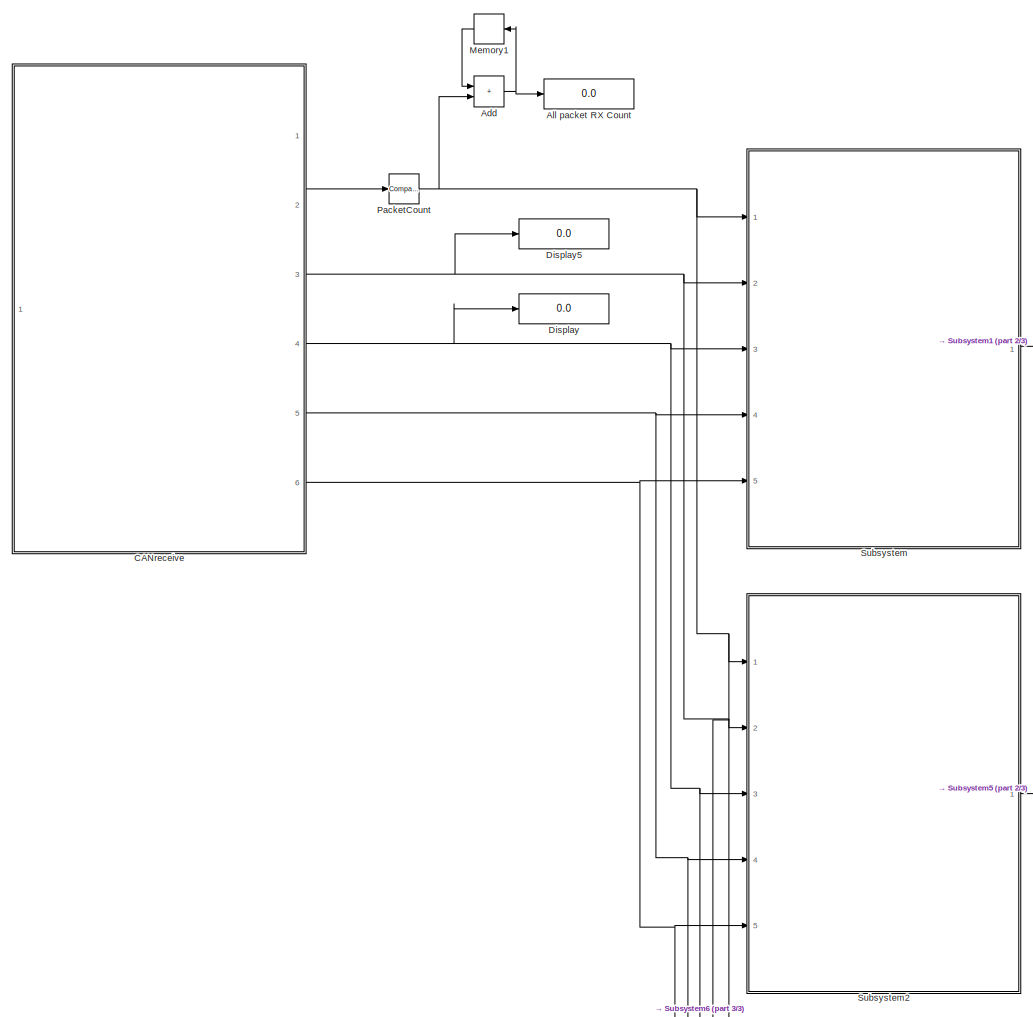
[diagram: Receive_CAN - part 1/3, middle left region]
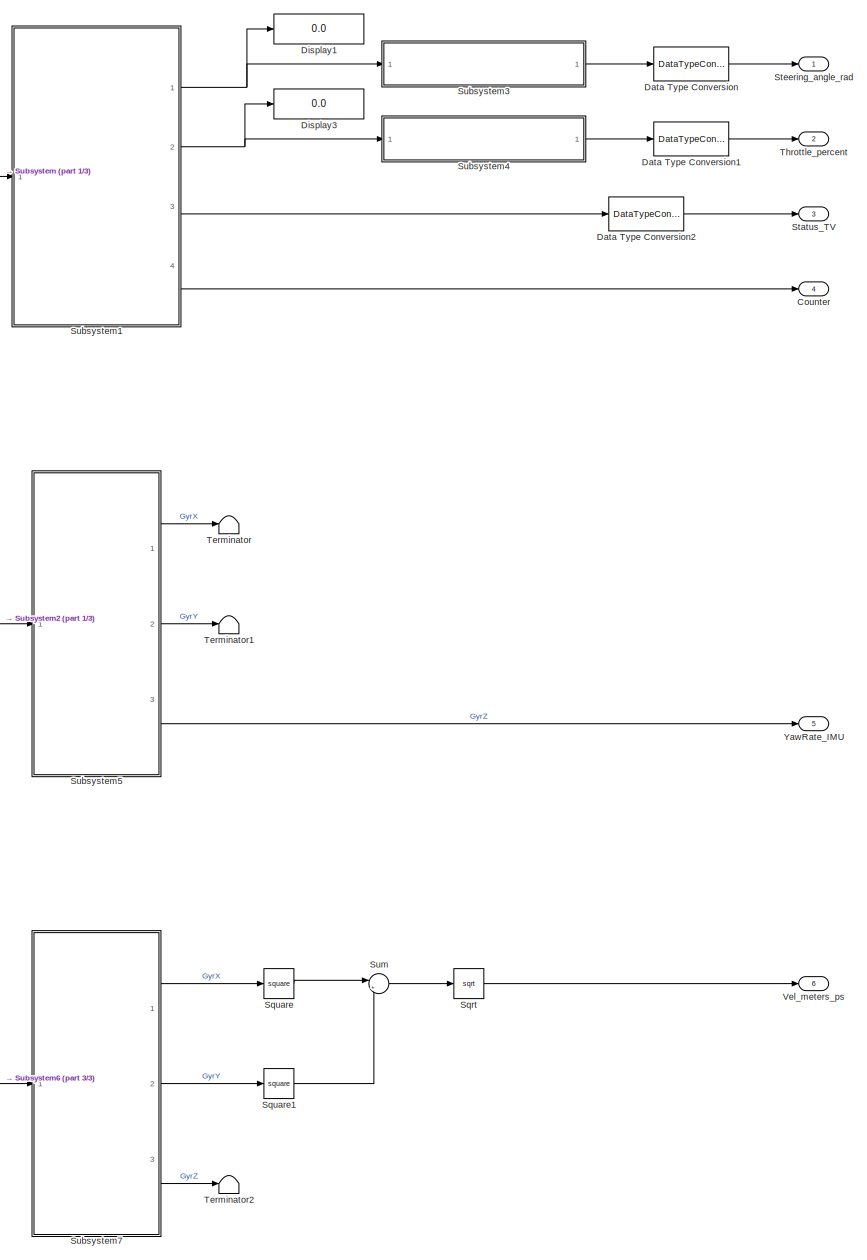
[diagram: Receive_CAN - part 2/3, right side, full height]
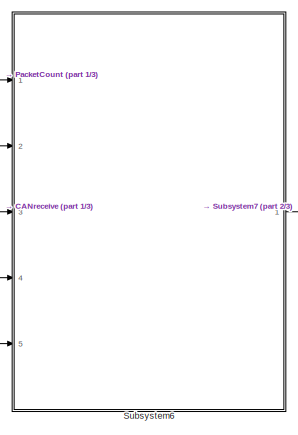
[diagram: Receive_CAN - part 3/3, bottom center region]
BLOCK [SubSystem] Receive_CAN
  Ports = [0, 6]
  RequestExecContextInheritance = off
BLOCK [Sum] Receive_CAN/Add
  IconShape = rectangular
  OutDataTypeStr = uint32
  Ports = [2, 1]
BLOCK [Display] Receive_CAN/All packet RX Count
  Decimation = 1
  Ports = [1]
BLOCK [SubSystem] Receive_CAN/CANreceive
  Ports = [1, 6]
  RTWSystemCode = Reusable function
  RequestExecContextInheritance = off
  TreatAsAtomicUnit = on
BLOCK [Constant] Receive_CAN/CANreceive/CAN_NOMSG
  OutDataTypeStr = int8
  Value = -1
BLOCK [Outport] Receive_CAN/CANreceive/CAN_Received
  Port = 2
BLOCK [Outport] Receive_CAN/CANreceive/CAN_data
  Port = 6
BLOCK [Outport] Receive_CAN/CANreceive/CAN_dlc
  Port = 5
BLOCK [Outport] Receive_CAN/CANreceive/CAN_ext
  Port = 3
BLOCK [Outport] Receive_CAN/CANreceive/CAN_id
  Port = 4
BLOCK [Inport] Receive_CAN/CANreceive/In
BLOCK [Outport] Receive_CAN/CANreceive/Out
BLOCK [RelationalOperator] Receive_CAN/CANreceive/Relational Operator
  InputSameDT = off
  Operator = ~=
  OutDataTypeStr = boolean
  Ports = [2, 1]
BLOCK [DataStoreMemory] Receive_CAN/CANreceive/Temporary buffer
  DataStoreName = temp_1byte
  OutDataTypeStr = uint8
  ReadBeforeWriteMsg = warning
  ShowAdditionalParam = off
  SignalType = real
  WriteAfterReadMsg = warning
  WriteAfterWriteMsg = warning
BLOCK [SubSystem] Receive_CAN/CANreceive/checkRxMsgStatus
  Ports = [1, 1]
  RequestExecContextInheritance = off
  TreatAsAtomicUnit = on
BLOCK [Reference] Receive_CAN/CANreceive/checkRxMsgStatus/Bitmask_RxBn  REF=simulink/Logic and Bit
Operations/Bitwise
Operator
  Ports = [1, 1]
  SourceBlock = simulink/Logic and Bit\nOperations/Bitwise\nOperator
  SourceProductBaseCode = SL
  SourceType = Bitwise Operator
BLOCK [Outport] Receive_CAN/CANreceive/checkRxMsgStatus/CANRx_Received
BLOCK [Constant] Receive_CAN/CANreceive/checkRxMsgStatus/CAN_NOMSG
  OutDataTypeStr = int8
  Value = -1
BLOCK [Constant] Receive_CAN/CANreceive/checkRxMsgStatus/CAN_OK
  OutDataTypeStr = int8
BLOCK [Inport] Receive_CAN/CANreceive/checkRxMsgStatus/RX_STATUS
BLOCK [Switch] Receive_CAN/CANreceive/checkRxMsgStatus/Switch
  Criteria = u2 > Threshold
  InputSameDT = off
  SaturateOnIntegerOverflow = off
BLOCK [SubSystem] Receive_CAN/CANreceive/mcp2515_read_RX_STATUS
  Ports = [1, 2]
  RequestExecContextInheritance = off
  TreatAsAtomicUnit = on
BLOCK [Constant] Receive_CAN/CANreceive/mcp2515_read_RX_STATUS/Constant
  OutDataTypeStr = uint8
  Value = 0
BLOCK [Inport] Receive_CAN/CANreceive/mcp2515_read_RX_STATUS/In
BLOCK [Constant] Receive_CAN/CANreceive/mcp2515_read_RX_STATUS/MCP_RX_STATUS
  OutDataTypeStr = uint8
  Value = hex2dec('B0')
BLOCK [Outport] Receive_CAN/CANreceive/mcp2515_read_RX_STATUS/Out
BLOCK [Outport] Receive_CAN/CANreceive/mcp2515_read_RX_STATUS/RX_STATUS
  Port = 2
BLOCK [Reference] Receive_CAN/CANreceive/mcp2515_read_RX_STATUS/SPI driver  REF=mcp2515lib/CAN application/mcp2515 driver/SPI driver
  Ports = [1, 1]
  SourceBlock = mcp2515lib/CAN application/mcp2515 driver/SPI driver
  SourceProductName = CAN device driver for mcp2515
  SourceType = SubSystem
BLOCK [Selector] Receive_CAN/CANreceive/mcp2515_read_RX_STATUS/Selector
  IndexMode = Zero-based
  IndexOptions = Index vector (dialog)
  Indices = 1
  InputPortWidth = 2
  OutputSizes = 1
  Ports = [1, 1]
BLOCK [Concatenate] Receive_CAN/CANreceive/mcp2515_read_RX_STATUS/Vector Concatenate
  Ports = [2, 1]
BLOCK [SubSystem] Receive_CAN/CANreceive/readRxBuffer
  Ports = [1, 4, 1]
  RequestExecContextInheritance = off
  TreatAsAtomicUnit = on
BLOCK [Outport] Receive_CAN/CANreceive/readRxBuffer/CAN_data
  Port = 4
BLOCK [Outport] Receive_CAN/CANreceive/readRxBuffer/CAN_dlc
  Port = 3
BLOCK [Outport] Receive_CAN/CANreceive/readRxBuffer/CAN_ext
BLOCK [Outport] Receive_CAN/CANreceive/readRxBuffer/CAN_id
  Port = 2
BLOCK [EnablePort] Receive_CAN/CANreceive/readRxBuffer/Enable
  Ports = []
BLOCK [Ground] Receive_CAN/CANreceive/readRxBuffer/Ground
BLOCK [Inport] Receive_CAN/CANreceive/readRxBuffer/RX_STATUS
BLOCK [Terminator] Receive_CAN/CANreceive/readRxBuffer/Terminator
BLOCK [SubSystem] Receive_CAN/CANreceive/readRxBuffer/checkRx1Buffer
  Ports = [1, 1]
  RequestExecContextInheritance = off
  TreatAsAtomicUnit = on
BLOCK [Reference] Receive_CAN/CANreceive/readRxBuffer/checkRx1Buffer/Bitmask_RxB1_Status  REF=simulink/Logic and Bit
Operations/Bitwise
Operator
  Ports = [1, 1]
  SourceBlock = simulink/Logic and Bit\nOperations/Bitwise\nOperator
  SourceProductBaseCode = SL
  SourceType = Bitwise Operator
BLOCK [Constant] Receive_CAN/CANreceive/readRxBuffer/checkRx1Buffer/MCP_READ_RxB0
  OutDataTypeStr = uint8
  Value = hex2dec('90')
BLOCK [Constant] Receive_CAN/CANreceive/readRxBuffer/checkRx1Buffer/MCP_READ_RxB1
  OutDataTypeStr = uint8
  Value = hex2dec('94')
BLOCK [Inport] Receive_CAN/CANreceive/readRxBuffer/checkRx1Buffer/RX_STATUS
BLOCK [Switch] Receive_CAN/CANreceive/readRxBuffer/checkRx1Buffer/Switch
  Criteria = u2 > Threshold
  InputSameDT = off
  SaturateOnIntegerOverflow = off
BLOCK [Outport] Receive_CAN/CANreceive/readRxBuffer/checkRx1Buffer/cmd_read_rx_buff
BLOCK [SubSystem] Receive_CAN/CANreceive/readRxBuffer/getDLC
  Ports = [1, 1]
  RequestExecContextInheritance = off
  TreatAsAtomicUnit = on
BLOCK [Reference] Receive_CAN/CANreceive/readRxBuffer/getDLC/Bitwise Operator  REF=simulink/Logic and Bit
Operations/Bitwise
Operator
  Ports = [2, 1]
  SourceBlock = simulink/Logic and Bit\nOperations/Bitwise\nOperator
  SourceProductBaseCode = SL
  SourceType = Bitwise Operator
BLOCK [Outport] Receive_CAN/CANreceive/readRxBuffer/getDLC/CAN_dlc
BLOCK [Constant] Receive_CAN/CANreceive/readRxBuffer/getDLC/MCP_DLC_MASK
  OutDataTypeStr = uint8
  Value = hex2dec('0F')
BLOCK [Inport] Receive_CAN/CANreceive/readRxBuffer/getDLC/RxBx
BLOCK [Selector] Receive_CAN/CANreceive/readRxBuffer/getDLC/RxDLC
  IndexMode = Zero-based
  IndexOptions = Index vector (dialog)
  Indices = 4
  InputPortWidth = 13
  OutputSizes = 1
  Ports = [1, 1]
BLOCK [SubSystem] Receive_CAN/CANreceive/readRxBuffer/getData
  Ports = [1, 1]
  RequestExecContextInheritance = off
  TreatAsAtomicUnit = on
BLOCK [Outport] Receive_CAN/CANreceive/readRxBuffer/getData/CAN_data
BLOCK [Inport] Receive_CAN/CANreceive/readRxBuffer/getData/RxBx
BLOCK [Selector] Receive_CAN/CANreceive/readRxBuffer/getData/RxData
  IndexMode = Zero-based
  IndexOptions = Index vector (dialog)
  Indices = [5:12]
  InputPortWidth = 13
  OutputSizes = 1
  Ports = [1, 1]
BLOCK [SubSystem] Receive_CAN/CANreceive/readRxBuffer/getID
  Ports = [1, 2]
  RTWSystemCode = Inline
  RequestExecContextInheritance = off
  TreatAsAtomicUnit = on
BLOCK [Outport] Receive_CAN/CANreceive/readRxBuffer/getID/CAN_ext
BLOCK [Outport] Receive_CAN/CANreceive/readRxBuffer/getID/CAN_id
  Port = 2
BLOCK [DataTypeConversion] Receive_CAN/CANreceive/readRxBuffer/getID/Data Type Conversion
  OutDataTypeStr = uint8
  RndMeth = Simplest
  SaturateOnIntegerOverflow = off
BLOCK [If] Receive_CAN/CANreceive/readRxBuffer/getID/If1
  IfExpression = u1 == 1
  Ports = [1, 2]
BLOCK [Merge] Receive_CAN/CANreceive/readRxBuffer/getID/Merge
  Ports = [2, 1]
BLOCK [Inport] Receive_CAN/CANreceive/readRxBuffer/getID/RxBn
BLOCK [Selector] Receive_CAN/CANreceive/readRxBuffer/getID/SIDH
  IndexMode = Zero-based
  IndexOptions = Index vector (dialog)
  Indices = 0
  InputPortWidth = 13
  OutputSizes = 1
  Ports = [1, 1]
BLOCK [Selector] Receive_CAN/CANreceive/readRxBuffer/getID/SIDL
  IndexMode = Zero-based
  IndexOptions = Index vector (dialog)
  Indices = 1
  InputPortWidth = 13
  OutputSizes = 1
  Ports = [1, 1]
BLOCK [SubSystem] Receive_CAN/CANreceive/readRxBuffer/getID/checkExtendedId
  Ports = [1, 1]
  RequestExecContextInheritance = off
BLOCK [Reference] Receive_CAN/CANreceive/readRxBuffer/getID/checkExtendedId/Bitmask_EXIDE  REF=simulink/Logic and Bit
Operations/Bitwise
Operator
  Ports = [1, 1]
  SourceBlock = simulink/Logic and Bit\nOperations/Bitwise\nOperator
  SourceProductBaseCode = SL
  SourceType = Bitwise Operator
BLOCK [Constant] Receive_CAN/CANreceive/readRxBuffer/getID/checkExtendedId/MCP_TXB_EXIDE_M
  OutDataTypeStr = uint8
  Value = hex2dec('08')
BLOCK [RelationalOperator] Receive_CAN/CANreceive/readRxBuffer/getID/checkExtendedId/Relational Operator
  InputSameDT = off
  Operator = ==
  OutDataTypeStr = boolean
  Ports = [2, 1]
BLOCK [Inport] Receive_CAN/CANreceive/readRxBuffer/getID/checkExtendedId/SIDL
BLOCK [Outport] Receive_CAN/CANreceive/readRxBuffer/getID/checkExtendedId/ext
BLOCK [SubSystem] Receive_CAN/CANreceive/readRxBuffer/getID/extended id
  Ports = [2, 1, 0, 0, 0, 0, 0, 1]
  RTWSystemCode = Inline
  RequestExecContextInheritance = off
  TreatAsAtomicUnit = on
BLOCK [ActionPort] Receive_CAN/CANreceive/readRxBuffer/getID/extended id/Action Port
  ActionPortLabel = if(u1 == 1)
BLOCK [Reference] Receive_CAN/CANreceive/readRxBuffer/getID/extended id/Bitmask_EID17-16  REF=simulink/Logic and Bit
Operations/Bitwise
Operator
  Ports = [1, 1]
  SourceBlock = simulink/Logic and Bit\nOperations/Bitwise\nOperator
  SourceProductBaseCode = SL
  SourceType = Bitwise Operator
BLOCK [DataTypeConversion] Receive_CAN/CANreceive/readRxBuffer/getID/extended id/Data Type Conversion1
  OutDataTypeStr = uint32
  RndMeth = Floor
  SaturateOnIntegerOverflow = off
BLOCK [DataTypeConversion] Receive_CAN/CANreceive/readRxBuffer/getID/extended id/Data Type Conversion2
  OutDataTypeStr = uint32
  RndMeth = Floor
  SaturateOnIntegerOverflow = off
BLOCK [Selector] Receive_CAN/CANreceive/readRxBuffer/getID/extended id/EID15-8
  IndexMode = Zero-based
  IndexOptions = Index vector (dialog)
  Indices = 2
  InputPortWidth = 13
  OutputSizes = 1
  Ports = [1, 1]
BLOCK [Selector] Receive_CAN/CANreceive/readRxBuffer/getID/extended id/EID17-16
  IndexMode = Zero-based
  IndexOptions = Index vector (dialog)
  Indices = 1
  InputPortWidth = 13
  OutputSizes = 1
  Ports = [1, 1]
BLOCK [Selector] Receive_CAN/CANreceive/readRxBuffer/getID/extended id/EID7-0
  IndexMode = Zero-based
  IndexOptions = Index vector (dialog)
  Indices = 3
  InputPortWidth = 13
  OutputSizes = 1
  Ports = [1, 1]
BLOCK [Inport] Receive_CAN/CANreceive/readRxBuffer/getID/extended id/RxBn
  Port = 2
BLOCK [ArithShift] Receive_CAN/CANreceive/readRxBuffer/getID/extended id/Shift Arithmetic_EID15-8
  BitShiftDirection = Left
  BitShiftNumber = 8
  InputPortMap = u0
  Ports = [1, 1]
BLOCK [ArithShift] Receive_CAN/CANreceive/readRxBuffer/getID/extended id/Shift Arithmetic_EID17-16
  BitShiftDirection = Left
  BitShiftNumber = 16
  InputPortMap = u0
  Ports = [1, 1]
BLOCK [ArithShift] Receive_CAN/CANreceive/readRxBuffer/getID/extended id/Shift Arithmetic_standardID
  BitShiftDirection = Left
  BitShiftNumber = 18
  InputPortMap = u0
  Ports = [1, 1]
BLOCK [Sum] Receive_CAN/CANreceive/readRxBuffer/getID/extended id/Sum
  IconShape = rectangular
  Ports = [2, 1]
BLOCK [Sum] Receive_CAN/CANreceive/readRxBuffer/getID/extended id/Sum1
  IconShape = rectangular
  Ports = [2, 1]
BLOCK [Sum] Receive_CAN/CANreceive/readRxBuffer/getID/extended id/Sum2
  IconShape = rectangular
  Ports = [2, 1]
BLOCK [Outport] Receive_CAN/CANreceive/readRxBuffer/getID/extended id/id
BLOCK [Inport] Receive_CAN/CANreceive/readRxBuffer/getID/extended id/standardID
BLOCK [SubSystem] Receive_CAN/CANreceive/readRxBuffer/getID/getStandardID
  Ports = [2, 1]
  RequestExecContextInheritance = off
BLOCK [Reference] Receive_CAN/CANreceive/readRxBuffer/getID/getStandardID/Bitmask_SID2-0  REF=simulink/Logic and Bit
Operations/Bitwise
Operator
  Ports = [1, 1]
  SourceBlock = simulink/Logic and Bit\nOperations/Bitwise\nOperator
  SourceProductBaseCode = SL
  SourceType = Bitwise Operator
BLOCK [DataTypeConversion] Receive_CAN/CANreceive/readRxBuffer/getID/getStandardID/Data Type Conversion
  OutDataTypeStr = uint32
  RndMeth = Floor
  SaturateOnIntegerOverflow = off
BLOCK [Inport] Receive_CAN/CANreceive/readRxBuffer/getID/getStandardID/SIDH
  Port = 2
BLOCK [Inport] Receive_CAN/CANreceive/readRxBuffer/getID/getStandardID/SIDL
BLOCK [ArithShift] Receive_CAN/CANreceive/readRxBuffer/getID/getStandardID/Shift Arithmetic_SID10-3
  BitShiftDirection = Left
  BitShiftNumber = 3
  InputPortMap = u0
  Ports = [1, 1]
BLOCK [ArithShift] Receive_CAN/CANreceive/readRxBuffer/getID/getStandardID/Shift Arithmetic_SID2-0
  BitShiftDirection = Right
  BitShiftNumber = 5
  InputPortMap = u0
  Ports = [1, 1]
BLOCK [Sum] Receive_CAN/CANreceive/readRxBuffer/getID/getStandardID/Sum1
  IconShape = rectangular
  Ports = [2, 1]
BLOCK [Outport] Receive_CAN/CANreceive/readRxBuffer/getID/getStandardID/stadardID
BLOCK [SubSystem] Receive_CAN/CANreceive/readRxBuffer/getID/standard id
  Ports = [1, 1, 0, 0, 0, 0, 0, 1]
  RTWSystemCode = Inline
  RequestExecContextInheritance = off
  TreatAsAtomicUnit = on
BLOCK [ActionPort] Receive_CAN/CANreceive/readRxBuffer/getID/standard id/Action Port
  ActionPortLabel = else
BLOCK [Outport] Receive_CAN/CANreceive/readRxBuffer/getID/standard id/id
BLOCK [Inport] Receive_CAN/CANreceive/readRxBuffer/getID/standard id/stadardID
BLOCK [SubSystem] Receive_CAN/CANreceive/readRxBuffer/mcp2515_readRxBuffer
  Ports = [2, 2]
  RequestExecContextInheritance = off
  TreatAsAtomicUnit = on
BLOCK [Constant] Receive_CAN/CANreceive/readRxBuffer/mcp2515_readRxBuffer/Constant
  OutDataTypeStr = uint8
  Value = zeros(1,13)
BLOCK [Inport] Receive_CAN/CANreceive/readRxBuffer/mcp2515_readRxBuffer/In
BLOCK [Outport] Receive_CAN/CANreceive/readRxBuffer/mcp2515_readRxBuffer/Out
BLOCK [Outport] Receive_CAN/CANreceive/readRxBuffer/mcp2515_readRxBuffer/RxBn
  Port = 2
BLOCK [Reference] Receive_CAN/CANreceive/readRxBuffer/mcp2515_readRxBuffer/SPI driver  REF=mcp2515lib/CAN application/mcp2515 driver/SPI driver
  Ports = [1, 1]
  SourceBlock = mcp2515lib/CAN application/mcp2515 driver/SPI driver
  SourceProductName = CAN device driver for mcp2515
  SourceType = SubSystem
BLOCK [Selector] Receive_CAN/CANreceive/readRxBuffer/mcp2515_readRxBuffer/Selector1
  IndexMode = Zero-based
  IndexOptions = Index vector (dialog)
  Indices = [1:13]
  InputPortWidth = 14
  OutputSizes = 1
  Ports = [1, 1]
BLOCK [Concatenate] Receive_CAN/CANreceive/readRxBuffer/mcp2515_readRxBuffer/Vector Concatenate
  Ports = [2, 1]
BLOCK [Inport] Receive_CAN/CANreceive/readRxBuffer/mcp2515_readRxBuffer/cmd_read_rx_buff
  Port = 2
BLOCK [Outport] Receive_CAN/Counter
  Port = 4
BLOCK [DataTypeConversion] Receive_CAN/Data Type Conversion
  OutDataTypeStr = double
  RndMeth = Floor
  SaturateOnIntegerOverflow = off
BLOCK [DataTypeConversion] Receive_CAN/Data Type Conversion1
  OutDataTypeStr = double
  RndMeth = Floor
  SaturateOnIntegerOverflow = off
BLOCK [DataTypeConversion] Receive_CAN/Data Type Conversion2
  OutDataTypeStr = boolean
  RndMeth = Floor
  SaturateOnIntegerOverflow = off
BLOCK [Display] Receive_CAN/Display
  Decimation = 1
  Format = hex (Stored Integer)
  Ports = [1]
BLOCK [Display] Receive_CAN/Display1
  Decimation = 1
  Ports = [1]
BLOCK [Display] Receive_CAN/Display3
  Decimation = 1
  Ports = [1]
BLOCK [Display] Receive_CAN/Display5
  Decimation = 1
  Ports = [1]
BLOCK [Memory] Receive_CAN/Memory1
  InitialCondition = [0]
BLOCK [Reference] Receive_CAN/PacketCount   REF=simulink/Logic and Bit
Operations/Compare
To Constant
  Ports = [1, 1]
  SourceBlock = simulink/Logic and Bit\nOperations/Compare\nTo Constant
  SourceProductBaseCode = SL
  SourceType = Compare To Constant
BLOCK [Sqrt] Receive_CAN/Sqrt
BLOCK [Math] Receive_CAN/Square
  Operator = square
  Ports = [1, 1]
BLOCK [Math] Receive_CAN/Square1
  Operator = square
  Ports = [1, 1]
BLOCK [Outport] Receive_CAN/Status_TV
  Port = 3
BLOCK [Outport] Receive_CAN/Steering_angle_rad
BLOCK [SubSystem] Receive_CAN/Subsystem
  Ports = [5, 1]
  RequestExecContextInheritance = off
BLOCK [Logic] Receive_CAN/Subsystem/AND
  AllPortsSameDT = off
  IconShape = distinctive
  Inputs = 4
  OutDataTypeStr = boolean
  Ports = [4, 1]
BLOCK [Inport] Receive_CAN/Subsystem/CAN_DATA
  Port = 5
BLOCK [Inport] Receive_CAN/Subsystem/CAN_DLC
  Port = 4
BLOCK [Inport] Receive_CAN/Subsystem/CAN_EXT
  Port = 2
BLOCK [Inport] Receive_CAN/Subsystem/CAN_ID
  Port = 3
BLOCK [Inport] Receive_CAN/Subsystem/CAN_Received
BLOCK [Reference] Receive_CAN/Subsystem/Compare To Desired DLC  REF=simulink/Logic and Bit
Operations/Compare
To Constant
  Ports = [1, 1]
  SourceBlock = simulink/Logic and Bit\nOperations/Compare\nTo Constant
  SourceProductBaseCode = SL
  SourceType = Compare To Constant
BLOCK [Reference] Receive_CAN/Subsystem/Compare To Desired DLC1  REF=simulink/Logic and Bit
Operations/Compare
To Constant
  Ports = [1, 1]
  SourceBlock = simulink/Logic and Bit\nOperations/Compare\nTo Constant
  SourceProductBaseCode = SL
  SourceType = Compare To Constant
BLOCK [Reference] Receive_CAN/Subsystem/Compare To Desired ID  REF=simulink/Logic and Bit
Operations/Compare
To Constant
  Ports = [1, 1]
  SourceBlock = simulink/Logic and Bit\nOperations/Compare\nTo Constant
  SourceProductBaseCode = SL
  SourceType = Compare To Constant
BLOCK [Outport] Receive_CAN/Subsystem/DATA
BLOCK [Memory] Receive_CAN/Subsystem/Memory
BLOCK [Switch] Receive_CAN/Subsystem/Switch
  Criteria = u2 > Threshold
  InputSameDT = off
  SaturateOnIntegerOverflow = off
BLOCK [SubSystem] Receive_CAN/Subsystem1
  Ports = [1, 4]
  RequestExecContextInheritance = off
BLOCK [Reference] Receive_CAN/Subsystem1/Byte Unpack  REF=svdutilitieslib/Byte Unpack
  Ports = [1, 5]
  SourceBlock = svdutilitieslib/Byte Unpack
  SourceProductBaseCode = ANDROID,ARDUINO,ML_ARDUINO,ECCORTEXA,ECCORTEXR,SC_BEAGLEBONE_BLUE,EC_FREEDOM_BOARD,EC_FRDM_K64F,INTEL_BLOCKSET,MICROBIT,NUCLEO,NVIDIA,PX4AUTOPILOTS,RASPPIIO,STMICRODIS,TIC2000,XILINX_BLOCKSET  <repeated x3 — deduplicated; at blocks: Byte Unpack>
  SourceType = Byte Unpack
BLOCK [Inport] Receive_CAN/Subsystem1/CAN_DATA
BLOCK [Outport] Receive_CAN/Subsystem1/Counter
  Port = 4
BLOCK [SubSystem] Receive_CAN/Subsystem1/MATLAB Function
  ErrorFcn = Stateflow.Translate.translate
  PermitHierarchicalResolution = ExplicitOnly
  Ports = [1, 1]
  RequestExecContextInheritance = off
  SFBlockType = MATLAB Function
  TreatAsAtomicUnit = on
BLOCK [Demux] Receive_CAN/Subsystem1/MATLAB Function/ Demux 
  Outputs = 1
  Ports = [1, 1]
BLOCK [S-Function] Receive_CAN/Subsystem1/MATLAB Function/ SFunction 
  EnableBusSupport = on
  FunctionName = sf_sfun
  PortCounts = [1 2]
  Ports = [1, 2]
  SFcnIsStateOwnerBlock = off
  SFunctionDeploymentMode = off
  Tag = Stateflow S-Function 4
BLOCK [Terminator] Receive_CAN/Subsystem1/MATLAB Function/ Terminator 
BLOCK [Inport] Receive_CAN/Subsystem1/MATLAB Function/A
BLOCK [Outport] Receive_CAN/Subsystem1/MATLAB Function/B
BLOCK [Outport] Receive_CAN/Subsystem1/Status_TV
  Port = 3
BLOCK [Outport] Receive_CAN/Subsystem1/Steering_pot_raw
BLOCK [Terminator] Receive_CAN/Subsystem1/Terminator
BLOCK [Outport] Receive_CAN/Subsystem1/Throttle_pot_raw
  Port = 2
BLOCK [SubSystem] Receive_CAN/Subsystem2
  Ports = [5, 1]
  RequestExecContextInheritance = off
BLOCK [Logic] Receive_CAN/Subsystem2/AND
  AllPortsSameDT = off
  IconShape = distinctive
  Inputs = 4
  OutDataTypeStr = boolean
  Ports = [4, 1]
BLOCK [Inport] Receive_CAN/Subsystem2/CAN_DATA
  Port = 5
BLOCK [Inport] Receive_CAN/Subsystem2/CAN_DLC
  Port = 4
BLOCK [Inport] Receive_CAN/Subsystem2/CAN_EXT
  Port = 2
BLOCK [Inport] Receive_CAN/Subsystem2/CAN_ID
  Port = 3
BLOCK [Inport] Receive_CAN/Subsystem2/CAN_Received
BLOCK [Reference] Receive_CAN/Subsystem2/Compare To Desired DLC  REF=simulink/Logic and Bit
Operations/Compare
To Constant
  Ports = [1, 1]
  SourceBlock = simulink/Logic and Bit\nOperations/Compare\nTo Constant
  SourceProductBaseCode = SL
  SourceType = Compare To Constant
BLOCK [Reference] Receive_CAN/Subsystem2/Compare To Desired DLC1  REF=simulink/Logic and Bit
Operations/Compare
To Constant
  Ports = [1, 1]
  SourceBlock = simulink/Logic and Bit\nOperations/Compare\nTo Constant
  SourceProductBaseCode = SL
  SourceType = Compare To Constant
BLOCK [Reference] Receive_CAN/Subsystem2/Compare To Desired ID  REF=simulink/Logic and Bit
Operations/Compare
To Constant
  Ports = [1, 1]
  SourceBlock = simulink/Logic and Bit\nOperations/Compare\nTo Constant
  SourceProductBaseCode = SL
  SourceType = Compare To Constant
BLOCK [Outport] Receive_CAN/Subsystem2/DATA
BLOCK [Memory] Receive_CAN/Subsystem2/Memory
BLOCK [Switch] Receive_CAN/Subsystem2/Switch
  Criteria = u2 > Threshold
  InputSameDT = off
  SaturateOnIntegerOverflow = off
BLOCK [SubSystem] Receive_CAN/Subsystem3
  Ports = [1, 1]
  RequestExecContextInheritance = off
BLOCK [Constant] Receive_CAN/Subsystem3/Constant
  Value = 834
BLOCK [Constant] Receive_CAN/Subsystem3/Constant1
  Value = 178
BLOCK [DataTypeConversion] Receive_CAN/Subsystem3/Data Type Conversion
  OutDataTypeStr = single
  RndMeth = Floor
  SaturateOnIntegerOverflow = off
BLOCK [SubSystem] Receive_CAN/Subsystem3/MATLAB Function
  ErrorFcn = Stateflow.Translate.translate
  PermitHierarchicalResolution = ExplicitOnly
  Ports = [3, 1]
  RequestExecContextInheritance = off
  SFBlockType = MATLAB Function
  TreatAsAtomicUnit = on
BLOCK [Demux] Receive_CAN/Subsystem3/MATLAB Function/ Demux 
  Outputs = 1
  Ports = [1, 1]
BLOCK [S-Function] Receive_CAN/Subsystem3/MATLAB Function/ SFunction 
  EnableBusSupport = on
  FunctionName = sf_sfun
  PortCounts = [3 2]
  Ports = [3, 2]
  SFcnIsStateOwnerBlock = off
  SFunctionDeploymentMode = off
  Tag = Stateflow S-Function 6
BLOCK [Terminator] Receive_CAN/Subsystem3/MATLAB Function/ Terminator 
BLOCK [Inport] Receive_CAN/Subsystem3/MATLAB Function/Valnegpi_2
  Port = 3
BLOCK [Inport] Receive_CAN/Subsystem3/MATLAB Function/Valpi_2
BLOCK [Outport] Receive_CAN/Subsystem3/MATLAB Function/steering_angle_rad
BLOCK [Inport] Receive_CAN/Subsystem3/MATLAB Function/steering_pot_raw
  Port = 2
BLOCK [Outport] Receive_CAN/Subsystem3/Steering_angle_rad
BLOCK [Inport] Receive_CAN/Subsystem3/Steering_pot_raw
BLOCK [SubSystem] Receive_CAN/Subsystem4
  Ports = [1, 1]
  RequestExecContextInheritance = off
BLOCK [Constant] Receive_CAN/Subsystem4/Constant
  Value = 233
BLOCK [Constant] Receive_CAN/Subsystem4/Constant1
  Value = 640
BLOCK [DataTypeConversion] Receive_CAN/Subsystem4/Data Type Conversion
  OutDataTypeStr = int16
  RndMeth = Floor
  SaturateOnIntegerOverflow = off
BLOCK [SubSystem] Receive_CAN/Subsystem4/MATLAB Function
  ErrorFcn = Stateflow.Translate.translate
  PermitHierarchicalResolution = ExplicitOnly
  Ports = [3, 1]
  RequestExecContextInheritance = off
  SFBlockType = MATLAB Function
  TreatAsAtomicUnit = on
BLOCK [Demux] Receive_CAN/Subsystem4/MATLAB Function/ Demux 
  Outputs = 1
  Ports = [1, 1]
BLOCK [S-Function] Receive_CAN/Subsystem4/MATLAB Function/ SFunction 
  EnableBusSupport = on
  FunctionName = sf_sfun
  PortCounts = [3 2]
  Ports = [3, 2]
  SFcnIsStateOwnerBlock = off
  SFunctionDeploymentMode = off
  Tag = Stateflow S-Function 7
BLOCK [Terminator] Receive_CAN/Subsystem4/MATLAB Function/ Terminator 
BLOCK [Inport] Receive_CAN/Subsystem4/MATLAB Function/Val0
  Port = 3
BLOCK [Inport] Receive_CAN/Subsystem4/MATLAB Function/Val100
BLOCK [Outport] Receive_CAN/Subsystem4/MATLAB Function/throttle_percent
BLOCK [Inport] Receive_CAN/Subsystem4/MATLAB Function/throttle_pot_raw
  Port = 2
BLOCK [Outport] Receive_CAN/Subsystem4/throttle_percent
BLOCK [Inport] Receive_CAN/Subsystem4/throttle_pot_raw
BLOCK [SubSystem] Receive_CAN/Subsystem5
  Ports = [1, 3]
  RequestExecContextInheritance = off
BLOCK [Reference] Receive_CAN/Subsystem5/Byte Unpack  REF=svdutilitieslib/Byte Unpack
  Ports = [1, 4]
  SourceBlock = svdutilitieslib/Byte Unpack
  SourceType = Byte Unpack
BLOCK [Inport] Receive_CAN/Subsystem5/CAN_DATA
BLOCK [DataTypeConversion] Receive_CAN/Subsystem5/Data Type Conversion
  OutDataTypeStr = double
  RndMeth = Floor
  SaturateOnIntegerOverflow = off
BLOCK [DataTypeConversion] Receive_CAN/Subsystem5/Data Type Conversion1
  OutDataTypeStr = double
  RndMeth = Floor
  SaturateOnIntegerOverflow = off
BLOCK [DataTypeConversion] Receive_CAN/Subsystem5/Data Type Conversion2
  OutDataTypeStr = double
  RndMeth = Floor
  SaturateOnIntegerOverflow = off
BLOCK [Outport] Receive_CAN/Subsystem5/GyrX
BLOCK [Outport] Receive_CAN/Subsystem5/GyrY
  Port = 2
BLOCK [Outport] Receive_CAN/Subsystem5/GyrZ
  Port = 3
BLOCK [SubSystem] Receive_CAN/Subsystem5/MATLAB Function
  ErrorFcn = Stateflow.Translate.translate
  PermitHierarchicalResolution = ExplicitOnly
  Ports = [1, 1]
  RequestExecContextInheritance = off
  SFBlockType = MATLAB Function
  TreatAsAtomicUnit = on
BLOCK [Demux] Receive_CAN/Subsystem5/MATLAB Function/ Demux 
  Outputs = 1
  Ports = [1, 1]
BLOCK [S-Function] Receive_CAN/Subsystem5/MATLAB Function/ SFunction 
  EnableBusSupport = on
  FunctionName = sf_sfun
  PortCounts = [1 2]
  Ports = [1, 2]
  SFcnIsStateOwnerBlock = off
  SFunctionDeploymentMode = off
  Tag = Stateflow S-Function 5
BLOCK [Terminator] Receive_CAN/Subsystem5/MATLAB Function/ Terminator 
BLOCK [Inport] Receive_CAN/Subsystem5/MATLAB Function/A
BLOCK [Outport] Receive_CAN/Subsystem5/MATLAB Function/B
BLOCK [Gain] Receive_CAN/Subsystem5/Raw2phys
  Gain = 2^(-9)
  OutDataTypeStr = Inherit: Inherit via back propagation
BLOCK [Gain] Receive_CAN/Subsystem5/Raw2phys1
  Gain = 2^(-9)
  OutDataTypeStr = Inherit: Inherit via back propagation
BLOCK [Gain] Receive_CAN/Subsystem5/Raw2phys2
  Gain = 2^(-9)
  OutDataTypeStr = Inherit: Inherit via back propagation
BLOCK [Terminator] Receive_CAN/Subsystem5/Terminator
BLOCK [SubSystem] Receive_CAN/Subsystem6
  Ports = [5, 1]
  RequestExecContextInheritance = off
BLOCK [Logic] Receive_CAN/Subsystem6/AND
  AllPortsSameDT = off
  IconShape = distinctive
  Inputs = 4
  OutDataTypeStr = boolean
  Ports = [4, 1]
BLOCK [Inport] Receive_CAN/Subsystem6/CAN_DATA
  Port = 5
BLOCK [Inport] Receive_CAN/Subsystem6/CAN_DLC
  Port = 4
BLOCK [Inport] Receive_CAN/Subsystem6/CAN_EXT
  Port = 2
BLOCK [Inport] Receive_CAN/Subsystem6/CAN_ID
  Port = 3
BLOCK [Inport] Receive_CAN/Subsystem6/CAN_Received
BLOCK [Reference] Receive_CAN/Subsystem6/Compare To Desired DLC  REF=simulink/Logic and Bit
Operations/Compare
To Constant
  Ports = [1, 1]
  SourceBlock = simulink/Logic and Bit\nOperations/Compare\nTo Constant
  SourceProductBaseCode = SL
  SourceType = Compare To Constant
BLOCK [Reference] Receive_CAN/Subsystem6/Compare To Desired DLC1  REF=simulink/Logic and Bit
Operations/Compare
To Constant
  Ports = [1, 1]
  SourceBlock = simulink/Logic and Bit\nOperations/Compare\nTo Constant
  SourceProductBaseCode = SL
  SourceType = Compare To Constant
BLOCK [Reference] Receive_CAN/Subsystem6/Compare To Desired ID  REF=simulink/Logic and Bit
Operations/Compare
To Constant
  Ports = [1, 1]
  SourceBlock = simulink/Logic and Bit\nOperations/Compare\nTo Constant
  SourceProductBaseCode = SL
  SourceType = Compare To Constant
BLOCK [Outport] Receive_CAN/Subsystem6/DATA
BLOCK [Memory] Receive_CAN/Subsystem6/Memory
BLOCK [Switch] Receive_CAN/Subsystem6/Switch
  Criteria = u2 > Threshold
  InputSameDT = off
  SaturateOnIntegerOverflow = off
BLOCK [SubSystem] Receive_CAN/Subsystem7
  Ports = [1, 3]
  RequestExecContextInheritance = off
BLOCK [Reference] Receive_CAN/Subsystem7/Byte Unpack  REF=svdutilitieslib/Byte Unpack
  Ports = [1, 4]
  SourceBlock = svdutilitieslib/Byte Unpack
  SourceType = Byte Unpack
BLOCK [Inport] Receive_CAN/Subsystem7/CAN_DATA
BLOCK [DataTypeConversion] Receive_CAN/Subsystem7/Data Type Conversion
  OutDataTypeStr = double
  RndMeth = Floor
  SaturateOnIntegerOverflow = off
BLOCK [DataTypeConversion] Receive_CAN/Subsystem7/Data Type Conversion1
  OutDataTypeStr = double
  RndMeth = Floor
  SaturateOnIntegerOverflow = off
BLOCK [DataTypeConversion] Receive_CAN/Subsystem7/Data Type Conversion2
  OutDataTypeStr = double
  RndMeth = Floor
  SaturateOnIntegerOverflow = off
BLOCK [SubSystem] Receive_CAN/Subsystem7/MATLAB Function
  ErrorFcn = Stateflow.Translate.translate
  PermitHierarchicalResolution = ExplicitOnly
  Ports = [1, 1]
  RequestExecContextInheritance = off
  SFBlockType = MATLAB Function
  TreatAsAtomicUnit = on
BLOCK [Demux] Receive_CAN/Subsystem7/MATLAB Function/ Demux 
  Outputs = 1
  Ports = [1, 1]
BLOCK [S-Function] Receive_CAN/Subsystem7/MATLAB Function/ SFunction 
  EnableBusSupport = on
  FunctionName = sf_sfun
  PortCounts = [1 2]
  Ports = [1, 2]
  SFcnIsStateOwnerBlock = off
  SFunctionDeploymentMode = off
  Tag = Stateflow S-Function 2
BLOCK [Terminator] Receive_CAN/Subsystem7/MATLAB Function/ Terminator 
BLOCK [Inport] Receive_CAN/Subsystem7/MATLAB Function/A
BLOCK [Outport] Receive_CAN/Subsystem7/MATLAB Function/B
BLOCK [Gain] Receive_CAN/Subsystem7/Raw2phys
  Gain = 2^(-6)
  OutDataTypeStr = Inherit: Inherit via back propagation
BLOCK [Gain] Receive_CAN/Subsystem7/Raw2phys1
  Gain = 2^(-6)
  OutDataTypeStr = Inherit: Inherit via back propagation
BLOCK [Gain] Receive_CAN/Subsystem7/Raw2phys2
  Gain = 2^(-6)
  OutDataTypeStr = Inherit: Inherit via back propagation
BLOCK [Terminator] Receive_CAN/Subsystem7/Terminator
BLOCK [Outport] Receive_CAN/Subsystem7/VelX
BLOCK [Outport] Receive_CAN/Subsystem7/VelY
  Port = 2
BLOCK [Outport] Receive_CAN/Subsystem7/VelZ
  Port = 3
BLOCK [Sum] Receive_CAN/Sum
  Inputs = |++
  Ports = [2, 1]
BLOCK [Terminator] Receive_CAN/Terminator
BLOCK [Terminator] Receive_CAN/Terminator1
BLOCK [Terminator] Receive_CAN/Terminator2
BLOCK [Outport] Receive_CAN/Throttle_percent
  Port = 2
BLOCK [Outport] Receive_CAN/Vel_meters_ps
  Port = 6
BLOCK [Outport] Receive_CAN/YawRate_IMU
  Port = 5
BLOCK [SubSystem] Ref Gen
  Ports = [2, 1]
  RequestExecContextInheritance = off
BLOCK [Constant] Ref Gen/Constant2
  Value = L
BLOCK [Constant] Ref Gen/Constant4
  Value = D
BLOCK [Inport] Ref Gen/VehVel_mps
BLOCK [Inport] Ref Gen/deltaSW_rad
  Port = 2
BLOCK [Outport] Ref Gen/r_ref
BLOCK [SubSystem] Ref Gen/reference gen
  ErrorFcn = Stateflow.Translate.translate
  PermitHierarchicalResolution = ExplicitOnly
  Ports = [4, 1]
  RequestExecContextInheritance = off
  SFBlockType = MATLAB Function
  TreatAsAtomicUnit = on
BLOCK [Demux] Ref Gen/reference gen/ Demux 
  Outputs = 1
  Ports = [1, 1]
BLOCK [S-Function] Ref Gen/reference gen/ SFunction 
  EnableBusSupport = on
  FunctionName = sf_sfun
  PortCounts = [4 2]
  Ports = [4, 2]
  SFcnIsStateOwnerBlock = off
  SFunctionDeploymentMode = off
  Tag = Stateflow S-Function 3
BLOCK [Terminator] Ref Gen/reference gen/ Terminator 
BLOCK [Inport] Ref Gen/reference gen/D
  Port = 4
BLOCK [Inport] Ref Gen/reference gen/L
  Port = 3
BLOCK [Inport] Ref Gen/reference gen/deltaSW
  Port = 2
BLOCK [Outport] Ref Gen/reference gen/r_ref
  VectorParamsAs1DForOutWhenUnconnected = off
BLOCK [Inport] Ref Gen/reference gen/u
BLOCK [Sum] Sum
  Inputs = |+-
  Ports = [2, 1]
BLOCK [SubSystem] Torque Allocation (Low-Level Controller)
  Ports = [2, 2]
  RequestExecContextInheritance = off
BLOCK [SubSystem] Torque Allocation (Low-Level Controller)/MATLAB Function
  ErrorFcn = Stateflow.Translate.translate
  PermitHierarchicalResolution = ExplicitOnly
  Ports = [2, 2]
  RequestExecContextInheritance = off
  SFBlockType = MATLAB Function
  TreatAsAtomicUnit = on
BLOCK [Demux] Torque Allocation (Low-Level Controller)/MATLAB Function/ Demux 
  Outputs = 1
  Ports = [1, 1]
BLOCK [S-Function] Torque Allocation (Low-Level Controller)/MATLAB Function/ SFunction 
  EnableBusSupport = on
  FunctionName = sf_sfun
  PortCounts = [2 3]
  Ports = [2, 3]
  SFcnIsStateOwnerBlock = off
  SFunctionDeploymentMode = off
  Tag = Stateflow S-Function 1
BLOCK [Terminator] Torque Allocation (Low-Level Controller)/MATLAB Function/ Terminator 
BLOCK [Outport] Torque Allocation (Low-Level Controller)/MATLAB Function/TRL
BLOCK [Outport] Torque Allocation (Low-Level Controller)/MATLAB Function/TRR
  Port = 2
BLOCK [Inport] Torque Allocation (Low-Level Controller)/MATLAB Function/Tdem
  Port = 2
BLOCK [Inport] Torque Allocation (Low-Level Controller)/MATLAB Function/deltaT
BLOCK [Saturate] Torque Allocation (Low-Level Controller)/Saturation
  LowerLimit = -25*gear_ratio
  UpperLimit = 25*gear_ratio
BLOCK [Saturate] Torque Allocation (Low-Level Controller)/Saturation1
  LowerLimit = -25*gear_ratio
  UpperLimit = 25*gear_ratio
BLOCK [Outport] Torque Allocation (Low-Level Controller)/TRL
BLOCK [Outport] Torque Allocation (Low-Level Controller)/TRR
  Port = 2
BLOCK [Inport] Torque Allocation (Low-Level Controller)/Tdem
  Port = 2
BLOCK [Inport] Torque Allocation (Low-Level Controller)/deltaT
BLOCK [Lookup_n-D] Torque2Current
  BreakpointsForDimension1 = newtorque
  InputPortMap = u0
  InternalRulePriority = Speed
  NumberOfTableDimensions = 1
  Ports = [1, 1]
  RndMeth = Simplest
  Table = newcurrent
BLOCK [Lookup_n-D] Torque2Current1
  BreakpointsForDimension1 = newtorque
  InputPortMap = u0
  InternalRulePriority = Speed
  NumberOfTableDimensions = 1
  Ports = [1, 1]
  RndMeth = Simplest
  Table = newcurrent
ANNOTATION (root): IMU Data filtering
ANNOTATION (root): Neutral Safety
ANNOTATION (root): Receive Data from Sensors on the CAN BUS
ANNOTATION (root): Send Current requests
ANNOTATION CAN send LEFT (Throttle)/CANbegin - WARNING, CONTAINS HARDCODED VALUES/setup/setCANRxBuffer: RXB0
ANNOTATION CAN send LEFT (Throttle)/CANbegin - WARNING, CONTAINS HARDCODED VALUES/setup/setCANRxBuffer: RXB1
ANNOTATION CAN send LEFT (Throttle)/CANbegin - WARNING, CONTAINS HARDCODED VALUES/setup/setCANRxBuffer: no filter, no mask
ANNOTATION CAN send LEFT (brake)/CANbegin - WARNING, CONTAINS HARDCODED VALUES/setup/setCANRxBuffer: RXB0
ANNOTATION CAN send LEFT (brake)/CANbegin - WARNING, CONTAINS HARDCODED VALUES/setup/setCANRxBuffer: RXB1
ANNOTATION CAN send LEFT (brake)/CANbegin - WARNING, CONTAINS HARDCODED VALUES/setup/setCANRxBuffer: no filter, no mask
ANNOTATION CAN send RIGHT (Brake)/CANbegin - WARNING, CONTAINS HARDCODED VALUES/setup/setCANRxBuffer: RXB0
ANNOTATION CAN send RIGHT (Brake)/CANbegin - WARNING, CONTAINS HARDCODED VALUES/setup/setCANRxBuffer: RXB1
ANNOTATION CAN send RIGHT (Brake)/CANbegin - WARNING, CONTAINS HARDCODED VALUES/setup/setCANRxBuffer: no filter, no mask
ANNOTATION CAN send RIGHT (Throttle)/CANbegin - WARNING, CONTAINS HARDCODED VALUES/setup/setCANRxBuffer: RXB0
ANNOTATION CAN send RIGHT (Throttle)/CANbegin - WARNING, CONTAINS HARDCODED VALUES/setup/setCANRxBuffer: RXB1
ANNOTATION CAN send RIGHT (Throttle)/CANbegin - WARNING, CONTAINS HARDCODED VALUES/setup/setCANRxBuffer: no filter, no mask
LINE Butterworth LowPass Filter:1 -> Goto7:1
LINE CAN send LEFT (Throttle)/Byte Pack:1 -> CAN send LEFT (Throttle)/MATLAB Function:1
LINE CAN send LEFT (Throttle)/CANtransmit/CAN_data:1 -> CAN send LEFT (Throttle)/CANtransmit/load Tx data:5
LINE CAN send LEFT (Throttle)/CANtransmit/CAN_dlc:1 -> CAN send LEFT (Throttle)/CANtransmit/load Tx data:4
LINE CAN send LEFT (Throttle)/CANtransmit/CAN_ext:1 -> CAN send LEFT (Throttle)/CANtransmit/load Tx data:2
LINE CAN send LEFT (Throttle)/CANtransmit/CAN_id:1 -> CAN send LEFT (Throttle)/CANtransmit/load Tx data:3
LINE CAN send LEFT (Throttle)/CANtransmit/In:1 -> CAN send LEFT (Throttle)/CANtransmit/load Tx data:1
LINE CAN send LEFT (Throttle)/CANtransmit/check TxB0/Bitmask_TxReq:1 -> CAN send LEFT (Throttle)/CANtransmit/check TxB0/Switch:2
LINE CAN send LEFT (Throttle)/CANtransmit/check TxB0/CAN_FAIL:1 -> CAN send LEFT (Throttle)/CANtransmit/check TxB0/Switch:3
LINE CAN send LEFT (Throttle)/CANtransmit/check TxB0/CAN_OK:1 -> CAN send LEFT (Throttle)/CANtransmit/check TxB0/Switch:1
LINE CAN send LEFT (Throttle)/CANtransmit/check TxB0/In1:1 -> CAN send LEFT (Throttle)/CANtransmit/check TxB0/mcp2515_readRegister:1
LINE CAN send LEFT (Throttle)/CANtransmit/check TxB0/MCP_TxB0CTRL1:1 -> CAN send LEFT (Throttle)/CANtransmit/check TxB0/mcp2515_readRegister:2
LINE CAN send LEFT (Throttle)/CANtransmit/check TxB0/Switch:1 -> CAN send LEFT (Throttle)/CANtransmit/check TxB0/CANTx_Transmit:1
LINE CAN send LEFT (Throttle)/CANtransmit/check TxB0/mcp2515_readRegister/Constant:1 -> CAN send LEFT (Throttle)/CANtransmit/check TxB0/mcp2515_readRegister/Vector Concatenate:3
LINE CAN send LEFT (Throttle)/CANtransmit/check TxB0/mcp2515_readRegister/In:1 -> CAN send LEFT (Throttle)/CANtransmit/check TxB0/mcp2515_readRegister/Out:1
LINE CAN send LEFT (Throttle)/CANtransmit/check TxB0/mcp2515_readRegister/MCP_READ:1 -> CAN send LEFT (Throttle)/CANtransmit/check TxB0/mcp2515_readRegister/Vector Concatenate:1
LINE CAN send LEFT (Throttle)/CANtransmit/check TxB0/mcp2515_readRegister/SPI driver:1 -> CAN send LEFT (Throttle)/CANtransmit/check TxB0/mcp2515_readRegister/Selector:1
LINE CAN send LEFT (Throttle)/CANtransmit/check TxB0/mcp2515_readRegister/Selector:1 -> CAN send LEFT (Throttle)/CANtransmit/check TxB0/mcp2515_readRegister/SPI_data:1
LINE CAN send LEFT (Throttle)/CANtransmit/check TxB0/mcp2515_readRegister/Vector Concatenate:1 -> CAN send LEFT (Throttle)/CANtransmit/check TxB0/mcp2515_readRegister/SPI driver:1
LINE CAN send LEFT (Throttle)/CANtransmit/check TxB0/mcp2515_readRegister/address:1 -> CAN send LEFT (Throttle)/CANtransmit/check TxB0/mcp2515_readRegister/Vector Concatenate:2
LINE CAN send LEFT (Throttle)/CANtransmit/check TxB0/mcp2515_readRegister:1 -> CAN send LEFT (Throttle)/CANtransmit/check TxB0/Out1:1
LINE CAN send LEFT (Throttle)/CANtransmit/check TxB0/mcp2515_readRegister:2 -> CAN send LEFT (Throttle)/CANtransmit/check TxB0/Bitmask_TxReq:1
LINE CAN send LEFT (Throttle)/CANtransmit/check TxB0:1 -> CAN send LEFT (Throttle)/CANtransmit/Out:1
LINE CAN send LEFT (Throttle)/CANtransmit/check TxB0:2 -> CAN send LEFT (Throttle)/CANtransmit/CAN_Transmitted:1
LINE CAN send LEFT (Throttle)/CANtransmit/load Tx data/CAN_data:1 -> CAN send LEFT (Throttle)/CANtransmit/load Tx data/Vector Concatenate:3
LINE CAN send LEFT (Throttle)/CANtransmit/load Tx data/CAN_dlc:1 -> CAN send LEFT (Throttle)/CANtransmit/load Tx data/Vector Concatenate:2
LINE CAN send LEFT (Throttle)/CANtransmit/load Tx data/CAN_ext:1 -> CAN send LEFT (Throttle)/CANtransmit/load Tx data/setID:1
LINE CAN send LEFT (Throttle)/CANtransmit/load Tx data/CAN_id:1 -> CAN send LEFT (Throttle)/CANtransmit/load Tx data/setID:2
LINE CAN send LEFT (Throttle)/CANtransmit/load Tx data/In1:1 -> CAN send LEFT (Throttle)/CANtransmit/load Tx data/mcp2515_writeTxBuffer:1
LINE CAN send LEFT (Throttle)/CANtransmit/load Tx data/MCP_load_TxB0:1 -> CAN send LEFT (Throttle)/CANtransmit/load Tx data/mcp2515_writeTxBuffer:2
LINE CAN send LEFT (Throttle)/CANtransmit/load Tx data/Vector Concatenate:1 -> CAN send LEFT (Throttle)/CANtransmit/load Tx data/mcp2515_writeTxBuffer:3
LINE CAN send LEFT (Throttle)/CANtransmit/load Tx data/mcp2515_writeTxBuffer/In:1 -> CAN send LEFT (Throttle)/CANtransmit/load Tx data/mcp2515_writeTxBuffer/Out:1
LINE CAN send LEFT (Throttle)/CANtransmit/load Tx data/mcp2515_writeTxBuffer/SPI driver:1 -> CAN send LEFT (Throttle)/CANtransmit/load Tx data/mcp2515_writeTxBuffer/Selector1:1
LINE CAN send LEFT (Throttle)/CANtransmit/load Tx data/mcp2515_writeTxBuffer/Selector1:1 -> CAN send LEFT (Throttle)/CANtransmit/load Tx data/mcp2515_writeTxBuffer/Temporary buffer:1
LINE CAN send LEFT (Throttle)/CANtransmit/load Tx data/mcp2515_writeTxBuffer/Vector Concatenate:1 -> CAN send LEFT (Throttle)/CANtransmit/load Tx data/mcp2515_writeTxBuffer/SPI driver:1
LINE CAN send LEFT (Throttle)/CANtransmit/load Tx data/mcp2515_writeTxBuffer/cmd_load_tx_buff:1 -> CAN send LEFT (Throttle)/CANtransmit/load Tx data/mcp2515_writeTxBuffer/Vector Concatenate:1
LINE CAN send LEFT (Throttle)/CANtransmit/load Tx data/mcp2515_writeTxBuffer/data_tx_buff:1 -> CAN send LEFT (Throttle)/CANtransmit/load Tx data/mcp2515_writeTxBuffer/Vector Concatenate:2
LINE CAN send LEFT (Throttle)/CANtransmit/load Tx data/mcp2515_writeTxBuffer:1 -> CAN send LEFT (Throttle)/CANtransmit/load Tx data/Out1:1
LINE CAN send LEFT (Throttle)/CANtransmit/load Tx data/setID/Extended ID/Bit Set EXIDE:1 -> CAN send LEFT (Throttle)/CANtransmit/load Tx data/setID/Extended ID/Vector Concatenate:2
LINE CAN send LEFT (Throttle)/CANtransmit/load Tx data/setID/Extended ID/Bitmask_EID0-7:1 -> CAN send LEFT (Throttle)/CANtransmit/load Tx data/setID/Extended ID/Data Type Conversion1:1
LINE CAN send LEFT (Throttle)/CANtransmit/load Tx data/setID/Extended ID/Bitmask_EID16-17:1 -> CAN send LEFT (Throttle)/CANtransmit/load Tx data/setID/Extended ID/Sum3:1
LINE CAN send LEFT (Throttle)/CANtransmit/load Tx data/setID/Extended ID/Bitmask_EID8-15:1 -> CAN send LEFT (Throttle)/CANtransmit/load Tx data/setID/Extended ID/Data Type Conversion3:1
LINE CAN send LEFT (Throttle)/CANtransmit/load Tx data/setID/Extended ID/Bitmask_SID0-2:1 -> CAN send LEFT (Throttle)/CANtransmit/load Tx data/setID/Extended ID/Shift Arithmetic_SID0-2:1
LINE CAN send LEFT (Throttle)/CANtransmit/load Tx data/setID/Extended ID/Data Type Conversion1:1 -> CAN send LEFT (Throttle)/CANtransmit/load Tx data/setID/Extended ID/Vector Concatenate:4
LINE CAN send LEFT (Throttle)/CANtransmit/load Tx data/setID/Extended ID/Data Type Conversion2:1 -> CAN send LEFT (Throttle)/CANtransmit/load Tx data/setID/Extended ID/Vector Concatenate:1
LINE CAN send LEFT (Throttle)/CANtransmit/load Tx data/setID/Extended ID/Data Type Conversion3:1 -> CAN send LEFT (Throttle)/CANtransmit/load Tx data/setID/Extended ID/Vector Concatenate:3
NET CAN send LEFT (Throttle)/CANtransmit/load Tx data/setID/Extended ID/Shift Arithmetic1:1 -> CAN send LEFT (Throttle)/CANtransmit/load Tx data/setID/Extended ID/Bitmask_EID16-17:1, CAN send LEFT (Throttle)/CANtransmit/load Tx data/setID/Extended ID/Bitmask_SID0-2:1, CAN send LEFT (Throttle)/CANtransmit/load Tx data/setID/Extended ID/Shift Arithmetic_SID3-10:1
NET CAN send LEFT (Throttle)/CANtransmit/load Tx data/setID/Extended ID/Shift Arithmetic:1 -> CAN send LEFT (Throttle)/CANtransmit/load Tx data/setID/Extended ID/Bitmask_EID8-15:1, CAN send LEFT (Throttle)/CANtransmit/load Tx data/setID/Extended ID/Shift Arithmetic1:1
LINE CAN send LEFT (Throttle)/CANtransmit/load Tx data/setID/Extended ID/Shift Arithmetic_SID0-2:1 -> CAN send LEFT (Throttle)/CANtransmit/load Tx data/setID/Extended ID/Sum3:2
LINE CAN send LEFT (Throttle)/CANtransmit/load Tx data/setID/Extended ID/Shift Arithmetic_SID3-10:1 -> CAN send LEFT (Throttle)/CANtransmit/load Tx data/setID/Extended ID/Data Type Conversion2:1
LINE CAN send LEFT (Throttle)/CANtransmit/load Tx data/setID/Extended ID/Sum3:1 -> CAN send LEFT (Throttle)/CANtransmit/load Tx data/setID/Extended ID/Bit Set EXIDE:1
LINE CAN send LEFT (Throttle)/CANtransmit/load Tx data/setID/Extended ID/Vector Concatenate:1 -> CAN send LEFT (Throttle)/CANtransmit/load Tx data/setID/Extended ID/TxBn_ID:1
NET CAN send LEFT (Throttle)/CANtransmit/load Tx data/setID/Extended ID/id:1 -> CAN send LEFT (Throttle)/CANtransmit/load Tx data/setID/Extended ID/Bitmask_EID0-7:1, CAN send LEFT (Throttle)/CANtransmit/load Tx data/setID/Extended ID/Shift Arithmetic:1
LINE CAN send LEFT (Throttle)/CANtransmit/load Tx data/setID/Extended ID:1 -> CAN send LEFT (Throttle)/CANtransmit/load Tx data/setID/Merge:2
LINE CAN send LEFT (Throttle)/CANtransmit/load Tx data/setID/If:1 -> CAN send LEFT (Throttle)/CANtransmit/load Tx data/setID/Extended ID:ifaction
LINE CAN send LEFT (Throttle)/CANtransmit/load Tx data/setID/If:2 -> CAN send LEFT (Throttle)/CANtransmit/load Tx data/setID/Standard ID:ifaction
LINE CAN send LEFT (Throttle)/CANtransmit/load Tx data/setID/Merge:1 -> CAN send LEFT (Throttle)/CANtransmit/load Tx data/setID/TxBn_ID:1
LINE CAN send LEFT (Throttle)/CANtransmit/load Tx data/setID/Standard ID/Vector Concatenate:1 -> CAN send LEFT (Throttle)/CANtransmit/load Tx data/setID/Standard ID/TxBn_ID:1
NET CAN send LEFT (Throttle)/CANtransmit/load Tx data/setID/Standard ID/convert_ID/Bitmask_SID0-10:1 -> CAN send LEFT (Throttle)/CANtransmit/load Tx data/setID/Standard ID/convert_ID/Shift Arithmetic1:1, CAN send LEFT (Throttle)/CANtransmit/load Tx data/setID/Standard ID/convert_ID/Shift Arithmetic2:1
LINE CAN send LEFT (Throttle)/CANtransmit/load Tx data/setID/Standard ID/convert_ID/Bitmask_SID0-2:1 -> CAN send LEFT (Throttle)/CANtransmit/load Tx data/setID/Standard ID/convert_ID/Data Type Conversion2:1
LINE CAN send LEFT (Throttle)/CANtransmit/load Tx data/setID/Standard ID/convert_ID/Data Type Conversion1:1 -> CAN send LEFT (Throttle)/CANtransmit/load Tx data/setID/Standard ID/convert_ID/SIDH:1
LINE CAN send LEFT (Throttle)/CANtransmit/load Tx data/setID/Standard ID/convert_ID/Data Type Conversion2:1 -> CAN send LEFT (Throttle)/CANtransmit/load Tx data/setID/Standard ID/convert_ID/SIDL:1
LINE CAN send LEFT (Throttle)/CANtransmit/load Tx data/setID/Standard ID/convert_ID/Shift Arithmetic1:1 -> CAN send LEFT (Throttle)/CANtransmit/load Tx data/setID/Standard ID/convert_ID/Data Type Conversion1:1
LINE CAN send LEFT (Throttle)/CANtransmit/load Tx data/setID/Standard ID/convert_ID/Shift Arithmetic2:1 -> CAN send LEFT (Throttle)/CANtransmit/load Tx data/setID/Standard ID/convert_ID/Bitmask_SID0-2:1
LINE CAN send LEFT (Throttle)/CANtransmit/load Tx data/setID/Standard ID/convert_ID/id:1 -> CAN send LEFT (Throttle)/CANtransmit/load Tx data/setID/Standard ID/convert_ID/Bitmask_SID0-10:1
LINE CAN send LEFT (Throttle)/CANtransmit/load Tx data/setID/Standard ID/convert_ID:1 -> CAN send LEFT (Throttle)/CANtransmit/load Tx data/setID/Standard ID/Vector Concatenate:1
LINE CAN send LEFT (Throttle)/CANtransmit/load Tx data/setID/Standard ID/convert_ID:2 -> CAN send LEFT (Throttle)/CANtransmit/load Tx data/setID/Standard ID/Vector Concatenate:2
LINE CAN send LEFT (Throttle)/CANtransmit/load Tx data/setID/Standard ID/id:1 -> CAN send LEFT (Throttle)/CANtransmit/load Tx data/setID/Standard ID/convert_ID:1
NET CAN send LEFT (Throttle)/CANtransmit/load Tx data/setID/Standard ID/no data:1 -> CAN send LEFT (Throttle)/CANtransmit/load Tx data/setID/Standard ID/Vector Concatenate:3, CAN send LEFT (Throttle)/CANtransmit/load Tx data/setID/Standard ID/Vector Concatenate:4
LINE CAN send LEFT (Throttle)/CANtransmit/load Tx data/setID/Standard ID:1 -> CAN send LEFT (Throttle)/CANtransmit/load Tx data/setID/Merge:1
LINE CAN send LEFT (Throttle)/CANtransmit/load Tx data/setID/ext:1 -> CAN send LEFT (Throttle)/CANtransmit/load Tx data/setID/If:1
NET CAN send LEFT (Throttle)/CANtransmit/load Tx data/setID/id:1 -> CAN send LEFT (Throttle)/CANtransmit/load Tx data/setID/Extended ID:1, CAN send LEFT (Throttle)/CANtransmit/load Tx data/setID/Standard ID:1
LINE CAN send LEFT (Throttle)/CANtransmit/load Tx data/setID:1 -> CAN send LEFT (Throttle)/CANtransmit/load Tx data/Vector Concatenate:1
LINE CAN send LEFT (Throttle)/CANtransmit/load Tx data:1 -> CAN send LEFT (Throttle)/CANtransmit/send TxB0:1
LINE CAN send LEFT (Throttle)/CANtransmit/send TxB0/In1:1 -> CAN send LEFT (Throttle)/CANtransmit/send TxB0/mcp2515_writeRegister:1
LINE CAN send LEFT (Throttle)/CANtransmit/send TxB0/MCP_TxB0CTRL:1 -> CAN send LEFT (Throttle)/CANtransmit/send TxB0/mcp2515_writeRegister:2
LINE CAN send LEFT (Throttle)/CANtransmit/send TxB0/TxREQ:1 -> CAN send LEFT (Throttle)/CANtransmit/send TxB0/mcp2515_writeRegister:3
LINE CAN send LEFT (Throttle)/CANtransmit/send TxB0/mcp2515_writeRegister/In:1 -> CAN send LEFT (Throttle)/CANtransmit/send TxB0/mcp2515_writeRegister/Out:1
LINE CAN send LEFT (Throttle)/CANtransmit/send TxB0/mcp2515_writeRegister/MCP_WRITE:1 -> CAN send LEFT (Throttle)/CANtransmit/send TxB0/mcp2515_writeRegister/Vector Concatenate:1
LINE CAN send LEFT (Throttle)/CANtransmit/send TxB0/mcp2515_writeRegister/SPI driver:1 -> CAN send LEFT (Throttle)/CANtransmit/send TxB0/mcp2515_writeRegister/Selector:1
LINE CAN send LEFT (Throttle)/CANtransmit/send TxB0/mcp2515_writeRegister/Selector:1 -> CAN send LEFT (Throttle)/CANtransmit/send TxB0/mcp2515_writeRegister/Temporary buffer:1
LINE CAN send LEFT (Throttle)/CANtransmit/send TxB0/mcp2515_writeRegister/Vector Concatenate:1 -> CAN send LEFT (Throttle)/CANtransmit/send TxB0/mcp2515_writeRegister/SPI driver:1
LINE CAN send LEFT (Throttle)/CANtransmit/send TxB0/mcp2515_writeRegister/address:1 -> CAN send LEFT (Throttle)/CANtransmit/send TxB0/mcp2515_writeRegister/Vector Concatenate:2
LINE CAN send LEFT (Throttle)/CANtransmit/send TxB0/mcp2515_writeRegister/value:1 -> CAN send LEFT (Throttle)/CANtransmit/send TxB0/mcp2515_writeRegister/Vector Concatenate:3
LINE CAN send LEFT (Throttle)/CANtransmit/send TxB0/mcp2515_writeRegister:1 -> CAN send LEFT (Throttle)/CANtransmit/send TxB0/Out1:1
LINE CAN send LEFT (Throttle)/CANtransmit/send TxB0:1 -> CAN send LEFT (Throttle)/CANtransmit/check TxB0:1
LINE CAN send LEFT (Throttle)/CANtransmit:1 -> CAN send LEFT (Throttle)/Terminator1:1
NET CAN send LEFT (Throttle)/CANtransmit:2 -> CAN send LEFT (Throttle)/Display:1, CAN send LEFT (Throttle)/Terminator:1
LINE CAN send LEFT (Throttle)/Constant1:1 -> CAN send LEFT (Throttle)/Byte Pack:1
LINE CAN send LEFT (Throttle)/Current (A):1 -> CAN send LEFT (Throttle)/Saturation:1
LINE CAN send LEFT (Throttle)/DLC:1 -> CAN send LEFT (Throttle)/CANtransmit:4
LINE CAN send LEFT (Throttle)/Data Type Conversion:1 -> CAN send LEFT (Throttle)/CANtransmit:3
LINE CAN send LEFT (Throttle)/Gain2:1 -> CAN send LEFT (Throttle)/Byte Pack:2
LINE CAN send LEFT (Throttle)/Ground:1 -> CAN send LEFT (Throttle)/CANtransmit:1
LINE CAN send LEFT (Throttle)/ID:1 -> CAN send LEFT (Throttle)/Data Type Conversion:1
LINE CAN send LEFT (Throttle)/MATLAB Function:1 -> CAN send LEFT (Throttle)/CANtransmit:5
LINE CAN send LEFT (Throttle)/Saturation:1 -> CAN send LEFT (Throttle)/Gain2:1
LINE CAN send LEFT (Throttle)/ext:1 -> CAN send LEFT (Throttle)/CANtransmit:2
LINE CAN send LEFT (brake)/Byte Pack:1 -> CAN send LEFT (brake)/MATLAB Function:1
LINE CAN send LEFT (brake)/CANtransmit/CAN_data:1 -> CAN send LEFT (brake)/CANtransmit/load Tx data:5
LINE CAN send LEFT (brake)/CANtransmit/CAN_dlc:1 -> CAN send LEFT (brake)/CANtransmit/load Tx data:4
LINE CAN send LEFT (brake)/CANtransmit/CAN_ext:1 -> CAN send LEFT (brake)/CANtransmit/load Tx data:2
LINE CAN send LEFT (brake)/CANtransmit/CAN_id:1 -> CAN send LEFT (brake)/CANtransmit/load Tx data:3
LINE CAN send LEFT (brake)/CANtransmit/In:1 -> CAN send LEFT (brake)/CANtransmit/load Tx data:1
LINE CAN send LEFT (brake)/CANtransmit/check TxB0/Bitmask_TxReq:1 -> CAN send LEFT (brake)/CANtransmit/check TxB0/Switch:2
LINE CAN send LEFT (brake)/CANtransmit/check TxB0/CAN_FAIL:1 -> CAN send LEFT (brake)/CANtransmit/check TxB0/Switch:3
LINE CAN send LEFT (brake)/CANtransmit/check TxB0/CAN_OK:1 -> CAN send LEFT (brake)/CANtransmit/check TxB0/Switch:1
LINE CAN send LEFT (brake)/CANtransmit/check TxB0/In1:1 -> CAN send LEFT (brake)/CANtransmit/check TxB0/mcp2515_readRegister:1
LINE CAN send LEFT (brake)/CANtransmit/check TxB0/MCP_TxB0CTRL1:1 -> CAN send LEFT (brake)/CANtransmit/check TxB0/mcp2515_readRegister:2
LINE CAN send LEFT (brake)/CANtransmit/check TxB0/Switch:1 -> CAN send LEFT (brake)/CANtransmit/check TxB0/CANTx_Transmit:1
LINE CAN send LEFT (brake)/CANtransmit/check TxB0/mcp2515_readRegister/Constant:1 -> CAN send LEFT (brake)/CANtransmit/check TxB0/mcp2515_readRegister/Vector Concatenate:3
LINE CAN send LEFT (brake)/CANtransmit/check TxB0/mcp2515_readRegister/In:1 -> CAN send LEFT (brake)/CANtransmit/check TxB0/mcp2515_readRegister/Out:1
LINE CAN send LEFT (brake)/CANtransmit/check TxB0/mcp2515_readRegister/MCP_READ:1 -> CAN send LEFT (brake)/CANtransmit/check TxB0/mcp2515_readRegister/Vector Concatenate:1
LINE CAN send LEFT (brake)/CANtransmit/check TxB0/mcp2515_readRegister/SPI driver:1 -> CAN send LEFT (brake)/CANtransmit/check TxB0/mcp2515_readRegister/Selector:1
LINE CAN send LEFT (brake)/CANtransmit/check TxB0/mcp2515_readRegister/Selector:1 -> CAN send LEFT (brake)/CANtransmit/check TxB0/mcp2515_readRegister/SPI_data:1
LINE CAN send LEFT (brake)/CANtransmit/check TxB0/mcp2515_readRegister/Vector Concatenate:1 -> CAN send LEFT (brake)/CANtransmit/check TxB0/mcp2515_readRegister/SPI driver:1
LINE CAN send LEFT (brake)/CANtransmit/check TxB0/mcp2515_readRegister/address:1 -> CAN send LEFT (brake)/CANtransmit/check TxB0/mcp2515_readRegister/Vector Concatenate:2
LINE CAN send LEFT (brake)/CANtransmit/check TxB0/mcp2515_readRegister:1 -> CAN send LEFT (brake)/CANtransmit/check TxB0/Out1:1
LINE CAN send LEFT (brake)/CANtransmit/check TxB0/mcp2515_readRegister:2 -> CAN send LEFT (brake)/CANtransmit/check TxB0/Bitmask_TxReq:1
LINE CAN send LEFT (brake)/CANtransmit/check TxB0:1 -> CAN send LEFT (brake)/CANtransmit/Out:1
LINE CAN send LEFT (brake)/CANtransmit/check TxB0:2 -> CAN send LEFT (brake)/CANtransmit/CAN_Transmitted:1
LINE CAN send LEFT (brake)/CANtransmit/load Tx data/CAN_data:1 -> CAN send LEFT (brake)/CANtransmit/load Tx data/Vector Concatenate:3
LINE CAN send LEFT (brake)/CANtransmit/load Tx data/CAN_dlc:1 -> CAN send LEFT (brake)/CANtransmit/load Tx data/Vector Concatenate:2
LINE CAN send LEFT (brake)/CANtransmit/load Tx data/CAN_ext:1 -> CAN send LEFT (brake)/CANtransmit/load Tx data/setID:1
LINE CAN send LEFT (brake)/CANtransmit/load Tx data/CAN_id:1 -> CAN send LEFT (brake)/CANtransmit/load Tx data/setID:2
LINE CAN send LEFT (brake)/CANtransmit/load Tx data/In1:1 -> CAN send LEFT (brake)/CANtransmit/load Tx data/mcp2515_writeTxBuffer:1
LINE CAN send LEFT (brake)/CANtransmit/load Tx data/MCP_load_TxB0:1 -> CAN send LEFT (brake)/CANtransmit/load Tx data/mcp2515_writeTxBuffer:2
LINE CAN send LEFT (brake)/CANtransmit/load Tx data/Vector Concatenate:1 -> CAN send LEFT (brake)/CANtransmit/load Tx data/mcp2515_writeTxBuffer:3
LINE CAN send LEFT (brake)/CANtransmit/load Tx data/mcp2515_writeTxBuffer/In:1 -> CAN send LEFT (brake)/CANtransmit/load Tx data/mcp2515_writeTxBuffer/Out:1
LINE CAN send LEFT (brake)/CANtransmit/load Tx data/mcp2515_writeTxBuffer/SPI driver:1 -> CAN send LEFT (brake)/CANtransmit/load Tx data/mcp2515_writeTxBuffer/Selector1:1
LINE CAN send LEFT (brake)/CANtransmit/load Tx data/mcp2515_writeTxBuffer/Selector1:1 -> CAN send LEFT (brake)/CANtransmit/load Tx data/mcp2515_writeTxBuffer/Temporary buffer:1
LINE CAN send LEFT (brake)/CANtransmit/load Tx data/mcp2515_writeTxBuffer/Vector Concatenate:1 -> CAN send LEFT (brake)/CANtransmit/load Tx data/mcp2515_writeTxBuffer/SPI driver:1
LINE CAN send LEFT (brake)/CANtransmit/load Tx data/mcp2515_writeTxBuffer/cmd_load_tx_buff:1 -> CAN send LEFT (brake)/CANtransmit/load Tx data/mcp2515_writeTxBuffer/Vector Concatenate:1
LINE CAN send LEFT (brake)/CANtransmit/load Tx data/mcp2515_writeTxBuffer/data_tx_buff:1 -> CAN send LEFT (brake)/CANtransmit/load Tx data/mcp2515_writeTxBuffer/Vector Concatenate:2
LINE CAN send LEFT (brake)/CANtransmit/load Tx data/mcp2515_writeTxBuffer:1 -> CAN send LEFT (brake)/CANtransmit/load Tx data/Out1:1
LINE CAN send LEFT (brake)/CANtransmit/load Tx data/setID/Extended ID/Bit Set EXIDE:1 -> CAN send LEFT (brake)/CANtransmit/load Tx data/setID/Extended ID/Vector Concatenate:2
LINE CAN send LEFT (brake)/CANtransmit/load Tx data/setID/Extended ID/Bitmask_EID0-7:1 -> CAN send LEFT (brake)/CANtransmit/load Tx data/setID/Extended ID/Data Type Conversion1:1
LINE CAN send LEFT (brake)/CANtransmit/load Tx data/setID/Extended ID/Bitmask_EID16-17:1 -> CAN send LEFT (brake)/CANtransmit/load Tx data/setID/Extended ID/Sum3:1
LINE CAN send LEFT (brake)/CANtransmit/load Tx data/setID/Extended ID/Bitmask_EID8-15:1 -> CAN send LEFT (brake)/CANtransmit/load Tx data/setID/Extended ID/Data Type Conversion3:1
LINE CAN send LEFT (brake)/CANtransmit/load Tx data/setID/Extended ID/Bitmask_SID0-2:1 -> CAN send LEFT (brake)/CANtransmit/load Tx data/setID/Extended ID/Shift Arithmetic_SID0-2:1
LINE CAN send LEFT (brake)/CANtransmit/load Tx data/setID/Extended ID/Data Type Conversion1:1 -> CAN send LEFT (brake)/CANtransmit/load Tx data/setID/Extended ID/Vector Concatenate:4
LINE CAN send LEFT (brake)/CANtransmit/load Tx data/setID/Extended ID/Data Type Conversion2:1 -> CAN send LEFT (brake)/CANtransmit/load Tx data/setID/Extended ID/Vector Concatenate:1
LINE CAN send LEFT (brake)/CANtransmit/load Tx data/setID/Extended ID/Data Type Conversion3:1 -> CAN send LEFT (brake)/CANtransmit/load Tx data/setID/Extended ID/Vector Concatenate:3
NET CAN send LEFT (brake)/CANtransmit/load Tx data/setID/Extended ID/Shift Arithmetic1:1 -> CAN send LEFT (brake)/CANtransmit/load Tx data/setID/Extended ID/Bitmask_EID16-17:1, CAN send LEFT (brake)/CANtransmit/load Tx data/setID/Extended ID/Bitmask_SID0-2:1, CAN send LEFT (brake)/CANtransmit/load Tx data/setID/Extended ID/Shift Arithmetic_SID3-10:1
NET CAN send LEFT (brake)/CANtransmit/load Tx data/setID/Extended ID/Shift Arithmetic:1 -> CAN send LEFT (brake)/CANtransmit/load Tx data/setID/Extended ID/Bitmask_EID8-15:1, CAN send LEFT (brake)/CANtransmit/load Tx data/setID/Extended ID/Shift Arithmetic1:1
LINE CAN send LEFT (brake)/CANtransmit/load Tx data/setID/Extended ID/Shift Arithmetic_SID0-2:1 -> CAN send LEFT (brake)/CANtransmit/load Tx data/setID/Extended ID/Sum3:2
LINE CAN send LEFT (brake)/CANtransmit/load Tx data/setID/Extended ID/Shift Arithmetic_SID3-10:1 -> CAN send LEFT (brake)/CANtransmit/load Tx data/setID/Extended ID/Data Type Conversion2:1
LINE CAN send LEFT (brake)/CANtransmit/load Tx data/setID/Extended ID/Sum3:1 -> CAN send LEFT (brake)/CANtransmit/load Tx data/setID/Extended ID/Bit Set EXIDE:1
LINE CAN send LEFT (brake)/CANtransmit/load Tx data/setID/Extended ID/Vector Concatenate:1 -> CAN send LEFT (brake)/CANtransmit/load Tx data/setID/Extended ID/TxBn_ID:1
NET CAN send LEFT (brake)/CANtransmit/load Tx data/setID/Extended ID/id:1 -> CAN send LEFT (brake)/CANtransmit/load Tx data/setID/Extended ID/Bitmask_EID0-7:1, CAN send LEFT (brake)/CANtransmit/load Tx data/setID/Extended ID/Shift Arithmetic:1
LINE CAN send LEFT (brake)/CANtransmit/load Tx data/setID/Extended ID:1 -> CAN send LEFT (brake)/CANtransmit/load Tx data/setID/Merge:2
LINE CAN send LEFT (brake)/CANtransmit/load Tx data/setID/If:1 -> CAN send LEFT (brake)/CANtransmit/load Tx data/setID/Extended ID:ifaction
LINE CAN send LEFT (brake)/CANtransmit/load Tx data/setID/If:2 -> CAN send LEFT (brake)/CANtransmit/load Tx data/setID/Standard ID:ifaction
LINE CAN send LEFT (brake)/CANtransmit/load Tx data/setID/Merge:1 -> CAN send LEFT (brake)/CANtransmit/load Tx data/setID/TxBn_ID:1
LINE CAN send LEFT (brake)/CANtransmit/load Tx data/setID/Standard ID/Vector Concatenate:1 -> CAN send LEFT (brake)/CANtransmit/load Tx data/setID/Standard ID/TxBn_ID:1
NET CAN send LEFT (brake)/CANtransmit/load Tx data/setID/Standard ID/convert_ID/Bitmask_SID0-10:1 -> CAN send LEFT (brake)/CANtransmit/load Tx data/setID/Standard ID/convert_ID/Shift Arithmetic1:1, CAN send LEFT (brake)/CANtransmit/load Tx data/setID/Standard ID/convert_ID/Shift Arithmetic2:1
LINE CAN send LEFT (brake)/CANtransmit/load Tx data/setID/Standard ID/convert_ID/Bitmask_SID0-2:1 -> CAN send LEFT (brake)/CANtransmit/load Tx data/setID/Standard ID/convert_ID/Data Type Conversion2:1
LINE CAN send LEFT (brake)/CANtransmit/load Tx data/setID/Standard ID/convert_ID/Data Type Conversion1:1 -> CAN send LEFT (brake)/CANtransmit/load Tx data/setID/Standard ID/convert_ID/SIDH:1
LINE CAN send LEFT (brake)/CANtransmit/load Tx data/setID/Standard ID/convert_ID/Data Type Conversion2:1 -> CAN send LEFT (brake)/CANtransmit/load Tx data/setID/Standard ID/convert_ID/SIDL:1
LINE CAN send LEFT (brake)/CANtransmit/load Tx data/setID/Standard ID/convert_ID/Shift Arithmetic1:1 -> CAN send LEFT (brake)/CANtransmit/load Tx data/setID/Standard ID/convert_ID/Data Type Conversion1:1
LINE CAN send LEFT (brake)/CANtransmit/load Tx data/setID/Standard ID/convert_ID/Shift Arithmetic2:1 -> CAN send LEFT (brake)/CANtransmit/load Tx data/setID/Standard ID/convert_ID/Bitmask_SID0-2:1
LINE CAN send LEFT (brake)/CANtransmit/load Tx data/setID/Standard ID/convert_ID/id:1 -> CAN send LEFT (brake)/CANtransmit/load Tx data/setID/Standard ID/convert_ID/Bitmask_SID0-10:1
LINE CAN send LEFT (brake)/CANtransmit/load Tx data/setID/Standard ID/convert_ID:1 -> CAN send LEFT (brake)/CANtransmit/load Tx data/setID/Standard ID/Vector Concatenate:1
LINE CAN send LEFT (brake)/CANtransmit/load Tx data/setID/Standard ID/convert_ID:2 -> CAN send LEFT (brake)/CANtransmit/load Tx data/setID/Standard ID/Vector Concatenate:2
LINE CAN send LEFT (brake)/CANtransmit/load Tx data/setID/Standard ID/id:1 -> CAN send LEFT (brake)/CANtransmit/load Tx data/setID/Standard ID/convert_ID:1
NET CAN send LEFT (brake)/CANtransmit/load Tx data/setID/Standard ID/no data:1 -> CAN send LEFT (brake)/CANtransmit/load Tx data/setID/Standard ID/Vector Concatenate:3, CAN send LEFT (brake)/CANtransmit/load Tx data/setID/Standard ID/Vector Concatenate:4
LINE CAN send LEFT (brake)/CANtransmit/load Tx data/setID/Standard ID:1 -> CAN send LEFT (brake)/CANtransmit/load Tx data/setID/Merge:1
LINE CAN send LEFT (brake)/CANtransmit/load Tx data/setID/ext:1 -> CAN send LEFT (brake)/CANtransmit/load Tx data/setID/If:1
NET CAN send LEFT (brake)/CANtransmit/load Tx data/setID/id:1 -> CAN send LEFT (brake)/CANtransmit/load Tx data/setID/Extended ID:1, CAN send LEFT (brake)/CANtransmit/load Tx data/setID/Standard ID:1
LINE CAN send LEFT (brake)/CANtransmit/load Tx data/setID:1 -> CAN send LEFT (brake)/CANtransmit/load Tx data/Vector Concatenate:1
LINE CAN send LEFT (brake)/CANtransmit/load Tx data:1 -> CAN send LEFT (brake)/CANtransmit/send TxB0:1
LINE CAN send LEFT (brake)/CANtransmit/send TxB0/In1:1 -> CAN send LEFT (brake)/CANtransmit/send TxB0/mcp2515_writeRegister:1
LINE CAN send LEFT (brake)/CANtransmit/send TxB0/MCP_TxB0CTRL:1 -> CAN send LEFT (brake)/CANtransmit/send TxB0/mcp2515_writeRegister:2
LINE CAN send LEFT (brake)/CANtransmit/send TxB0/TxREQ:1 -> CAN send LEFT (brake)/CANtransmit/send TxB0/mcp2515_writeRegister:3
LINE CAN send LEFT (brake)/CANtransmit/send TxB0/mcp2515_writeRegister/In:1 -> CAN send LEFT (brake)/CANtransmit/send TxB0/mcp2515_writeRegister/Out:1
LINE CAN send LEFT (brake)/CANtransmit/send TxB0/mcp2515_writeRegister/MCP_WRITE:1 -> CAN send LEFT (brake)/CANtransmit/send TxB0/mcp2515_writeRegister/Vector Concatenate:1
LINE CAN send LEFT (brake)/CANtransmit/send TxB0/mcp2515_writeRegister/SPI driver:1 -> CAN send LEFT (brake)/CANtransmit/send TxB0/mcp2515_writeRegister/Selector:1
LINE CAN send LEFT (brake)/CANtransmit/send TxB0/mcp2515_writeRegister/Selector:1 -> CAN send LEFT (brake)/CANtransmit/send TxB0/mcp2515_writeRegister/Temporary buffer:1
LINE CAN send LEFT (brake)/CANtransmit/send TxB0/mcp2515_writeRegister/Vector Concatenate:1 -> CAN send LEFT (brake)/CANtransmit/send TxB0/mcp2515_writeRegister/SPI driver:1
LINE CAN send LEFT (brake)/CANtransmit/send TxB0/mcp2515_writeRegister/address:1 -> CAN send LEFT (brake)/CANtransmit/send TxB0/mcp2515_writeRegister/Vector Concatenate:2
LINE CAN send LEFT (brake)/CANtransmit/send TxB0/mcp2515_writeRegister/value:1 -> CAN send LEFT (brake)/CANtransmit/send TxB0/mcp2515_writeRegister/Vector Concatenate:3
LINE CAN send LEFT (brake)/CANtransmit/send TxB0/mcp2515_writeRegister:1 -> CAN send LEFT (brake)/CANtransmit/send TxB0/Out1:1
LINE CAN send LEFT (brake)/CANtransmit/send TxB0:1 -> CAN send LEFT (brake)/CANtransmit/check TxB0:1
LINE CAN send LEFT (brake)/CANtransmit:1 -> CAN send LEFT (brake)/Terminator1:1
NET CAN send LEFT (brake)/CANtransmit:2 -> CAN send LEFT (brake)/Display:1, CAN send LEFT (brake)/Terminator:1
LINE CAN send LEFT (brake)/Constant1:1 -> CAN send LEFT (brake)/Byte Pack:1
LINE CAN send LEFT (brake)/Current (A):1 -> CAN send LEFT (brake)/Saturation:1
LINE CAN send LEFT (brake)/DLC:1 -> CAN send LEFT (brake)/CANtransmit:4
LINE CAN send LEFT (brake)/Data Type Conversion:1 -> CAN send LEFT (brake)/CANtransmit:3
LINE CAN send LEFT (brake)/Gain2:1 -> CAN send LEFT (brake)/Byte Pack:2
LINE CAN send LEFT (brake)/Ground:1 -> CAN send LEFT (brake)/CANtransmit:1
LINE CAN send LEFT (brake)/ID:1 -> CAN send LEFT (brake)/Data Type Conversion:1
LINE CAN send LEFT (brake)/MATLAB Function:1 -> CAN send LEFT (brake)/CANtransmit:5
LINE CAN send LEFT (brake)/Saturation:1 -> CAN send LEFT (brake)/Gain2:1
LINE CAN send LEFT (brake)/ext:1 -> CAN send LEFT (brake)/CANtransmit:2
LINE CAN send RIGHT (Brake)/Byte Pack:1 -> CAN send RIGHT (Brake)/MATLAB Function:1
LINE CAN send RIGHT (Brake)/CANtransmit/CAN_data:1 -> CAN send RIGHT (Brake)/CANtransmit/load Tx data:5
LINE CAN send RIGHT (Brake)/CANtransmit/CAN_dlc:1 -> CAN send RIGHT (Brake)/CANtransmit/load Tx data:4
LINE CAN send RIGHT (Brake)/CANtransmit/CAN_ext:1 -> CAN send RIGHT (Brake)/CANtransmit/load Tx data:2
LINE CAN send RIGHT (Brake)/CANtransmit/CAN_id:1 -> CAN send RIGHT (Brake)/CANtransmit/load Tx data:3
LINE CAN send RIGHT (Brake)/CANtransmit/In:1 -> CAN send RIGHT (Brake)/CANtransmit/load Tx data:1
LINE CAN send RIGHT (Brake)/CANtransmit/check TxB0/Bitmask_TxReq:1 -> CAN send RIGHT (Brake)/CANtransmit/check TxB0/Switch:2
LINE CAN send RIGHT (Brake)/CANtransmit/check TxB0/CAN_FAIL:1 -> CAN send RIGHT (Brake)/CANtransmit/check TxB0/Switch:3
LINE CAN send RIGHT (Brake)/CANtransmit/check TxB0/CAN_OK:1 -> CAN send RIGHT (Brake)/CANtransmit/check TxB0/Switch:1
LINE CAN send RIGHT (Brake)/CANtransmit/check TxB0/In1:1 -> CAN send RIGHT (Brake)/CANtransmit/check TxB0/mcp2515_readRegister:1
LINE CAN send RIGHT (Brake)/CANtransmit/check TxB0/MCP_TxB0CTRL1:1 -> CAN send RIGHT (Brake)/CANtransmit/check TxB0/mcp2515_readRegister:2
LINE CAN send RIGHT (Brake)/CANtransmit/check TxB0/Switch:1 -> CAN send RIGHT (Brake)/CANtransmit/check TxB0/CANTx_Transmit:1
LINE CAN send RIGHT (Brake)/CANtransmit/check TxB0/mcp2515_readRegister/Constant:1 -> CAN send RIGHT (Brake)/CANtransmit/check TxB0/mcp2515_readRegister/Vector Concatenate:3
LINE CAN send RIGHT (Brake)/CANtransmit/check TxB0/mcp2515_readRegister/In:1 -> CAN send RIGHT (Brake)/CANtransmit/check TxB0/mcp2515_readRegister/Out:1
LINE CAN send RIGHT (Brake)/CANtransmit/check TxB0/mcp2515_readRegister/MCP_READ:1 -> CAN send RIGHT (Brake)/CANtransmit/check TxB0/mcp2515_readRegister/Vector Concatenate:1
LINE CAN send RIGHT (Brake)/CANtransmit/check TxB0/mcp2515_readRegister/SPI driver:1 -> CAN send RIGHT (Brake)/CANtransmit/check TxB0/mcp2515_readRegister/Selector:1
LINE CAN send RIGHT (Brake)/CANtransmit/check TxB0/mcp2515_readRegister/Selector:1 -> CAN send RIGHT (Brake)/CANtransmit/check TxB0/mcp2515_readRegister/SPI_data:1
LINE CAN send RIGHT (Brake)/CANtransmit/check TxB0/mcp2515_readRegister/Vector Concatenate:1 -> CAN send RIGHT (Brake)/CANtransmit/check TxB0/mcp2515_readRegister/SPI driver:1
LINE CAN send RIGHT (Brake)/CANtransmit/check TxB0/mcp2515_readRegister/address:1 -> CAN send RIGHT (Brake)/CANtransmit/check TxB0/mcp2515_readRegister/Vector Concatenate:2
LINE CAN send RIGHT (Brake)/CANtransmit/check TxB0/mcp2515_readRegister:1 -> CAN send RIGHT (Brake)/CANtransmit/check TxB0/Out1:1
LINE CAN send RIGHT (Brake)/CANtransmit/check TxB0/mcp2515_readRegister:2 -> CAN send RIGHT (Brake)/CANtransmit/check TxB0/Bitmask_TxReq:1
LINE CAN send RIGHT (Brake)/CANtransmit/check TxB0:1 -> CAN send RIGHT (Brake)/CANtransmit/Out:1
LINE CAN send RIGHT (Brake)/CANtransmit/check TxB0:2 -> CAN send RIGHT (Brake)/CANtransmit/CAN_Transmitted:1
LINE CAN send RIGHT (Brake)/CANtransmit/load Tx data/CAN_data:1 -> CAN send RIGHT (Brake)/CANtransmit/load Tx data/Vector Concatenate:3
LINE CAN send RIGHT (Brake)/CANtransmit/load Tx data/CAN_dlc:1 -> CAN send RIGHT (Brake)/CANtransmit/load Tx data/Vector Concatenate:2
LINE CAN send RIGHT (Brake)/CANtransmit/load Tx data/CAN_ext:1 -> CAN send RIGHT (Brake)/CANtransmit/load Tx data/setID:1
LINE CAN send RIGHT (Brake)/CANtransmit/load Tx data/CAN_id:1 -> CAN send RIGHT (Brake)/CANtransmit/load Tx data/setID:2
LINE CAN send RIGHT (Brake)/CANtransmit/load Tx data/In1:1 -> CAN send RIGHT (Brake)/CANtransmit/load Tx data/mcp2515_writeTxBuffer:1
LINE CAN send RIGHT (Brake)/CANtransmit/load Tx data/MCP_load_TxB0:1 -> CAN send RIGHT (Brake)/CANtransmit/load Tx data/mcp2515_writeTxBuffer:2
LINE CAN send RIGHT (Brake)/CANtransmit/load Tx data/Vector Concatenate:1 -> CAN send RIGHT (Brake)/CANtransmit/load Tx data/mcp2515_writeTxBuffer:3
LINE CAN send RIGHT (Brake)/CANtransmit/load Tx data/mcp2515_writeTxBuffer/In:1 -> CAN send RIGHT (Brake)/CANtransmit/load Tx data/mcp2515_writeTxBuffer/Out:1
LINE CAN send RIGHT (Brake)/CANtransmit/load Tx data/mcp2515_writeTxBuffer/SPI driver:1 -> CAN send RIGHT (Brake)/CANtransmit/load Tx data/mcp2515_writeTxBuffer/Selector1:1
LINE CAN send RIGHT (Brake)/CANtransmit/load Tx data/mcp2515_writeTxBuffer/Selector1:1 -> CAN send RIGHT (Brake)/CANtransmit/load Tx data/mcp2515_writeTxBuffer/Temporary buffer:1
LINE CAN send RIGHT (Brake)/CANtransmit/load Tx data/mcp2515_writeTxBuffer/Vector Concatenate:1 -> CAN send RIGHT (Brake)/CANtransmit/load Tx data/mcp2515_writeTxBuffer/SPI driver:1
LINE CAN send RIGHT (Brake)/CANtransmit/load Tx data/mcp2515_writeTxBuffer/cmd_load_tx_buff:1 -> CAN send RIGHT (Brake)/CANtransmit/load Tx data/mcp2515_writeTxBuffer/Vector Concatenate:1
LINE CAN send RIGHT (Brake)/CANtransmit/load Tx data/mcp2515_writeTxBuffer/data_tx_buff:1 -> CAN send RIGHT (Brake)/CANtransmit/load Tx data/mcp2515_writeTxBuffer/Vector Concatenate:2
LINE CAN send RIGHT (Brake)/CANtransmit/load Tx data/mcp2515_writeTxBuffer:1 -> CAN send RIGHT (Brake)/CANtransmit/load Tx data/Out1:1
LINE CAN send RIGHT (Brake)/CANtransmit/load Tx data/setID/Extended ID/Bit Set EXIDE:1 -> CAN send RIGHT (Brake)/CANtransmit/load Tx data/setID/Extended ID/Vector Concatenate:2
LINE CAN send RIGHT (Brake)/CANtransmit/load Tx data/setID/Extended ID/Bitmask_EID0-7:1 -> CAN send RIGHT (Brake)/CANtransmit/load Tx data/setID/Extended ID/Data Type Conversion1:1
LINE CAN send RIGHT (Brake)/CANtransmit/load Tx data/setID/Extended ID/Bitmask_EID16-17:1 -> CAN send RIGHT (Brake)/CANtransmit/load Tx data/setID/Extended ID/Sum3:1
LINE CAN send RIGHT (Brake)/CANtransmit/load Tx data/setID/Extended ID/Bitmask_EID8-15:1 -> CAN send RIGHT (Brake)/CANtransmit/load Tx data/setID/Extended ID/Data Type Conversion3:1
LINE CAN send RIGHT (Brake)/CANtransmit/load Tx data/setID/Extended ID/Bitmask_SID0-2:1 -> CAN send RIGHT (Brake)/CANtransmit/load Tx data/setID/Extended ID/Shift Arithmetic_SID0-2:1
LINE CAN send RIGHT (Brake)/CANtransmit/load Tx data/setID/Extended ID/Data Type Conversion1:1 -> CAN send RIGHT (Brake)/CANtransmit/load Tx data/setID/Extended ID/Vector Concatenate:4
LINE CAN send RIGHT (Brake)/CANtransmit/load Tx data/setID/Extended ID/Data Type Conversion2:1 -> CAN send RIGHT (Brake)/CANtransmit/load Tx data/setID/Extended ID/Vector Concatenate:1
LINE CAN send RIGHT (Brake)/CANtransmit/load Tx data/setID/Extended ID/Data Type Conversion3:1 -> CAN send RIGHT (Brake)/CANtransmit/load Tx data/setID/Extended ID/Vector Concatenate:3
NET CAN send RIGHT (Brake)/CANtransmit/load Tx data/setID/Extended ID/Shift Arithmetic1:1 -> CAN send RIGHT (Brake)/CANtransmit/load Tx data/setID/Extended ID/Bitmask_EID16-17:1, CAN send RIGHT (Brake)/CANtransmit/load Tx data/setID/Extended ID/Bitmask_SID0-2:1, CAN send RIGHT (Brake)/CANtransmit/load Tx data/setID/Extended ID/Shift Arithmetic_SID3-10:1
NET CAN send RIGHT (Brake)/CANtransmit/load Tx data/setID/Extended ID/Shift Arithmetic:1 -> CAN send RIGHT (Brake)/CANtransmit/load Tx data/setID/Extended ID/Bitmask_EID8-15:1, CAN send RIGHT (Brake)/CANtransmit/load Tx data/setID/Extended ID/Shift Arithmetic1:1
LINE CAN send RIGHT (Brake)/CANtransmit/load Tx data/setID/Extended ID/Shift Arithmetic_SID0-2:1 -> CAN send RIGHT (Brake)/CANtransmit/load Tx data/setID/Extended ID/Sum3:2
LINE CAN send RIGHT (Brake)/CANtransmit/load Tx data/setID/Extended ID/Shift Arithmetic_SID3-10:1 -> CAN send RIGHT (Brake)/CANtransmit/load Tx data/setID/Extended ID/Data Type Conversion2:1
LINE CAN send RIGHT (Brake)/CANtransmit/load Tx data/setID/Extended ID/Sum3:1 -> CAN send RIGHT (Brake)/CANtransmit/load Tx data/setID/Extended ID/Bit Set EXIDE:1
LINE CAN send RIGHT (Brake)/CANtransmit/load Tx data/setID/Extended ID/Vector Concatenate:1 -> CAN send RIGHT (Brake)/CANtransmit/load Tx data/setID/Extended ID/TxBn_ID:1
NET CAN send RIGHT (Brake)/CANtransmit/load Tx data/setID/Extended ID/id:1 -> CAN send RIGHT (Brake)/CANtransmit/load Tx data/setID/Extended ID/Bitmask_EID0-7:1, CAN send RIGHT (Brake)/CANtransmit/load Tx data/setID/Extended ID/Shift Arithmetic:1
LINE CAN send RIGHT (Brake)/CANtransmit/load Tx data/setID/Extended ID:1 -> CAN send RIGHT (Brake)/CANtransmit/load Tx data/setID/Merge:2
LINE CAN send RIGHT (Brake)/CANtransmit/load Tx data/setID/If:1 -> CAN send RIGHT (Brake)/CANtransmit/load Tx data/setID/Extended ID:ifaction
LINE CAN send RIGHT (Brake)/CANtransmit/load Tx data/setID/If:2 -> CAN send RIGHT (Brake)/CANtransmit/load Tx data/setID/Standard ID:ifaction
LINE CAN send RIGHT (Brake)/CANtransmit/load Tx data/setID/Merge:1 -> CAN send RIGHT (Brake)/CANtransmit/load Tx data/setID/TxBn_ID:1
LINE CAN send RIGHT (Brake)/CANtransmit/load Tx data/setID/Standard ID/Vector Concatenate:1 -> CAN send RIGHT (Brake)/CANtransmit/load Tx data/setID/Standard ID/TxBn_ID:1
NET CAN send RIGHT (Brake)/CANtransmit/load Tx data/setID/Standard ID/convert_ID/Bitmask_SID0-10:1 -> CAN send RIGHT (Brake)/CANtransmit/load Tx data/setID/Standard ID/convert_ID/Shift Arithmetic1:1, CAN send RIGHT (Brake)/CANtransmit/load Tx data/setID/Standard ID/convert_ID/Shift Arithmetic2:1
LINE CAN send RIGHT (Brake)/CANtransmit/load Tx data/setID/Standard ID/convert_ID/Bitmask_SID0-2:1 -> CAN send RIGHT (Brake)/CANtransmit/load Tx data/setID/Standard ID/convert_ID/Data Type Conversion2:1
LINE CAN send RIGHT (Brake)/CANtransmit/load Tx data/setID/Standard ID/convert_ID/Data Type Conversion1:1 -> CAN send RIGHT (Brake)/CANtransmit/load Tx data/setID/Standard ID/convert_ID/SIDH:1
LINE CAN send RIGHT (Brake)/CANtransmit/load Tx data/setID/Standard ID/convert_ID/Data Type Conversion2:1 -> CAN send RIGHT (Brake)/CANtransmit/load Tx data/setID/Standard ID/convert_ID/SIDL:1
LINE CAN send RIGHT (Brake)/CANtransmit/load Tx data/setID/Standard ID/convert_ID/Shift Arithmetic1:1 -> CAN send RIGHT (Brake)/CANtransmit/load Tx data/setID/Standard ID/convert_ID/Data Type Conversion1:1
LINE CAN send RIGHT (Brake)/CANtransmit/load Tx data/setID/Standard ID/convert_ID/Shift Arithmetic2:1 -> CAN send RIGHT (Brake)/CANtransmit/load Tx data/setID/Standard ID/convert_ID/Bitmask_SID0-2:1
LINE CAN send RIGHT (Brake)/CANtransmit/load Tx data/setID/Standard ID/convert_ID/id:1 -> CAN send RIGHT (Brake)/CANtransmit/load Tx data/setID/Standard ID/convert_ID/Bitmask_SID0-10:1
LINE CAN send RIGHT (Brake)/CANtransmit/load Tx data/setID/Standard ID/convert_ID:1 -> CAN send RIGHT (Brake)/CANtransmit/load Tx data/setID/Standard ID/Vector Concatenate:1
LINE CAN send RIGHT (Brake)/CANtransmit/load Tx data/setID/Standard ID/convert_ID:2 -> CAN send RIGHT (Brake)/CANtransmit/load Tx data/setID/Standard ID/Vector Concatenate:2
LINE CAN send RIGHT (Brake)/CANtransmit/load Tx data/setID/Standard ID/id:1 -> CAN send RIGHT (Brake)/CANtransmit/load Tx data/setID/Standard ID/convert_ID:1
NET CAN send RIGHT (Brake)/CANtransmit/load Tx data/setID/Standard ID/no data:1 -> CAN send RIGHT (Brake)/CANtransmit/load Tx data/setID/Standard ID/Vector Concatenate:3, CAN send RIGHT (Brake)/CANtransmit/load Tx data/setID/Standard ID/Vector Concatenate:4
LINE CAN send RIGHT (Brake)/CANtransmit/load Tx data/setID/Standard ID:1 -> CAN send RIGHT (Brake)/CANtransmit/load Tx data/setID/Merge:1
LINE CAN send RIGHT (Brake)/CANtransmit/load Tx data/setID/ext:1 -> CAN send RIGHT (Brake)/CANtransmit/load Tx data/setID/If:1
NET CAN send RIGHT (Brake)/CANtransmit/load Tx data/setID/id:1 -> CAN send RIGHT (Brake)/CANtransmit/load Tx data/setID/Extended ID:1, CAN send RIGHT (Brake)/CANtransmit/load Tx data/setID/Standard ID:1
LINE CAN send RIGHT (Brake)/CANtransmit/load Tx data/setID:1 -> CAN send RIGHT (Brake)/CANtransmit/load Tx data/Vector Concatenate:1
LINE CAN send RIGHT (Brake)/CANtransmit/load Tx data:1 -> CAN send RIGHT (Brake)/CANtransmit/send TxB0:1
LINE CAN send RIGHT (Brake)/CANtransmit/send TxB0/In1:1 -> CAN send RIGHT (Brake)/CANtransmit/send TxB0/mcp2515_writeRegister:1
LINE CAN send RIGHT (Brake)/CANtransmit/send TxB0/MCP_TxB0CTRL:1 -> CAN send RIGHT (Brake)/CANtransmit/send TxB0/mcp2515_writeRegister:2
LINE CAN send RIGHT (Brake)/CANtransmit/send TxB0/TxREQ:1 -> CAN send RIGHT (Brake)/CANtransmit/send TxB0/mcp2515_writeRegister:3
LINE CAN send RIGHT (Brake)/CANtransmit/send TxB0/mcp2515_writeRegister/In:1 -> CAN send RIGHT (Brake)/CANtransmit/send TxB0/mcp2515_writeRegister/Out:1
LINE CAN send RIGHT (Brake)/CANtransmit/send TxB0/mcp2515_writeRegister/MCP_WRITE:1 -> CAN send RIGHT (Brake)/CANtransmit/send TxB0/mcp2515_writeRegister/Vector Concatenate:1
LINE CAN send RIGHT (Brake)/CANtransmit/send TxB0/mcp2515_writeRegister/SPI driver:1 -> CAN send RIGHT (Brake)/CANtransmit/send TxB0/mcp2515_writeRegister/Selector:1
LINE CAN send RIGHT (Brake)/CANtransmit/send TxB0/mcp2515_writeRegister/Selector:1 -> CAN send RIGHT (Brake)/CANtransmit/send TxB0/mcp2515_writeRegister/Temporary buffer:1
LINE CAN send RIGHT (Brake)/CANtransmit/send TxB0/mcp2515_writeRegister/Vector Concatenate:1 -> CAN send RIGHT (Brake)/CANtransmit/send TxB0/mcp2515_writeRegister/SPI driver:1
LINE CAN send RIGHT (Brake)/CANtransmit/send TxB0/mcp2515_writeRegister/address:1 -> CAN send RIGHT (Brake)/CANtransmit/send TxB0/mcp2515_writeRegister/Vector Concatenate:2
LINE CAN send RIGHT (Brake)/CANtransmit/send TxB0/mcp2515_writeRegister/value:1 -> CAN send RIGHT (Brake)/CANtransmit/send TxB0/mcp2515_writeRegister/Vector Concatenate:3
LINE CAN send RIGHT (Brake)/CANtransmit/send TxB0/mcp2515_writeRegister:1 -> CAN send RIGHT (Brake)/CANtransmit/send TxB0/Out1:1
LINE CAN send RIGHT (Brake)/CANtransmit/send TxB0:1 -> CAN send RIGHT (Brake)/CANtransmit/check TxB0:1
LINE CAN send RIGHT (Brake)/CANtransmit:1 -> CAN send RIGHT (Brake)/Terminator1:1
NET CAN send RIGHT (Brake)/CANtransmit:2 -> CAN send RIGHT (Brake)/Display:1, CAN send RIGHT (Brake)/Terminator:1
LINE CAN send RIGHT (Brake)/Constant1:1 -> CAN send RIGHT (Brake)/Byte Pack:1
LINE CAN send RIGHT (Brake)/Current (A):1 -> CAN send RIGHT (Brake)/Saturation:1
LINE CAN send RIGHT (Brake)/DLC:1 -> CAN send RIGHT (Brake)/CANtransmit:4
LINE CAN send RIGHT (Brake)/Data Type Conversion:1 -> CAN send RIGHT (Brake)/CANtransmit:3
LINE CAN send RIGHT (Brake)/Gain2:1 -> CAN send RIGHT (Brake)/Byte Pack:2
LINE CAN send RIGHT (Brake)/Ground:1 -> CAN send RIGHT (Brake)/CANtransmit:1
LINE CAN send RIGHT (Brake)/ID:1 -> CAN send RIGHT (Brake)/Data Type Conversion:1
LINE CAN send RIGHT (Brake)/MATLAB Function:1 -> CAN send RIGHT (Brake)/CANtransmit:5
LINE CAN send RIGHT (Brake)/Saturation:1 -> CAN send RIGHT (Brake)/Gain2:1
LINE CAN send RIGHT (Brake)/ext:1 -> CAN send RIGHT (Brake)/CANtransmit:2
LINE CAN send RIGHT (Throttle)/Byte Pack:1 -> CAN send RIGHT (Throttle)/MATLAB Function:1
LINE CAN send RIGHT (Throttle)/CANtransmit/CAN_data:1 -> CAN send RIGHT (Throttle)/CANtransmit/load Tx data:5
LINE CAN send RIGHT (Throttle)/CANtransmit/CAN_dlc:1 -> CAN send RIGHT (Throttle)/CANtransmit/load Tx data:4
LINE CAN send RIGHT (Throttle)/CANtransmit/CAN_ext:1 -> CAN send RIGHT (Throttle)/CANtransmit/load Tx data:2
LINE CAN send RIGHT (Throttle)/CANtransmit/CAN_id:1 -> CAN send RIGHT (Throttle)/CANtransmit/load Tx data:3
LINE CAN send RIGHT (Throttle)/CANtransmit/In:1 -> CAN send RIGHT (Throttle)/CANtransmit/load Tx data:1
LINE CAN send RIGHT (Throttle)/CANtransmit/check TxB0/Bitmask_TxReq:1 -> CAN send RIGHT (Throttle)/CANtransmit/check TxB0/Switch:2
LINE CAN send RIGHT (Throttle)/CANtransmit/check TxB0/CAN_FAIL:1 -> CAN send RIGHT (Throttle)/CANtransmit/check TxB0/Switch:3
LINE CAN send RIGHT (Throttle)/CANtransmit/check TxB0/CAN_OK:1 -> CAN send RIGHT (Throttle)/CANtransmit/check TxB0/Switch:1
LINE CAN send RIGHT (Throttle)/CANtransmit/check TxB0/In1:1 -> CAN send RIGHT (Throttle)/CANtransmit/check TxB0/mcp2515_readRegister:1
LINE CAN send RIGHT (Throttle)/CANtransmit/check TxB0/MCP_TxB0CTRL1:1 -> CAN send RIGHT (Throttle)/CANtransmit/check TxB0/mcp2515_readRegister:2
LINE CAN send RIGHT (Throttle)/CANtransmit/check TxB0/Switch:1 -> CAN send RIGHT (Throttle)/CANtransmit/check TxB0/CANTx_Transmit:1
LINE CAN send RIGHT (Throttle)/CANtransmit/check TxB0/mcp2515_readRegister/Constant:1 -> CAN send RIGHT (Throttle)/CANtransmit/check TxB0/mcp2515_readRegister/Vector Concatenate:3
LINE CAN send RIGHT (Throttle)/CANtransmit/check TxB0/mcp2515_readRegister/In:1 -> CAN send RIGHT (Throttle)/CANtransmit/check TxB0/mcp2515_readRegister/Out:1
LINE CAN send RIGHT (Throttle)/CANtransmit/check TxB0/mcp2515_readRegister/MCP_READ:1 -> CAN send RIGHT (Throttle)/CANtransmit/check TxB0/mcp2515_readRegister/Vector Concatenate:1
LINE CAN send RIGHT (Throttle)/CANtransmit/check TxB0/mcp2515_readRegister/SPI driver:1 -> CAN send RIGHT (Throttle)/CANtransmit/check TxB0/mcp2515_readRegister/Selector:1
LINE CAN send RIGHT (Throttle)/CANtransmit/check TxB0/mcp2515_readRegister/Selector:1 -> CAN send RIGHT (Throttle)/CANtransmit/check TxB0/mcp2515_readRegister/SPI_data:1
LINE CAN send RIGHT (Throttle)/CANtransmit/check TxB0/mcp2515_readRegister/Vector Concatenate:1 -> CAN send RIGHT (Throttle)/CANtransmit/check TxB0/mcp2515_readRegister/SPI driver:1
LINE CAN send RIGHT (Throttle)/CANtransmit/check TxB0/mcp2515_readRegister/address:1 -> CAN send RIGHT (Throttle)/CANtransmit/check TxB0/mcp2515_readRegister/Vector Concatenate:2
LINE CAN send RIGHT (Throttle)/CANtransmit/check TxB0/mcp2515_readRegister:1 -> CAN send RIGHT (Throttle)/CANtransmit/check TxB0/Out1:1
LINE CAN send RIGHT (Throttle)/CANtransmit/check TxB0/mcp2515_readRegister:2 -> CAN send RIGHT (Throttle)/CANtransmit/check TxB0/Bitmask_TxReq:1
LINE CAN send RIGHT (Throttle)/CANtransmit/check TxB0:1 -> CAN send RIGHT (Throttle)/CANtransmit/Out:1
LINE CAN send RIGHT (Throttle)/CANtransmit/check TxB0:2 -> CAN send RIGHT (Throttle)/CANtransmit/CAN_Transmitted:1
LINE CAN send RIGHT (Throttle)/CANtransmit/load Tx data/CAN_data:1 -> CAN send RIGHT (Throttle)/CANtransmit/load Tx data/Vector Concatenate:3
LINE CAN send RIGHT (Throttle)/CANtransmit/load Tx data/CAN_dlc:1 -> CAN send RIGHT (Throttle)/CANtransmit/load Tx data/Vector Concatenate:2
LINE CAN send RIGHT (Throttle)/CANtransmit/load Tx data/CAN_ext:1 -> CAN send RIGHT (Throttle)/CANtransmit/load Tx data/setID:1
LINE CAN send RIGHT (Throttle)/CANtransmit/load Tx data/CAN_id:1 -> CAN send RIGHT (Throttle)/CANtransmit/load Tx data/setID:2
LINE CAN send RIGHT (Throttle)/CANtransmit/load Tx data/In1:1 -> CAN send RIGHT (Throttle)/CANtransmit/load Tx data/mcp2515_writeTxBuffer:1
LINE CAN send RIGHT (Throttle)/CANtransmit/load Tx data/MCP_load_TxB0:1 -> CAN send RIGHT (Throttle)/CANtransmit/load Tx data/mcp2515_writeTxBuffer:2
LINE CAN send RIGHT (Throttle)/CANtransmit/load Tx data/Vector Concatenate:1 -> CAN send RIGHT (Throttle)/CANtransmit/load Tx data/mcp2515_writeTxBuffer:3
LINE CAN send RIGHT (Throttle)/CANtransmit/load Tx data/mcp2515_writeTxBuffer/In:1 -> CAN send RIGHT (Throttle)/CANtransmit/load Tx data/mcp2515_writeTxBuffer/Out:1
LINE CAN send RIGHT (Throttle)/CANtransmit/load Tx data/mcp2515_writeTxBuffer/SPI driver:1 -> CAN send RIGHT (Throttle)/CANtransmit/load Tx data/mcp2515_writeTxBuffer/Selector1:1
LINE CAN send RIGHT (Throttle)/CANtransmit/load Tx data/mcp2515_writeTxBuffer/Selector1:1 -> CAN send RIGHT (Throttle)/CANtransmit/load Tx data/mcp2515_writeTxBuffer/Temporary buffer:1
LINE CAN send RIGHT (Throttle)/CANtransmit/load Tx data/mcp2515_writeTxBuffer/Vector Concatenate:1 -> CAN send RIGHT (Throttle)/CANtransmit/load Tx data/mcp2515_writeTxBuffer/SPI driver:1
LINE CAN send RIGHT (Throttle)/CANtransmit/load Tx data/mcp2515_writeTxBuffer/cmd_load_tx_buff:1 -> CAN send RIGHT (Throttle)/CANtransmit/load Tx data/mcp2515_writeTxBuffer/Vector Concatenate:1
LINE CAN send RIGHT (Throttle)/CANtransmit/load Tx data/mcp2515_writeTxBuffer/data_tx_buff:1 -> CAN send RIGHT (Throttle)/CANtransmit/load Tx data/mcp2515_writeTxBuffer/Vector Concatenate:2
LINE CAN send RIGHT (Throttle)/CANtransmit/load Tx data/mcp2515_writeTxBuffer:1 -> CAN send RIGHT (Throttle)/CANtransmit/load Tx data/Out1:1
LINE CAN send RIGHT (Throttle)/CANtransmit/load Tx data/setID/Extended ID/Bit Set EXIDE:1 -> CAN send RIGHT (Throttle)/CANtransmit/load Tx data/setID/Extended ID/Vector Concatenate:2
LINE CAN send RIGHT (Throttle)/CANtransmit/load Tx data/setID/Extended ID/Bitmask_EID0-7:1 -> CAN send RIGHT (Throttle)/CANtransmit/load Tx data/setID/Extended ID/Data Type Conversion1:1
LINE CAN send RIGHT (Throttle)/CANtransmit/load Tx data/setID/Extended ID/Bitmask_EID16-17:1 -> CAN send RIGHT (Throttle)/CANtransmit/load Tx data/setID/Extended ID/Sum3:1
LINE CAN send RIGHT (Throttle)/CANtransmit/load Tx data/setID/Extended ID/Bitmask_EID8-15:1 -> CAN send RIGHT (Throttle)/CANtransmit/load Tx data/setID/Extended ID/Data Type Conversion3:1
LINE CAN send RIGHT (Throttle)/CANtransmit/load Tx data/setID/Extended ID/Bitmask_SID0-2:1 -> CAN send RIGHT (Throttle)/CANtransmit/load Tx data/setID/Extended ID/Shift Arithmetic_SID0-2:1
LINE CAN send RIGHT (Throttle)/CANtransmit/load Tx data/setID/Extended ID/Data Type Conversion1:1 -> CAN send RIGHT (Throttle)/CANtransmit/load Tx data/setID/Extended ID/Vector Concatenate:4
LINE CAN send RIGHT (Throttle)/CANtransmit/load Tx data/setID/Extended ID/Data Type Conversion2:1 -> CAN send RIGHT (Throttle)/CANtransmit/load Tx data/setID/Extended ID/Vector Concatenate:1
LINE CAN send RIGHT (Throttle)/CANtransmit/load Tx data/setID/Extended ID/Data Type Conversion3:1 -> CAN send RIGHT (Throttle)/CANtransmit/load Tx data/setID/Extended ID/Vector Concatenate:3
NET CAN send RIGHT (Throttle)/CANtransmit/load Tx data/setID/Extended ID/Shift Arithmetic1:1 -> CAN send RIGHT (Throttle)/CANtransmit/load Tx data/setID/Extended ID/Bitmask_EID16-17:1, CAN send RIGHT (Throttle)/CANtransmit/load Tx data/setID/Extended ID/Bitmask_SID0-2:1, CAN send RIGHT (Throttle)/CANtransmit/load Tx data/setID/Extended ID/Shift Arithmetic_SID3-10:1
NET CAN send RIGHT (Throttle)/CANtransmit/load Tx data/setID/Extended ID/Shift Arithmetic:1 -> CAN send RIGHT (Throttle)/CANtransmit/load Tx data/setID/Extended ID/Bitmask_EID8-15:1, CAN send RIGHT (Throttle)/CANtransmit/load Tx data/setID/Extended ID/Shift Arithmetic1:1
LINE CAN send RIGHT (Throttle)/CANtransmit/load Tx data/setID/Extended ID/Shift Arithmetic_SID0-2:1 -> CAN send RIGHT (Throttle)/CANtransmit/load Tx data/setID/Extended ID/Sum3:2
LINE CAN send RIGHT (Throttle)/CANtransmit/load Tx data/setID/Extended ID/Shift Arithmetic_SID3-10:1 -> CAN send RIGHT (Throttle)/CANtransmit/load Tx data/setID/Extended ID/Data Type Conversion2:1
LINE CAN send RIGHT (Throttle)/CANtransmit/load Tx data/setID/Extended ID/Sum3:1 -> CAN send RIGHT (Throttle)/CANtransmit/load Tx data/setID/Extended ID/Bit Set EXIDE:1
LINE CAN send RIGHT (Throttle)/CANtransmit/load Tx data/setID/Extended ID/Vector Concatenate:1 -> CAN send RIGHT (Throttle)/CANtransmit/load Tx data/setID/Extended ID/TxBn_ID:1
NET CAN send RIGHT (Throttle)/CANtransmit/load Tx data/setID/Extended ID/id:1 -> CAN send RIGHT (Throttle)/CANtransmit/load Tx data/setID/Extended ID/Bitmask_EID0-7:1, CAN send RIGHT (Throttle)/CANtransmit/load Tx data/setID/Extended ID/Shift Arithmetic:1
LINE CAN send RIGHT (Throttle)/CANtransmit/load Tx data/setID/Extended ID:1 -> CAN send RIGHT (Throttle)/CANtransmit/load Tx data/setID/Merge:2
LINE CAN send RIGHT (Throttle)/CANtransmit/load Tx data/setID/If:1 -> CAN send RIGHT (Throttle)/CANtransmit/load Tx data/setID/Extended ID:ifaction
LINE CAN send RIGHT (Throttle)/CANtransmit/load Tx data/setID/If:2 -> CAN send RIGHT (Throttle)/CANtransmit/load Tx data/setID/Standard ID:ifaction
LINE CAN send RIGHT (Throttle)/CANtransmit/load Tx data/setID/Merge:1 -> CAN send RIGHT (Throttle)/CANtransmit/load Tx data/setID/TxBn_ID:1
LINE CAN send RIGHT (Throttle)/CANtransmit/load Tx data/setID/Standard ID/Vector Concatenate:1 -> CAN send RIGHT (Throttle)/CANtransmit/load Tx data/setID/Standard ID/TxBn_ID:1
NET CAN send RIGHT (Throttle)/CANtransmit/load Tx data/setID/Standard ID/convert_ID/Bitmask_SID0-10:1 -> CAN send RIGHT (Throttle)/CANtransmit/load Tx data/setID/Standard ID/convert_ID/Shift Arithmetic1:1, CAN send RIGHT (Throttle)/CANtransmit/load Tx data/setID/Standard ID/convert_ID/Shift Arithmetic2:1
LINE CAN send RIGHT (Throttle)/CANtransmit/load Tx data/setID/Standard ID/convert_ID/Bitmask_SID0-2:1 -> CAN send RIGHT (Throttle)/CANtransmit/load Tx data/setID/Standard ID/convert_ID/Data Type Conversion2:1
LINE CAN send RIGHT (Throttle)/CANtransmit/load Tx data/setID/Standard ID/convert_ID/Data Type Conversion1:1 -> CAN send RIGHT (Throttle)/CANtransmit/load Tx data/setID/Standard ID/convert_ID/SIDH:1
LINE CAN send RIGHT (Throttle)/CANtransmit/load Tx data/setID/Standard ID/convert_ID/Data Type Conversion2:1 -> CAN send RIGHT (Throttle)/CANtransmit/load Tx data/setID/Standard ID/convert_ID/SIDL:1
LINE CAN send RIGHT (Throttle)/CANtransmit/load Tx data/setID/Standard ID/convert_ID/Shift Arithmetic1:1 -> CAN send RIGHT (Throttle)/CANtransmit/load Tx data/setID/Standard ID/convert_ID/Data Type Conversion1:1
LINE CAN send RIGHT (Throttle)/CANtransmit/load Tx data/setID/Standard ID/convert_ID/Shift Arithmetic2:1 -> CAN send RIGHT (Throttle)/CANtransmit/load Tx data/setID/Standard ID/convert_ID/Bitmask_SID0-2:1
LINE CAN send RIGHT (Throttle)/CANtransmit/load Tx data/setID/Standard ID/convert_ID/id:1 -> CAN send RIGHT (Throttle)/CANtransmit/load Tx data/setID/Standard ID/convert_ID/Bitmask_SID0-10:1
LINE CAN send RIGHT (Throttle)/CANtransmit/load Tx data/setID/Standard ID/convert_ID:1 -> CAN send RIGHT (Throttle)/CANtransmit/load Tx data/setID/Standard ID/Vector Concatenate:1
LINE CAN send RIGHT (Throttle)/CANtransmit/load Tx data/setID/Standard ID/convert_ID:2 -> CAN send RIGHT (Throttle)/CANtransmit/load Tx data/setID/Standard ID/Vector Concatenate:2
LINE CAN send RIGHT (Throttle)/CANtransmit/load Tx data/setID/Standard ID/id:1 -> CAN send RIGHT (Throttle)/CANtransmit/load Tx data/setID/Standard ID/convert_ID:1
NET CAN send RIGHT (Throttle)/CANtransmit/load Tx data/setID/Standard ID/no data:1 -> CAN send RIGHT (Throttle)/CANtransmit/load Tx data/setID/Standard ID/Vector Concatenate:3, CAN send RIGHT (Throttle)/CANtransmit/load Tx data/setID/Standard ID/Vector Concatenate:4
LINE CAN send RIGHT (Throttle)/CANtransmit/load Tx data/setID/Standard ID:1 -> CAN send RIGHT (Throttle)/CANtransmit/load Tx data/setID/Merge:1
LINE CAN send RIGHT (Throttle)/CANtransmit/load Tx data/setID/ext:1 -> CAN send RIGHT (Throttle)/CANtransmit/load Tx data/setID/If:1
NET CAN send RIGHT (Throttle)/CANtransmit/load Tx data/setID/id:1 -> CAN send RIGHT (Throttle)/CANtransmit/load Tx data/setID/Extended ID:1, CAN send RIGHT (Throttle)/CANtransmit/load Tx data/setID/Standard ID:1
LINE CAN send RIGHT (Throttle)/CANtransmit/load Tx data/setID:1 -> CAN send RIGHT (Throttle)/CANtransmit/load Tx data/Vector Concatenate:1
LINE CAN send RIGHT (Throttle)/CANtransmit/load Tx data:1 -> CAN send RIGHT (Throttle)/CANtransmit/send TxB0:1
LINE CAN send RIGHT (Throttle)/CANtransmit/send TxB0/In1:1 -> CAN send RIGHT (Throttle)/CANtransmit/send TxB0/mcp2515_writeRegister:1
LINE CAN send RIGHT (Throttle)/CANtransmit/send TxB0/MCP_TxB0CTRL:1 -> CAN send RIGHT (Throttle)/CANtransmit/send TxB0/mcp2515_writeRegister:2
LINE CAN send RIGHT (Throttle)/CANtransmit/send TxB0/TxREQ:1 -> CAN send RIGHT (Throttle)/CANtransmit/send TxB0/mcp2515_writeRegister:3
LINE CAN send RIGHT (Throttle)/CANtransmit/send TxB0/mcp2515_writeRegister/In:1 -> CAN send RIGHT (Throttle)/CANtransmit/send TxB0/mcp2515_writeRegister/Out:1
LINE CAN send RIGHT (Throttle)/CANtransmit/send TxB0/mcp2515_writeRegister/MCP_WRITE:1 -> CAN send RIGHT (Throttle)/CANtransmit/send TxB0/mcp2515_writeRegister/Vector Concatenate:1
LINE CAN send RIGHT (Throttle)/CANtransmit/send TxB0/mcp2515_writeRegister/SPI driver:1 -> CAN send RIGHT (Throttle)/CANtransmit/send TxB0/mcp2515_writeRegister/Selector:1
LINE CAN send RIGHT (Throttle)/CANtransmit/send TxB0/mcp2515_writeRegister/Selector:1 -> CAN send RIGHT (Throttle)/CANtransmit/send TxB0/mcp2515_writeRegister/Temporary buffer:1
LINE CAN send RIGHT (Throttle)/CANtransmit/send TxB0/mcp2515_writeRegister/Vector Concatenate:1 -> CAN send RIGHT (Throttle)/CANtransmit/send TxB0/mcp2515_writeRegister/SPI driver:1
LINE CAN send RIGHT (Throttle)/CANtransmit/send TxB0/mcp2515_writeRegister/address:1 -> CAN send RIGHT (Throttle)/CANtransmit/send TxB0/mcp2515_writeRegister/Vector Concatenate:2
LINE CAN send RIGHT (Throttle)/CANtransmit/send TxB0/mcp2515_writeRegister/value:1 -> CAN send RIGHT (Throttle)/CANtransmit/send TxB0/mcp2515_writeRegister/Vector Concatenate:3
LINE CAN send RIGHT (Throttle)/CANtransmit/send TxB0/mcp2515_writeRegister:1 -> CAN send RIGHT (Throttle)/CANtransmit/send TxB0/Out1:1
LINE CAN send RIGHT (Throttle)/CANtransmit/send TxB0:1 -> CAN send RIGHT (Throttle)/CANtransmit/check TxB0:1
LINE CAN send RIGHT (Throttle)/CANtransmit:1 -> CAN send RIGHT (Throttle)/Terminator1:1
NET CAN send RIGHT (Throttle)/CANtransmit:2 -> CAN send RIGHT (Throttle)/Display:1, CAN send RIGHT (Throttle)/Terminator:1
LINE CAN send RIGHT (Throttle)/Constant1:1 -> CAN send RIGHT (Throttle)/Byte Pack:1
LINE CAN send RIGHT (Throttle)/Current (A):1 -> CAN send RIGHT (Throttle)/Saturation:1
LINE CAN send RIGHT (Throttle)/DLC:1 -> CAN send RIGHT (Throttle)/CANtransmit:4
LINE CAN send RIGHT (Throttle)/Data Type Conversion:1 -> CAN send RIGHT (Throttle)/CANtransmit:3
LINE CAN send RIGHT (Throttle)/Gain2:1 -> CAN send RIGHT (Throttle)/Byte Pack:2
LINE CAN send RIGHT (Throttle)/Ground:1 -> CAN send RIGHT (Throttle)/CANtransmit:1
LINE CAN send RIGHT (Throttle)/ID:1 -> CAN send RIGHT (Throttle)/Data Type Conversion:1
LINE CAN send RIGHT (Throttle)/MATLAB Function:1 -> CAN send RIGHT (Throttle)/CANtransmit:5
LINE CAN send RIGHT (Throttle)/Saturation:1 -> CAN send RIGHT (Throttle)/Gain2:1
LINE CAN send RIGHT (Throttle)/ext:1 -> CAN send RIGHT (Throttle)/CANtransmit:2
LINE Constant1:1 -> Multiport Switch:2
LINE Constant3:1 -> Goto8:1
LINE Constant4:1 -> Multiport Switch1:2
LINE Constant5:1 -> Multiport Switch2:2
LINE Convert to Brake or Throttle Current/Compare To Constant1:1 -> Convert to Brake or Throttle Current/MATLAB Function1:1
LINE Convert to Brake or Throttle Current/Data Type Conversion5:1 -> Convert to Brake or Throttle Current/Ib_RR:1
LINE Convert to Brake or Throttle Current/Data Type Conversion6:1 -> Convert to Brake or Throttle Current/It_RR:1
NET Convert to Brake or Throttle Current/I_RR:1 -> Convert to Brake or Throttle Current/Compare To Constant1:1, Convert to Brake or Throttle Current/MATLAB Function1:2
LINE Convert to Brake or Throttle Current/MATLAB Function1:1 -> Convert to Brake or Throttle Current/Data Type Conversion5:1
LINE Convert to Brake or Throttle Current/MATLAB Function1:2 -> Convert to Brake or Throttle Current/Data Type Conversion6:1
LINE Convert to Brake or Throttle Current1/Compare To Constant1:1 -> Convert to Brake or Throttle Current1/MATLAB Function1:1
LINE Convert to Brake or Throttle Current1/Data Type Conversion5:1 -> Convert to Brake or Throttle Current1/Ib_RL:1
LINE Convert to Brake or Throttle Current1/Data Type Conversion6:1 -> Convert to Brake or Throttle Current1/It_RL:1
NET Convert to Brake or Throttle Current1/I_RL:1 -> Convert to Brake or Throttle Current1/Compare To Constant1:1, Convert to Brake or Throttle Current1/MATLAB Function1:2
LINE Convert to Brake or Throttle Current1/MATLAB Function1:1 -> Convert to Brake or Throttle Current1/Data Type Conversion5:1
LINE Convert to Brake or Throttle Current1/MATLAB Function1:2 -> Convert to Brake or Throttle Current1/Data Type Conversion6:1
LINE Convert to Brake or Throttle Current1:1 -> CAN send LEFT (brake):1
LINE Convert to Brake or Throttle Current1:2 -> CAN send LEFT (Throttle):1
LINE Convert to Brake or Throttle Current:1 -> CAN send RIGHT (Brake):1
LINE Convert to Brake or Throttle Current:2 -> CAN send RIGHT (Throttle):1
LINE DeadZone:1 -> Gain3:1
LINE From1:1 -> High-Level Controller:3
LINE From2:1 -> Sum:2
LINE From3:1 -> Ref Gen:1
LINE From4:1 -> Butterworth LowPass Filter:1
LINE From5:1 -> Torque Allocation (Low-Level Controller):2
LINE From6:1 -> Multiport Switch:1
LINE From7:1 -> Multiport Switch1:1
LINE From8:1 -> Multiport Switch2:1
LINE From:1 -> High-Level Controller:2
LINE Gain1:1 -> Torque2Current:1
LINE Gain2:1 -> Torque2Current1:1
LINE Gain3:1 -> Gain4:1
NET Gain4:1 -> Display:1, Goto3:1
LINE Gain:1 -> Goto2:1
NET High-Level Controller/Abs:1 -> High-Level Controller/Integral Gain:2, High-Level Controller/Proportional Gain:2
LINE High-Level Controller/Constant1:1 -> High-Level Controller/PID Controller:5
LINE High-Level Controller/Constant:1 -> High-Level Controller/PID Controller:4
LINE High-Level Controller/Gain:1 -> High-Level Controller/Abs:1
LINE High-Level Controller/Integral Gain:1 -> High-Level Controller/PID Controller:3
LINE High-Level Controller/PID Controller:1 -> High-Level Controller/deltaT:1
LINE High-Level Controller/Proportional Gain:1 -> High-Level Controller/PID Controller:2
NET High-Level Controller/Speed_kph:1 -> High-Level Controller/Integral Gain:1, High-Level Controller/Proportional Gain:1
LINE High-Level Controller/Steering Angle (rad):1 -> High-Level Controller/Gain:1
LINE High-Level Controller/Yaw Error:1 -> High-Level Controller/PID Controller:1
LINE High-Level Controller:1 -> Multiport Switch:3
LINE LTI System1:1 -> Gain2:1
LINE LTI System:1 -> Gain1:1
LINE Multiport Switch1:1 -> Convert to Brake or Throttle Current1:1
LINE Multiport Switch2:1 -> Convert to Brake or Throttle Current:1
LINE Multiport Switch:1 -> Torque Allocation (Low-Level Controller):1
LINE Percent2Torque:1 -> DeadZone:1
NET Receive_CAN/Add:1 -> Receive_CAN/All packet RX Count:1, Receive_CAN/Memory1:1
LINE Receive_CAN/CANreceive/CAN_NOMSG:1 -> Receive_CAN/CANreceive/Relational Operator:2
LINE Receive_CAN/CANreceive/In:1 -> Receive_CAN/CANreceive/mcp2515_read_RX_STATUS:1
LINE Receive_CAN/CANreceive/Relational Operator:1 -> Receive_CAN/CANreceive/readRxBuffer:enable
LINE Receive_CAN/CANreceive/checkRxMsgStatus/Bitmask_RxBn:1 -> Receive_CAN/CANreceive/checkRxMsgStatus/Switch:2
LINE Receive_CAN/CANreceive/checkRxMsgStatus/CAN_NOMSG:1 -> Receive_CAN/CANreceive/checkRxMsgStatus/Switch:3
LINE Receive_CAN/CANreceive/checkRxMsgStatus/CAN_OK:1 -> Receive_CAN/CANreceive/checkRxMsgStatus/Switch:1
LINE Receive_CAN/CANreceive/checkRxMsgStatus/RX_STATUS:1 -> Receive_CAN/CANreceive/checkRxMsgStatus/Bitmask_RxBn:1
LINE Receive_CAN/CANreceive/checkRxMsgStatus/Switch:1 -> Receive_CAN/CANreceive/checkRxMsgStatus/CANRx_Received:1
NET Receive_CAN/CANreceive/checkRxMsgStatus:1 -> Receive_CAN/CANreceive/CAN_Received:1, Receive_CAN/CANreceive/Relational Operator:1
LINE Receive_CAN/CANreceive/mcp2515_read_RX_STATUS/Constant:1 -> Receive_CAN/CANreceive/mcp2515_read_RX_STATUS/Vector Concatenate:2
LINE Receive_CAN/CANreceive/mcp2515_read_RX_STATUS/In:1 -> Receive_CAN/CANreceive/mcp2515_read_RX_STATUS/Out:1
LINE Receive_CAN/CANreceive/mcp2515_read_RX_STATUS/MCP_RX_STATUS:1 -> Receive_CAN/CANreceive/mcp2515_read_RX_STATUS/Vector Concatenate:1
LINE Receive_CAN/CANreceive/mcp2515_read_RX_STATUS/SPI driver:1 -> Receive_CAN/CANreceive/mcp2515_read_RX_STATUS/Selector:1
LINE Receive_CAN/CANreceive/mcp2515_read_RX_STATUS/Selector:1 -> Receive_CAN/CANreceive/mcp2515_read_RX_STATUS/RX_STATUS:1
LINE Receive_CAN/CANreceive/mcp2515_read_RX_STATUS/Vector Concatenate:1 -> Receive_CAN/CANreceive/mcp2515_read_RX_STATUS/SPI driver:1
LINE Receive_CAN/CANreceive/mcp2515_read_RX_STATUS:1 -> Receive_CAN/CANreceive/Out:1
NET Receive_CAN/CANreceive/mcp2515_read_RX_STATUS:2 -> Receive_CAN/CANreceive/checkRxMsgStatus:1, Receive_CAN/CANreceive/readRxBuffer:1
LINE Receive_CAN/CANreceive/readRxBuffer/Ground:1 -> Receive_CAN/CANreceive/readRxBuffer/mcp2515_readRxBuffer:1
LINE Receive_CAN/CANreceive/readRxBuffer/RX_STATUS:1 -> Receive_CAN/CANreceive/readRxBuffer/checkRx1Buffer:1
LINE Receive_CAN/CANreceive/readRxBuffer/checkRx1Buffer/Bitmask_RxB1_Status:1 -> Receive_CAN/CANreceive/readRxBuffer/checkRx1Buffer/Switch:2
LINE Receive_CAN/CANreceive/readRxBuffer/checkRx1Buffer/MCP_READ_RxB0:1 -> Receive_CAN/CANreceive/readRxBuffer/checkRx1Buffer/Switch:3
LINE Receive_CAN/CANreceive/readRxBuffer/checkRx1Buffer/MCP_READ_RxB1:1 -> Receive_CAN/CANreceive/readRxBuffer/checkRx1Buffer/Switch:1
LINE Receive_CAN/CANreceive/readRxBuffer/checkRx1Buffer/RX_STATUS:1 -> Receive_CAN/CANreceive/readRxBuffer/checkRx1Buffer/Bitmask_RxB1_Status:1
LINE Receive_CAN/CANreceive/readRxBuffer/checkRx1Buffer/Switch:1 -> Receive_CAN/CANreceive/readRxBuffer/checkRx1Buffer/cmd_read_rx_buff:1
LINE Receive_CAN/CANreceive/readRxBuffer/checkRx1Buffer:1 -> Receive_CAN/CANreceive/readRxBuffer/mcp2515_readRxBuffer:2
LINE Receive_CAN/CANreceive/readRxBuffer/getDLC/Bitwise Operator:1 -> Receive_CAN/CANreceive/readRxBuffer/getDLC/CAN_dlc:1
LINE Receive_CAN/CANreceive/readRxBuffer/getDLC/MCP_DLC_MASK:1 -> Receive_CAN/CANreceive/readRxBuffer/getDLC/Bitwise Operator:2
LINE Receive_CAN/CANreceive/readRxBuffer/getDLC/RxBx:1 -> Receive_CAN/CANreceive/readRxBuffer/getDLC/RxDLC:1
LINE Receive_CAN/CANreceive/readRxBuffer/getDLC/RxDLC:1 -> Receive_CAN/CANreceive/readRxBuffer/getDLC/Bitwise Operator:1
LINE Receive_CAN/CANreceive/readRxBuffer/getDLC:1 -> Receive_CAN/CANreceive/readRxBuffer/CAN_dlc:1
LINE Receive_CAN/CANreceive/readRxBuffer/getData/RxBx:1 -> Receive_CAN/CANreceive/readRxBuffer/getData/RxData:1
LINE Receive_CAN/CANreceive/readRxBuffer/getData/RxData:1 -> Receive_CAN/CANreceive/readRxBuffer/getData/CAN_data:1
LINE Receive_CAN/CANreceive/readRxBuffer/getData:1 -> Receive_CAN/CANreceive/readRxBuffer/CAN_data:1
LINE Receive_CAN/CANreceive/readRxBuffer/getID/Data Type Conversion:1 -> Receive_CAN/CANreceive/readRxBuffer/getID/CAN_ext:1
LINE Receive_CAN/CANreceive/readRxBuffer/getID/If1:1 -> Receive_CAN/CANreceive/readRxBuffer/getID/extended id:ifaction
LINE Receive_CAN/CANreceive/readRxBuffer/getID/If1:2 -> Receive_CAN/CANreceive/readRxBuffer/getID/standard id:ifaction
LINE Receive_CAN/CANreceive/readRxBuffer/getID/Merge:1 -> Receive_CAN/CANreceive/readRxBuffer/getID/CAN_id:1
NET Receive_CAN/CANreceive/readRxBuffer/getID/RxBn:1 -> Receive_CAN/CANreceive/readRxBuffer/getID/SIDH:1, Receive_CAN/CANreceive/readRxBuffer/getID/SIDL:1, Receive_CAN/CANreceive/readRxBuffer/getID/extended id:2
LINE Receive_CAN/CANreceive/readRxBuffer/getID/SIDH:1 -> Receive_CAN/CANreceive/readRxBuffer/getID/getStandardID:2
NET Receive_CAN/CANreceive/readRxBuffer/getID/SIDL:1 -> Receive_CAN/CANreceive/readRxBuffer/getID/checkExtendedId:1, Receive_CAN/CANreceive/readRxBuffer/getID/getStandardID:1
LINE Receive_CAN/CANreceive/readRxBuffer/getID/checkExtendedId/Bitmask_EXIDE:1 -> Receive_CAN/CANreceive/readRxBuffer/getID/checkExtendedId/Relational Operator:2
LINE Receive_CAN/CANreceive/readRxBuffer/getID/checkExtendedId/MCP_TXB_EXIDE_M:1 -> Receive_CAN/CANreceive/readRxBuffer/getID/checkExtendedId/Relational Operator:1
LINE Receive_CAN/CANreceive/readRxBuffer/getID/checkExtendedId/Relational Operator:1 -> Receive_CAN/CANreceive/readRxBuffer/getID/checkExtendedId/ext:1
LINE Receive_CAN/CANreceive/readRxBuffer/getID/checkExtendedId/SIDL:1 -> Receive_CAN/CANreceive/readRxBuffer/getID/checkExtendedId/Bitmask_EXIDE:1
NET Receive_CAN/CANreceive/readRxBuffer/getID/checkExtendedId:1 -> Receive_CAN/CANreceive/readRxBuffer/getID/Data Type Conversion:1, Receive_CAN/CANreceive/readRxBuffer/getID/If1:1
LINE Receive_CAN/CANreceive/readRxBuffer/getID/extended id/Bitmask_EID17-16:1 -> Receive_CAN/CANreceive/readRxBuffer/getID/extended id/Shift Arithmetic_EID17-16:1
LINE Receive_CAN/CANreceive/readRxBuffer/getID/extended id/Data Type Conversion1:1 -> Receive_CAN/CANreceive/readRxBuffer/getID/extended id/Bitmask_EID17-16:1
LINE Receive_CAN/CANreceive/readRxBuffer/getID/extended id/Data Type Conversion2:1 -> Receive_CAN/CANreceive/readRxBuffer/getID/extended id/Shift Arithmetic_EID15-8:1
LINE Receive_CAN/CANreceive/readRxBuffer/getID/extended id/EID15-8:1 -> Receive_CAN/CANreceive/readRxBuffer/getID/extended id/Data Type Conversion2:1
LINE Receive_CAN/CANreceive/readRxBuffer/getID/extended id/EID17-16:1 -> Receive_CAN/CANreceive/readRxBuffer/getID/extended id/Data Type Conversion1:1
LINE Receive_CAN/CANreceive/readRxBuffer/getID/extended id/EID7-0:1 -> Receive_CAN/CANreceive/readRxBuffer/getID/extended id/Sum2:2
NET Receive_CAN/CANreceive/readRxBuffer/getID/extended id/RxBn:1 -> Receive_CAN/CANreceive/readRxBuffer/getID/extended id/EID15-8:1, Receive_CAN/CANreceive/readRxBuffer/getID/extended id/EID17-16:1, Receive_CAN/CANreceive/readRxBuffer/getID/extended id/EID7-0:1
LINE Receive_CAN/CANreceive/readRxBuffer/getID/extended id/Shift Arithmetic_EID15-8:1 -> Receive_CAN/CANreceive/readRxBuffer/getID/extended id/Sum1:2
LINE Receive_CAN/CANreceive/readRxBuffer/getID/extended id/Shift Arithmetic_EID17-16:1 -> Receive_CAN/CANreceive/readRxBuffer/getID/extended id/Sum:2
LINE Receive_CAN/CANreceive/readRxBuffer/getID/extended id/Shift Arithmetic_standardID:1 -> Receive_CAN/CANreceive/readRxBuffer/getID/extended id/Sum:1
LINE Receive_CAN/CANreceive/readRxBuffer/getID/extended id/Sum1:1 -> Receive_CAN/CANreceive/readRxBuffer/getID/extended id/Sum2:1
LINE Receive_CAN/CANreceive/readRxBuffer/getID/extended id/Sum2:1 -> Receive_CAN/CANreceive/readRxBuffer/getID/extended id/id:1
LINE Receive_CAN/CANreceive/readRxBuffer/getID/extended id/Sum:1 -> Receive_CAN/CANreceive/readRxBuffer/getID/extended id/Sum1:1
LINE Receive_CAN/CANreceive/readRxBuffer/getID/extended id/standardID:1 -> Receive_CAN/CANreceive/readRxBuffer/getID/extended id/Shift Arithmetic_standardID:1
LINE Receive_CAN/CANreceive/readRxBuffer/getID/extended id:1 -> Receive_CAN/CANreceive/readRxBuffer/getID/Merge:2
LINE Receive_CAN/CANreceive/readRxBuffer/getID/getStandardID/Bitmask_SID2-0:1 -> Receive_CAN/CANreceive/readRxBuffer/getID/getStandardID/Shift Arithmetic_SID2-0:1
LINE Receive_CAN/CANreceive/readRxBuffer/getID/getStandardID/Data Type Conversion:1 -> Receive_CAN/CANreceive/readRxBuffer/getID/getStandardID/Shift Arithmetic_SID10-3:1
LINE Receive_CAN/CANreceive/readRxBuffer/getID/getStandardID/SIDH:1 -> Receive_CAN/CANreceive/readRxBuffer/getID/getStandardID/Data Type Conversion:1
LINE Receive_CAN/CANreceive/readRxBuffer/getID/getStandardID/SIDL:1 -> Receive_CAN/CANreceive/readRxBuffer/getID/getStandardID/Bitmask_SID2-0:1
LINE Receive_CAN/CANreceive/readRxBuffer/getID/getStandardID/Shift Arithmetic_SID10-3:1 -> Receive_CAN/CANreceive/readRxBuffer/getID/getStandardID/Sum1:2
LINE Receive_CAN/CANreceive/readRxBuffer/getID/getStandardID/Shift Arithmetic_SID2-0:1 -> Receive_CAN/CANreceive/readRxBuffer/getID/getStandardID/Sum1:1
LINE Receive_CAN/CANreceive/readRxBuffer/getID/getStandardID/Sum1:1 -> Receive_CAN/CANreceive/readRxBuffer/getID/getStandardID/stadardID:1
NET Receive_CAN/CANreceive/readRxBuffer/getID/getStandardID:1 -> Receive_CAN/CANreceive/readRxBuffer/getID/extended id:1, Receive_CAN/CANreceive/readRxBuffer/getID/standard id:1
LINE Receive_CAN/CANreceive/readRxBuffer/getID/standard id/stadardID:1 -> Receive_CAN/CANreceive/readRxBuffer/getID/standard id/id:1
LINE Receive_CAN/CANreceive/readRxBuffer/getID/standard id:1 -> Receive_CAN/CANreceive/readRxBuffer/getID/Merge:1
LINE Receive_CAN/CANreceive/readRxBuffer/getID:1 -> Receive_CAN/CANreceive/readRxBuffer/CAN_ext:1
LINE Receive_CAN/CANreceive/readRxBuffer/getID:2 -> Receive_CAN/CANreceive/readRxBuffer/CAN_id:1
LINE Receive_CAN/CANreceive/readRxBuffer/mcp2515_readRxBuffer/Constant:1 -> Receive_CAN/CANreceive/readRxBuffer/mcp2515_readRxBuffer/Vector Concatenate:2
LINE Receive_CAN/CANreceive/readRxBuffer/mcp2515_readRxBuffer/In:1 -> Receive_CAN/CANreceive/readRxBuffer/mcp2515_readRxBuffer/Out:1
LINE Receive_CAN/CANreceive/readRxBuffer/mcp2515_readRxBuffer/SPI driver:1 -> Receive_CAN/CANreceive/readRxBuffer/mcp2515_readRxBuffer/Selector1:1
LINE Receive_CAN/CANreceive/readRxBuffer/mcp2515_readRxBuffer/Selector1:1 -> Receive_CAN/CANreceive/readRxBuffer/mcp2515_readRxBuffer/RxBn:1
LINE Receive_CAN/CANreceive/readRxBuffer/mcp2515_readRxBuffer/Vector Concatenate:1 -> Receive_CAN/CANreceive/readRxBuffer/mcp2515_readRxBuffer/SPI driver:1
LINE Receive_CAN/CANreceive/readRxBuffer/mcp2515_readRxBuffer/cmd_read_rx_buff:1 -> Receive_CAN/CANreceive/readRxBuffer/mcp2515_readRxBuffer/Vector Concatenate:1
LINE Receive_CAN/CANreceive/readRxBuffer/mcp2515_readRxBuffer:1 -> Receive_CAN/CANreceive/readRxBuffer/Terminator:1
NET Receive_CAN/CANreceive/readRxBuffer/mcp2515_readRxBuffer:2 -> Receive_CAN/CANreceive/readRxBuffer/getDLC:1, Receive_CAN/CANreceive/readRxBuffer/getData:1, Receive_CAN/CANreceive/readRxBuffer/getID:1
LINE Receive_CAN/CANreceive/readRxBuffer:1 -> Receive_CAN/CANreceive/CAN_ext:1
LINE Receive_CAN/CANreceive/readRxBuffer:2 -> Receive_CAN/CANreceive/CAN_id:1
LINE Receive_CAN/CANreceive/readRxBuffer:3 -> Receive_CAN/CANreceive/CAN_dlc:1
LINE Receive_CAN/CANreceive/readRxBuffer:4 -> Receive_CAN/CANreceive/CAN_data:1
LINE Receive_CAN/CANreceive:2 -> Receive_CAN/PacketCount :1
NET Receive_CAN/CANreceive:3 -> Receive_CAN/Display5:1, Receive_CAN/Subsystem2:2, Receive_CAN/Subsystem6:2, Receive_CAN/Subsystem:2
NET Receive_CAN/CANreceive:4 -> Receive_CAN/Display:1, Receive_CAN/Subsystem2:3, Receive_CAN/Subsystem6:3, Receive_CAN/Subsystem:3
NET Receive_CAN/CANreceive:5 -> Receive_CAN/Subsystem2:4, Receive_CAN/Subsystem6:4, Receive_CAN/Subsystem:4
NET Receive_CAN/CANreceive:6 -> Receive_CAN/Subsystem2:5, Receive_CAN/Subsystem6:5, Receive_CAN/Subsystem:5
LINE Receive_CAN/Data Type Conversion1:1 -> Receive_CAN/Throttle_percent:1
LINE Receive_CAN/Data Type Conversion2:1 -> Receive_CAN/Status_TV:1
LINE Receive_CAN/Data Type Conversion:1 -> Receive_CAN/Steering_angle_rad:1
LINE Receive_CAN/Memory1:1 -> Receive_CAN/Add:1
NET Receive_CAN/PacketCount :1 -> Receive_CAN/Add:2, Receive_CAN/Subsystem2:1, Receive_CAN/Subsystem6:1, Receive_CAN/Subsystem:1
LINE Receive_CAN/Sqrt:1 -> Receive_CAN/Vel_meters_ps:1
LINE Receive_CAN/Square1:1 -> Receive_CAN/Sum:2
LINE Receive_CAN/Square:1 -> Receive_CAN/Sum:1
LINE Receive_CAN/Subsystem/AND:1 -> Receive_CAN/Subsystem/Switch:2
LINE Receive_CAN/Subsystem/CAN_DATA:1 -> Receive_CAN/Subsystem/Switch:1
LINE Receive_CAN/Subsystem/CAN_DLC:1 -> Receive_CAN/Subsystem/Compare To Desired DLC:1
LINE Receive_CAN/Subsystem/CAN_EXT:1 -> Receive_CAN/Subsystem/Compare To Desired DLC1:1
LINE Receive_CAN/Subsystem/CAN_ID:1 -> Receive_CAN/Subsystem/Compare To Desired ID:1
LINE Receive_CAN/Subsystem/CAN_Received:1 -> Receive_CAN/Subsystem/AND:1
LINE Receive_CAN/Subsystem/Compare To Desired DLC1:1 -> Receive_CAN/Subsystem/AND:4
LINE Receive_CAN/Subsystem/Compare To Desired DLC:1 -> Receive_CAN/Subsystem/AND:3
LINE Receive_CAN/Subsystem/Compare To Desired ID:1 -> Receive_CAN/Subsystem/AND:2
LINE Receive_CAN/Subsystem/Memory:1 -> Receive_CAN/Subsystem/Switch:3
NET Receive_CAN/Subsystem/Switch:1 -> Receive_CAN/Subsystem/DATA:1, Receive_CAN/Subsystem/Memory:1
LINE Receive_CAN/Subsystem1/Byte Unpack:1 -> Receive_CAN/Subsystem1/Terminator:1
LINE Receive_CAN/Subsystem1/Byte Unpack:2 -> Receive_CAN/Subsystem1/Counter:1
LINE Receive_CAN/Subsystem1/Byte Unpack:3 -> Receive_CAN/Subsystem1/Status_TV:1
LINE Receive_CAN/Subsystem1/Byte Unpack:4 -> Receive_CAN/Subsystem1/Throttle_pot_raw:1
LINE Receive_CAN/Subsystem1/Byte Unpack:5 -> Receive_CAN/Subsystem1/Steering_pot_raw:1
LINE Receive_CAN/Subsystem1/CAN_DATA:1 -> Receive_CAN/Subsystem1/MATLAB Function:1
LINE Receive_CAN/Subsystem1/MATLAB Function:1 -> Receive_CAN/Subsystem1/Byte Unpack:1
NET Receive_CAN/Subsystem1:1 -> Receive_CAN/Display1:1, Receive_CAN/Subsystem3:1
NET Receive_CAN/Subsystem1:2 -> Receive_CAN/Display3:1, Receive_CAN/Subsystem4:1
LINE Receive_CAN/Subsystem1:3 -> Receive_CAN/Data Type Conversion2:1
LINE Receive_CAN/Subsystem1:4 -> Receive_CAN/Counter:1
LINE Receive_CAN/Subsystem2/AND:1 -> Receive_CAN/Subsystem2/Switch:2
LINE Receive_CAN/Subsystem2/CAN_DATA:1 -> Receive_CAN/Subsystem2/Switch:1
LINE Receive_CAN/Subsystem2/CAN_DLC:1 -> Receive_CAN/Subsystem2/Compare To Desired DLC:1
LINE Receive_CAN/Subsystem2/CAN_EXT:1 -> Receive_CAN/Subsystem2/Compare To Desired DLC1:1
LINE Receive_CAN/Subsystem2/CAN_ID:1 -> Receive_CAN/Subsystem2/Compare To Desired ID:1
LINE Receive_CAN/Subsystem2/CAN_Received:1 -> Receive_CAN/Subsystem2/AND:1
LINE Receive_CAN/Subsystem2/Compare To Desired DLC1:1 -> Receive_CAN/Subsystem2/AND:4
LINE Receive_CAN/Subsystem2/Compare To Desired DLC:1 -> Receive_CAN/Subsystem2/AND:3
LINE Receive_CAN/Subsystem2/Compare To Desired ID:1 -> Receive_CAN/Subsystem2/AND:2
LINE Receive_CAN/Subsystem2/Memory:1 -> Receive_CAN/Subsystem2/Switch:3
NET Receive_CAN/Subsystem2/Switch:1 -> Receive_CAN/Subsystem2/DATA:1, Receive_CAN/Subsystem2/Memory:1
LINE Receive_CAN/Subsystem2:1 -> Receive_CAN/Subsystem5:1
LINE Receive_CAN/Subsystem3/Constant1:1 -> Receive_CAN/Subsystem3/MATLAB Function:3
LINE Receive_CAN/Subsystem3/Constant:1 -> Receive_CAN/Subsystem3/MATLAB Function:1
LINE Receive_CAN/Subsystem3/Data Type Conversion:1 -> Receive_CAN/Subsystem3/MATLAB Function:2
LINE Receive_CAN/Subsystem3/MATLAB Function:1 -> Receive_CAN/Subsystem3/Steering_angle_rad:1
LINE Receive_CAN/Subsystem3/Steering_pot_raw:1 -> Receive_CAN/Subsystem3/Data Type Conversion:1
LINE Receive_CAN/Subsystem3:1 -> Receive_CAN/Data Type Conversion:1
LINE Receive_CAN/Subsystem4/Constant1:1 -> Receive_CAN/Subsystem4/MATLAB Function:3
LINE Receive_CAN/Subsystem4/Constant:1 -> Receive_CAN/Subsystem4/MATLAB Function:1
LINE Receive_CAN/Subsystem4/Data Type Conversion:1 -> Receive_CAN/Subsystem4/MATLAB Function:2
LINE Receive_CAN/Subsystem4/MATLAB Function:1 -> Receive_CAN/Subsystem4/throttle_percent:1
LINE Receive_CAN/Subsystem4/throttle_pot_raw:1 -> Receive_CAN/Subsystem4/Data Type Conversion:1
LINE Receive_CAN/Subsystem4:1 -> Receive_CAN/Data Type Conversion1:1
LINE Receive_CAN/Subsystem5/Byte Unpack:1 -> Receive_CAN/Subsystem5/Terminator:1
LINE Receive_CAN/Subsystem5/Byte Unpack:2 -> Receive_CAN/Subsystem5/Data Type Conversion:1
LINE Receive_CAN/Subsystem5/Byte Unpack:3 -> Receive_CAN/Subsystem5/Data Type Conversion1:1
LINE Receive_CAN/Subsystem5/Byte Unpack:4 -> Receive_CAN/Subsystem5/Data Type Conversion2:1
LINE Receive_CAN/Subsystem5/CAN_DATA:1 -> Receive_CAN/Subsystem5/MATLAB Function:1
LINE Receive_CAN/Subsystem5/Data Type Conversion1:1 -> Receive_CAN/Subsystem5/Raw2phys1:1
LINE Receive_CAN/Subsystem5/Data Type Conversion2:1 -> Receive_CAN/Subsystem5/Raw2phys2:1
LINE Receive_CAN/Subsystem5/Data Type Conversion:1 -> Receive_CAN/Subsystem5/Raw2phys:1
LINE Receive_CAN/Subsystem5/MATLAB Function:1 -> Receive_CAN/Subsystem5/Byte Unpack:1
LINE Receive_CAN/Subsystem5/Raw2phys1:1 -> Receive_CAN/Subsystem5/GyrY:1
LINE Receive_CAN/Subsystem5/Raw2phys2:1 -> Receive_CAN/Subsystem5/GyrX:1
LINE Receive_CAN/Subsystem5/Raw2phys:1 -> Receive_CAN/Subsystem5/GyrZ:1
LINE Receive_CAN/Subsystem5:1 -> Receive_CAN/Terminator:1
LINE Receive_CAN/Subsystem5:2 -> Receive_CAN/Terminator1:1
LINE Receive_CAN/Subsystem5:3 -> Receive_CAN/YawRate_IMU:1
LINE Receive_CAN/Subsystem6/AND:1 -> Receive_CAN/Subsystem6/Switch:2
LINE Receive_CAN/Subsystem6/CAN_DATA:1 -> Receive_CAN/Subsystem6/Switch:1
LINE Receive_CAN/Subsystem6/CAN_DLC:1 -> Receive_CAN/Subsystem6/Compare To Desired DLC:1
LINE Receive_CAN/Subsystem6/CAN_EXT:1 -> Receive_CAN/Subsystem6/Compare To Desired DLC1:1
LINE Receive_CAN/Subsystem6/CAN_ID:1 -> Receive_CAN/Subsystem6/Compare To Desired ID:1
LINE Receive_CAN/Subsystem6/CAN_Received:1 -> Receive_CAN/Subsystem6/AND:1
LINE Receive_CAN/Subsystem6/Compare To Desired DLC1:1 -> Receive_CAN/Subsystem6/AND:4
LINE Receive_CAN/Subsystem6/Compare To Desired DLC:1 -> Receive_CAN/Subsystem6/AND:3
LINE Receive_CAN/Subsystem6/Compare To Desired ID:1 -> Receive_CAN/Subsystem6/AND:2
LINE Receive_CAN/Subsystem6/Memory:1 -> Receive_CAN/Subsystem6/Switch:3
NET Receive_CAN/Subsystem6/Switch:1 -> Receive_CAN/Subsystem6/DATA:1, Receive_CAN/Subsystem6/Memory:1
LINE Receive_CAN/Subsystem6:1 -> Receive_CAN/Subsystem7:1
LINE Receive_CAN/Subsystem7/Byte Unpack:1 -> Receive_CAN/Subsystem7/Terminator:1
LINE Receive_CAN/Subsystem7/Byte Unpack:2 -> Receive_CAN/Subsystem7/Data Type Conversion:1
LINE Receive_CAN/Subsystem7/Byte Unpack:3 -> Receive_CAN/Subsystem7/Data Type Conversion1:1
LINE Receive_CAN/Subsystem7/Byte Unpack:4 -> Receive_CAN/Subsystem7/Data Type Conversion2:1
LINE Receive_CAN/Subsystem7/CAN_DATA:1 -> Receive_CAN/Subsystem7/MATLAB Function:1
LINE Receive_CAN/Subsystem7/Data Type Conversion1:1 -> Receive_CAN/Subsystem7/Raw2phys1:1
LINE Receive_CAN/Subsystem7/Data Type Conversion2:1 -> Receive_CAN/Subsystem7/Raw2phys2:1
LINE Receive_CAN/Subsystem7/Data Type Conversion:1 -> Receive_CAN/Subsystem7/Raw2phys:1
LINE Receive_CAN/Subsystem7/MATLAB Function:1 -> Receive_CAN/Subsystem7/Byte Unpack:1
LINE Receive_CAN/Subsystem7/Raw2phys1:1 -> Receive_CAN/Subsystem7/VelY:1
LINE Receive_CAN/Subsystem7/Raw2phys2:1 -> Receive_CAN/Subsystem7/VelX:1
LINE Receive_CAN/Subsystem7/Raw2phys:1 -> Receive_CAN/Subsystem7/VelZ:1
LINE Receive_CAN/Subsystem7:1 -> Receive_CAN/Square:1
LINE Receive_CAN/Subsystem7:2 -> Receive_CAN/Square1:1
LINE Receive_CAN/Subsystem7:3 -> Receive_CAN/Terminator2:1
LINE Receive_CAN/Subsystem:1 -> Receive_CAN/Subsystem1:1
LINE Receive_CAN/Sum:1 -> Receive_CAN/Sqrt:1
NET Receive_CAN:1 -> Display5:1, Goto1:1, Ref Gen:2
LINE Receive_CAN:2 -> Percent2Torque:1
NET Receive_CAN:3 -> Display1:1, Goto4:1
LINE Receive_CAN:4 -> Display2:1
LINE Receive_CAN:5 -> Goto6:1
NET Receive_CAN:6 -> Gain:1, Goto:1
LINE Ref Gen/Constant2:1 -> Ref Gen/reference gen:3
LINE Ref Gen/Constant4:1 -> Ref Gen/reference gen:4
LINE Ref Gen/VehVel_mps:1 -> Ref Gen/reference gen:1
LINE Ref Gen/deltaSW_rad:1 -> Ref Gen/reference gen:2
LINE Ref Gen/reference gen:1 -> Ref Gen/r_ref:1
LINE Ref Gen:1 -> Sum:1
LINE Sum:1 -> High-Level Controller:1
LINE Torque Allocation (Low-Level Controller)/MATLAB Function:1 -> Torque Allocation (Low-Level Controller)/Saturation:1
LINE Torque Allocation (Low-Level Controller)/MATLAB Function:2 -> Torque Allocation (Low-Level Controller)/Saturation1:1
LINE Torque Allocation (Low-Level Controller)/Saturation1:1 -> Torque Allocation (Low-Level Controller)/TRR:1
LINE Torque Allocation (Low-Level Controller)/Saturation:1 -> Torque Allocation (Low-Level Controller)/TRL:1
LINE Torque Allocation (Low-Level Controller)/Tdem:1 -> Torque Allocation (Low-Level Controller)/MATLAB Function:2
LINE Torque Allocation (Low-Level Controller)/deltaT:1 -> Torque Allocation (Low-Level Controller)/MATLAB Function:1
LINE Torque Allocation (Low-Level Controller):1 -> LTI System:1
LINE Torque Allocation (Low-Level Controller):2 -> LTI System1:1
LINE Torque2Current1:1 -> Multiport Switch2:3
LINE Torque2Current:1 -> Multiport Switch1:3
note: NET lines group one-source signal fan-out (src -> all destinations, sorted); 1:1 wires keep LINE
CHART Torque Allocation
(Low-Level Controller)/MATLAB Function states=1 transitions=1
  STATE_LABEL 'eML_blk_kernel()'
  STATE_LABEL 'SCRIPT:\nfunction [TRL, TRR] = fcn(deltaT, Tdem)\n\n   \n    TRL = Tdem/2 - deltaT;\n    TRR = Tdem/2 + deltaT;\n\n\nend\n'
CHART Convert to Brake or
Throttle Current1/MATLAB Function1 states=1 transitions=1
  STATE_LABEL 'eML_blk_kernel()'
  STATE_LABEL 'SCRIPT:\nfunction [brake_current, throttle_current] = fcn(sign_current, current)\n\n    if(sign_current==1)\n        brake_current = abs(current);\n        throttle_current = 0;\n    else\n        brake_current = 0;\n        throttle_current = current;\n    end\n'
CHART Receive_CAN/Subsystem7/MATLAB Function states=1 transitions=1
  STATE_LABEL 'eML_blk_kernel()'
  STATE_LABEL 'SCRIPT:\nfunction B = flip_array(A)\n\nB = flip(A);\n\nend\n'
CHART Ref Gen/reference gen states=1 transitions=1
  STATE_LABEL 'eML_blk_kernel()'
  STATE_LABEL 'SCRIPT:\nfunction r_ref = fcn(u, deltaSW, L, D)\n\nsteer_ratio = 2;\n\ndelta = 1/steer_ratio*deltaSW;\n\n% r_ref = 1.2*u*delta/(lf+lr);\ng = 9.81;\nK = -0.00;\nr_ref = u*delta/(L + u^2*K);\n\nr_max = D*g/u;\n\nr_ref = sign(r_ref)*min(abs(r_ref),r_max);\n'
CHART Receive_CAN/Subsystem1/MATLAB Function states=1 transitions=1
  STATE_LABEL 'eML_blk_kernel()'
  STATE_LABEL 'SCRIPT:\nfunction B = flip_array(A)\n\nB = flip(A);\n\nend\n'
CHART Receive_CAN/Subsystem5/MATLAB Function states=1 transitions=1
  STATE_LABEL 'eML_blk_kernel()'
  STATE_LABEL 'SCRIPT:\nfunction B = flip_array(A)\n\nB = flip(A);\n\nend\n'
CHART Receive_CAN/Subsystem3/MATLAB Function states=1 transitions=1
  STATE_LABEL 'eML_blk_kernel()'
  STATE_LABEL 'SCRIPT:\nfunction steering_angle_rad = fcn(Valpi_2, steering_pot_raw, Valnegpi_2)\n    \n    \n    m = pi/(Valpi_2-Valnegpi_2);\n    p = pi/2-m*Valpi_2;\n    \n    steering_angle_rad = m*steering_pot_raw+p;\n\n    if(steering_angle_rad<-pi/2)\n        steering_angle_rad = -single(pi/2);\n    else \n        if(steering_angle_rad>pi/2)\n            steering_angle_rad = single(pi/2);\n        end\n    end\nend\n'
CHART Receive_CAN/Subsystem4/MATLAB Function states=1 transitions=1
  STATE_LABEL 'eML_blk_kernel()'
  STATE_LABEL 'SCRIPT:\nfunction throttle_percent = fcn(Val100, throttle_pot_raw, Val0)\n    \n    \n    m = 100/(Val100-Val0);\n    p = 100-m*Val100;\n    \n   throttle_percent = m*single(throttle_pot_raw)+p;\n\n    if(throttle_percent<0)\n        throttle_percent = single(0);\n    else \n        if(throttle_percent>100)\n            throttle_percent = single(100);\n        end\n    end\nend\n'
CHART CAN send LEFT (brake)/MATLAB Function states=1 transitions=1
  STATE_LABEL 'eML_blk_kernel()'
  STATE_LABEL 'SCRIPT:\nfunction B = flip_array(A)\n\nB = flip(A);\n\nend\n'
CHART CAN send RIGHT (Brake)/MATLAB Function states=1 transitions=1
  STATE_LABEL 'eML_blk_kernel()'
  STATE_LABEL 'SCRIPT:\nfunction B = flip_array(A)\n\nB = flip(A);\n\nend\n'
CHART CAN send LEFT (Throttle)/MATLAB Function states=1 transitions=1
  STATE_LABEL 'eML_blk_kernel()'
  STATE_LABEL 'SCRIPT:\nfunction B = flip_array(A)\n\nB = flip(A);\n\nend\n'
CHART Convert to Brake or
Throttle Current/MATLAB Function1 states=1 transitions=1
  STATE_LABEL 'eML_blk_kernel()'
  STATE_LABEL 'SCRIPT:\nfunction [brake_current, throttle_current] = fcn(sign_current, current)\n\n    if(sign_current==1)\n        brake_current = abs(current);\n        throttle_current = 0;\n    else\n        brake_current = 0;\n        throttle_current = current;\n    end\n'
CHART CAN send RIGHT (Throttle)/MATLAB Function states=1 transitions=1
  STATE_LABEL 'eML_blk_kernel()'
  STATE_LABEL 'SCRIPT:\nfunction B = flip_array(A)\n\nB = flip(A);\n\nend\n'
CHART  states=0 transitions=0
CHART  states=0 transitions=0
CHART  states=0 transitions=0
CHART  states=0 transitions=0
CHART  states=0 transitions=0
CHART  states=0 transitions=0
CHART  states=0 transitions=0
CHART  states=0 transitions=0
CHART  states=0 transitions=0
CHART  states=0 transitions=0
CHART  states=0 transitions=0
CHART  states=0 transitions=0
CHART  states=0 transitions=0
